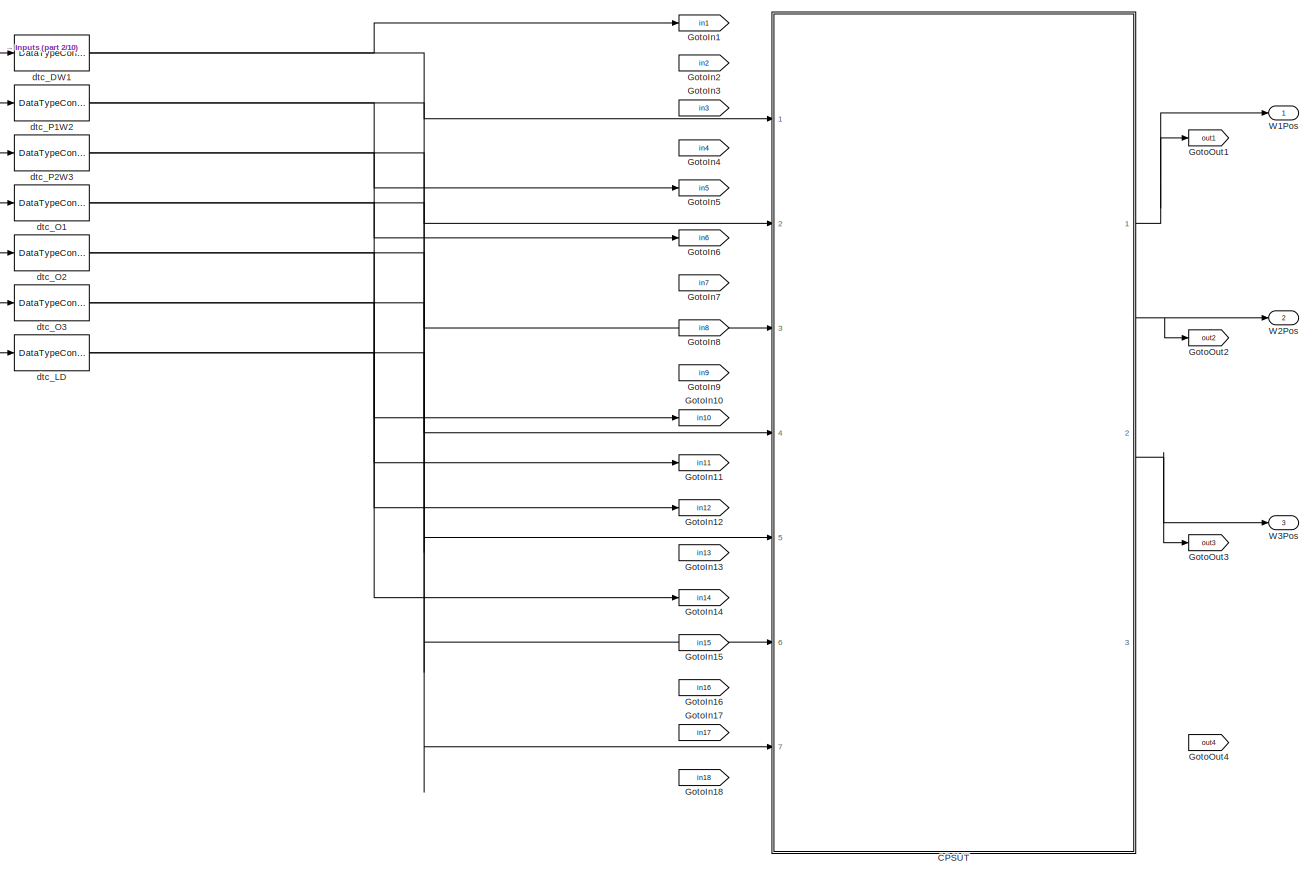
[diagram: root canvas - part 1/10, top left region]
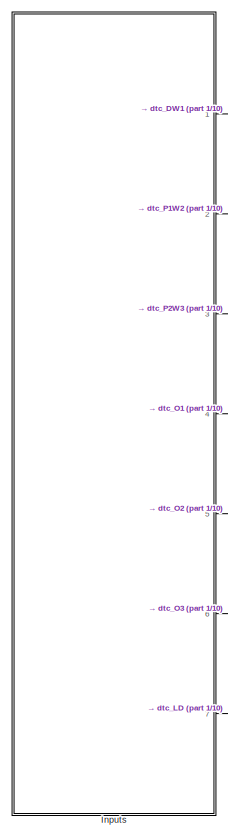
[diagram: root canvas - part 2/10, top left region]
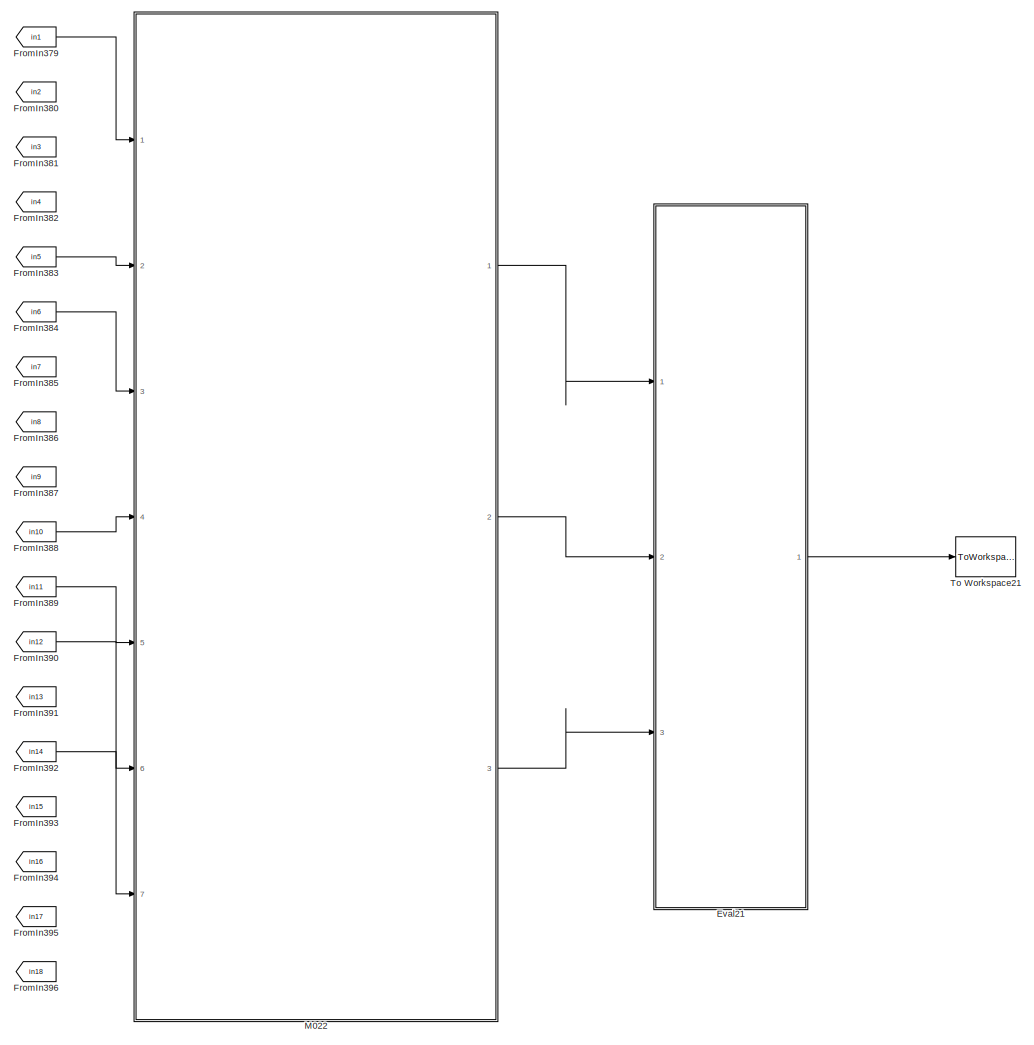
[diagram: root canvas - part 3/10, top center region]
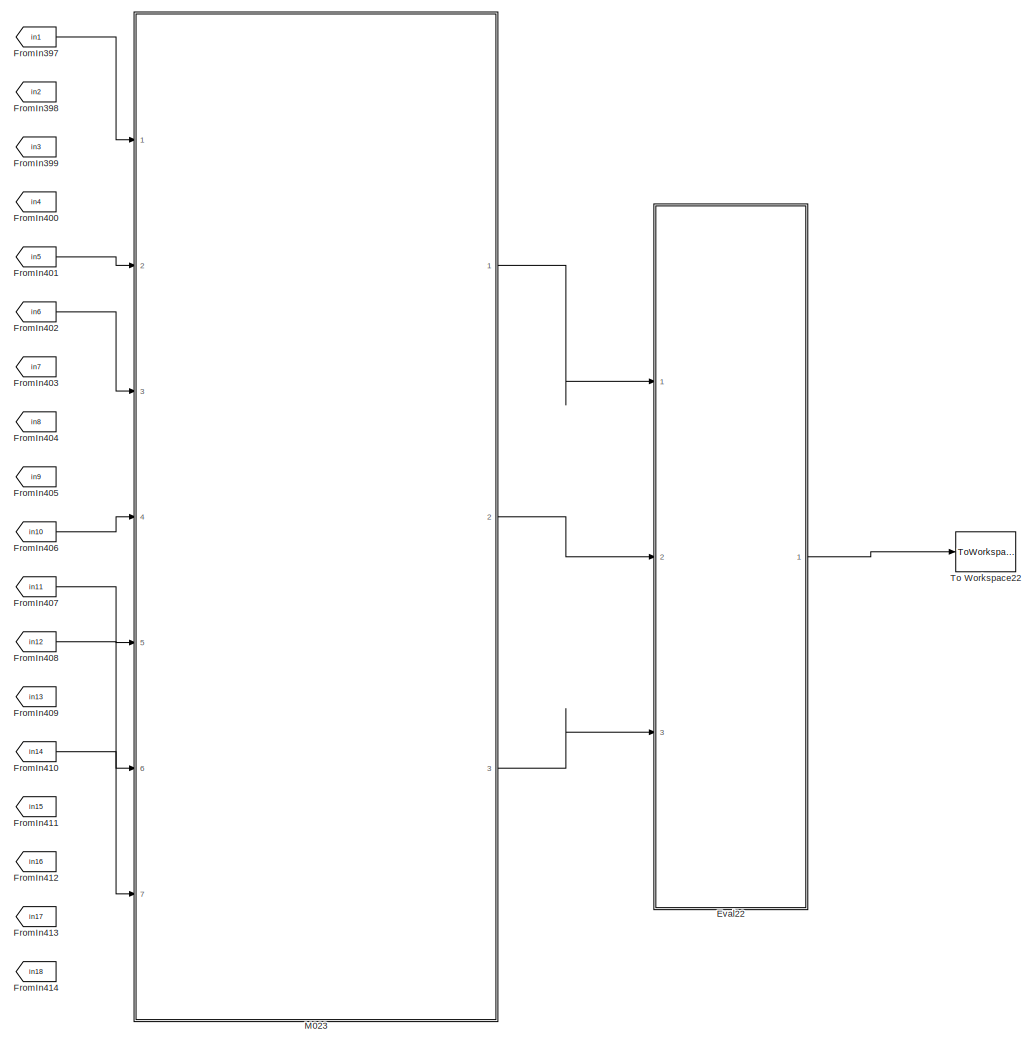
[diagram: root canvas - part 4/10, top center region]
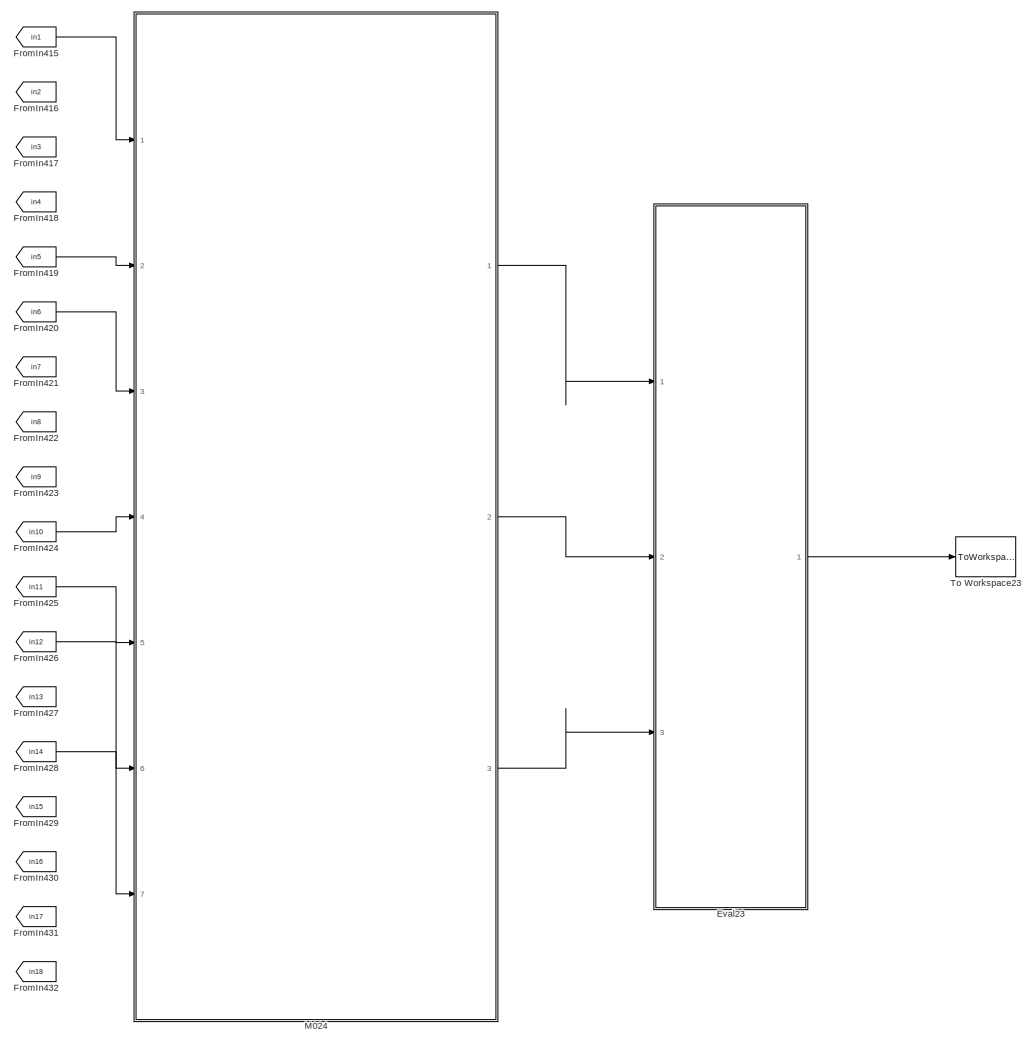
[diagram: root canvas - part 5/10, top center region]
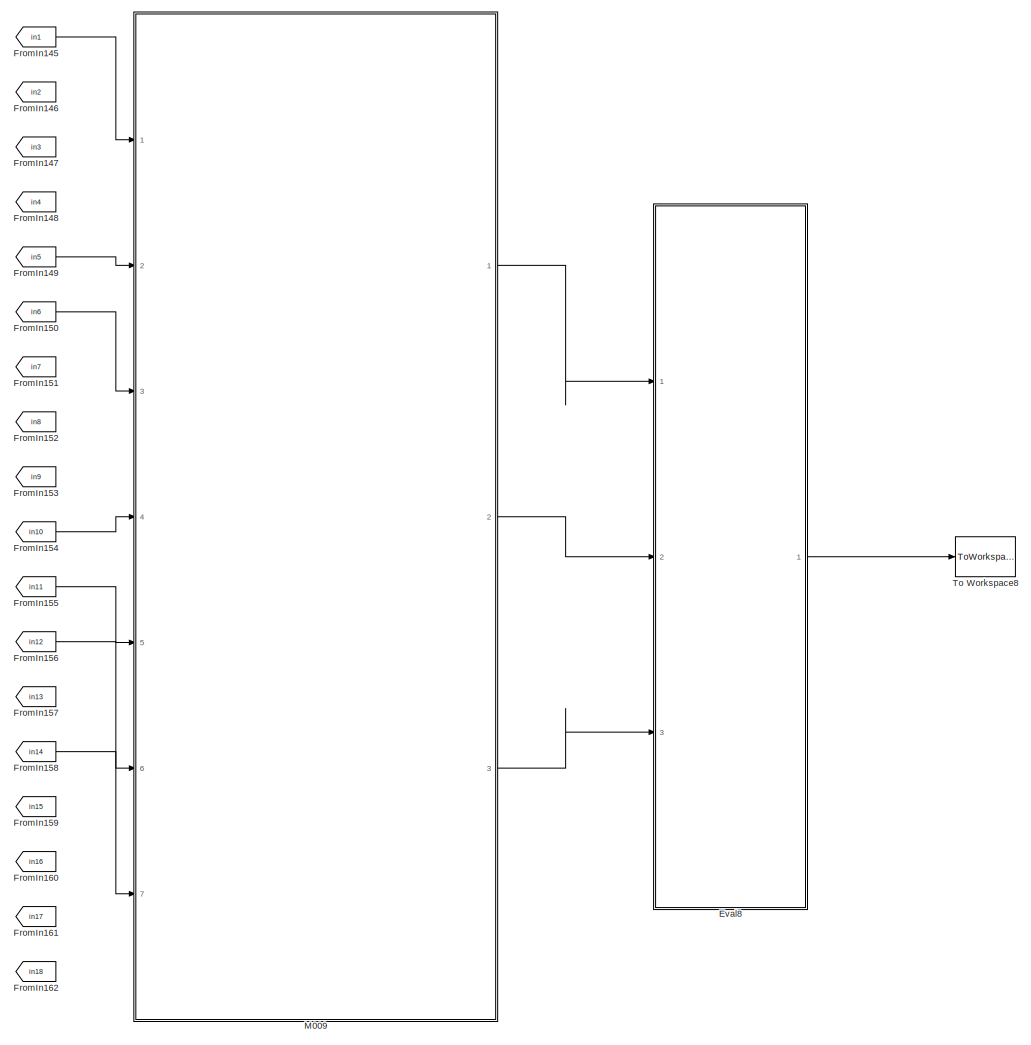
[diagram: root canvas - part 6/10, central region]
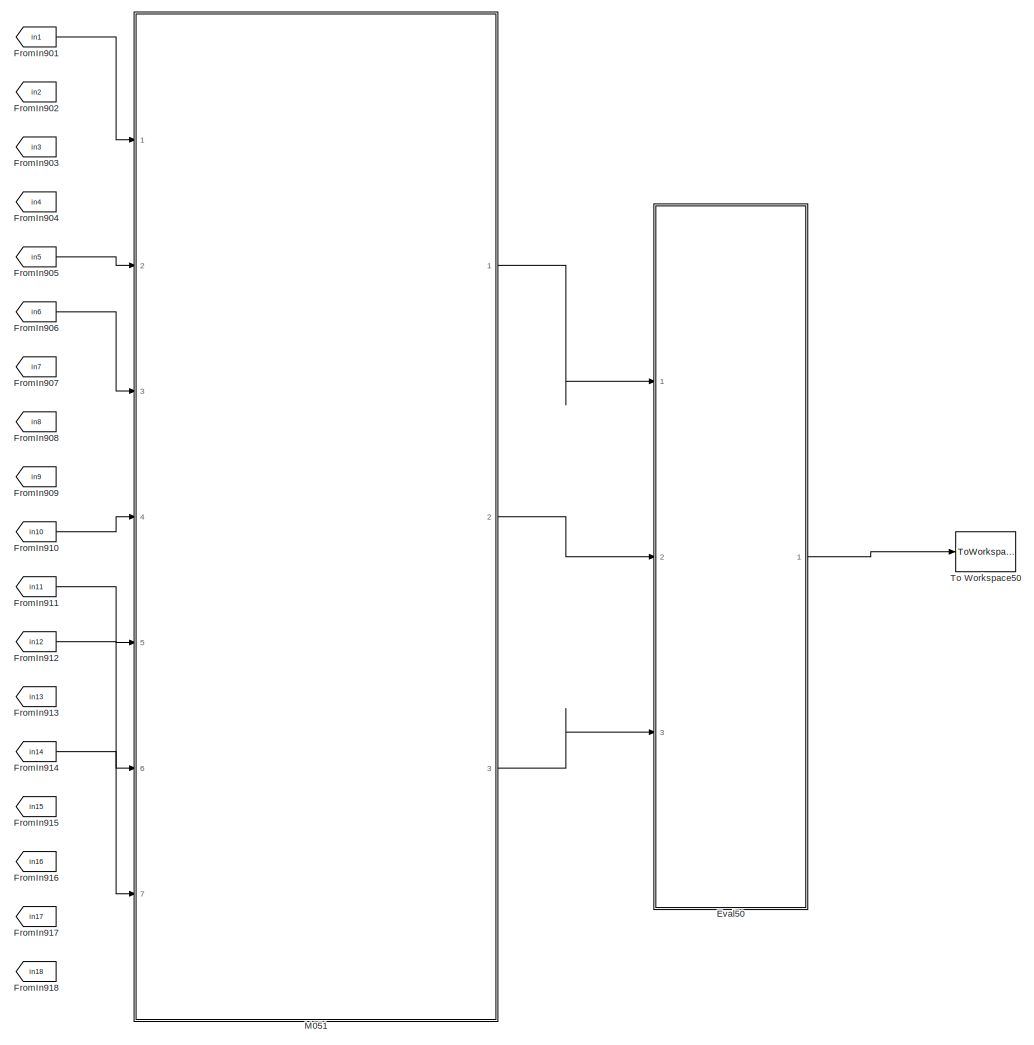
[diagram: root canvas - part 7/10, middle right region]
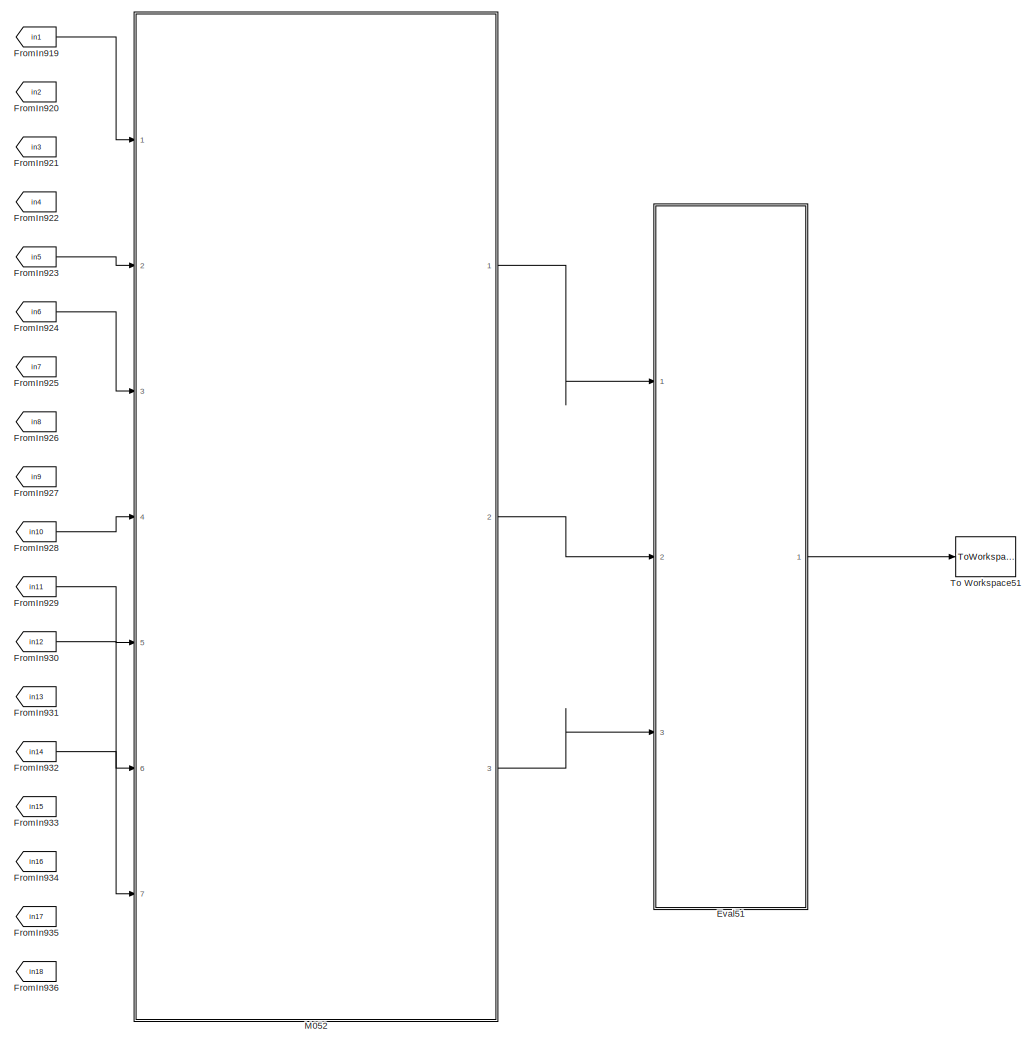
[diagram: root canvas - part 8/10, middle right region]
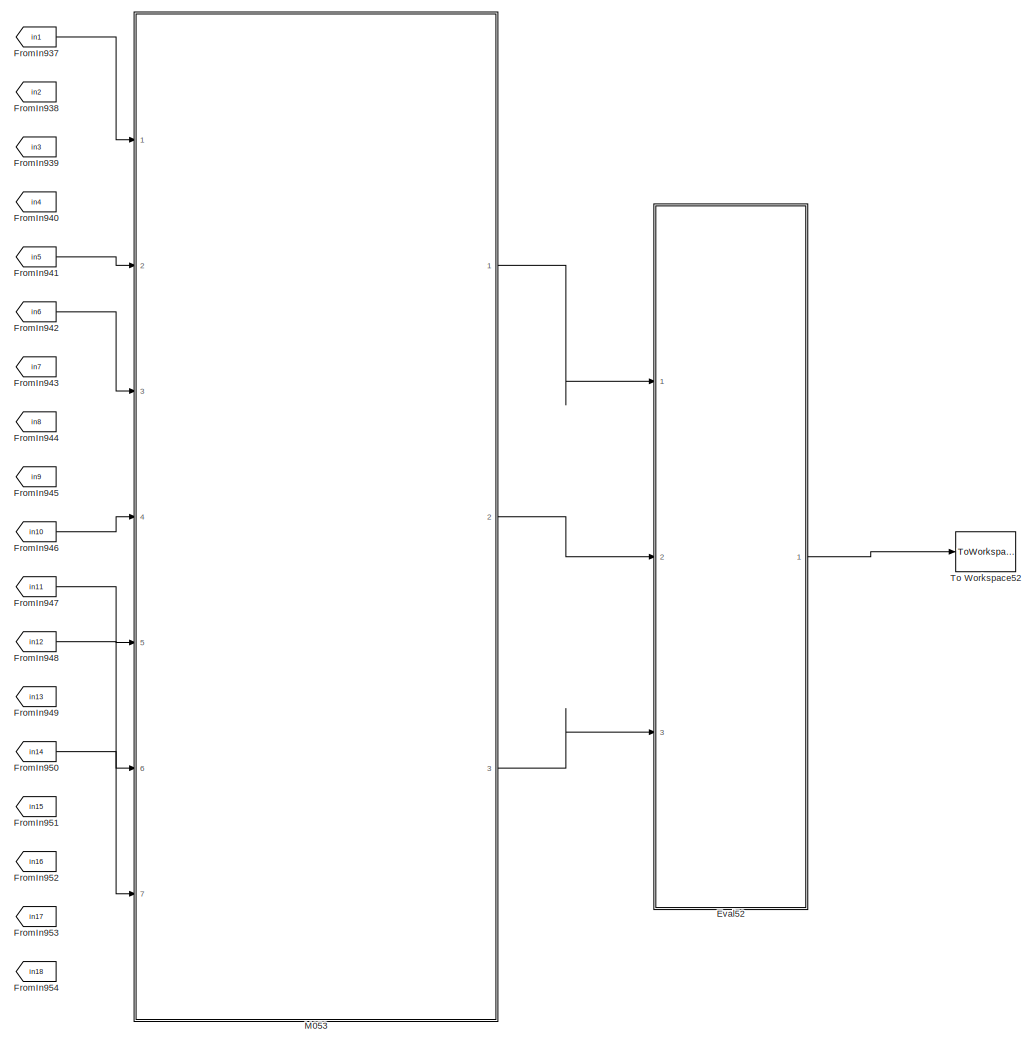
[diagram: root canvas - part 9/10, bottom right region]
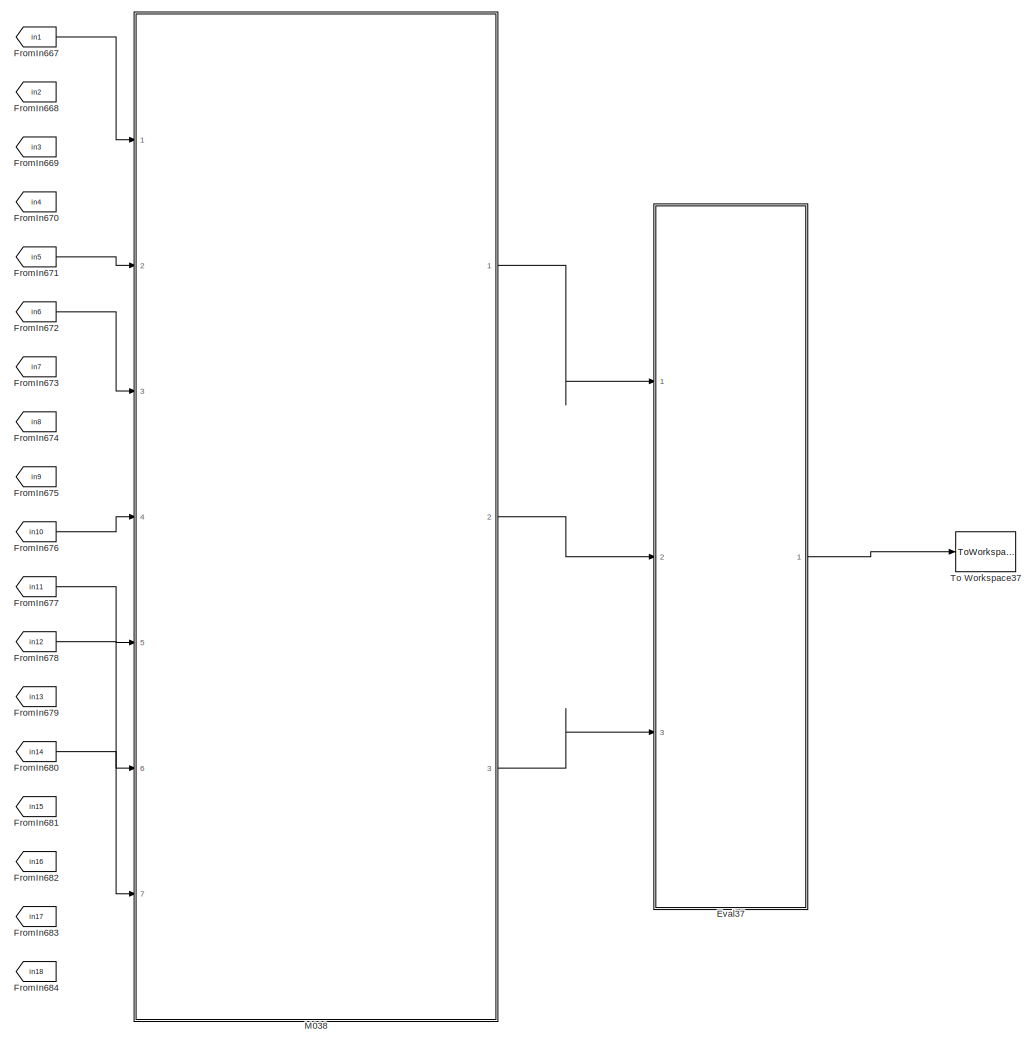
[diagram: root canvas - part 10/10, bottom center region]
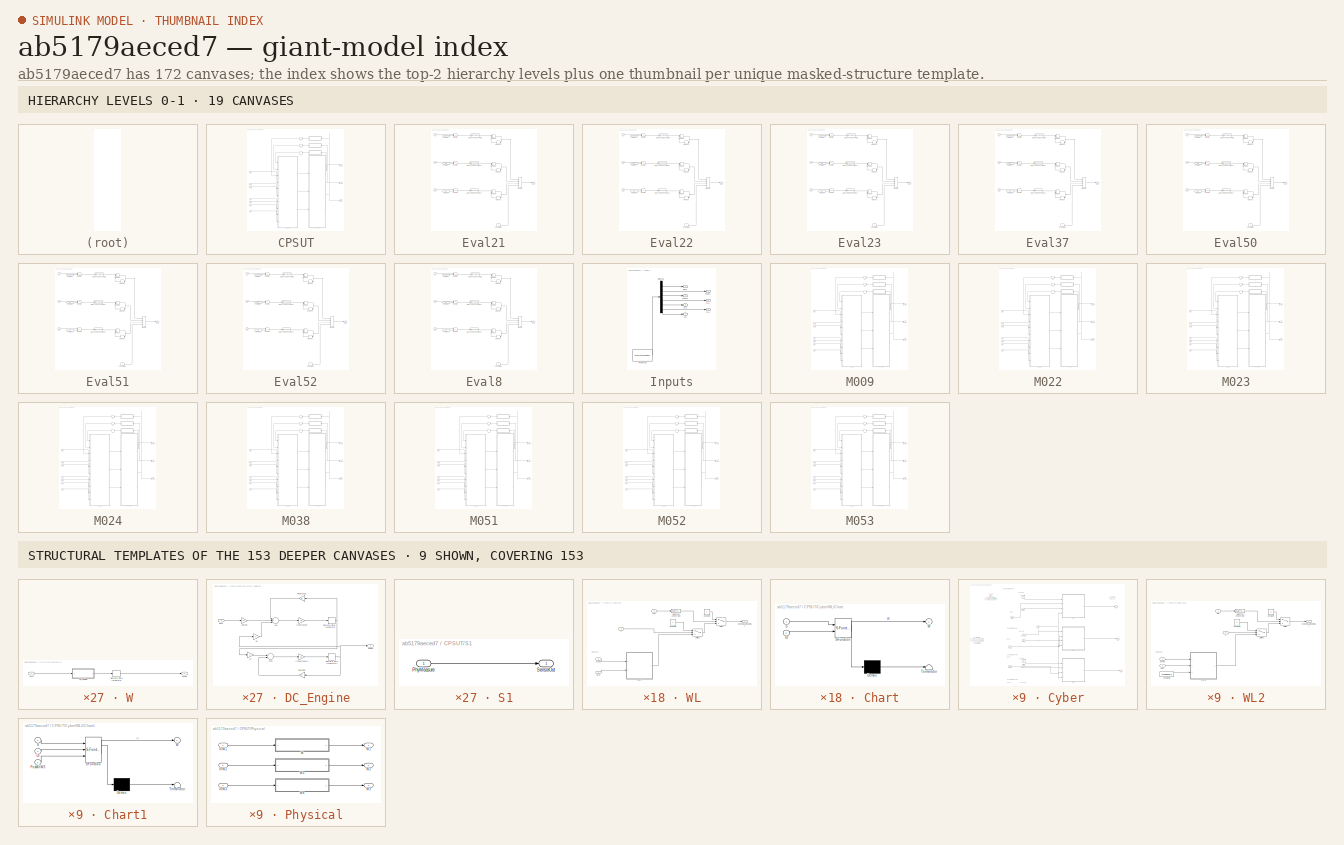
[diagram: thumbnail index - top-2 hierarchy levels (19 canvases) + 9 structural-template representatives of the remaining 153 canvases]
MODEL slx_ab5179aeced7
KIND model
CONFIG AbsTol = auto
CONFIG EnableMultiTasking = on
CONFIG FixedStep = auto
CONFIG MaxStep = auto
CONFIG MinStep = auto
CONFIG RelTol = 1e-3
CONFIG SampleTimeConstraint = Unconstrained
CONFIG Solver = ode3
CONFIG SolverName = ode3
CONFIG StartTime = 0.0
CONFIG StopTime = 10.0
BLOCK [SubSystem] CPSUT
  Ports = [7, 3]
  RequestExecContextInheritance = off
BLOCK [SubSystem] CPSUT/Cyber
  Ports = [10, 3]
  RequestExecContextInheritance = off
BLOCK [Inport] CPSUT/Cyber/DW1
  IconDisplay = Port number
  Port = 4
BLOCK [Inport] CPSUT/Cyber/LD
  IconDisplay = Port number
  Port = 10
BLOCK [Inport] CPSUT/Cyber/OW1
  IconDisplay = Port number
  Port = 7
BLOCK [Inport] CPSUT/Cyber/OW2
  IconDisplay = Port number
  Port = 8
BLOCK [Inport] CPSUT/Cyber/OW3
  IconDisplay = Port number
  Port = 9
BLOCK [Inport] CPSUT/Cyber/P1W2
  IconDisplay = Port number
  Port = 5
BLOCK [Inport] CPSUT/Cyber/P2W3
  IconDisplay = Port number
  Port = 6
BLOCK [Inport] CPSUT/Cyber/PosW1
  IconDisplay = Port number
BLOCK [Inport] CPSUT/Cyber/PosW2
  IconDisplay = Port number
  Port = 2
BLOCK [Inport] CPSUT/Cyber/PosW3
  IconDisplay = Port number
  Port = 3
BLOCK [Outport] CPSUT/Cyber/W1
  IconDisplay = Port number
BLOCK [Outport] CPSUT/Cyber/W2
  IconDisplay = Port number
  Port = 2
BLOCK [Outport] CPSUT/Cyber/W3
  IconDisplay = Port number
  Port = 3
BLOCK [SubSystem] CPSUT/Cyber/WL
  Ports = [4, 1]
  RequestExecContextInheritance = off
BLOCK [SubSystem] CPSUT/Cyber/WL/Chart
  ErrorFcn = Stateflow.Translate.translate
  PermitHierarchicalResolution = ExplicitOnly
  Ports = [2, 1]
  RequestExecContextInheritance = off
  SFBlockType = Chart
  TreatAsAtomicUnit = on
BLOCK [Demux] CPSUT/Cyber/WL/Chart/ Demux 
  Outputs = 1
  Ports = [1, 1]
BLOCK [S-Function] CPSUT/Cyber/WL/Chart/ SFunction 
  EnableBusSupport = off
  FunctionName = sf_sfun
  PortCounts = [2 2]
  Ports = [2, 2]
  SFcnIsStateOwnerBlock = off
  SFunctionDeploymentMode = off
  Tag = Stateflow S-Function c00022M_harness 1
BLOCK [Terminator] CPSUT/Cyber/WL/Chart/ Terminator 
BLOCK [Inport] CPSUT/Cyber/WL/Chart/S
  IconDisplay = Port number
BLOCK [Inport] CPSUT/Cyber/WL/Chart/UI
  IconDisplay = Port number
  Port = 2
BLOCK [Outport] CPSUT/Cyber/WL/Chart/W
  IconDisplay = Port number
BLOCK [Constant] CPSUT/Cyber/WL/Constant
  Value = -1
BLOCK [Constant] CPSUT/Cyber/WL/Constant1
  Value = 0
BLOCK [DataTypeConversion] CPSUT/Cyber/WL/Data Type Conversion
  RndMeth = Floor
  SaturateOnIntegerOverflow = off
BLOCK [Inport] CPSUT/Cyber/WL/L
  IconDisplay = Port number
  Port = 4
BLOCK [Inport] CPSUT/Cyber/WL/OW
  IconDisplay = Port number
  Port = 3
BLOCK [Switch] CPSUT/Cyber/WL/Switch
  Criteria = u2 ~= 0
  InputSameDT = off
  SaturateOnIntegerOverflow = off
  Threshold = 1
  ZeroCross = off
BLOCK [Switch] CPSUT/Cyber/WL/Switch1
  Criteria = u2 ~= 0
  InputSameDT = off
  SaturateOnIntegerOverflow = off
BLOCK [Inport] CPSUT/Cyber/WL/User
  IconDisplay = Port number
  Port = 2
BLOCK [Inport] CPSUT/Cyber/WL/WPos
  IconDisplay = Port number
BLOCK [Outport] CPSUT/Cyber/WL/WindowLogicOutput
  IconDisplay = Port number
BLOCK [SubSystem] CPSUT/Cyber/WL1
  Ports = [4, 1]
  RequestExecContextInheritance = off
BLOCK [SubSystem] CPSUT/Cyber/WL1/Chart1
  ErrorFcn = Stateflow.Translate.translate
  PermitHierarchicalResolution = ExplicitOnly
  Ports = [2, 1]
  RequestExecContextInheritance = off
  SFBlockType = Chart
  TreatAsAtomicUnit = on
BLOCK [Demux] CPSUT/Cyber/WL1/Chart1/ Demux 
  Outputs = 1
  Ports = [1, 1]
BLOCK [S-Function] CPSUT/Cyber/WL1/Chart1/ SFunction 
  EnableBusSupport = off
  FunctionName = sf_sfun
  PortCounts = [2 2]
  Ports = [2, 2]
  SFcnIsStateOwnerBlock = off
  SFunctionDeploymentMode = off
  Tag = Stateflow S-Function c00022M_harness 3
BLOCK [Terminator] CPSUT/Cyber/WL1/Chart1/ Terminator 
BLOCK [Inport] CPSUT/Cyber/WL1/Chart1/S
  IconDisplay = Port number
BLOCK [Inport] CPSUT/Cyber/WL1/Chart1/UI
  IconDisplay = Port number
  Port = 2
BLOCK [Outport] CPSUT/Cyber/WL1/Chart1/W
  IconDisplay = Port number
BLOCK [Constant] CPSUT/Cyber/WL1/Constant
  Value = -1
BLOCK [Constant] CPSUT/Cyber/WL1/Constant1
  Value = 0
BLOCK [DataTypeConversion] CPSUT/Cyber/WL1/Data Type Conversion
  RndMeth = Floor
  SaturateOnIntegerOverflow = off
BLOCK [Inport] CPSUT/Cyber/WL1/L
  IconDisplay = Port number
  Port = 4
BLOCK [Inport] CPSUT/Cyber/WL1/OW
  IconDisplay = Port number
  Port = 3
BLOCK [Switch] CPSUT/Cyber/WL1/Switch
  Criteria = u2 ~= 0
  InputSameDT = off
  SaturateOnIntegerOverflow = off
  Threshold = 1
  ZeroCross = off
BLOCK [Switch] CPSUT/Cyber/WL1/Switch1
  Criteria = u2 ~= 0
  InputSameDT = off
  SaturateOnIntegerOverflow = off
BLOCK [Inport] CPSUT/Cyber/WL1/User
  IconDisplay = Port number
  Port = 2
BLOCK [Inport] CPSUT/Cyber/WL1/WPos
  IconDisplay = Port number
BLOCK [Outport] CPSUT/Cyber/WL1/WindowLogicOutput
  IconDisplay = Port number
BLOCK [SubSystem] CPSUT/Cyber/WL2
  Ports = [4, 1]
  RequestExecContextInheritance = off
BLOCK [SubSystem] CPSUT/Cyber/WL2/Chart1
  ErrorFcn = Stateflow.Translate.translate
  PermitHierarchicalResolution = ExplicitOnly
  Ports = [3, 1]
  RequestExecContextInheritance = off
  SFBlockType = Chart
  TreatAsAtomicUnit = on
BLOCK [Demux] CPSUT/Cyber/WL2/Chart1/ Demux 
  Outputs = 1
  Ports = [1, 1]
BLOCK [S-Function] CPSUT/Cyber/WL2/Chart1/ SFunction 
  EnableBusSupport = off
  FunctionName = sf_sfun
  PortCounts = [3 2]
  Ports = [3, 2]
  SFcnIsStateOwnerBlock = off
  SFunctionDeploymentMode = off
  Tag = Stateflow S-Function c00022M_harness 2
BLOCK [Terminator] CPSUT/Cyber/WL2/Chart1/ Terminator 
BLOCK [Inport] CPSUT/Cyber/WL2/Chart1/PosMinW3
  IconDisplay = Port number
  Port = 3
BLOCK [Inport] CPSUT/Cyber/WL2/Chart1/S
  IconDisplay = Port number
BLOCK [Inport] CPSUT/Cyber/WL2/Chart1/UI
  IconDisplay = Port number
  Port = 2
BLOCK [Outport] CPSUT/Cyber/WL2/Chart1/W
  IconDisplay = Port number
BLOCK [Constant] CPSUT/Cyber/WL2/Constant
  Value = -1
BLOCK [Constant] CPSUT/Cyber/WL2/Constant1
  Value = 0
BLOCK [Constant] CPSUT/Cyber/WL2/Constant2
  Value = PosMinimaW3
BLOCK [DataTypeConversion] CPSUT/Cyber/WL2/Data Type Conversion
  RndMeth = Floor
  SaturateOnIntegerOverflow = off
BLOCK [Inport] CPSUT/Cyber/WL2/L
  IconDisplay = Port number
  Port = 4
BLOCK [Inport] CPSUT/Cyber/WL2/OW
  IconDisplay = Port number
  Port = 3
BLOCK [Switch] CPSUT/Cyber/WL2/Switch
  Criteria = u2 ~= 0
  InputSameDT = off
  SaturateOnIntegerOverflow = off
  Threshold = 1
  ZeroCross = off
BLOCK [Switch] CPSUT/Cyber/WL2/Switch1
  Criteria = u2 ~= 0
  InputSameDT = off
  SaturateOnIntegerOverflow = off
BLOCK [Inport] CPSUT/Cyber/WL2/User
  IconDisplay = Port number
  Port = 2
BLOCK [Inport] CPSUT/Cyber/WL2/WPos
  IconDisplay = Port number
BLOCK [Outport] CPSUT/Cyber/WL2/WindowLogicOutput
  IconDisplay = Port number
BLOCK [Inport] CPSUT/DW1
  IconDisplay = Port number
  OutDataTypeStr = int8
  OutMax = 4
  OutMin = 0
BLOCK [Inport] CPSUT/LD
  IconDisplay = Port number
  OutDataTypeStr = boolean
  Port = 7
BLOCK [Memory] CPSUT/M
BLOCK [Memory] CPSUT/M1
BLOCK [Memory] CPSUT/M2
BLOCK [Inport] CPSUT/O1
  IconDisplay = Port number
  OutDataTypeStr = boolean
  Port = 4
BLOCK [Inport] CPSUT/O2
  IconDisplay = Port number
  OutDataTypeStr = boolean
  Port = 5
BLOCK [Inport] CPSUT/O3
  IconDisplay = Port number
  OutDataTypeStr = boolean
  Port = 6
BLOCK [Inport] CPSUT/P1W2
  IconDisplay = Port number
  OutDataTypeStr = int8
  OutMax = 4
  OutMin = 0
  Port = 2
BLOCK [Inport] CPSUT/P2W3
  IconDisplay = Port number
  OutDataTypeStr = int8
  OutMax = 4
  OutMin = 0
  Port = 3
BLOCK [SubSystem] CPSUT/Physical
  Ports = [3, 3]
  RequestExecContextInheritance = off
BLOCK [Inport] CPSUT/Physical/InW1
  IconDisplay = Port number
BLOCK [Inport] CPSUT/Physical/InW2
  IconDisplay = Port number
  Port = 2
BLOCK [Inport] CPSUT/Physical/InW3
  IconDisplay = Port number
  Port = 3
BLOCK [SubSystem] CPSUT/Physical/W
  Ports = [1, 1]
  RequestExecContextInheritance = off
BLOCK [SubSystem] CPSUT/Physical/W/DC_Engine
  Ports = [1, 1]
  RequestExecContextInheritance = off
BLOCK [Gain] CPSUT/Physical/W/DC_Engine/(Inductance)
  Gain = 1/L
  OutDataTypeStr = Inherit: Inherit via internal rule
  ParamDataTypeStr = Inherit: Inherit via internal rule
  SaturateOnIntegerOverflow = off
BLOCK [Gain] CPSUT/Physical/W/DC_Engine/(Inductance)1
  Gain = 1/J
  OutDataTypeStr = Inherit: Inherit via internal rule
  ParamDataTypeStr = Inherit: Inherit via internal rule
  SaturateOnIntegerOverflow = off
BLOCK [Sum] CPSUT/Physical/W/DC_Engine/Add
  InputSameDT = off
  Inputs = -+-
  OutDataTypeStr = Inherit: Inherit via internal rule
  Ports = [3, 1]
  SaturateOnIntegerOverflow = off
BLOCK [Sum] CPSUT/Physical/W/DC_Engine/Add1
  InputSameDT = off
  Inputs = +-
  OutDataTypeStr = Inherit: Inherit via internal rule
  Ports = [2, 1]
  SaturateOnIntegerOverflow = off
BLOCK [Gain] CPSUT/Physical/W/DC_Engine/Damping
  Gain = b
  OutDataTypeStr = Inherit: Inherit via internal rule
  ParamDataTypeStr = Inherit: Inherit via internal rule
  SaturateOnIntegerOverflow = off
BLOCK [DiscreteIntegrator] CPSUT/Physical/W/DC_Engine/Discrete-Time Integrator
  ICPrevOutput = DiscIntNeverNeededParam
  ICPrevScaledInput = DiscIntNeverNeededParam
  Ports = [1, 1]
  SampleTime = -1
BLOCK [DiscreteIntegrator] CPSUT/Physical/W/DC_Engine/Discrete-Time Integrator1
  ICPrevOutput = DiscIntNeverNeededParam
  ICPrevScaledInput = DiscIntNeverNeededParam
  Ports = [1, 1]
  SampleTime = -1
BLOCK [Gain] CPSUT/Physical/W/DC_Engine/Ke
  Gain = K
  OutDataTypeStr = Inherit: Inherit via internal rule
  ParamDataTypeStr = Inherit: Inherit via internal rule
  SaturateOnIntegerOverflow = off
BLOCK [Gain] CPSUT/Physical/W/DC_Engine/Kt
  Gain = K
  OutDataTypeStr = Inherit: Inherit via internal rule
  ParamDataTypeStr = Inherit: Inherit via internal rule
  SaturateOnIntegerOverflow = off
BLOCK [Gain] CPSUT/Physical/W/DC_Engine/Resistance
  Gain = R
  OutDataTypeStr = Inherit: Inherit via internal rule
  ParamDataTypeStr = Inherit: Inherit via internal rule
  SaturateOnIntegerOverflow = off
BLOCK [Outport] CPSUT/Physical/W/DC_Engine/Speed
  IconDisplay = Port number
BLOCK [Gain] CPSUT/Physical/W/DC_Engine/Voltage
  Gain = 10
  OutDataTypeStr = Inherit: Inherit via internal rule
  ParamDataTypeStr = Inherit: Inherit via internal rule
  SaturateOnIntegerOverflow = off
BLOCK [Inport] CPSUT/Physical/W/DC_Engine/input
  IconDisplay = Port number
BLOCK [DiscreteIntegrator] CPSUT/Physical/W/Discrete-Time Integrator
  ICPrevOutput = DiscIntNeverNeededParam
  ICPrevScaledInput = DiscIntNeverNeededParam
  InitialCondition = 5
  LimitOutput = on
  LowerSaturationLimit = 0
  Ports = [1, 1]
  SampleTime = -1
  UpperSaturationLimit = 5
BLOCK [Inport] CPSUT/Physical/W/WIn
  IconDisplay = Port number
BLOCK [Outport] CPSUT/Physical/W/WPos
  IconDisplay = Port number
BLOCK [Outport] CPSUT/Physical/W1
  IconDisplay = Port number
BLOCK [Outport] CPSUT/Physical/W2
  IconDisplay = Port number
  Port = 2
BLOCK [Outport] CPSUT/Physical/W3
  IconDisplay = Port number
  Port = 3
BLOCK [SubSystem] CPSUT/Physical/W5
  Ports = [1, 1]
  RequestExecContextInheritance = off
BLOCK [SubSystem] CPSUT/Physical/W5/DC_Engine
  Ports = [1, 1]
  RequestExecContextInheritance = off
BLOCK [Gain] CPSUT/Physical/W5/DC_Engine/(Inductance)
  Gain = 1/L
  OutDataTypeStr = Inherit: Inherit via internal rule
  ParamDataTypeStr = Inherit: Inherit via internal rule
  SaturateOnIntegerOverflow = off
BLOCK [Gain] CPSUT/Physical/W5/DC_Engine/(Inductance)1
  Gain = 1/J
  OutDataTypeStr = Inherit: Inherit via internal rule
  ParamDataTypeStr = Inherit: Inherit via internal rule
  SaturateOnIntegerOverflow = off
BLOCK [Sum] CPSUT/Physical/W5/DC_Engine/Add
  InputSameDT = off
  Inputs = -+-
  OutDataTypeStr = Inherit: Inherit via internal rule
  Ports = [3, 1]
  SaturateOnIntegerOverflow = off
BLOCK [Sum] CPSUT/Physical/W5/DC_Engine/Add1
  InputSameDT = off
  Inputs = +-
  OutDataTypeStr = Inherit: Inherit via internal rule
  Ports = [2, 1]
  SaturateOnIntegerOverflow = off
BLOCK [Gain] CPSUT/Physical/W5/DC_Engine/Damping
  Gain = b
  OutDataTypeStr = Inherit: Inherit via internal rule
  ParamDataTypeStr = Inherit: Inherit via internal rule
  SaturateOnIntegerOverflow = off
BLOCK [DiscreteIntegrator] CPSUT/Physical/W5/DC_Engine/Discrete-Time Integrator
  ICPrevOutput = DiscIntNeverNeededParam
  ICPrevScaledInput = DiscIntNeverNeededParam
  Ports = [1, 1]
  SampleTime = -1
BLOCK [DiscreteIntegrator] CPSUT/Physical/W5/DC_Engine/Discrete-Time Integrator1
  ICPrevOutput = DiscIntNeverNeededParam
  ICPrevScaledInput = DiscIntNeverNeededParam
  Ports = [1, 1]
  SampleTime = -1
BLOCK [Gain] CPSUT/Physical/W5/DC_Engine/Ke
  Gain = K
  OutDataTypeStr = Inherit: Inherit via internal rule
  ParamDataTypeStr = Inherit: Inherit via internal rule
  SaturateOnIntegerOverflow = off
BLOCK [Gain] CPSUT/Physical/W5/DC_Engine/Kt
  Gain = K
  OutDataTypeStr = Inherit: Inherit via internal rule
  ParamDataTypeStr = Inherit: Inherit via internal rule
  SaturateOnIntegerOverflow = off
BLOCK [Gain] CPSUT/Physical/W5/DC_Engine/Resistance
  Gain = R
  OutDataTypeStr = Inherit: Inherit via internal rule
  ParamDataTypeStr = Inherit: Inherit via internal rule
  SaturateOnIntegerOverflow = off
BLOCK [Outport] CPSUT/Physical/W5/DC_Engine/Speed
  IconDisplay = Port number
BLOCK [Gain] CPSUT/Physical/W5/DC_Engine/Voltage
  Gain = 10
  OutDataTypeStr = Inherit: Inherit via internal rule
  ParamDataTypeStr = Inherit: Inherit via internal rule
  SaturateOnIntegerOverflow = off
BLOCK [Inport] CPSUT/Physical/W5/DC_Engine/input
  IconDisplay = Port number
BLOCK [DiscreteIntegrator] CPSUT/Physical/W5/Discrete-Time Integrator
  ICPrevOutput = DiscIntNeverNeededParam
  ICPrevScaledInput = DiscIntNeverNeededParam
  InitialCondition = 5
  LimitOutput = on
  LowerSaturationLimit = 0
  Ports = [1, 1]
  SampleTime = -1
  UpperSaturationLimit = 5
BLOCK [Inport] CPSUT/Physical/W5/WIn
  IconDisplay = Port number
BLOCK [Outport] CPSUT/Physical/W5/WPos
  IconDisplay = Port number
BLOCK [SubSystem] CPSUT/Physical/W6
  Ports = [1, 1]
  RequestExecContextInheritance = off
BLOCK [SubSystem] CPSUT/Physical/W6/DC_Engine
  Ports = [1, 1]
  RequestExecContextInheritance = off
BLOCK [Gain] CPSUT/Physical/W6/DC_Engine/(Inductance)
  Gain = 1/L
  OutDataTypeStr = Inherit: Inherit via internal rule
  ParamDataTypeStr = Inherit: Inherit via internal rule
  SaturateOnIntegerOverflow = off
BLOCK [Gain] CPSUT/Physical/W6/DC_Engine/(Inductance)1
  Gain = 1/J
  OutDataTypeStr = Inherit: Inherit via internal rule
  ParamDataTypeStr = Inherit: Inherit via internal rule
  SaturateOnIntegerOverflow = off
BLOCK [Sum] CPSUT/Physical/W6/DC_Engine/Add
  InputSameDT = off
  Inputs = -+-
  OutDataTypeStr = Inherit: Inherit via internal rule
  Ports = [3, 1]
  SaturateOnIntegerOverflow = off
BLOCK [Sum] CPSUT/Physical/W6/DC_Engine/Add1
  InputSameDT = off
  Inputs = +-
  OutDataTypeStr = Inherit: Inherit via internal rule
  Ports = [2, 1]
  SaturateOnIntegerOverflow = off
BLOCK [Gain] CPSUT/Physical/W6/DC_Engine/Damping
  Gain = b
  OutDataTypeStr = Inherit: Inherit via internal rule
  ParamDataTypeStr = Inherit: Inherit via internal rule
  SaturateOnIntegerOverflow = off
BLOCK [DiscreteIntegrator] CPSUT/Physical/W6/DC_Engine/Discrete-Time Integrator
  ICPrevOutput = DiscIntNeverNeededParam
  ICPrevScaledInput = DiscIntNeverNeededParam
  Ports = [1, 1]
  SampleTime = -1
BLOCK [DiscreteIntegrator] CPSUT/Physical/W6/DC_Engine/Discrete-Time Integrator1
  ICPrevOutput = DiscIntNeverNeededParam
  ICPrevScaledInput = DiscIntNeverNeededParam
  Ports = [1, 1]
  SampleTime = -1
BLOCK [Gain] CPSUT/Physical/W6/DC_Engine/Ke
  Gain = K
  OutDataTypeStr = Inherit: Inherit via internal rule
  ParamDataTypeStr = Inherit: Inherit via internal rule
  SaturateOnIntegerOverflow = off
BLOCK [Gain] CPSUT/Physical/W6/DC_Engine/Kt
  Gain = K
  OutDataTypeStr = Inherit: Inherit via internal rule
  ParamDataTypeStr = Inherit: Inherit via internal rule
  SaturateOnIntegerOverflow = off
BLOCK [Gain] CPSUT/Physical/W6/DC_Engine/Resistance
  Gain = R
  OutDataTypeStr = Inherit: Inherit via internal rule
  ParamDataTypeStr = Inherit: Inherit via internal rule
  SaturateOnIntegerOverflow = off
BLOCK [Outport] CPSUT/Physical/W6/DC_Engine/Speed
  IconDisplay = Port number
BLOCK [Gain] CPSUT/Physical/W6/DC_Engine/Voltage
  Gain = 10
  OutDataTypeStr = Inherit: Inherit via internal rule
  ParamDataTypeStr = Inherit: Inherit via internal rule
  SaturateOnIntegerOverflow = off
BLOCK [Inport] CPSUT/Physical/W6/DC_Engine/input
  IconDisplay = Port number
BLOCK [DiscreteIntegrator] CPSUT/Physical/W6/Discrete-Time Integrator
  ICPrevOutput = DiscIntNeverNeededParam
  ICPrevScaledInput = DiscIntNeverNeededParam
  InitialCondition = 5
  LimitOutput = on
  LowerSaturationLimit = PosMinimaW3
  Ports = [1, 1]
  SampleTime = -1
  UpperSaturationLimit = 5
BLOCK [Inport] CPSUT/Physical/W6/WIn
  IconDisplay = Port number
BLOCK [Outport] CPSUT/Physical/W6/WPos
  IconDisplay = Port number
BLOCK [SubSystem] CPSUT/S1
  Ports = [1, 1]
  RequestExecContextInheritance = off
BLOCK [Inport] CPSUT/S1/PhyMeasure
  IconDisplay = Port number
BLOCK [Outport] CPSUT/S1/SensorOut
  IconDisplay = Port number
BLOCK [SubSystem] CPSUT/S2
  Ports = [1, 1]
  RequestExecContextInheritance = off
BLOCK [Inport] CPSUT/S2/PhyMeasure
  IconDisplay = Port number
BLOCK [Outport] CPSUT/S2/SensorOut
  IconDisplay = Port number
BLOCK [SubSystem] CPSUT/S3
  Ports = [1, 1]
  RequestExecContextInheritance = off
BLOCK [Inport] CPSUT/S3/PhyMeasure
  IconDisplay = Port number
BLOCK [Outport] CPSUT/S3/SensorOut
  IconDisplay = Port number
BLOCK [Outport] CPSUT/W1Pos
  IconDisplay = Port number
BLOCK [Outport] CPSUT/W2Pos
  IconDisplay = Port number
  Port = 2
BLOCK [Outport] CPSUT/W3Pos
  IconDisplay = Port number
  Port = 3
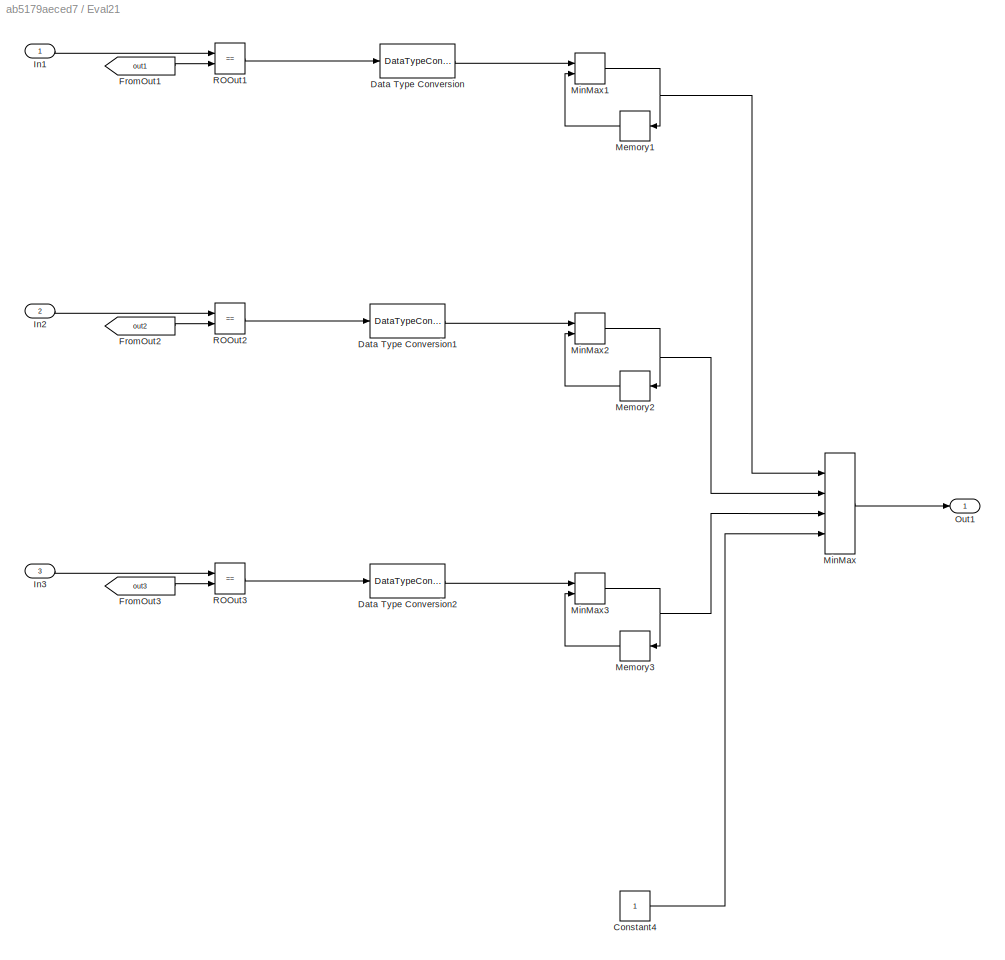
BLOCK [SubSystem] Eval21
  Ports = [3, 1]
  RequestExecContextInheritance = off
BLOCK [Constant] Eval21/Constant4
BLOCK [DataTypeConversion] Eval21/Data Type Conversion
  RndMeth = Floor
  SaturateOnIntegerOverflow = off
BLOCK [DataTypeConversion] Eval21/Data Type Conversion1
  RndMeth = Floor
  SaturateOnIntegerOverflow = off
BLOCK [DataTypeConversion] Eval21/Data Type Conversion2
  RndMeth = Floor
  SaturateOnIntegerOverflow = off
BLOCK [From] Eval21/FromOut1
  GotoTag = out1
BLOCK [From] Eval21/FromOut2
  GotoTag = out2
BLOCK [From] Eval21/FromOut3
  GotoTag = out3
BLOCK [Inport] Eval21/In1
  IconDisplay = Port number
BLOCK [Inport] Eval21/In2
  IconDisplay = Port number
  Port = 2
BLOCK [Inport] Eval21/In3
  IconDisplay = Port number
  Port = 3
BLOCK [Memory] Eval21/Memory1
  InitialCondition = 1
BLOCK [Memory] Eval21/Memory2
  InitialCondition = 1
BLOCK [Memory] Eval21/Memory3
  InitialCondition = 1
BLOCK [MinMax] Eval21/MinMax
  InputSameDT = off
  Inputs = 4
  Ports = [4, 1]
  SaturateOnIntegerOverflow = off
BLOCK [MinMax] Eval21/MinMax1
  InputSameDT = off
  Inputs = 2
  Ports = [2, 1]
  SaturateOnIntegerOverflow = off
BLOCK [MinMax] Eval21/MinMax2
  InputSameDT = off
  Inputs = 2
  Ports = [2, 1]
  SaturateOnIntegerOverflow = off
BLOCK [MinMax] Eval21/MinMax3
  InputSameDT = off
  Inputs = 2
  Ports = [2, 1]
  SaturateOnIntegerOverflow = off
BLOCK [Outport] Eval21/Out1
  IconDisplay = Port number
BLOCK [RelationalOperator] Eval21/ROOut1
  InputSameDT = off
  Operator = ==
  OutDataTypeStr = boolean
  Ports = [2, 1]
  RndMeth = Simplest
BLOCK [RelationalOperator] Eval21/ROOut2
  InputSameDT = off
  Operator = ==
  OutDataTypeStr = boolean
  Ports = [2, 1]
  RndMeth = Simplest
BLOCK [RelationalOperator] Eval21/ROOut3
  InputSameDT = off
  Operator = ==
  OutDataTypeStr = boolean
  Ports = [2, 1]
  RndMeth = Simplest
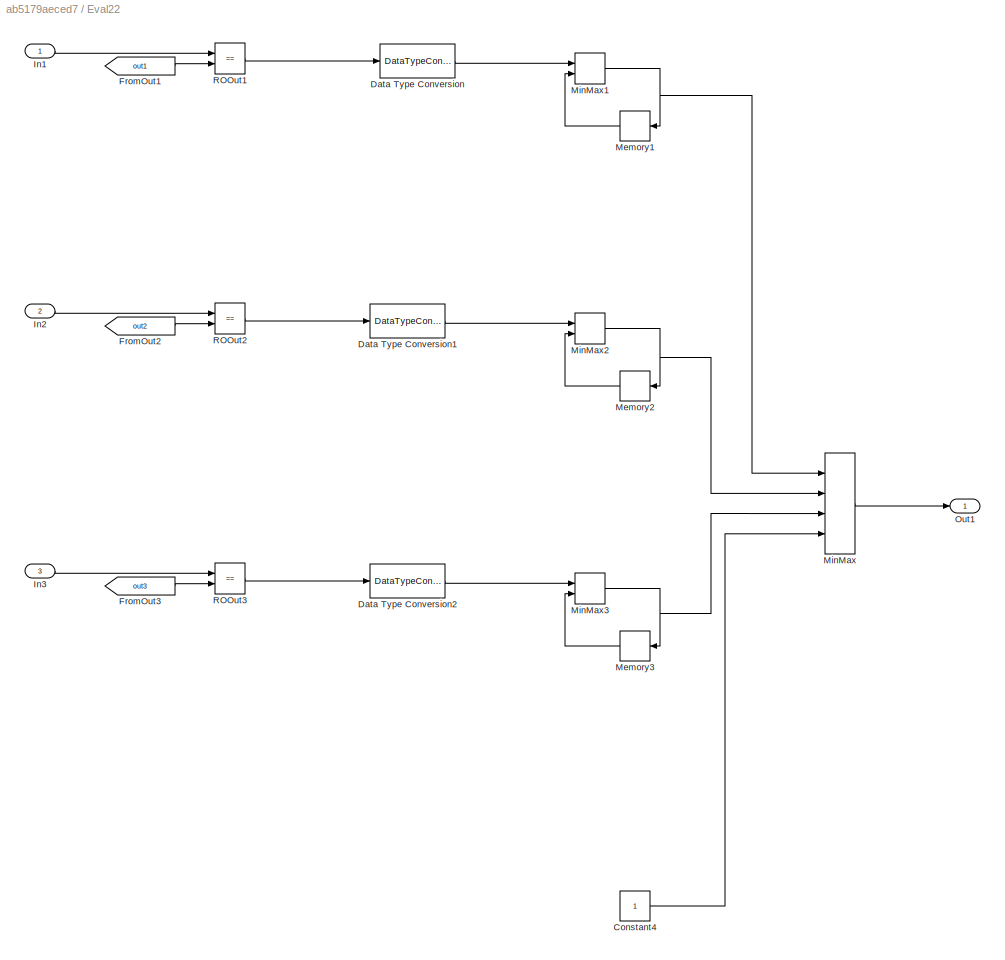
BLOCK [SubSystem] Eval22
  Ports = [3, 1]
  RequestExecContextInheritance = off
BLOCK [Constant] Eval22/Constant4
BLOCK [DataTypeConversion] Eval22/Data Type Conversion
  RndMeth = Floor
  SaturateOnIntegerOverflow = off
BLOCK [DataTypeConversion] Eval22/Data Type Conversion1
  RndMeth = Floor
  SaturateOnIntegerOverflow = off
BLOCK [DataTypeConversion] Eval22/Data Type Conversion2
  RndMeth = Floor
  SaturateOnIntegerOverflow = off
BLOCK [From] Eval22/FromOut1
  GotoTag = out1
BLOCK [From] Eval22/FromOut2
  GotoTag = out2
BLOCK [From] Eval22/FromOut3
  GotoTag = out3
BLOCK [Inport] Eval22/In1
  IconDisplay = Port number
BLOCK [Inport] Eval22/In2
  IconDisplay = Port number
  Port = 2
BLOCK [Inport] Eval22/In3
  IconDisplay = Port number
  Port = 3
BLOCK [Memory] Eval22/Memory1
  InitialCondition = 1
BLOCK [Memory] Eval22/Memory2
  InitialCondition = 1
BLOCK [Memory] Eval22/Memory3
  InitialCondition = 1
BLOCK [MinMax] Eval22/MinMax
  InputSameDT = off
  Inputs = 4
  Ports = [4, 1]
  SaturateOnIntegerOverflow = off
BLOCK [MinMax] Eval22/MinMax1
  InputSameDT = off
  Inputs = 2
  Ports = [2, 1]
  SaturateOnIntegerOverflow = off
BLOCK [MinMax] Eval22/MinMax2
  InputSameDT = off
  Inputs = 2
  Ports = [2, 1]
  SaturateOnIntegerOverflow = off
BLOCK [MinMax] Eval22/MinMax3
  InputSameDT = off
  Inputs = 2
  Ports = [2, 1]
  SaturateOnIntegerOverflow = off
BLOCK [Outport] Eval22/Out1
  IconDisplay = Port number
BLOCK [RelationalOperator] Eval22/ROOut1
  InputSameDT = off
  Operator = ==
  OutDataTypeStr = boolean
  Ports = [2, 1]
  RndMeth = Simplest
BLOCK [RelationalOperator] Eval22/ROOut2
  InputSameDT = off
  Operator = ==
  OutDataTypeStr = boolean
  Ports = [2, 1]
  RndMeth = Simplest
BLOCK [RelationalOperator] Eval22/ROOut3
  InputSameDT = off
  Operator = ==
  OutDataTypeStr = boolean
  Ports = [2, 1]
  RndMeth = Simplest
BLOCK [SubSystem] Eval23
  Ports = [3, 1]
  RequestExecContextInheritance = off
BLOCK [Constant] Eval23/Constant4
BLOCK [DataTypeConversion] Eval23/Data Type Conversion
  RndMeth = Floor
  SaturateOnIntegerOverflow = off
BLOCK [DataTypeConversion] Eval23/Data Type Conversion1
  RndMeth = Floor
  SaturateOnIntegerOverflow = off
BLOCK [DataTypeConversion] Eval23/Data Type Conversion2
  RndMeth = Floor
  SaturateOnIntegerOverflow = off
BLOCK [From] Eval23/FromOut1
  GotoTag = out1
BLOCK [From] Eval23/FromOut2
  GotoTag = out2
BLOCK [From] Eval23/FromOut3
  GotoTag = out3
BLOCK [Inport] Eval23/In1
  IconDisplay = Port number
BLOCK [Inport] Eval23/In2
  IconDisplay = Port number
  Port = 2
BLOCK [Inport] Eval23/In3
  IconDisplay = Port number
  Port = 3
BLOCK [Memory] Eval23/Memory1
  InitialCondition = 1
BLOCK [Memory] Eval23/Memory2
  InitialCondition = 1
BLOCK [Memory] Eval23/Memory3
  InitialCondition = 1
BLOCK [MinMax] Eval23/MinMax
  InputSameDT = off
  Inputs = 4
  Ports = [4, 1]
  SaturateOnIntegerOverflow = off
BLOCK [MinMax] Eval23/MinMax1
  InputSameDT = off
  Inputs = 2
  Ports = [2, 1]
  SaturateOnIntegerOverflow = off
BLOCK [MinMax] Eval23/MinMax2
  InputSameDT = off
  Inputs = 2
  Ports = [2, 1]
  SaturateOnIntegerOverflow = off
BLOCK [MinMax] Eval23/MinMax3
  InputSameDT = off
  Inputs = 2
  Ports = [2, 1]
  SaturateOnIntegerOverflow = off
BLOCK [Outport] Eval23/Out1
  IconDisplay = Port number
BLOCK [RelationalOperator] Eval23/ROOut1
  InputSameDT = off
  Operator = ==
  OutDataTypeStr = boolean
  Ports = [2, 1]
  RndMeth = Simplest
BLOCK [RelationalOperator] Eval23/ROOut2
  InputSameDT = off
  Operator = ==
  OutDataTypeStr = boolean
  Ports = [2, 1]
  RndMeth = Simplest
BLOCK [RelationalOperator] Eval23/ROOut3
  InputSameDT = off
  Operator = ==
  OutDataTypeStr = boolean
  Ports = [2, 1]
  RndMeth = Simplest
BLOCK [SubSystem] Eval37
  Ports = [3, 1]
  RequestExecContextInheritance = off
BLOCK [Constant] Eval37/Constant4
BLOCK [DataTypeConversion] Eval37/Data Type Conversion
  RndMeth = Floor
  SaturateOnIntegerOverflow = off
BLOCK [DataTypeConversion] Eval37/Data Type Conversion1
  RndMeth = Floor
  SaturateOnIntegerOverflow = off
BLOCK [DataTypeConversion] Eval37/Data Type Conversion2
  RndMeth = Floor
  SaturateOnIntegerOverflow = off
BLOCK [From] Eval37/FromOut1
  GotoTag = out1
BLOCK [From] Eval37/FromOut2
  GotoTag = out2
BLOCK [From] Eval37/FromOut3
  GotoTag = out3
BLOCK [Inport] Eval37/In1
  IconDisplay = Port number
BLOCK [Inport] Eval37/In2
  IconDisplay = Port number
  Port = 2
BLOCK [Inport] Eval37/In3
  IconDisplay = Port number
  Port = 3
BLOCK [Memory] Eval37/Memory1
  InitialCondition = 1
BLOCK [Memory] Eval37/Memory2
  InitialCondition = 1
BLOCK [Memory] Eval37/Memory3
  InitialCondition = 1
BLOCK [MinMax] Eval37/MinMax
  InputSameDT = off
  Inputs = 4
  Ports = [4, 1]
  SaturateOnIntegerOverflow = off
BLOCK [MinMax] Eval37/MinMax1
  InputSameDT = off
  Inputs = 2
  Ports = [2, 1]
  SaturateOnIntegerOverflow = off
BLOCK [MinMax] Eval37/MinMax2
  InputSameDT = off
  Inputs = 2
  Ports = [2, 1]
  SaturateOnIntegerOverflow = off
BLOCK [MinMax] Eval37/MinMax3
  InputSameDT = off
  Inputs = 2
  Ports = [2, 1]
  SaturateOnIntegerOverflow = off
BLOCK [Outport] Eval37/Out1
  IconDisplay = Port number
BLOCK [RelationalOperator] Eval37/ROOut1
  InputSameDT = off
  Operator = ==
  OutDataTypeStr = boolean
  Ports = [2, 1]
  RndMeth = Simplest
BLOCK [RelationalOperator] Eval37/ROOut2
  InputSameDT = off
  Operator = ==
  OutDataTypeStr = boolean
  Ports = [2, 1]
  RndMeth = Simplest
BLOCK [RelationalOperator] Eval37/ROOut3
  InputSameDT = off
  Operator = ==
  OutDataTypeStr = boolean
  Ports = [2, 1]
  RndMeth = Simplest
BLOCK [SubSystem] Eval50
  Ports = [3, 1]
  RequestExecContextInheritance = off
BLOCK [Constant] Eval50/Constant4
BLOCK [DataTypeConversion] Eval50/Data Type Conversion
  RndMeth = Floor
  SaturateOnIntegerOverflow = off
BLOCK [DataTypeConversion] Eval50/Data Type Conversion1
  RndMeth = Floor
  SaturateOnIntegerOverflow = off
BLOCK [DataTypeConversion] Eval50/Data Type Conversion2
  RndMeth = Floor
  SaturateOnIntegerOverflow = off
BLOCK [From] Eval50/FromOut1
  GotoTag = out1
BLOCK [From] Eval50/FromOut2
  GotoTag = out2
BLOCK [From] Eval50/FromOut3
  GotoTag = out3
BLOCK [Inport] Eval50/In1
  IconDisplay = Port number
BLOCK [Inport] Eval50/In2
  IconDisplay = Port number
  Port = 2
BLOCK [Inport] Eval50/In3
  IconDisplay = Port number
  Port = 3
BLOCK [Memory] Eval50/Memory1
  InitialCondition = 1
BLOCK [Memory] Eval50/Memory2
  InitialCondition = 1
BLOCK [Memory] Eval50/Memory3
  InitialCondition = 1
BLOCK [MinMax] Eval50/MinMax
  InputSameDT = off
  Inputs = 4
  Ports = [4, 1]
  SaturateOnIntegerOverflow = off
BLOCK [MinMax] Eval50/MinMax1
  InputSameDT = off
  Inputs = 2
  Ports = [2, 1]
  SaturateOnIntegerOverflow = off
BLOCK [MinMax] Eval50/MinMax2
  InputSameDT = off
  Inputs = 2
  Ports = [2, 1]
  SaturateOnIntegerOverflow = off
BLOCK [MinMax] Eval50/MinMax3
  InputSameDT = off
  Inputs = 2
  Ports = [2, 1]
  SaturateOnIntegerOverflow = off
BLOCK [Outport] Eval50/Out1
  IconDisplay = Port number
BLOCK [RelationalOperator] Eval50/ROOut1
  InputSameDT = off
  Operator = ==
  OutDataTypeStr = boolean
  Ports = [2, 1]
  RndMeth = Simplest
BLOCK [RelationalOperator] Eval50/ROOut2
  InputSameDT = off
  Operator = ==
  OutDataTypeStr = boolean
  Ports = [2, 1]
  RndMeth = Simplest
BLOCK [RelationalOperator] Eval50/ROOut3
  InputSameDT = off
  Operator = ==
  OutDataTypeStr = boolean
  Ports = [2, 1]
  RndMeth = Simplest
BLOCK [SubSystem] Eval51
  Ports = [3, 1]
  RequestExecContextInheritance = off
BLOCK [Constant] Eval51/Constant4
BLOCK [DataTypeConversion] Eval51/Data Type Conversion
  RndMeth = Floor
  SaturateOnIntegerOverflow = off
BLOCK [DataTypeConversion] Eval51/Data Type Conversion1
  RndMeth = Floor
  SaturateOnIntegerOverflow = off
BLOCK [DataTypeConversion] Eval51/Data Type Conversion2
  RndMeth = Floor
  SaturateOnIntegerOverflow = off
BLOCK [From] Eval51/FromOut1
  GotoTag = out1
BLOCK [From] Eval51/FromOut2
  GotoTag = out2
BLOCK [From] Eval51/FromOut3
  GotoTag = out3
BLOCK [Inport] Eval51/In1
  IconDisplay = Port number
BLOCK [Inport] Eval51/In2
  IconDisplay = Port number
  Port = 2
BLOCK [Inport] Eval51/In3
  IconDisplay = Port number
  Port = 3
BLOCK [Memory] Eval51/Memory1
  InitialCondition = 1
BLOCK [Memory] Eval51/Memory2
  InitialCondition = 1
BLOCK [Memory] Eval51/Memory3
  InitialCondition = 1
BLOCK [MinMax] Eval51/MinMax
  InputSameDT = off
  Inputs = 4
  Ports = [4, 1]
  SaturateOnIntegerOverflow = off
BLOCK [MinMax] Eval51/MinMax1
  InputSameDT = off
  Inputs = 2
  Ports = [2, 1]
  SaturateOnIntegerOverflow = off
BLOCK [MinMax] Eval51/MinMax2
  InputSameDT = off
  Inputs = 2
  Ports = [2, 1]
  SaturateOnIntegerOverflow = off
BLOCK [MinMax] Eval51/MinMax3
  InputSameDT = off
  Inputs = 2
  Ports = [2, 1]
  SaturateOnIntegerOverflow = off
BLOCK [Outport] Eval51/Out1
  IconDisplay = Port number
BLOCK [RelationalOperator] Eval51/ROOut1
  InputSameDT = off
  Operator = ==
  OutDataTypeStr = boolean
  Ports = [2, 1]
  RndMeth = Simplest
BLOCK [RelationalOperator] Eval51/ROOut2
  InputSameDT = off
  Operator = ==
  OutDataTypeStr = boolean
  Ports = [2, 1]
  RndMeth = Simplest
BLOCK [RelationalOperator] Eval51/ROOut3
  InputSameDT = off
  Operator = ==
  OutDataTypeStr = boolean
  Ports = [2, 1]
  RndMeth = Simplest
BLOCK [SubSystem] Eval52
  Ports = [3, 1]
  RequestExecContextInheritance = off
BLOCK [Constant] Eval52/Constant4
BLOCK [DataTypeConversion] Eval52/Data Type Conversion
  RndMeth = Floor
  SaturateOnIntegerOverflow = off
BLOCK [DataTypeConversion] Eval52/Data Type Conversion1
  RndMeth = Floor
  SaturateOnIntegerOverflow = off
BLOCK [DataTypeConversion] Eval52/Data Type Conversion2
  RndMeth = Floor
  SaturateOnIntegerOverflow = off
BLOCK [From] Eval52/FromOut1
  GotoTag = out1
BLOCK [From] Eval52/FromOut2
  GotoTag = out2
BLOCK [From] Eval52/FromOut3
  GotoTag = out3
BLOCK [Inport] Eval52/In1
  IconDisplay = Port number
BLOCK [Inport] Eval52/In2
  IconDisplay = Port number
  Port = 2
BLOCK [Inport] Eval52/In3
  IconDisplay = Port number
  Port = 3
BLOCK [Memory] Eval52/Memory1
  InitialCondition = 1
BLOCK [Memory] Eval52/Memory2
  InitialCondition = 1
BLOCK [Memory] Eval52/Memory3
  InitialCondition = 1
BLOCK [MinMax] Eval52/MinMax
  InputSameDT = off
  Inputs = 4
  Ports = [4, 1]
  SaturateOnIntegerOverflow = off
BLOCK [MinMax] Eval52/MinMax1
  InputSameDT = off
  Inputs = 2
  Ports = [2, 1]
  SaturateOnIntegerOverflow = off
BLOCK [MinMax] Eval52/MinMax2
  InputSameDT = off
  Inputs = 2
  Ports = [2, 1]
  SaturateOnIntegerOverflow = off
BLOCK [MinMax] Eval52/MinMax3
  InputSameDT = off
  Inputs = 2
  Ports = [2, 1]
  SaturateOnIntegerOverflow = off
BLOCK [Outport] Eval52/Out1
  IconDisplay = Port number
BLOCK [RelationalOperator] Eval52/ROOut1
  InputSameDT = off
  Operator = ==
  OutDataTypeStr = boolean
  Ports = [2, 1]
  RndMeth = Simplest
BLOCK [RelationalOperator] Eval52/ROOut2
  InputSameDT = off
  Operator = ==
  OutDataTypeStr = boolean
  Ports = [2, 1]
  RndMeth = Simplest
BLOCK [RelationalOperator] Eval52/ROOut3
  InputSameDT = off
  Operator = ==
  OutDataTypeStr = boolean
  Ports = [2, 1]
  RndMeth = Simplest
BLOCK [SubSystem] Eval8
  Ports = [3, 1]
  RequestExecContextInheritance = off
BLOCK [Constant] Eval8/Constant4
BLOCK [DataTypeConversion] Eval8/Data Type Conversion
  RndMeth = Floor
  SaturateOnIntegerOverflow = off
BLOCK [DataTypeConversion] Eval8/Data Type Conversion1
  RndMeth = Floor
  SaturateOnIntegerOverflow = off
BLOCK [DataTypeConversion] Eval8/Data Type Conversion2
  RndMeth = Floor
  SaturateOnIntegerOverflow = off
BLOCK [From] Eval8/FromOut1
  GotoTag = out1
BLOCK [From] Eval8/FromOut2
  GotoTag = out2
BLOCK [From] Eval8/FromOut3
  GotoTag = out3
BLOCK [Inport] Eval8/In1
  IconDisplay = Port number
BLOCK [Inport] Eval8/In2
  IconDisplay = Port number
  Port = 2
BLOCK [Inport] Eval8/In3
  IconDisplay = Port number
  Port = 3
BLOCK [Memory] Eval8/Memory1
  InitialCondition = 1
BLOCK [Memory] Eval8/Memory2
  InitialCondition = 1
BLOCK [Memory] Eval8/Memory3
  InitialCondition = 1
BLOCK [MinMax] Eval8/MinMax
  InputSameDT = off
  Inputs = 4
  Ports = [4, 1]
  SaturateOnIntegerOverflow = off
BLOCK [MinMax] Eval8/MinMax1
  InputSameDT = off
  Inputs = 2
  Ports = [2, 1]
  SaturateOnIntegerOverflow = off
BLOCK [MinMax] Eval8/MinMax2
  InputSameDT = off
  Inputs = 2
  Ports = [2, 1]
  SaturateOnIntegerOverflow = off
BLOCK [MinMax] Eval8/MinMax3
  InputSameDT = off
  Inputs = 2
  Ports = [2, 1]
  SaturateOnIntegerOverflow = off
BLOCK [Outport] Eval8/Out1
  IconDisplay = Port number
BLOCK [RelationalOperator] Eval8/ROOut1
  InputSameDT = off
  Operator = ==
  OutDataTypeStr = boolean
  Ports = [2, 1]
  RndMeth = Simplest
BLOCK [RelationalOperator] Eval8/ROOut2
  InputSameDT = off
  Operator = ==
  OutDataTypeStr = boolean
  Ports = [2, 1]
  RndMeth = Simplest
BLOCK [RelationalOperator] Eval8/ROOut3
  InputSameDT = off
  Operator = ==
  OutDataTypeStr = boolean
  Ports = [2, 1]
  RndMeth = Simplest
BLOCK [From] FromIn145
  GotoTag = in1
BLOCK [From] FromIn146
  GotoTag = in2
BLOCK [From] FromIn147
  GotoTag = in3
BLOCK [From] FromIn148
  GotoTag = in4
BLOCK [From] FromIn149
  GotoTag = in5
BLOCK [From] FromIn150
  GotoTag = in6
BLOCK [From] FromIn151
  GotoTag = in7
BLOCK [From] FromIn152
  GotoTag = in8
BLOCK [From] FromIn153
  GotoTag = in9
BLOCK [From] FromIn154
  GotoTag = in10
BLOCK [From] FromIn155
  GotoTag = in11
BLOCK [From] FromIn156
  GotoTag = in12
BLOCK [From] FromIn157
  GotoTag = in13
BLOCK [From] FromIn158
  GotoTag = in14
BLOCK [From] FromIn159
  GotoTag = in15
BLOCK [From] FromIn160
  GotoTag = in16
BLOCK [From] FromIn161
  GotoTag = in17
BLOCK [From] FromIn162
  GotoTag = in18
BLOCK [From] FromIn379
  GotoTag = in1
BLOCK [From] FromIn380
  GotoTag = in2
BLOCK [From] FromIn381
  GotoTag = in3
BLOCK [From] FromIn382
  GotoTag = in4
BLOCK [From] FromIn383
  GotoTag = in5
BLOCK [From] FromIn384
  GotoTag = in6
BLOCK [From] FromIn385
  GotoTag = in7
BLOCK [From] FromIn386
  GotoTag = in8
BLOCK [From] FromIn387
  GotoTag = in9
BLOCK [From] FromIn388
  GotoTag = in10
BLOCK [From] FromIn389
  GotoTag = in11
BLOCK [From] FromIn390
  GotoTag = in12
BLOCK [From] FromIn391
  GotoTag = in13
BLOCK [From] FromIn392
  GotoTag = in14
BLOCK [From] FromIn393
  GotoTag = in15
BLOCK [From] FromIn394
  GotoTag = in16
BLOCK [From] FromIn395
  GotoTag = in17
BLOCK [From] FromIn396
  GotoTag = in18
BLOCK [From] FromIn397
  GotoTag = in1
BLOCK [From] FromIn398
  GotoTag = in2
BLOCK [From] FromIn399
  GotoTag = in3
BLOCK [From] FromIn400
  GotoTag = in4
BLOCK [From] FromIn401
  GotoTag = in5
BLOCK [From] FromIn402
  GotoTag = in6
BLOCK [From] FromIn403
  GotoTag = in7
BLOCK [From] FromIn404
  GotoTag = in8
BLOCK [From] FromIn405
  GotoTag = in9
BLOCK [From] FromIn406
  GotoTag = in10
BLOCK [From] FromIn407
  GotoTag = in11
BLOCK [From] FromIn408
  GotoTag = in12
BLOCK [From] FromIn409
  GotoTag = in13
BLOCK [From] FromIn410
  GotoTag = in14
BLOCK [From] FromIn411
  GotoTag = in15
BLOCK [From] FromIn412
  GotoTag = in16
BLOCK [From] FromIn413
  GotoTag = in17
BLOCK [From] FromIn414
  GotoTag = in18
BLOCK [From] FromIn415
  GotoTag = in1
BLOCK [From] FromIn416
  GotoTag = in2
BLOCK [From] FromIn417
  GotoTag = in3
BLOCK [From] FromIn418
  GotoTag = in4
BLOCK [From] FromIn419
  GotoTag = in5
BLOCK [From] FromIn420
  GotoTag = in6
BLOCK [From] FromIn421
  GotoTag = in7
BLOCK [From] FromIn422
  GotoTag = in8
BLOCK [From] FromIn423
  GotoTag = in9
BLOCK [From] FromIn424
  GotoTag = in10
BLOCK [From] FromIn425
  GotoTag = in11
BLOCK [From] FromIn426
  GotoTag = in12
BLOCK [From] FromIn427
  GotoTag = in13
BLOCK [From] FromIn428
  GotoTag = in14
BLOCK [From] FromIn429
  GotoTag = in15
BLOCK [From] FromIn430
  GotoTag = in16
BLOCK [From] FromIn431
  GotoTag = in17
BLOCK [From] FromIn432
  GotoTag = in18
BLOCK [From] FromIn667
  GotoTag = in1
BLOCK [From] FromIn668
  GotoTag = in2
BLOCK [From] FromIn669
  GotoTag = in3
BLOCK [From] FromIn670
  GotoTag = in4
BLOCK [From] FromIn671
  GotoTag = in5
BLOCK [From] FromIn672
  GotoTag = in6
BLOCK [From] FromIn673
  GotoTag = in7
BLOCK [From] FromIn674
  GotoTag = in8
BLOCK [From] FromIn675
  GotoTag = in9
BLOCK [From] FromIn676
  GotoTag = in10
BLOCK [From] FromIn677
  GotoTag = in11
BLOCK [From] FromIn678
  GotoTag = in12
BLOCK [From] FromIn679
  GotoTag = in13
BLOCK [From] FromIn680
  GotoTag = in14
BLOCK [From] FromIn681
  GotoTag = in15
BLOCK [From] FromIn682
  GotoTag = in16
BLOCK [From] FromIn683
  GotoTag = in17
BLOCK [From] FromIn684
  GotoTag = in18
BLOCK [From] FromIn901
  GotoTag = in1
BLOCK [From] FromIn902
  GotoTag = in2
BLOCK [From] FromIn903
  GotoTag = in3
BLOCK [From] FromIn904
  GotoTag = in4
BLOCK [From] FromIn905
  GotoTag = in5
BLOCK [From] FromIn906
  GotoTag = in6
BLOCK [From] FromIn907
  GotoTag = in7
BLOCK [From] FromIn908
  GotoTag = in8
BLOCK [From] FromIn909
  GotoTag = in9
BLOCK [From] FromIn910
  GotoTag = in10
BLOCK [From] FromIn911
  GotoTag = in11
BLOCK [From] FromIn912
  GotoTag = in12
BLOCK [From] FromIn913
  GotoTag = in13
BLOCK [From] FromIn914
  GotoTag = in14
BLOCK [From] FromIn915
  GotoTag = in15
BLOCK [From] FromIn916
  GotoTag = in16
BLOCK [From] FromIn917
  GotoTag = in17
BLOCK [From] FromIn918
  GotoTag = in18
BLOCK [From] FromIn919
  GotoTag = in1
BLOCK [From] FromIn920
  GotoTag = in2
BLOCK [From] FromIn921
  GotoTag = in3
BLOCK [From] FromIn922
  GotoTag = in4
BLOCK [From] FromIn923
  GotoTag = in5
BLOCK [From] FromIn924
  GotoTag = in6
BLOCK [From] FromIn925
  GotoTag = in7
BLOCK [From] FromIn926
  GotoTag = in8
BLOCK [From] FromIn927
  GotoTag = in9
BLOCK [From] FromIn928
  GotoTag = in10
BLOCK [From] FromIn929
  GotoTag = in11
BLOCK [From] FromIn930
  GotoTag = in12
BLOCK [From] FromIn931
  GotoTag = in13
BLOCK [From] FromIn932
  GotoTag = in14
BLOCK [From] FromIn933
  GotoTag = in15
BLOCK [From] FromIn934
  GotoTag = in16
BLOCK [From] FromIn935
  GotoTag = in17
BLOCK [From] FromIn936
  GotoTag = in18
BLOCK [From] FromIn937
  GotoTag = in1
BLOCK [From] FromIn938
  GotoTag = in2
BLOCK [From] FromIn939
  GotoTag = in3
BLOCK [From] FromIn940
  GotoTag = in4
BLOCK [From] FromIn941
  GotoTag = in5
BLOCK [From] FromIn942
  GotoTag = in6
BLOCK [From] FromIn943
  GotoTag = in7
BLOCK [From] FromIn944
  GotoTag = in8
BLOCK [From] FromIn945
  GotoTag = in9
BLOCK [From] FromIn946
  GotoTag = in10
BLOCK [From] FromIn947
  GotoTag = in11
BLOCK [From] FromIn948
  GotoTag = in12
BLOCK [From] FromIn949
  GotoTag = in13
BLOCK [From] FromIn950
  GotoTag = in14
BLOCK [From] FromIn951
  GotoTag = in15
BLOCK [From] FromIn952
  GotoTag = in16
BLOCK [From] FromIn953
  GotoTag = in17
BLOCK [From] FromIn954
  GotoTag = in18
BLOCK [Goto] GotoIn1
  GotoTag = in1
BLOCK [Goto] GotoIn10
  GotoTag = in10
BLOCK [Goto] GotoIn11
  GotoTag = in11
BLOCK [Goto] GotoIn12
  GotoTag = in12
BLOCK [Goto] GotoIn13
  GotoTag = in13
BLOCK [Goto] GotoIn14
  GotoTag = in14
BLOCK [Goto] GotoIn15
  GotoTag = in15
BLOCK [Goto] GotoIn16
  GotoTag = in16
BLOCK [Goto] GotoIn17
  GotoTag = in17
BLOCK [Goto] GotoIn18
  GotoTag = in18
BLOCK [Goto] GotoIn2
  GotoTag = in2
BLOCK [Goto] GotoIn3
  GotoTag = in3
BLOCK [Goto] GotoIn4
  GotoTag = in4
BLOCK [Goto] GotoIn5
  GotoTag = in5
BLOCK [Goto] GotoIn6
  GotoTag = in6
BLOCK [Goto] GotoIn7
  GotoTag = in7
BLOCK [Goto] GotoIn8
  GotoTag = in8
BLOCK [Goto] GotoIn9
  GotoTag = in9
BLOCK [Goto] GotoOut1
  GotoTag = out1
  TagVisibility = global
BLOCK [Goto] GotoOut2
  GotoTag = out2
  TagVisibility = global
BLOCK [Goto] GotoOut3
  GotoTag = out3
  TagVisibility = global
BLOCK [Goto] GotoOut4
  GotoTag = out4
  TagVisibility = global
BLOCK [SubSystem] Inputs
  ClipboardFcn = sigbuilder_block('clipboard');
  CloseFcn = sigbuilder_block('close');
  ContinueFcn = sigbuilder_block('continue');
  CopyFcn = sigbuilder_block('copy');
  DeleteFcn = sigbuilder_block('delete');
  LoadFcn = sigbuilder_block('load');
  MaskHideContents = on
  ModelCloseFcn = sigbuilder_block('modelClose');
  NameChangeFcn = sigbuilder_block('namechange');
  OpenFcn = sigbuilder_block('open');
  PauseFcn = sigbuilder_block('pause');
  Ports = [0, 7]
  PreSaveFcn = sigbuilder_block('preSave');
  RequestExecContextInheritance = off
  StartFcn = sigbuilder_block('start');
  StopFcn = sigbuilder_block('stop');
  Tag = STV Subsys
BLOCK [Outport] Inputs/DW1
  IconDisplay = Port number
  Tag = STV Outport
BLOCK [Demux] Inputs/Demux
  Outputs = 7
  Ports = [1, 7]
  Tag = STV Demux
BLOCK [FromWorkspace] Inputs/FromWs
  SampleTime = 0
  Tag = STV FromWs
  VariableName = tuvar
BLOCK [Outport] Inputs/LD
  IconDisplay = Port number
  Port = 7
  Tag = STV Outport
BLOCK [Outport] Inputs/O1
  IconDisplay = Port number
  Port = 4
  Tag = STV Outport
BLOCK [Outport] Inputs/O2
  IconDisplay = Port number
  Port = 5
  Tag = STV Outport
BLOCK [Outport] Inputs/O3
  IconDisplay = Port number
  Port = 6
  Tag = STV Outport
BLOCK [Outport] Inputs/P1W2
  IconDisplay = Port number
  Port = 2
  Tag = STV Outport
BLOCK [Outport] Inputs/P2W3
  IconDisplay = Port number
  Port = 3
  Tag = STV Outport
BLOCK [SubSystem] M009
  Ports = [7, 3]
  RequestExecContextInheritance = off
BLOCK [SubSystem] M009/Cyber
  Ports = [10, 3]
  RequestExecContextInheritance = off
BLOCK [Inport] M009/Cyber/DW1
  IconDisplay = Port number
  Port = 4
BLOCK [Inport] M009/Cyber/LD
  IconDisplay = Port number
  Port = 10
BLOCK [Inport] M009/Cyber/OW1
  IconDisplay = Port number
  Port = 7
BLOCK [Inport] M009/Cyber/OW2
  IconDisplay = Port number
  Port = 8
BLOCK [Inport] M009/Cyber/OW3
  IconDisplay = Port number
  Port = 9
BLOCK [Inport] M009/Cyber/P1W2
  IconDisplay = Port number
  Port = 5
BLOCK [Inport] M009/Cyber/P2W3
  IconDisplay = Port number
  Port = 6
BLOCK [Inport] M009/Cyber/PosW1
  IconDisplay = Port number
BLOCK [Inport] M009/Cyber/PosW2
  IconDisplay = Port number
  Port = 2
BLOCK [Inport] M009/Cyber/PosW3
  IconDisplay = Port number
  Port = 3
BLOCK [Outport] M009/Cyber/W1
  IconDisplay = Port number
BLOCK [Outport] M009/Cyber/W2
  IconDisplay = Port number
  Port = 2
BLOCK [Outport] M009/Cyber/W3
  IconDisplay = Port number
  Port = 3
BLOCK [SubSystem] M009/Cyber/WL
  Ports = [4, 1]
  RequestExecContextInheritance = off
BLOCK [SubSystem] M009/Cyber/WL/Chart
  ErrorFcn = Stateflow.Translate.translate
  PermitHierarchicalResolution = ExplicitOnly
  Ports = [2, 1]
  RequestExecContextInheritance = off
  SFBlockType = Chart
  TreatAsAtomicUnit = on
BLOCK [Demux] M009/Cyber/WL/Chart/ Demux 
  Outputs = 1
  Ports = [1, 1]
BLOCK [S-Function] M009/Cyber/WL/Chart/ SFunction 
  EnableBusSupport = off
  FunctionName = sf_sfun
  PortCounts = [2 2]
  Ports = [2, 2]
  SFcnIsStateOwnerBlock = off
  SFunctionDeploymentMode = off
  Tag = Stateflow S-Function c00022M_harness 37
BLOCK [Terminator] M009/Cyber/WL/Chart/ Terminator 
BLOCK [Inport] M009/Cyber/WL/Chart/S
  IconDisplay = Port number
BLOCK [Inport] M009/Cyber/WL/Chart/UI
  IconDisplay = Port number
  Port = 2
BLOCK [Outport] M009/Cyber/WL/Chart/W
  IconDisplay = Port number
BLOCK [Constant] M009/Cyber/WL/Constant
  Value = -1
BLOCK [Constant] M009/Cyber/WL/Constant1
  Value = 0
BLOCK [DataTypeConversion] M009/Cyber/WL/Data Type Conversion
  RndMeth = Floor
  SaturateOnIntegerOverflow = off
BLOCK [Inport] M009/Cyber/WL/L
  IconDisplay = Port number
  Port = 4
BLOCK [Inport] M009/Cyber/WL/OW
  IconDisplay = Port number
  Port = 3
BLOCK [Switch] M009/Cyber/WL/Switch
  Criteria = u2 ~= 0
  InputSameDT = off
  SaturateOnIntegerOverflow = off
  Threshold = 1
  ZeroCross = off
BLOCK [Switch] M009/Cyber/WL/Switch1
  Criteria = u2 ~= 0
  InputSameDT = off
  SaturateOnIntegerOverflow = off
BLOCK [Inport] M009/Cyber/WL/User
  IconDisplay = Port number
  Port = 2
BLOCK [Inport] M009/Cyber/WL/WPos
  IconDisplay = Port number
BLOCK [Outport] M009/Cyber/WL/WindowLogicOutput
  IconDisplay = Port number
BLOCK [SubSystem] M009/Cyber/WL1
  Ports = [4, 1]
  RequestExecContextInheritance = off
BLOCK [SubSystem] M009/Cyber/WL1/Chart1
  ErrorFcn = Stateflow.Translate.translate
  PermitHierarchicalResolution = ExplicitOnly
  Ports = [2, 1]
  RequestExecContextInheritance = off
  SFBlockType = Chart
  TreatAsAtomicUnit = on
BLOCK [Demux] M009/Cyber/WL1/Chart1/ Demux 
  Outputs = 1
  Ports = [1, 1]
BLOCK [S-Function] M009/Cyber/WL1/Chart1/ SFunction 
  EnableBusSupport = off
  FunctionName = sf_sfun
  PortCounts = [2 2]
  Ports = [2, 2]
  SFcnIsStateOwnerBlock = off
  SFunctionDeploymentMode = off
  Tag = Stateflow S-Function c00022M_harness 38
BLOCK [Terminator] M009/Cyber/WL1/Chart1/ Terminator 
BLOCK [Inport] M009/Cyber/WL1/Chart1/S
  IconDisplay = Port number
BLOCK [Inport] M009/Cyber/WL1/Chart1/UI
  IconDisplay = Port number
  Port = 2
BLOCK [Outport] M009/Cyber/WL1/Chart1/W
  IconDisplay = Port number
BLOCK [Constant] M009/Cyber/WL1/Constant
  Value = -1
BLOCK [Constant] M009/Cyber/WL1/Constant1
  Value = 0
BLOCK [DataTypeConversion] M009/Cyber/WL1/Data Type Conversion
  RndMeth = Floor
  SaturateOnIntegerOverflow = off
BLOCK [Inport] M009/Cyber/WL1/L
  IconDisplay = Port number
  Port = 4
BLOCK [Inport] M009/Cyber/WL1/OW
  IconDisplay = Port number
  Port = 3
BLOCK [Switch] M009/Cyber/WL1/Switch
  Criteria = u2 ~= 0
  InputSameDT = off
  SaturateOnIntegerOverflow = off
  Threshold = 1
  ZeroCross = off
BLOCK [Switch] M009/Cyber/WL1/Switch1
  Criteria = u2 ~= 0
  InputSameDT = off
  SaturateOnIntegerOverflow = off
BLOCK [Inport] M009/Cyber/WL1/User
  IconDisplay = Port number
  Port = 2
BLOCK [Inport] M009/Cyber/WL1/WPos
  IconDisplay = Port number
BLOCK [Outport] M009/Cyber/WL1/WindowLogicOutput
  IconDisplay = Port number
BLOCK [SubSystem] M009/Cyber/WL2
  Ports = [4, 1]
  RequestExecContextInheritance = off
BLOCK [SubSystem] M009/Cyber/WL2/Chart1
  ErrorFcn = Stateflow.Translate.translate
  PermitHierarchicalResolution = ExplicitOnly
  Ports = [3, 1]
  RequestExecContextInheritance = off
  SFBlockType = Chart
  TreatAsAtomicUnit = on
BLOCK [Demux] M009/Cyber/WL2/Chart1/ Demux 
  Outputs = 1
  Ports = [1, 1]
BLOCK [S-Function] M009/Cyber/WL2/Chart1/ SFunction 
  EnableBusSupport = off
  FunctionName = sf_sfun
  PortCounts = [3 2]
  Ports = [3, 2]
  SFcnIsStateOwnerBlock = off
  SFunctionDeploymentMode = off
  Tag = Stateflow S-Function c00022M_harness 39
BLOCK [Terminator] M009/Cyber/WL2/Chart1/ Terminator 
BLOCK [Inport] M009/Cyber/WL2/Chart1/PosMinW3
  IconDisplay = Port number
  Port = 3
BLOCK [Inport] M009/Cyber/WL2/Chart1/S
  IconDisplay = Port number
BLOCK [Inport] M009/Cyber/WL2/Chart1/UI
  IconDisplay = Port number
  Port = 2
BLOCK [Outport] M009/Cyber/WL2/Chart1/W
  IconDisplay = Port number
BLOCK [Constant] M009/Cyber/WL2/Constant
  Value = -1
BLOCK [Constant] M009/Cyber/WL2/Constant1
  Value = 0
BLOCK [Constant] M009/Cyber/WL2/Constant2
  Value = PosMinimaW3
BLOCK [DataTypeConversion] M009/Cyber/WL2/Data Type Conversion
  RndMeth = Floor
  SaturateOnIntegerOverflow = off
BLOCK [Inport] M009/Cyber/WL2/L
  IconDisplay = Port number
  Port = 4
BLOCK [Inport] M009/Cyber/WL2/OW
  IconDisplay = Port number
  Port = 3
BLOCK [Switch] M009/Cyber/WL2/Switch
  Criteria = u2 ~= 0
  InputSameDT = off
  SaturateOnIntegerOverflow = off
  Threshold = 1
  ZeroCross = off
BLOCK [Switch] M009/Cyber/WL2/Switch1
  Criteria = u2 ~= 0
  InputSameDT = off
  SaturateOnIntegerOverflow = off
BLOCK [Inport] M009/Cyber/WL2/User
  IconDisplay = Port number
  Port = 2
BLOCK [Inport] M009/Cyber/WL2/WPos
  IconDisplay = Port number
BLOCK [Outport] M009/Cyber/WL2/WindowLogicOutput
  IconDisplay = Port number
BLOCK [Inport] M009/DW1
  IconDisplay = Port number
  OutDataTypeStr = int8
  OutMax = 4
  OutMin = 0
BLOCK [Inport] M009/LD
  IconDisplay = Port number
  OutDataTypeStr = boolean
  Port = 7
BLOCK [Memory] M009/M
BLOCK [Memory] M009/M1
BLOCK [Memory] M009/M2
BLOCK [Inport] M009/O1
  IconDisplay = Port number
  OutDataTypeStr = boolean
  Port = 4
BLOCK [Inport] M009/O2
  IconDisplay = Port number
  OutDataTypeStr = boolean
  Port = 5
BLOCK [Inport] M009/O3
  IconDisplay = Port number
  OutDataTypeStr = boolean
  Port = 6
BLOCK [Inport] M009/P1W2
  IconDisplay = Port number
  OutDataTypeStr = int8
  OutMax = 4
  OutMin = 0
  Port = 2
BLOCK [Inport] M009/P2W3
  IconDisplay = Port number
  OutDataTypeStr = int8
  OutMax = 4
  OutMin = 0
  Port = 3
BLOCK [SubSystem] M009/Physical
  Ports = [3, 3]
  RequestExecContextInheritance = off
BLOCK [Inport] M009/Physical/InW1
  IconDisplay = Port number
BLOCK [Inport] M009/Physical/InW2
  IconDisplay = Port number
  Port = 2
BLOCK [Inport] M009/Physical/InW3
  IconDisplay = Port number
  Port = 3
BLOCK [SubSystem] M009/Physical/W
  Ports = [1, 1]
  RequestExecContextInheritance = off
BLOCK [SubSystem] M009/Physical/W/DC_Engine
  Ports = [1, 1]
  RequestExecContextInheritance = off
BLOCK [Gain] M009/Physical/W/DC_Engine/(Inductance)
  Gain = 1/L
  OutDataTypeStr = Inherit: Inherit via internal rule
  ParamDataTypeStr = Inherit: Inherit via internal rule
  SaturateOnIntegerOverflow = off
BLOCK [Gain] M009/Physical/W/DC_Engine/(Inductance)1
  Gain = 1/J
  OutDataTypeStr = Inherit: Inherit via internal rule
  ParamDataTypeStr = Inherit: Inherit via internal rule
  SaturateOnIntegerOverflow = off
BLOCK [Sum] M009/Physical/W/DC_Engine/Add
  InputSameDT = off
  Inputs = -+-
  OutDataTypeStr = Inherit: Inherit via internal rule
  Ports = [3, 1]
  SaturateOnIntegerOverflow = off
BLOCK [Sum] M009/Physical/W/DC_Engine/Add1
  InputSameDT = off
  Inputs = +-
  OutDataTypeStr = Inherit: Inherit via internal rule
  Ports = [2, 1]
  SaturateOnIntegerOverflow = off
BLOCK [Gain] M009/Physical/W/DC_Engine/Damping
  Gain = b
  OutDataTypeStr = Inherit: Inherit via internal rule
  ParamDataTypeStr = Inherit: Inherit via internal rule
  SaturateOnIntegerOverflow = off
BLOCK [DiscreteIntegrator] M009/Physical/W/DC_Engine/Discrete-Time Integrator
  ICPrevOutput = DiscIntNeverNeededParam
  ICPrevScaledInput = DiscIntNeverNeededParam
  Ports = [1, 1]
  SampleTime = -1
BLOCK [DiscreteIntegrator] M009/Physical/W/DC_Engine/Discrete-Time Integrator1
  ICPrevOutput = DiscIntNeverNeededParam
  ICPrevScaledInput = DiscIntNeverNeededParam
  Ports = [1, 1]
  SampleTime = -1
BLOCK [Gain] M009/Physical/W/DC_Engine/Ke
  Gain = K
  OutDataTypeStr = Inherit: Inherit via internal rule
  ParamDataTypeStr = Inherit: Inherit via internal rule
  SaturateOnIntegerOverflow = off
BLOCK [Gain] M009/Physical/W/DC_Engine/Kt
  Gain = K
  OutDataTypeStr = Inherit: Inherit via internal rule
  ParamDataTypeStr = Inherit: Inherit via internal rule
  SaturateOnIntegerOverflow = off
BLOCK [Gain] M009/Physical/W/DC_Engine/Resistance
  Gain = R
  OutDataTypeStr = Inherit: Inherit via internal rule
  ParamDataTypeStr = Inherit: Inherit via internal rule
  SaturateOnIntegerOverflow = off
BLOCK [Outport] M009/Physical/W/DC_Engine/Speed
  IconDisplay = Port number
BLOCK [Gain] M009/Physical/W/DC_Engine/Voltage
  Gain = 10
  OutDataTypeStr = Inherit: Inherit via internal rule
  ParamDataTypeStr = Inherit: Inherit via internal rule
  SaturateOnIntegerOverflow = off
BLOCK [Inport] M009/Physical/W/DC_Engine/input
  IconDisplay = Port number
BLOCK [DiscreteIntegrator] M009/Physical/W/Discrete-Time Integrator
  ICPrevOutput = DiscIntNeverNeededParam
  ICPrevScaledInput = DiscIntNeverNeededParam
  InitialCondition = 5
  LimitOutput = on
  LowerSaturationLimit = 0
  Ports = [1, 1]
  SampleTime = -1
  UpperSaturationLimit = 5
BLOCK [Inport] M009/Physical/W/WIn
  IconDisplay = Port number
BLOCK [Outport] M009/Physical/W/WPos
  IconDisplay = Port number
BLOCK [Outport] M009/Physical/W1
  IconDisplay = Port number
BLOCK [Outport] M009/Physical/W2
  IconDisplay = Port number
  Port = 2
BLOCK [Outport] M009/Physical/W3
  IconDisplay = Port number
  Port = 3
BLOCK [SubSystem] M009/Physical/W5
  Ports = [1, 1]
  RequestExecContextInheritance = off
BLOCK [SubSystem] M009/Physical/W5/DC_Engine
  Ports = [1, 1]
  RequestExecContextInheritance = off
BLOCK [Gain] M009/Physical/W5/DC_Engine/(Inductance)
  Gain = 1/L
  OutDataTypeStr = Inherit: Inherit via internal rule
  ParamDataTypeStr = Inherit: Inherit via internal rule
  SaturateOnIntegerOverflow = off
BLOCK [Gain] M009/Physical/W5/DC_Engine/(Inductance)1
  Gain = 1/J
  OutDataTypeStr = Inherit: Inherit via internal rule
  ParamDataTypeStr = Inherit: Inherit via internal rule
  SaturateOnIntegerOverflow = off
BLOCK [Sum] M009/Physical/W5/DC_Engine/Add
  InputSameDT = off
  Inputs = -+-
  OutDataTypeStr = Inherit: Inherit via internal rule
  Ports = [3, 1]
  SaturateOnIntegerOverflow = off
BLOCK [Sum] M009/Physical/W5/DC_Engine/Add1
  InputSameDT = off
  Inputs = +-
  OutDataTypeStr = Inherit: Inherit via internal rule
  Ports = [2, 1]
  SaturateOnIntegerOverflow = off
BLOCK [Gain] M009/Physical/W5/DC_Engine/Damping
  Gain = b
  OutDataTypeStr = Inherit: Inherit via internal rule
  ParamDataTypeStr = Inherit: Inherit via internal rule
  SaturateOnIntegerOverflow = off
BLOCK [DiscreteIntegrator] M009/Physical/W5/DC_Engine/Discrete-Time Integrator
  ICPrevOutput = DiscIntNeverNeededParam
  ICPrevScaledInput = DiscIntNeverNeededParam
  Ports = [1, 1]
  SampleTime = -1
BLOCK [DiscreteIntegrator] M009/Physical/W5/DC_Engine/Discrete-Time Integrator1
  ICPrevOutput = DiscIntNeverNeededParam
  ICPrevScaledInput = DiscIntNeverNeededParam
  Ports = [1, 1]
  SampleTime = -1
BLOCK [Gain] M009/Physical/W5/DC_Engine/Ke
  Gain = K
  OutDataTypeStr = Inherit: Inherit via internal rule
  ParamDataTypeStr = Inherit: Inherit via internal rule
  SaturateOnIntegerOverflow = off
BLOCK [Gain] M009/Physical/W5/DC_Engine/Kt
  Gain = K
  OutDataTypeStr = Inherit: Inherit via internal rule
  ParamDataTypeStr = Inherit: Inherit via internal rule
  SaturateOnIntegerOverflow = off
BLOCK [Gain] M009/Physical/W5/DC_Engine/Resistance
  Gain = R
  OutDataTypeStr = Inherit: Inherit via internal rule
  ParamDataTypeStr = Inherit: Inherit via internal rule
  SaturateOnIntegerOverflow = off
BLOCK [Outport] M009/Physical/W5/DC_Engine/Speed
  IconDisplay = Port number
BLOCK [Gain] M009/Physical/W5/DC_Engine/Voltage
  Gain = 10
  OutDataTypeStr = Inherit: Inherit via internal rule
  ParamDataTypeStr = Inherit: Inherit via internal rule
  SaturateOnIntegerOverflow = off
BLOCK [Inport] M009/Physical/W5/DC_Engine/input
  IconDisplay = Port number
BLOCK [DiscreteIntegrator] M009/Physical/W5/Discrete-Time Integrator
  ICPrevOutput = DiscIntNeverNeededParam
  ICPrevScaledInput = DiscIntNeverNeededParam
  InitialCondition = 5
  LimitOutput = on
  LowerSaturationLimit = 0
  Ports = [1, 1]
  SampleTime = -1
  UpperSaturationLimit = 5
BLOCK [Inport] M009/Physical/W5/WIn
  IconDisplay = Port number
BLOCK [Outport] M009/Physical/W5/WPos
  IconDisplay = Port number
BLOCK [SubSystem] M009/Physical/W6
  Ports = [1, 1]
  RequestExecContextInheritance = off
BLOCK [SubSystem] M009/Physical/W6/DC_Engine
  Ports = [1, 1]
  RequestExecContextInheritance = off
BLOCK [Gain] M009/Physical/W6/DC_Engine/(Inductance)
  Gain = 1/L
  OutDataTypeStr = Inherit: Inherit via internal rule
  ParamDataTypeStr = Inherit: Inherit via internal rule
  SaturateOnIntegerOverflow = off
BLOCK [Gain] M009/Physical/W6/DC_Engine/(Inductance)1
  Gain = 1/J
  OutDataTypeStr = Inherit: Inherit via internal rule
  ParamDataTypeStr = Inherit: Inherit via internal rule
  SaturateOnIntegerOverflow = off
BLOCK [Sum] M009/Physical/W6/DC_Engine/Add
  InputSameDT = off
  Inputs = -+-
  OutDataTypeStr = Inherit: Inherit via internal rule
  Ports = [3, 1]
  SaturateOnIntegerOverflow = off
BLOCK [Sum] M009/Physical/W6/DC_Engine/Add1
  InputSameDT = off
  Inputs = +-
  OutDataTypeStr = Inherit: Inherit via internal rule
  Ports = [2, 1]
  SaturateOnIntegerOverflow = off
BLOCK [Gain] M009/Physical/W6/DC_Engine/Damping
  Gain = b
  OutDataTypeStr = Inherit: Inherit via internal rule
  ParamDataTypeStr = Inherit: Inherit via internal rule
  SaturateOnIntegerOverflow = off
BLOCK [DiscreteIntegrator] M009/Physical/W6/DC_Engine/Discrete-Time Integrator
  ICPrevOutput = DiscIntNeverNeededParam
  ICPrevScaledInput = DiscIntNeverNeededParam
  Ports = [1, 1]
  SampleTime = -1
BLOCK [DiscreteIntegrator] M009/Physical/W6/DC_Engine/Discrete-Time Integrator1
  ICPrevOutput = DiscIntNeverNeededParam
  ICPrevScaledInput = DiscIntNeverNeededParam
  Ports = [1, 1]
  SampleTime = -1
BLOCK [Gain] M009/Physical/W6/DC_Engine/Ke
  Gain = K
  OutDataTypeStr = Inherit: Inherit via internal rule
  ParamDataTypeStr = Inherit: Inherit via internal rule
  SaturateOnIntegerOverflow = off
BLOCK [Gain] M009/Physical/W6/DC_Engine/Kt
  Gain = K
  OutDataTypeStr = Inherit: Inherit via internal rule
  ParamDataTypeStr = Inherit: Inherit via internal rule
  SaturateOnIntegerOverflow = off
BLOCK [Gain] M009/Physical/W6/DC_Engine/Resistance
  Gain = R
  OutDataTypeStr = Inherit: Inherit via internal rule
  ParamDataTypeStr = Inherit: Inherit via internal rule
  SaturateOnIntegerOverflow = off
BLOCK [Outport] M009/Physical/W6/DC_Engine/Speed
  IconDisplay = Port number
BLOCK [Gain] M009/Physical/W6/DC_Engine/Voltage
  Gain = 10
  OutDataTypeStr = Inherit: Inherit via internal rule
  ParamDataTypeStr = Inherit: Inherit via internal rule
  SaturateOnIntegerOverflow = off
BLOCK [Inport] M009/Physical/W6/DC_Engine/input
  IconDisplay = Port number
BLOCK [DiscreteIntegrator] M009/Physical/W6/Discrete-Time Integrator
  ICPrevOutput = DiscIntNeverNeededParam
  ICPrevScaledInput = DiscIntNeverNeededParam
  InitialCondition = 5
  LimitOutput = on
  LowerSaturationLimit = PosMinimaW3
  Ports = [1, 1]
  SampleTime = -1
  UpperSaturationLimit = 5
BLOCK [Inport] M009/Physical/W6/WIn
  IconDisplay = Port number
BLOCK [Outport] M009/Physical/W6/WPos
  IconDisplay = Port number
BLOCK [SubSystem] M009/S1
  Ports = [1, 1]
  RequestExecContextInheritance = off
BLOCK [Inport] M009/S1/PhyMeasure
  IconDisplay = Port number
BLOCK [Outport] M009/S1/SensorOut
  IconDisplay = Port number
BLOCK [SubSystem] M009/S2
  Ports = [1, 1]
  RequestExecContextInheritance = off
BLOCK [Inport] M009/S2/PhyMeasure
  IconDisplay = Port number
BLOCK [Outport] M009/S2/SensorOut
  IconDisplay = Port number
BLOCK [SubSystem] M009/S3
  Ports = [1, 1]
  RequestExecContextInheritance = off
BLOCK [Inport] M009/S3/PhyMeasure
  IconDisplay = Port number
BLOCK [Outport] M009/S3/SensorOut
  IconDisplay = Port number
BLOCK [Outport] M009/W1Pos
  IconDisplay = Port number
BLOCK [Outport] M009/W2Pos
  IconDisplay = Port number
  Port = 2
BLOCK [Outport] M009/W3Pos
  IconDisplay = Port number
  Port = 3
BLOCK [SubSystem] M022
  Ports = [7, 3]
  RequestExecContextInheritance = off
BLOCK [SubSystem] M022/Cyber
  Ports = [10, 3]
  RequestExecContextInheritance = off
BLOCK [Inport] M022/Cyber/DW1
  IconDisplay = Port number
  Port = 4
BLOCK [Inport] M022/Cyber/LD
  IconDisplay = Port number
  Port = 10
BLOCK [Inport] M022/Cyber/OW1
  IconDisplay = Port number
  Port = 7
BLOCK [Inport] M022/Cyber/OW2
  IconDisplay = Port number
  Port = 8
BLOCK [Inport] M022/Cyber/OW3
  IconDisplay = Port number
  Port = 9
BLOCK [Inport] M022/Cyber/P1W2
  IconDisplay = Port number
  Port = 5
BLOCK [Inport] M022/Cyber/P2W3
  IconDisplay = Port number
  Port = 6
BLOCK [Inport] M022/Cyber/PosW1
  IconDisplay = Port number
BLOCK [Inport] M022/Cyber/PosW2
  IconDisplay = Port number
  Port = 2
BLOCK [Inport] M022/Cyber/PosW3
  IconDisplay = Port number
  Port = 3
BLOCK [Outport] M022/Cyber/W1
  IconDisplay = Port number
BLOCK [Outport] M022/Cyber/W2
  IconDisplay = Port number
  Port = 2
BLOCK [Outport] M022/Cyber/W3
  IconDisplay = Port number
  Port = 3
BLOCK [SubSystem] M022/Cyber/WL
  Ports = [4, 1]
  RequestExecContextInheritance = off
BLOCK [SubSystem] M022/Cyber/WL/Chart
  ErrorFcn = Stateflow.Translate.translate
  PermitHierarchicalResolution = ExplicitOnly
  Ports = [2, 1]
  RequestExecContextInheritance = off
  SFBlockType = Chart
  TreatAsAtomicUnit = on
BLOCK [Demux] M022/Cyber/WL/Chart/ Demux 
  Outputs = 1
  Ports = [1, 1]
BLOCK [S-Function] M022/Cyber/WL/Chart/ SFunction 
  EnableBusSupport = off
  FunctionName = sf_sfun
  PortCounts = [2 2]
  Ports = [2, 2]
  SFcnIsStateOwnerBlock = off
  SFunctionDeploymentMode = off
  Tag = Stateflow S-Function c00022M_harness 89
BLOCK [Terminator] M022/Cyber/WL/Chart/ Terminator 
BLOCK [Inport] M022/Cyber/WL/Chart/S
  IconDisplay = Port number
BLOCK [Inport] M022/Cyber/WL/Chart/UI
  IconDisplay = Port number
  Port = 2
BLOCK [Outport] M022/Cyber/WL/Chart/W
  IconDisplay = Port number
BLOCK [Constant] M022/Cyber/WL/Constant
  Value = -1
BLOCK [Constant] M022/Cyber/WL/Constant1
  Value = 0
BLOCK [DataTypeConversion] M022/Cyber/WL/Data Type Conversion
  RndMeth = Floor
  SaturateOnIntegerOverflow = off
BLOCK [Inport] M022/Cyber/WL/L
  IconDisplay = Port number
  Port = 4
BLOCK [Inport] M022/Cyber/WL/OW
  IconDisplay = Port number
  Port = 3
BLOCK [Switch] M022/Cyber/WL/Switch
  Criteria = u2 ~= 0
  InputSameDT = off
  SaturateOnIntegerOverflow = off
  Threshold = 1
  ZeroCross = off
BLOCK [Switch] M022/Cyber/WL/Switch1
  Criteria = u2 > Threshold
  InputSameDT = off
  SaturateOnIntegerOverflow = off
  Threshold = 4
BLOCK [Inport] M022/Cyber/WL/User
  IconDisplay = Port number
  Port = 2
BLOCK [Inport] M022/Cyber/WL/WPos
  IconDisplay = Port number
BLOCK [Outport] M022/Cyber/WL/WindowLogicOutput
  IconDisplay = Port number
BLOCK [SubSystem] M022/Cyber/WL1
  Ports = [4, 1]
  RequestExecContextInheritance = off
BLOCK [SubSystem] M022/Cyber/WL1/Chart1
  ErrorFcn = Stateflow.Translate.translate
  PermitHierarchicalResolution = ExplicitOnly
  Ports = [2, 1]
  RequestExecContextInheritance = off
  SFBlockType = Chart
  TreatAsAtomicUnit = on
BLOCK [Demux] M022/Cyber/WL1/Chart1/ Demux 
  Outputs = 1
  Ports = [1, 1]
BLOCK [S-Function] M022/Cyber/WL1/Chart1/ SFunction 
  EnableBusSupport = off
  FunctionName = sf_sfun
  PortCounts = [2 2]
  Ports = [2, 2]
  SFcnIsStateOwnerBlock = off
  SFunctionDeploymentMode = off
  Tag = Stateflow S-Function c00022M_harness 90
BLOCK [Terminator] M022/Cyber/WL1/Chart1/ Terminator 
BLOCK [Inport] M022/Cyber/WL1/Chart1/S
  IconDisplay = Port number
BLOCK [Inport] M022/Cyber/WL1/Chart1/UI
  IconDisplay = Port number
  Port = 2
BLOCK [Outport] M022/Cyber/WL1/Chart1/W
  IconDisplay = Port number
BLOCK [Constant] M022/Cyber/WL1/Constant
  Value = -1
BLOCK [Constant] M022/Cyber/WL1/Constant1
  Value = 0
BLOCK [DataTypeConversion] M022/Cyber/WL1/Data Type Conversion
  RndMeth = Floor
  SaturateOnIntegerOverflow = off
BLOCK [Inport] M022/Cyber/WL1/L
  IconDisplay = Port number
  Port = 4
BLOCK [Inport] M022/Cyber/WL1/OW
  IconDisplay = Port number
  Port = 3
BLOCK [Switch] M022/Cyber/WL1/Switch
  Criteria = u2 ~= 0
  InputSameDT = off
  SaturateOnIntegerOverflow = off
  Threshold = 1
  ZeroCross = off
BLOCK [Switch] M022/Cyber/WL1/Switch1
  Criteria = u2 ~= 0
  InputSameDT = off
  SaturateOnIntegerOverflow = off
BLOCK [Inport] M022/Cyber/WL1/User
  IconDisplay = Port number
  Port = 2
BLOCK [Inport] M022/Cyber/WL1/WPos
  IconDisplay = Port number
BLOCK [Outport] M022/Cyber/WL1/WindowLogicOutput
  IconDisplay = Port number
BLOCK [SubSystem] M022/Cyber/WL2
  Ports = [4, 1]
  RequestExecContextInheritance = off
BLOCK [SubSystem] M022/Cyber/WL2/Chart1
  ErrorFcn = Stateflow.Translate.translate
  PermitHierarchicalResolution = ExplicitOnly
  Ports = [3, 1]
  RequestExecContextInheritance = off
  SFBlockType = Chart
  TreatAsAtomicUnit = on
BLOCK [Demux] M022/Cyber/WL2/Chart1/ Demux 
  Outputs = 1
  Ports = [1, 1]
BLOCK [S-Function] M022/Cyber/WL2/Chart1/ SFunction 
  EnableBusSupport = off
  FunctionName = sf_sfun
  PortCounts = [3 2]
  Ports = [3, 2]
  SFcnIsStateOwnerBlock = off
  SFunctionDeploymentMode = off
  Tag = Stateflow S-Function c00022M_harness 91
BLOCK [Terminator] M022/Cyber/WL2/Chart1/ Terminator 
BLOCK [Inport] M022/Cyber/WL2/Chart1/PosMinW3
  IconDisplay = Port number
  Port = 3
BLOCK [Inport] M022/Cyber/WL2/Chart1/S
  IconDisplay = Port number
BLOCK [Inport] M022/Cyber/WL2/Chart1/UI
  IconDisplay = Port number
  Port = 2
BLOCK [Outport] M022/Cyber/WL2/Chart1/W
  IconDisplay = Port number
BLOCK [Constant] M022/Cyber/WL2/Constant
  Value = -1
BLOCK [Constant] M022/Cyber/WL2/Constant1
  Value = 0
BLOCK [Constant] M022/Cyber/WL2/Constant2
  Value = PosMinimaW3
BLOCK [DataTypeConversion] M022/Cyber/WL2/Data Type Conversion
  RndMeth = Floor
  SaturateOnIntegerOverflow = off
BLOCK [Inport] M022/Cyber/WL2/L
  IconDisplay = Port number
  Port = 4
BLOCK [Inport] M022/Cyber/WL2/OW
  IconDisplay = Port number
  Port = 3
BLOCK [Switch] M022/Cyber/WL2/Switch
  Criteria = u2 ~= 0
  InputSameDT = off
  SaturateOnIntegerOverflow = off
  Threshold = 1
  ZeroCross = off
BLOCK [Switch] M022/Cyber/WL2/Switch1
  Criteria = u2 ~= 0
  InputSameDT = off
  SaturateOnIntegerOverflow = off
BLOCK [Inport] M022/Cyber/WL2/User
  IconDisplay = Port number
  Port = 2
BLOCK [Inport] M022/Cyber/WL2/WPos
  IconDisplay = Port number
BLOCK [Outport] M022/Cyber/WL2/WindowLogicOutput
  IconDisplay = Port number
BLOCK [Inport] M022/DW1
  IconDisplay = Port number
  OutDataTypeStr = int8
  OutMax = 4
  OutMin = 0
BLOCK [Inport] M022/LD
  IconDisplay = Port number
  OutDataTypeStr = boolean
  Port = 7
BLOCK [Memory] M022/M
BLOCK [Memory] M022/M1
BLOCK [Memory] M022/M2
BLOCK [Inport] M022/O1
  IconDisplay = Port number
  OutDataTypeStr = boolean
  Port = 4
BLOCK [Inport] M022/O2
  IconDisplay = Port number
  OutDataTypeStr = boolean
  Port = 5
BLOCK [Inport] M022/O3
  IconDisplay = Port number
  OutDataTypeStr = boolean
  Port = 6
BLOCK [Inport] M022/P1W2
  IconDisplay = Port number
  OutDataTypeStr = int8
  OutMax = 4
  OutMin = 0
  Port = 2
BLOCK [Inport] M022/P2W3
  IconDisplay = Port number
  OutDataTypeStr = int8
  OutMax = 4
  OutMin = 0
  Port = 3
BLOCK [SubSystem] M022/Physical
  Ports = [3, 3]
  RequestExecContextInheritance = off
BLOCK [Inport] M022/Physical/InW1
  IconDisplay = Port number
BLOCK [Inport] M022/Physical/InW2
  IconDisplay = Port number
  Port = 2
BLOCK [Inport] M022/Physical/InW3
  IconDisplay = Port number
  Port = 3
BLOCK [SubSystem] M022/Physical/W
  Ports = [1, 1]
  RequestExecContextInheritance = off
BLOCK [SubSystem] M022/Physical/W/DC_Engine
  Ports = [1, 1]
  RequestExecContextInheritance = off
BLOCK [Gain] M022/Physical/W/DC_Engine/(Inductance)
  Gain = 1/L
  OutDataTypeStr = Inherit: Inherit via internal rule
  ParamDataTypeStr = Inherit: Inherit via internal rule
  SaturateOnIntegerOverflow = off
BLOCK [Gain] M022/Physical/W/DC_Engine/(Inductance)1
  Gain = 1/J
  OutDataTypeStr = Inherit: Inherit via internal rule
  ParamDataTypeStr = Inherit: Inherit via internal rule
  SaturateOnIntegerOverflow = off
BLOCK [Sum] M022/Physical/W/DC_Engine/Add
  InputSameDT = off
  Inputs = -+-
  OutDataTypeStr = Inherit: Inherit via internal rule
  Ports = [3, 1]
  SaturateOnIntegerOverflow = off
BLOCK [Sum] M022/Physical/W/DC_Engine/Add1
  InputSameDT = off
  Inputs = +-
  OutDataTypeStr = Inherit: Inherit via internal rule
  Ports = [2, 1]
  SaturateOnIntegerOverflow = off
BLOCK [Gain] M022/Physical/W/DC_Engine/Damping
  Gain = b
  OutDataTypeStr = Inherit: Inherit via internal rule
  ParamDataTypeStr = Inherit: Inherit via internal rule
  SaturateOnIntegerOverflow = off
BLOCK [DiscreteIntegrator] M022/Physical/W/DC_Engine/Discrete-Time Integrator
  ICPrevOutput = DiscIntNeverNeededParam
  ICPrevScaledInput = DiscIntNeverNeededParam
  Ports = [1, 1]
  SampleTime = -1
BLOCK [DiscreteIntegrator] M022/Physical/W/DC_Engine/Discrete-Time Integrator1
  ICPrevOutput = DiscIntNeverNeededParam
  ICPrevScaledInput = DiscIntNeverNeededParam
  Ports = [1, 1]
  SampleTime = -1
BLOCK [Gain] M022/Physical/W/DC_Engine/Ke
  Gain = K
  OutDataTypeStr = Inherit: Inherit via internal rule
  ParamDataTypeStr = Inherit: Inherit via internal rule
  SaturateOnIntegerOverflow = off
BLOCK [Gain] M022/Physical/W/DC_Engine/Kt
  Gain = K
  OutDataTypeStr = Inherit: Inherit via internal rule
  ParamDataTypeStr = Inherit: Inherit via internal rule
  SaturateOnIntegerOverflow = off
BLOCK [Gain] M022/Physical/W/DC_Engine/Resistance
  Gain = R
  OutDataTypeStr = Inherit: Inherit via internal rule
  ParamDataTypeStr = Inherit: Inherit via internal rule
  SaturateOnIntegerOverflow = off
BLOCK [Outport] M022/Physical/W/DC_Engine/Speed
  IconDisplay = Port number
BLOCK [Gain] M022/Physical/W/DC_Engine/Voltage
  Gain = 10
  OutDataTypeStr = Inherit: Inherit via internal rule
  ParamDataTypeStr = Inherit: Inherit via internal rule
  SaturateOnIntegerOverflow = off
BLOCK [Inport] M022/Physical/W/DC_Engine/input
  IconDisplay = Port number
BLOCK [DiscreteIntegrator] M022/Physical/W/Discrete-Time Integrator
  ICPrevOutput = DiscIntNeverNeededParam
  ICPrevScaledInput = DiscIntNeverNeededParam
  InitialCondition = 5
  LimitOutput = on
  LowerSaturationLimit = 0
  Ports = [1, 1]
  SampleTime = -1
  UpperSaturationLimit = 5
BLOCK [Inport] M022/Physical/W/WIn
  IconDisplay = Port number
BLOCK [Outport] M022/Physical/W/WPos
  IconDisplay = Port number
BLOCK [Outport] M022/Physical/W1
  IconDisplay = Port number
BLOCK [Outport] M022/Physical/W2
  IconDisplay = Port number
  Port = 2
BLOCK [Outport] M022/Physical/W3
  IconDisplay = Port number
  Port = 3
BLOCK [SubSystem] M022/Physical/W5
  Ports = [1, 1]
  RequestExecContextInheritance = off
BLOCK [SubSystem] M022/Physical/W5/DC_Engine
  Ports = [1, 1]
  RequestExecContextInheritance = off
BLOCK [Gain] M022/Physical/W5/DC_Engine/(Inductance)
  Gain = 1/L
  OutDataTypeStr = Inherit: Inherit via internal rule
  ParamDataTypeStr = Inherit: Inherit via internal rule
  SaturateOnIntegerOverflow = off
BLOCK [Gain] M022/Physical/W5/DC_Engine/(Inductance)1
  Gain = 1/J
  OutDataTypeStr = Inherit: Inherit via internal rule
  ParamDataTypeStr = Inherit: Inherit via internal rule
  SaturateOnIntegerOverflow = off
BLOCK [Sum] M022/Physical/W5/DC_Engine/Add
  InputSameDT = off
  Inputs = -+-
  OutDataTypeStr = Inherit: Inherit via internal rule
  Ports = [3, 1]
  SaturateOnIntegerOverflow = off
BLOCK [Sum] M022/Physical/W5/DC_Engine/Add1
  InputSameDT = off
  Inputs = +-
  OutDataTypeStr = Inherit: Inherit via internal rule
  Ports = [2, 1]
  SaturateOnIntegerOverflow = off
BLOCK [Gain] M022/Physical/W5/DC_Engine/Damping
  Gain = b
  OutDataTypeStr = Inherit: Inherit via internal rule
  ParamDataTypeStr = Inherit: Inherit via internal rule
  SaturateOnIntegerOverflow = off
BLOCK [DiscreteIntegrator] M022/Physical/W5/DC_Engine/Discrete-Time Integrator
  ICPrevOutput = DiscIntNeverNeededParam
  ICPrevScaledInput = DiscIntNeverNeededParam
  Ports = [1, 1]
  SampleTime = -1
BLOCK [DiscreteIntegrator] M022/Physical/W5/DC_Engine/Discrete-Time Integrator1
  ICPrevOutput = DiscIntNeverNeededParam
  ICPrevScaledInput = DiscIntNeverNeededParam
  Ports = [1, 1]
  SampleTime = -1
BLOCK [Gain] M022/Physical/W5/DC_Engine/Ke
  Gain = K
  OutDataTypeStr = Inherit: Inherit via internal rule
  ParamDataTypeStr = Inherit: Inherit via internal rule
  SaturateOnIntegerOverflow = off
BLOCK [Gain] M022/Physical/W5/DC_Engine/Kt
  Gain = K
  OutDataTypeStr = Inherit: Inherit via internal rule
  ParamDataTypeStr = Inherit: Inherit via internal rule
  SaturateOnIntegerOverflow = off
BLOCK [Gain] M022/Physical/W5/DC_Engine/Resistance
  Gain = R
  OutDataTypeStr = Inherit: Inherit via internal rule
  ParamDataTypeStr = Inherit: Inherit via internal rule
  SaturateOnIntegerOverflow = off
BLOCK [Outport] M022/Physical/W5/DC_Engine/Speed
  IconDisplay = Port number
BLOCK [Gain] M022/Physical/W5/DC_Engine/Voltage
  Gain = 10
  OutDataTypeStr = Inherit: Inherit via internal rule
  ParamDataTypeStr = Inherit: Inherit via internal rule
  SaturateOnIntegerOverflow = off
BLOCK [Inport] M022/Physical/W5/DC_Engine/input
  IconDisplay = Port number
BLOCK [DiscreteIntegrator] M022/Physical/W5/Discrete-Time Integrator
  ICPrevOutput = DiscIntNeverNeededParam
  ICPrevScaledInput = DiscIntNeverNeededParam
  InitialCondition = 5
  LimitOutput = on
  LowerSaturationLimit = 0
  Ports = [1, 1]
  SampleTime = -1
  UpperSaturationLimit = 5
BLOCK [Inport] M022/Physical/W5/WIn
  IconDisplay = Port number
BLOCK [Outport] M022/Physical/W5/WPos
  IconDisplay = Port number
BLOCK [SubSystem] M022/Physical/W6
  Ports = [1, 1]
  RequestExecContextInheritance = off
BLOCK [SubSystem] M022/Physical/W6/DC_Engine
  Ports = [1, 1]
  RequestExecContextInheritance = off
BLOCK [Gain] M022/Physical/W6/DC_Engine/(Inductance)
  Gain = 1/L
  OutDataTypeStr = Inherit: Inherit via internal rule
  ParamDataTypeStr = Inherit: Inherit via internal rule
  SaturateOnIntegerOverflow = off
BLOCK [Gain] M022/Physical/W6/DC_Engine/(Inductance)1
  Gain = 1/J
  OutDataTypeStr = Inherit: Inherit via internal rule
  ParamDataTypeStr = Inherit: Inherit via internal rule
  SaturateOnIntegerOverflow = off
BLOCK [Sum] M022/Physical/W6/DC_Engine/Add
  InputSameDT = off
  Inputs = -+-
  OutDataTypeStr = Inherit: Inherit via internal rule
  Ports = [3, 1]
  SaturateOnIntegerOverflow = off
BLOCK [Sum] M022/Physical/W6/DC_Engine/Add1
  InputSameDT = off
  Inputs = +-
  OutDataTypeStr = Inherit: Inherit via internal rule
  Ports = [2, 1]
  SaturateOnIntegerOverflow = off
BLOCK [Gain] M022/Physical/W6/DC_Engine/Damping
  Gain = b
  OutDataTypeStr = Inherit: Inherit via internal rule
  ParamDataTypeStr = Inherit: Inherit via internal rule
  SaturateOnIntegerOverflow = off
BLOCK [DiscreteIntegrator] M022/Physical/W6/DC_Engine/Discrete-Time Integrator
  ICPrevOutput = DiscIntNeverNeededParam
  ICPrevScaledInput = DiscIntNeverNeededParam
  Ports = [1, 1]
  SampleTime = -1
BLOCK [DiscreteIntegrator] M022/Physical/W6/DC_Engine/Discrete-Time Integrator1
  ICPrevOutput = DiscIntNeverNeededParam
  ICPrevScaledInput = DiscIntNeverNeededParam
  Ports = [1, 1]
  SampleTime = -1
BLOCK [Gain] M022/Physical/W6/DC_Engine/Ke
  Gain = K
  OutDataTypeStr = Inherit: Inherit via internal rule
  ParamDataTypeStr = Inherit: Inherit via internal rule
  SaturateOnIntegerOverflow = off
BLOCK [Gain] M022/Physical/W6/DC_Engine/Kt
  Gain = K
  OutDataTypeStr = Inherit: Inherit via internal rule
  ParamDataTypeStr = Inherit: Inherit via internal rule
  SaturateOnIntegerOverflow = off
BLOCK [Gain] M022/Physical/W6/DC_Engine/Resistance
  Gain = R
  OutDataTypeStr = Inherit: Inherit via internal rule
  ParamDataTypeStr = Inherit: Inherit via internal rule
  SaturateOnIntegerOverflow = off
BLOCK [Outport] M022/Physical/W6/DC_Engine/Speed
  IconDisplay = Port number
BLOCK [Gain] M022/Physical/W6/DC_Engine/Voltage
  Gain = 10
  OutDataTypeStr = Inherit: Inherit via internal rule
  ParamDataTypeStr = Inherit: Inherit via internal rule
  SaturateOnIntegerOverflow = off
BLOCK [Inport] M022/Physical/W6/DC_Engine/input
  IconDisplay = Port number
BLOCK [DiscreteIntegrator] M022/Physical/W6/Discrete-Time Integrator
  ICPrevOutput = DiscIntNeverNeededParam
  ICPrevScaledInput = DiscIntNeverNeededParam
  InitialCondition = 5
  LimitOutput = on
  LowerSaturationLimit = PosMinimaW3
  Ports = [1, 1]
  SampleTime = -1
  UpperSaturationLimit = 5
BLOCK [Inport] M022/Physical/W6/WIn
  IconDisplay = Port number
BLOCK [Outport] M022/Physical/W6/WPos
  IconDisplay = Port number
BLOCK [SubSystem] M022/S1
  Ports = [1, 1]
  RequestExecContextInheritance = off
BLOCK [Inport] M022/S1/PhyMeasure
  IconDisplay = Port number
BLOCK [Outport] M022/S1/SensorOut
  IconDisplay = Port number
BLOCK [SubSystem] M022/S2
  Ports = [1, 1]
  RequestExecContextInheritance = off
BLOCK [Inport] M022/S2/PhyMeasure
  IconDisplay = Port number
BLOCK [Outport] M022/S2/SensorOut
  IconDisplay = Port number
BLOCK [SubSystem] M022/S3
  Ports = [1, 1]
  RequestExecContextInheritance = off
BLOCK [Inport] M022/S3/PhyMeasure
  IconDisplay = Port number
BLOCK [Outport] M022/S3/SensorOut
  IconDisplay = Port number
BLOCK [Outport] M022/W1Pos
  IconDisplay = Port number
BLOCK [Outport] M022/W2Pos
  IconDisplay = Port number
  Port = 2
BLOCK [Outport] M022/W3Pos
  IconDisplay = Port number
  Port = 3
BLOCK [SubSystem] M023
  Ports = [7, 3]
  RequestExecContextInheritance = off
BLOCK [SubSystem] M023/Cyber
  Ports = [10, 3]
  RequestExecContextInheritance = off
BLOCK [Inport] M023/Cyber/DW1
  IconDisplay = Port number
  Port = 4
BLOCK [Inport] M023/Cyber/LD
  IconDisplay = Port number
  Port = 10
BLOCK [Inport] M023/Cyber/OW1
  IconDisplay = Port number
  Port = 7
BLOCK [Inport] M023/Cyber/OW2
  IconDisplay = Port number
  Port = 8
BLOCK [Inport] M023/Cyber/OW3
  IconDisplay = Port number
  Port = 9
BLOCK [Inport] M023/Cyber/P1W2
  IconDisplay = Port number
  Port = 5
BLOCK [Inport] M023/Cyber/P2W3
  IconDisplay = Port number
  Port = 6
BLOCK [Inport] M023/Cyber/PosW1
  IconDisplay = Port number
BLOCK [Inport] M023/Cyber/PosW2
  IconDisplay = Port number
  Port = 2
BLOCK [Inport] M023/Cyber/PosW3
  IconDisplay = Port number
  Port = 3
BLOCK [Outport] M023/Cyber/W1
  IconDisplay = Port number
BLOCK [Outport] M023/Cyber/W2
  IconDisplay = Port number
  Port = 2
BLOCK [Outport] M023/Cyber/W3
  IconDisplay = Port number
  Port = 3
BLOCK [SubSystem] M023/Cyber/WL
  Ports = [4, 1]
  RequestExecContextInheritance = off
BLOCK [SubSystem] M023/Cyber/WL/Chart
  ErrorFcn = Stateflow.Translate.translate
  PermitHierarchicalResolution = ExplicitOnly
  Ports = [2, 1]
  RequestExecContextInheritance = off
  SFBlockType = Chart
  TreatAsAtomicUnit = on
BLOCK [Demux] M023/Cyber/WL/Chart/ Demux 
  Outputs = 1
  Ports = [1, 1]
BLOCK [S-Function] M023/Cyber/WL/Chart/ SFunction 
  EnableBusSupport = off
  FunctionName = sf_sfun
  PortCounts = [2 2]
  Ports = [2, 2]
  SFcnIsStateOwnerBlock = off
  SFunctionDeploymentMode = off
  Tag = Stateflow S-Function c00022M_harness 93
BLOCK [Terminator] M023/Cyber/WL/Chart/ Terminator 
BLOCK [Inport] M023/Cyber/WL/Chart/S
  IconDisplay = Port number
BLOCK [Inport] M023/Cyber/WL/Chart/UI
  IconDisplay = Port number
  Port = 2
BLOCK [Outport] M023/Cyber/WL/Chart/W
  IconDisplay = Port number
BLOCK [Constant] M023/Cyber/WL/Constant
  Value = -1
BLOCK [Constant] M023/Cyber/WL/Constant1
  Value = 0
BLOCK [DataTypeConversion] M023/Cyber/WL/Data Type Conversion
  RndMeth = Floor
  SaturateOnIntegerOverflow = off
BLOCK [Inport] M023/Cyber/WL/L
  IconDisplay = Port number
  Port = 4
BLOCK [Inport] M023/Cyber/WL/OW
  IconDisplay = Port number
  Port = 3
BLOCK [Switch] M023/Cyber/WL/Switch
  Criteria = u2 ~= 0
  InputSameDT = off
  SaturateOnIntegerOverflow = off
  Threshold = 1
  ZeroCross = off
BLOCK [Switch] M023/Cyber/WL/Switch1
  Criteria = u2 ~= 0
  InputSameDT = off
  SaturateOnIntegerOverflow = off
BLOCK [Inport] M023/Cyber/WL/User
  IconDisplay = Port number
  Port = 2
BLOCK [Inport] M023/Cyber/WL/WPos
  IconDisplay = Port number
BLOCK [Outport] M023/Cyber/WL/WindowLogicOutput
  IconDisplay = Port number
BLOCK [SubSystem] M023/Cyber/WL1
  Ports = [4, 1]
  RequestExecContextInheritance = off
BLOCK [SubSystem] M023/Cyber/WL1/Chart1
  ErrorFcn = Stateflow.Translate.translate
  PermitHierarchicalResolution = ExplicitOnly
  Ports = [2, 1]
  RequestExecContextInheritance = off
  SFBlockType = Chart
  TreatAsAtomicUnit = on
BLOCK [Demux] M023/Cyber/WL1/Chart1/ Demux 
  Outputs = 1
  Ports = [1, 1]
BLOCK [S-Function] M023/Cyber/WL1/Chart1/ SFunction 
  EnableBusSupport = off
  FunctionName = sf_sfun
  PortCounts = [2 2]
  Ports = [2, 2]
  SFcnIsStateOwnerBlock = off
  SFunctionDeploymentMode = off
  Tag = Stateflow S-Function c00022M_harness 94
BLOCK [Terminator] M023/Cyber/WL1/Chart1/ Terminator 
BLOCK [Inport] M023/Cyber/WL1/Chart1/S
  IconDisplay = Port number
BLOCK [Inport] M023/Cyber/WL1/Chart1/UI
  IconDisplay = Port number
  Port = 2
BLOCK [Outport] M023/Cyber/WL1/Chart1/W
  IconDisplay = Port number
BLOCK [Constant] M023/Cyber/WL1/Constant
  Value = -1
BLOCK [Constant] M023/Cyber/WL1/Constant1
  Value = 0
BLOCK [DataTypeConversion] M023/Cyber/WL1/Data Type Conversion
  RndMeth = Floor
  SaturateOnIntegerOverflow = off
BLOCK [Inport] M023/Cyber/WL1/L
  IconDisplay = Port number
  Port = 4
BLOCK [Inport] M023/Cyber/WL1/OW
  IconDisplay = Port number
  Port = 3
BLOCK [Switch] M023/Cyber/WL1/Switch
  Criteria = u2 ~= 0
  InputSameDT = off
  SaturateOnIntegerOverflow = off
  Threshold = 1
  ZeroCross = off
BLOCK [Switch] M023/Cyber/WL1/Switch1
  Criteria = u2 > Threshold
  InputSameDT = off
  SaturateOnIntegerOverflow = off
  Threshold = 4
BLOCK [Inport] M023/Cyber/WL1/User
  IconDisplay = Port number
  Port = 2
BLOCK [Inport] M023/Cyber/WL1/WPos
  IconDisplay = Port number
BLOCK [Outport] M023/Cyber/WL1/WindowLogicOutput
  IconDisplay = Port number
BLOCK [SubSystem] M023/Cyber/WL2
  Ports = [4, 1]
  RequestExecContextInheritance = off
BLOCK [SubSystem] M023/Cyber/WL2/Chart1
  ErrorFcn = Stateflow.Translate.translate
  PermitHierarchicalResolution = ExplicitOnly
  Ports = [3, 1]
  RequestExecContextInheritance = off
  SFBlockType = Chart
  TreatAsAtomicUnit = on
BLOCK [Demux] M023/Cyber/WL2/Chart1/ Demux 
  Outputs = 1
  Ports = [1, 1]
BLOCK [S-Function] M023/Cyber/WL2/Chart1/ SFunction 
  EnableBusSupport = off
  FunctionName = sf_sfun
  PortCounts = [3 2]
  Ports = [3, 2]
  SFcnIsStateOwnerBlock = off
  SFunctionDeploymentMode = off
  Tag = Stateflow S-Function c00022M_harness 95
BLOCK [Terminator] M023/Cyber/WL2/Chart1/ Terminator 
BLOCK [Inport] M023/Cyber/WL2/Chart1/PosMinW3
  IconDisplay = Port number
  Port = 3
BLOCK [Inport] M023/Cyber/WL2/Chart1/S
  IconDisplay = Port number
BLOCK [Inport] M023/Cyber/WL2/Chart1/UI
  IconDisplay = Port number
  Port = 2
BLOCK [Outport] M023/Cyber/WL2/Chart1/W
  IconDisplay = Port number
BLOCK [Constant] M023/Cyber/WL2/Constant
  Value = -1
BLOCK [Constant] M023/Cyber/WL2/Constant1
  Value = 0
BLOCK [Constant] M023/Cyber/WL2/Constant2
  Value = PosMinimaW3
BLOCK [DataTypeConversion] M023/Cyber/WL2/Data Type Conversion
  RndMeth = Floor
  SaturateOnIntegerOverflow = off
BLOCK [Inport] M023/Cyber/WL2/L
  IconDisplay = Port number
  Port = 4
BLOCK [Inport] M023/Cyber/WL2/OW
  IconDisplay = Port number
  Port = 3
BLOCK [Switch] M023/Cyber/WL2/Switch
  Criteria = u2 ~= 0
  InputSameDT = off
  SaturateOnIntegerOverflow = off
  Threshold = 1
  ZeroCross = off
BLOCK [Switch] M023/Cyber/WL2/Switch1
  Criteria = u2 ~= 0
  InputSameDT = off
  SaturateOnIntegerOverflow = off
BLOCK [Inport] M023/Cyber/WL2/User
  IconDisplay = Port number
  Port = 2
BLOCK [Inport] M023/Cyber/WL2/WPos
  IconDisplay = Port number
BLOCK [Outport] M023/Cyber/WL2/WindowLogicOutput
  IconDisplay = Port number
BLOCK [Inport] M023/DW1
  IconDisplay = Port number
  OutDataTypeStr = int8
  OutMax = 4
  OutMin = 0
BLOCK [Inport] M023/LD
  IconDisplay = Port number
  OutDataTypeStr = boolean
  Port = 7
BLOCK [Memory] M023/M
BLOCK [Memory] M023/M1
BLOCK [Memory] M023/M2
BLOCK [Inport] M023/O1
  IconDisplay = Port number
  OutDataTypeStr = boolean
  Port = 4
BLOCK [Inport] M023/O2
  IconDisplay = Port number
  OutDataTypeStr = boolean
  Port = 5
BLOCK [Inport] M023/O3
  IconDisplay = Port number
  OutDataTypeStr = boolean
  Port = 6
BLOCK [Inport] M023/P1W2
  IconDisplay = Port number
  OutDataTypeStr = int8
  OutMax = 4
  OutMin = 0
  Port = 2
BLOCK [Inport] M023/P2W3
  IconDisplay = Port number
  OutDataTypeStr = int8
  OutMax = 4
  OutMin = 0
  Port = 3
BLOCK [SubSystem] M023/Physical
  Ports = [3, 3]
  RequestExecContextInheritance = off
BLOCK [Inport] M023/Physical/InW1
  IconDisplay = Port number
BLOCK [Inport] M023/Physical/InW2
  IconDisplay = Port number
  Port = 2
BLOCK [Inport] M023/Physical/InW3
  IconDisplay = Port number
  Port = 3
BLOCK [SubSystem] M023/Physical/W
  Ports = [1, 1]
  RequestExecContextInheritance = off
BLOCK [SubSystem] M023/Physical/W/DC_Engine
  Ports = [1, 1]
  RequestExecContextInheritance = off
BLOCK [Gain] M023/Physical/W/DC_Engine/(Inductance)
  Gain = 1/L
  OutDataTypeStr = Inherit: Inherit via internal rule
  ParamDataTypeStr = Inherit: Inherit via internal rule
  SaturateOnIntegerOverflow = off
BLOCK [Gain] M023/Physical/W/DC_Engine/(Inductance)1
  Gain = 1/J
  OutDataTypeStr = Inherit: Inherit via internal rule
  ParamDataTypeStr = Inherit: Inherit via internal rule
  SaturateOnIntegerOverflow = off
BLOCK [Sum] M023/Physical/W/DC_Engine/Add
  InputSameDT = off
  Inputs = -+-
  OutDataTypeStr = Inherit: Inherit via internal rule
  Ports = [3, 1]
  SaturateOnIntegerOverflow = off
BLOCK [Sum] M023/Physical/W/DC_Engine/Add1
  InputSameDT = off
  Inputs = +-
  OutDataTypeStr = Inherit: Inherit via internal rule
  Ports = [2, 1]
  SaturateOnIntegerOverflow = off
BLOCK [Gain] M023/Physical/W/DC_Engine/Damping
  Gain = b
  OutDataTypeStr = Inherit: Inherit via internal rule
  ParamDataTypeStr = Inherit: Inherit via internal rule
  SaturateOnIntegerOverflow = off
BLOCK [DiscreteIntegrator] M023/Physical/W/DC_Engine/Discrete-Time Integrator
  ICPrevOutput = DiscIntNeverNeededParam
  ICPrevScaledInput = DiscIntNeverNeededParam
  Ports = [1, 1]
  SampleTime = -1
BLOCK [DiscreteIntegrator] M023/Physical/W/DC_Engine/Discrete-Time Integrator1
  ICPrevOutput = DiscIntNeverNeededParam
  ICPrevScaledInput = DiscIntNeverNeededParam
  Ports = [1, 1]
  SampleTime = -1
BLOCK [Gain] M023/Physical/W/DC_Engine/Ke
  Gain = K
  OutDataTypeStr = Inherit: Inherit via internal rule
  ParamDataTypeStr = Inherit: Inherit via internal rule
  SaturateOnIntegerOverflow = off
BLOCK [Gain] M023/Physical/W/DC_Engine/Kt
  Gain = K
  OutDataTypeStr = Inherit: Inherit via internal rule
  ParamDataTypeStr = Inherit: Inherit via internal rule
  SaturateOnIntegerOverflow = off
BLOCK [Gain] M023/Physical/W/DC_Engine/Resistance
  Gain = R
  OutDataTypeStr = Inherit: Inherit via internal rule
  ParamDataTypeStr = Inherit: Inherit via internal rule
  SaturateOnIntegerOverflow = off
BLOCK [Outport] M023/Physical/W/DC_Engine/Speed
  IconDisplay = Port number
BLOCK [Gain] M023/Physical/W/DC_Engine/Voltage
  Gain = 10
  OutDataTypeStr = Inherit: Inherit via internal rule
  ParamDataTypeStr = Inherit: Inherit via internal rule
  SaturateOnIntegerOverflow = off
BLOCK [Inport] M023/Physical/W/DC_Engine/input
  IconDisplay = Port number
BLOCK [DiscreteIntegrator] M023/Physical/W/Discrete-Time Integrator
  ICPrevOutput = DiscIntNeverNeededParam
  ICPrevScaledInput = DiscIntNeverNeededParam
  InitialCondition = 5
  LimitOutput = on
  LowerSaturationLimit = 0
  Ports = [1, 1]
  SampleTime = -1
  UpperSaturationLimit = 5
BLOCK [Inport] M023/Physical/W/WIn
  IconDisplay = Port number
BLOCK [Outport] M023/Physical/W/WPos
  IconDisplay = Port number
BLOCK [Outport] M023/Physical/W1
  IconDisplay = Port number
BLOCK [Outport] M023/Physical/W2
  IconDisplay = Port number
  Port = 2
BLOCK [Outport] M023/Physical/W3
  IconDisplay = Port number
  Port = 3
BLOCK [SubSystem] M023/Physical/W5
  Ports = [1, 1]
  RequestExecContextInheritance = off
BLOCK [SubSystem] M023/Physical/W5/DC_Engine
  Ports = [1, 1]
  RequestExecContextInheritance = off
BLOCK [Gain] M023/Physical/W5/DC_Engine/(Inductance)
  Gain = 1/L
  OutDataTypeStr = Inherit: Inherit via internal rule
  ParamDataTypeStr = Inherit: Inherit via internal rule
  SaturateOnIntegerOverflow = off
BLOCK [Gain] M023/Physical/W5/DC_Engine/(Inductance)1
  Gain = 1/J
  OutDataTypeStr = Inherit: Inherit via internal rule
  ParamDataTypeStr = Inherit: Inherit via internal rule
  SaturateOnIntegerOverflow = off
BLOCK [Sum] M023/Physical/W5/DC_Engine/Add
  InputSameDT = off
  Inputs = -+-
  OutDataTypeStr = Inherit: Inherit via internal rule
  Ports = [3, 1]
  SaturateOnIntegerOverflow = off
BLOCK [Sum] M023/Physical/W5/DC_Engine/Add1
  InputSameDT = off
  Inputs = +-
  OutDataTypeStr = Inherit: Inherit via internal rule
  Ports = [2, 1]
  SaturateOnIntegerOverflow = off
BLOCK [Gain] M023/Physical/W5/DC_Engine/Damping
  Gain = b
  OutDataTypeStr = Inherit: Inherit via internal rule
  ParamDataTypeStr = Inherit: Inherit via internal rule
  SaturateOnIntegerOverflow = off
BLOCK [DiscreteIntegrator] M023/Physical/W5/DC_Engine/Discrete-Time Integrator
  ICPrevOutput = DiscIntNeverNeededParam
  ICPrevScaledInput = DiscIntNeverNeededParam
  Ports = [1, 1]
  SampleTime = -1
BLOCK [DiscreteIntegrator] M023/Physical/W5/DC_Engine/Discrete-Time Integrator1
  ICPrevOutput = DiscIntNeverNeededParam
  ICPrevScaledInput = DiscIntNeverNeededParam
  Ports = [1, 1]
  SampleTime = -1
BLOCK [Gain] M023/Physical/W5/DC_Engine/Ke
  Gain = K
  OutDataTypeStr = Inherit: Inherit via internal rule
  ParamDataTypeStr = Inherit: Inherit via internal rule
  SaturateOnIntegerOverflow = off
BLOCK [Gain] M023/Physical/W5/DC_Engine/Kt
  Gain = K
  OutDataTypeStr = Inherit: Inherit via internal rule
  ParamDataTypeStr = Inherit: Inherit via internal rule
  SaturateOnIntegerOverflow = off
BLOCK [Gain] M023/Physical/W5/DC_Engine/Resistance
  Gain = R
  OutDataTypeStr = Inherit: Inherit via internal rule
  ParamDataTypeStr = Inherit: Inherit via internal rule
  SaturateOnIntegerOverflow = off
BLOCK [Outport] M023/Physical/W5/DC_Engine/Speed
  IconDisplay = Port number
BLOCK [Gain] M023/Physical/W5/DC_Engine/Voltage
  Gain = 10
  OutDataTypeStr = Inherit: Inherit via internal rule
  ParamDataTypeStr = Inherit: Inherit via internal rule
  SaturateOnIntegerOverflow = off
BLOCK [Inport] M023/Physical/W5/DC_Engine/input
  IconDisplay = Port number
BLOCK [DiscreteIntegrator] M023/Physical/W5/Discrete-Time Integrator
  ICPrevOutput = DiscIntNeverNeededParam
  ICPrevScaledInput = DiscIntNeverNeededParam
  InitialCondition = 5
  LimitOutput = on
  LowerSaturationLimit = 0
  Ports = [1, 1]
  SampleTime = -1
  UpperSaturationLimit = 5
BLOCK [Inport] M023/Physical/W5/WIn
  IconDisplay = Port number
BLOCK [Outport] M023/Physical/W5/WPos
  IconDisplay = Port number
BLOCK [SubSystem] M023/Physical/W6
  Ports = [1, 1]
  RequestExecContextInheritance = off
BLOCK [SubSystem] M023/Physical/W6/DC_Engine
  Ports = [1, 1]
  RequestExecContextInheritance = off
BLOCK [Gain] M023/Physical/W6/DC_Engine/(Inductance)
  Gain = 1/L
  OutDataTypeStr = Inherit: Inherit via internal rule
  ParamDataTypeStr = Inherit: Inherit via internal rule
  SaturateOnIntegerOverflow = off
BLOCK [Gain] M023/Physical/W6/DC_Engine/(Inductance)1
  Gain = 1/J
  OutDataTypeStr = Inherit: Inherit via internal rule
  ParamDataTypeStr = Inherit: Inherit via internal rule
  SaturateOnIntegerOverflow = off
BLOCK [Sum] M023/Physical/W6/DC_Engine/Add
  InputSameDT = off
  Inputs = -+-
  OutDataTypeStr = Inherit: Inherit via internal rule
  Ports = [3, 1]
  SaturateOnIntegerOverflow = off
BLOCK [Sum] M023/Physical/W6/DC_Engine/Add1
  InputSameDT = off
  Inputs = +-
  OutDataTypeStr = Inherit: Inherit via internal rule
  Ports = [2, 1]
  SaturateOnIntegerOverflow = off
BLOCK [Gain] M023/Physical/W6/DC_Engine/Damping
  Gain = b
  OutDataTypeStr = Inherit: Inherit via internal rule
  ParamDataTypeStr = Inherit: Inherit via internal rule
  SaturateOnIntegerOverflow = off
BLOCK [DiscreteIntegrator] M023/Physical/W6/DC_Engine/Discrete-Time Integrator
  ICPrevOutput = DiscIntNeverNeededParam
  ICPrevScaledInput = DiscIntNeverNeededParam
  Ports = [1, 1]
  SampleTime = -1
BLOCK [DiscreteIntegrator] M023/Physical/W6/DC_Engine/Discrete-Time Integrator1
  ICPrevOutput = DiscIntNeverNeededParam
  ICPrevScaledInput = DiscIntNeverNeededParam
  Ports = [1, 1]
  SampleTime = -1
BLOCK [Gain] M023/Physical/W6/DC_Engine/Ke
  Gain = K
  OutDataTypeStr = Inherit: Inherit via internal rule
  ParamDataTypeStr = Inherit: Inherit via internal rule
  SaturateOnIntegerOverflow = off
BLOCK [Gain] M023/Physical/W6/DC_Engine/Kt
  Gain = K
  OutDataTypeStr = Inherit: Inherit via internal rule
  ParamDataTypeStr = Inherit: Inherit via internal rule
  SaturateOnIntegerOverflow = off
BLOCK [Gain] M023/Physical/W6/DC_Engine/Resistance
  Gain = R
  OutDataTypeStr = Inherit: Inherit via internal rule
  ParamDataTypeStr = Inherit: Inherit via internal rule
  SaturateOnIntegerOverflow = off
BLOCK [Outport] M023/Physical/W6/DC_Engine/Speed
  IconDisplay = Port number
BLOCK [Gain] M023/Physical/W6/DC_Engine/Voltage
  Gain = 10
  OutDataTypeStr = Inherit: Inherit via internal rule
  ParamDataTypeStr = Inherit: Inherit via internal rule
  SaturateOnIntegerOverflow = off
BLOCK [Inport] M023/Physical/W6/DC_Engine/input
  IconDisplay = Port number
BLOCK [DiscreteIntegrator] M023/Physical/W6/Discrete-Time Integrator
  ICPrevOutput = DiscIntNeverNeededParam
  ICPrevScaledInput = DiscIntNeverNeededParam
  InitialCondition = 5
  LimitOutput = on
  LowerSaturationLimit = PosMinimaW3
  Ports = [1, 1]
  SampleTime = -1
  UpperSaturationLimit = 5
BLOCK [Inport] M023/Physical/W6/WIn
  IconDisplay = Port number
BLOCK [Outport] M023/Physical/W6/WPos
  IconDisplay = Port number
BLOCK [SubSystem] M023/S1
  Ports = [1, 1]
  RequestExecContextInheritance = off
BLOCK [Inport] M023/S1/PhyMeasure
  IconDisplay = Port number
BLOCK [Outport] M023/S1/SensorOut
  IconDisplay = Port number
BLOCK [SubSystem] M023/S2
  Ports = [1, 1]
  RequestExecContextInheritance = off
BLOCK [Inport] M023/S2/PhyMeasure
  IconDisplay = Port number
BLOCK [Outport] M023/S2/SensorOut
  IconDisplay = Port number
BLOCK [SubSystem] M023/S3
  Ports = [1, 1]
  RequestExecContextInheritance = off
BLOCK [Inport] M023/S3/PhyMeasure
  IconDisplay = Port number
BLOCK [Outport] M023/S3/SensorOut
  IconDisplay = Port number
BLOCK [Outport] M023/W1Pos
  IconDisplay = Port number
BLOCK [Outport] M023/W2Pos
  IconDisplay = Port number
  Port = 2
BLOCK [Outport] M023/W3Pos
  IconDisplay = Port number
  Port = 3
BLOCK [SubSystem] M024
  Ports = [7, 3]
  RequestExecContextInheritance = off
BLOCK [SubSystem] M024/Cyber
  Ports = [10, 3]
  RequestExecContextInheritance = off
BLOCK [Inport] M024/Cyber/DW1
  IconDisplay = Port number
  Port = 4
BLOCK [Inport] M024/Cyber/LD
  IconDisplay = Port number
  Port = 10
BLOCK [Inport] M024/Cyber/OW1
  IconDisplay = Port number
  Port = 7
BLOCK [Inport] M024/Cyber/OW2
  IconDisplay = Port number
  Port = 8
BLOCK [Inport] M024/Cyber/OW3
  IconDisplay = Port number
  Port = 9
BLOCK [Inport] M024/Cyber/P1W2
  IconDisplay = Port number
  Port = 5
BLOCK [Inport] M024/Cyber/P2W3
  IconDisplay = Port number
  Port = 6
BLOCK [Inport] M024/Cyber/PosW1
  IconDisplay = Port number
BLOCK [Inport] M024/Cyber/PosW2
  IconDisplay = Port number
  Port = 2
BLOCK [Inport] M024/Cyber/PosW3
  IconDisplay = Port number
  Port = 3
BLOCK [Outport] M024/Cyber/W1
  IconDisplay = Port number
BLOCK [Outport] M024/Cyber/W2
  IconDisplay = Port number
  Port = 2
BLOCK [Outport] M024/Cyber/W3
  IconDisplay = Port number
  Port = 3
BLOCK [SubSystem] M024/Cyber/WL
  Ports = [4, 1]
  RequestExecContextInheritance = off
BLOCK [SubSystem] M024/Cyber/WL/Chart
  ErrorFcn = Stateflow.Translate.translate
  PermitHierarchicalResolution = ExplicitOnly
  Ports = [2, 1]
  RequestExecContextInheritance = off
  SFBlockType = Chart
  TreatAsAtomicUnit = on
BLOCK [Demux] M024/Cyber/WL/Chart/ Demux 
  Outputs = 1
  Ports = [1, 1]
BLOCK [S-Function] M024/Cyber/WL/Chart/ SFunction 
  EnableBusSupport = off
  FunctionName = sf_sfun
  PortCounts = [2 2]
  Ports = [2, 2]
  SFcnIsStateOwnerBlock = off
  SFunctionDeploymentMode = off
  Tag = Stateflow S-Function c00022M_harness 97
BLOCK [Terminator] M024/Cyber/WL/Chart/ Terminator 
BLOCK [Inport] M024/Cyber/WL/Chart/S
  IconDisplay = Port number
BLOCK [Inport] M024/Cyber/WL/Chart/UI
  IconDisplay = Port number
  Port = 2
BLOCK [Outport] M024/Cyber/WL/Chart/W
  IconDisplay = Port number
BLOCK [Constant] M024/Cyber/WL/Constant
  Value = -1
BLOCK [Constant] M024/Cyber/WL/Constant1
  Value = 0
BLOCK [DataTypeConversion] M024/Cyber/WL/Data Type Conversion
  RndMeth = Floor
  SaturateOnIntegerOverflow = off
BLOCK [Inport] M024/Cyber/WL/L
  IconDisplay = Port number
  Port = 4
BLOCK [Inport] M024/Cyber/WL/OW
  IconDisplay = Port number
  Port = 3
BLOCK [Switch] M024/Cyber/WL/Switch
  Criteria = u2 ~= 0
  InputSameDT = off
  SaturateOnIntegerOverflow = off
  Threshold = 1
  ZeroCross = off
BLOCK [Switch] M024/Cyber/WL/Switch1
  Criteria = u2 ~= 0
  InputSameDT = off
  SaturateOnIntegerOverflow = off
BLOCK [Inport] M024/Cyber/WL/User
  IconDisplay = Port number
  Port = 2
BLOCK [Inport] M024/Cyber/WL/WPos
  IconDisplay = Port number
BLOCK [Outport] M024/Cyber/WL/WindowLogicOutput
  IconDisplay = Port number
BLOCK [SubSystem] M024/Cyber/WL1
  Ports = [4, 1]
  RequestExecContextInheritance = off
BLOCK [SubSystem] M024/Cyber/WL1/Chart1
  ErrorFcn = Stateflow.Translate.translate
  PermitHierarchicalResolution = ExplicitOnly
  Ports = [2, 1]
  RequestExecContextInheritance = off
  SFBlockType = Chart
  TreatAsAtomicUnit = on
BLOCK [Demux] M024/Cyber/WL1/Chart1/ Demux 
  Outputs = 1
  Ports = [1, 1]
BLOCK [S-Function] M024/Cyber/WL1/Chart1/ SFunction 
  EnableBusSupport = off
  FunctionName = sf_sfun
  PortCounts = [2 2]
  Ports = [2, 2]
  SFcnIsStateOwnerBlock = off
  SFunctionDeploymentMode = off
  Tag = Stateflow S-Function c00022M_harness 98
BLOCK [Terminator] M024/Cyber/WL1/Chart1/ Terminator 
BLOCK [Inport] M024/Cyber/WL1/Chart1/S
  IconDisplay = Port number
BLOCK [Inport] M024/Cyber/WL1/Chart1/UI
  IconDisplay = Port number
  Port = 2
BLOCK [Outport] M024/Cyber/WL1/Chart1/W
  IconDisplay = Port number
BLOCK [Constant] M024/Cyber/WL1/Constant
  Value = -1
BLOCK [Constant] M024/Cyber/WL1/Constant1
  Value = 0
BLOCK [DataTypeConversion] M024/Cyber/WL1/Data Type Conversion
  RndMeth = Floor
  SaturateOnIntegerOverflow = off
BLOCK [Inport] M024/Cyber/WL1/L
  IconDisplay = Port number
  Port = 4
BLOCK [Inport] M024/Cyber/WL1/OW
  IconDisplay = Port number
  Port = 3
BLOCK [Switch] M024/Cyber/WL1/Switch
  Criteria = u2 ~= 0
  InputSameDT = off
  SaturateOnIntegerOverflow = off
  Threshold = 1
  ZeroCross = off
BLOCK [Switch] M024/Cyber/WL1/Switch1
  Criteria = u2 ~= 0
  InputSameDT = off
  SaturateOnIntegerOverflow = off
BLOCK [Inport] M024/Cyber/WL1/User
  IconDisplay = Port number
  Port = 2
BLOCK [Inport] M024/Cyber/WL1/WPos
  IconDisplay = Port number
BLOCK [Outport] M024/Cyber/WL1/WindowLogicOutput
  IconDisplay = Port number
BLOCK [SubSystem] M024/Cyber/WL2
  Ports = [4, 1]
  RequestExecContextInheritance = off
BLOCK [SubSystem] M024/Cyber/WL2/Chart1
  ErrorFcn = Stateflow.Translate.translate
  PermitHierarchicalResolution = ExplicitOnly
  Ports = [3, 1]
  RequestExecContextInheritance = off
  SFBlockType = Chart
  TreatAsAtomicUnit = on
BLOCK [Demux] M024/Cyber/WL2/Chart1/ Demux 
  Outputs = 1
  Ports = [1, 1]
BLOCK [S-Function] M024/Cyber/WL2/Chart1/ SFunction 
  EnableBusSupport = off
  FunctionName = sf_sfun
  PortCounts = [3 2]
  Ports = [3, 2]
  SFcnIsStateOwnerBlock = off
  SFunctionDeploymentMode = off
  Tag = Stateflow S-Function c00022M_harness 99
BLOCK [Terminator] M024/Cyber/WL2/Chart1/ Terminator 
BLOCK [Inport] M024/Cyber/WL2/Chart1/PosMinW3
  IconDisplay = Port number
  Port = 3
BLOCK [Inport] M024/Cyber/WL2/Chart1/S
  IconDisplay = Port number
BLOCK [Inport] M024/Cyber/WL2/Chart1/UI
  IconDisplay = Port number
  Port = 2
BLOCK [Outport] M024/Cyber/WL2/Chart1/W
  IconDisplay = Port number
BLOCK [Constant] M024/Cyber/WL2/Constant
  Value = -1
BLOCK [Constant] M024/Cyber/WL2/Constant1
  Value = 0
BLOCK [Constant] M024/Cyber/WL2/Constant2
  Value = PosMinimaW3
BLOCK [DataTypeConversion] M024/Cyber/WL2/Data Type Conversion
  RndMeth = Floor
  SaturateOnIntegerOverflow = off
BLOCK [Inport] M024/Cyber/WL2/L
  IconDisplay = Port number
  Port = 4
BLOCK [Inport] M024/Cyber/WL2/OW
  IconDisplay = Port number
  Port = 3
BLOCK [Switch] M024/Cyber/WL2/Switch
  Criteria = u2 ~= 0
  InputSameDT = off
  SaturateOnIntegerOverflow = off
  Threshold = 1
  ZeroCross = off
BLOCK [Switch] M024/Cyber/WL2/Switch1
  Criteria = u2 > Threshold
  InputSameDT = off
  SaturateOnIntegerOverflow = off
  Threshold = 4
BLOCK [Inport] M024/Cyber/WL2/User
  IconDisplay = Port number
  Port = 2
BLOCK [Inport] M024/Cyber/WL2/WPos
  IconDisplay = Port number
BLOCK [Outport] M024/Cyber/WL2/WindowLogicOutput
  IconDisplay = Port number
BLOCK [Inport] M024/DW1
  IconDisplay = Port number
  OutDataTypeStr = int8
  OutMax = 4
  OutMin = 0
BLOCK [Inport] M024/LD
  IconDisplay = Port number
  OutDataTypeStr = boolean
  Port = 7
BLOCK [Memory] M024/M
BLOCK [Memory] M024/M1
BLOCK [Memory] M024/M2
BLOCK [Inport] M024/O1
  IconDisplay = Port number
  OutDataTypeStr = boolean
  Port = 4
BLOCK [Inport] M024/O2
  IconDisplay = Port number
  OutDataTypeStr = boolean
  Port = 5
BLOCK [Inport] M024/O3
  IconDisplay = Port number
  OutDataTypeStr = boolean
  Port = 6
BLOCK [Inport] M024/P1W2
  IconDisplay = Port number
  OutDataTypeStr = int8
  OutMax = 4
  OutMin = 0
  Port = 2
BLOCK [Inport] M024/P2W3
  IconDisplay = Port number
  OutDataTypeStr = int8
  OutMax = 4
  OutMin = 0
  Port = 3
BLOCK [SubSystem] M024/Physical
  Ports = [3, 3]
  RequestExecContextInheritance = off
BLOCK [Inport] M024/Physical/InW1
  IconDisplay = Port number
BLOCK [Inport] M024/Physical/InW2
  IconDisplay = Port number
  Port = 2
BLOCK [Inport] M024/Physical/InW3
  IconDisplay = Port number
  Port = 3
BLOCK [SubSystem] M024/Physical/W
  Ports = [1, 1]
  RequestExecContextInheritance = off
BLOCK [SubSystem] M024/Physical/W/DC_Engine
  Ports = [1, 1]
  RequestExecContextInheritance = off
BLOCK [Gain] M024/Physical/W/DC_Engine/(Inductance)
  Gain = 1/L
  OutDataTypeStr = Inherit: Inherit via internal rule
  ParamDataTypeStr = Inherit: Inherit via internal rule
  SaturateOnIntegerOverflow = off
BLOCK [Gain] M024/Physical/W/DC_Engine/(Inductance)1
  Gain = 1/J
  OutDataTypeStr = Inherit: Inherit via internal rule
  ParamDataTypeStr = Inherit: Inherit via internal rule
  SaturateOnIntegerOverflow = off
BLOCK [Sum] M024/Physical/W/DC_Engine/Add
  InputSameDT = off
  Inputs = -+-
  OutDataTypeStr = Inherit: Inherit via internal rule
  Ports = [3, 1]
  SaturateOnIntegerOverflow = off
BLOCK [Sum] M024/Physical/W/DC_Engine/Add1
  InputSameDT = off
  Inputs = +-
  OutDataTypeStr = Inherit: Inherit via internal rule
  Ports = [2, 1]
  SaturateOnIntegerOverflow = off
BLOCK [Gain] M024/Physical/W/DC_Engine/Damping
  Gain = b
  OutDataTypeStr = Inherit: Inherit via internal rule
  ParamDataTypeStr = Inherit: Inherit via internal rule
  SaturateOnIntegerOverflow = off
BLOCK [DiscreteIntegrator] M024/Physical/W/DC_Engine/Discrete-Time Integrator
  ICPrevOutput = DiscIntNeverNeededParam
  ICPrevScaledInput = DiscIntNeverNeededParam
  Ports = [1, 1]
  SampleTime = -1
BLOCK [DiscreteIntegrator] M024/Physical/W/DC_Engine/Discrete-Time Integrator1
  ICPrevOutput = DiscIntNeverNeededParam
  ICPrevScaledInput = DiscIntNeverNeededParam
  Ports = [1, 1]
  SampleTime = -1
BLOCK [Gain] M024/Physical/W/DC_Engine/Ke
  Gain = K
  OutDataTypeStr = Inherit: Inherit via internal rule
  ParamDataTypeStr = Inherit: Inherit via internal rule
  SaturateOnIntegerOverflow = off
BLOCK [Gain] M024/Physical/W/DC_Engine/Kt
  Gain = K
  OutDataTypeStr = Inherit: Inherit via internal rule
  ParamDataTypeStr = Inherit: Inherit via internal rule
  SaturateOnIntegerOverflow = off
BLOCK [Gain] M024/Physical/W/DC_Engine/Resistance
  Gain = R
  OutDataTypeStr = Inherit: Inherit via internal rule
  ParamDataTypeStr = Inherit: Inherit via internal rule
  SaturateOnIntegerOverflow = off
BLOCK [Outport] M024/Physical/W/DC_Engine/Speed
  IconDisplay = Port number
BLOCK [Gain] M024/Physical/W/DC_Engine/Voltage
  Gain = 10
  OutDataTypeStr = Inherit: Inherit via internal rule
  ParamDataTypeStr = Inherit: Inherit via internal rule
  SaturateOnIntegerOverflow = off
BLOCK [Inport] M024/Physical/W/DC_Engine/input
  IconDisplay = Port number
BLOCK [DiscreteIntegrator] M024/Physical/W/Discrete-Time Integrator
  ICPrevOutput = DiscIntNeverNeededParam
  ICPrevScaledInput = DiscIntNeverNeededParam
  InitialCondition = 5
  LimitOutput = on
  LowerSaturationLimit = 0
  Ports = [1, 1]
  SampleTime = -1
  UpperSaturationLimit = 5
BLOCK [Inport] M024/Physical/W/WIn
  IconDisplay = Port number
BLOCK [Outport] M024/Physical/W/WPos
  IconDisplay = Port number
BLOCK [Outport] M024/Physical/W1
  IconDisplay = Port number
BLOCK [Outport] M024/Physical/W2
  IconDisplay = Port number
  Port = 2
BLOCK [Outport] M024/Physical/W3
  IconDisplay = Port number
  Port = 3
BLOCK [SubSystem] M024/Physical/W5
  Ports = [1, 1]
  RequestExecContextInheritance = off
BLOCK [SubSystem] M024/Physical/W5/DC_Engine
  Ports = [1, 1]
  RequestExecContextInheritance = off
BLOCK [Gain] M024/Physical/W5/DC_Engine/(Inductance)
  Gain = 1/L
  OutDataTypeStr = Inherit: Inherit via internal rule
  ParamDataTypeStr = Inherit: Inherit via internal rule
  SaturateOnIntegerOverflow = off
BLOCK [Gain] M024/Physical/W5/DC_Engine/(Inductance)1
  Gain = 1/J
  OutDataTypeStr = Inherit: Inherit via internal rule
  ParamDataTypeStr = Inherit: Inherit via internal rule
  SaturateOnIntegerOverflow = off
BLOCK [Sum] M024/Physical/W5/DC_Engine/Add
  InputSameDT = off
  Inputs = -+-
  OutDataTypeStr = Inherit: Inherit via internal rule
  Ports = [3, 1]
  SaturateOnIntegerOverflow = off
BLOCK [Sum] M024/Physical/W5/DC_Engine/Add1
  InputSameDT = off
  Inputs = +-
  OutDataTypeStr = Inherit: Inherit via internal rule
  Ports = [2, 1]
  SaturateOnIntegerOverflow = off
BLOCK [Gain] M024/Physical/W5/DC_Engine/Damping
  Gain = b
  OutDataTypeStr = Inherit: Inherit via internal rule
  ParamDataTypeStr = Inherit: Inherit via internal rule
  SaturateOnIntegerOverflow = off
BLOCK [DiscreteIntegrator] M024/Physical/W5/DC_Engine/Discrete-Time Integrator
  ICPrevOutput = DiscIntNeverNeededParam
  ICPrevScaledInput = DiscIntNeverNeededParam
  Ports = [1, 1]
  SampleTime = -1
BLOCK [DiscreteIntegrator] M024/Physical/W5/DC_Engine/Discrete-Time Integrator1
  ICPrevOutput = DiscIntNeverNeededParam
  ICPrevScaledInput = DiscIntNeverNeededParam
  Ports = [1, 1]
  SampleTime = -1
BLOCK [Gain] M024/Physical/W5/DC_Engine/Ke
  Gain = K
  OutDataTypeStr = Inherit: Inherit via internal rule
  ParamDataTypeStr = Inherit: Inherit via internal rule
  SaturateOnIntegerOverflow = off
BLOCK [Gain] M024/Physical/W5/DC_Engine/Kt
  Gain = K
  OutDataTypeStr = Inherit: Inherit via internal rule
  ParamDataTypeStr = Inherit: Inherit via internal rule
  SaturateOnIntegerOverflow = off
BLOCK [Gain] M024/Physical/W5/DC_Engine/Resistance
  Gain = R
  OutDataTypeStr = Inherit: Inherit via internal rule
  ParamDataTypeStr = Inherit: Inherit via internal rule
  SaturateOnIntegerOverflow = off
BLOCK [Outport] M024/Physical/W5/DC_Engine/Speed
  IconDisplay = Port number
BLOCK [Gain] M024/Physical/W5/DC_Engine/Voltage
  Gain = 10
  OutDataTypeStr = Inherit: Inherit via internal rule
  ParamDataTypeStr = Inherit: Inherit via internal rule
  SaturateOnIntegerOverflow = off
BLOCK [Inport] M024/Physical/W5/DC_Engine/input
  IconDisplay = Port number
BLOCK [DiscreteIntegrator] M024/Physical/W5/Discrete-Time Integrator
  ICPrevOutput = DiscIntNeverNeededParam
  ICPrevScaledInput = DiscIntNeverNeededParam
  InitialCondition = 5
  LimitOutput = on
  LowerSaturationLimit = 0
  Ports = [1, 1]
  SampleTime = -1
  UpperSaturationLimit = 5
BLOCK [Inport] M024/Physical/W5/WIn
  IconDisplay = Port number
BLOCK [Outport] M024/Physical/W5/WPos
  IconDisplay = Port number
BLOCK [SubSystem] M024/Physical/W6
  Ports = [1, 1]
  RequestExecContextInheritance = off
BLOCK [SubSystem] M024/Physical/W6/DC_Engine
  Ports = [1, 1]
  RequestExecContextInheritance = off
BLOCK [Gain] M024/Physical/W6/DC_Engine/(Inductance)
  Gain = 1/L
  OutDataTypeStr = Inherit: Inherit via internal rule
  ParamDataTypeStr = Inherit: Inherit via internal rule
  SaturateOnIntegerOverflow = off
BLOCK [Gain] M024/Physical/W6/DC_Engine/(Inductance)1
  Gain = 1/J
  OutDataTypeStr = Inherit: Inherit via internal rule
  ParamDataTypeStr = Inherit: Inherit via internal rule
  SaturateOnIntegerOverflow = off
BLOCK [Sum] M024/Physical/W6/DC_Engine/Add
  InputSameDT = off
  Inputs = -+-
  OutDataTypeStr = Inherit: Inherit via internal rule
  Ports = [3, 1]
  SaturateOnIntegerOverflow = off
BLOCK [Sum] M024/Physical/W6/DC_Engine/Add1
  InputSameDT = off
  Inputs = +-
  OutDataTypeStr = Inherit: Inherit via internal rule
  Ports = [2, 1]
  SaturateOnIntegerOverflow = off
BLOCK [Gain] M024/Physical/W6/DC_Engine/Damping
  Gain = b
  OutDataTypeStr = Inherit: Inherit via internal rule
  ParamDataTypeStr = Inherit: Inherit via internal rule
  SaturateOnIntegerOverflow = off
BLOCK [DiscreteIntegrator] M024/Physical/W6/DC_Engine/Discrete-Time Integrator
  ICPrevOutput = DiscIntNeverNeededParam
  ICPrevScaledInput = DiscIntNeverNeededParam
  Ports = [1, 1]
  SampleTime = -1
BLOCK [DiscreteIntegrator] M024/Physical/W6/DC_Engine/Discrete-Time Integrator1
  ICPrevOutput = DiscIntNeverNeededParam
  ICPrevScaledInput = DiscIntNeverNeededParam
  Ports = [1, 1]
  SampleTime = -1
BLOCK [Gain] M024/Physical/W6/DC_Engine/Ke
  Gain = K
  OutDataTypeStr = Inherit: Inherit via internal rule
  ParamDataTypeStr = Inherit: Inherit via internal rule
  SaturateOnIntegerOverflow = off
BLOCK [Gain] M024/Physical/W6/DC_Engine/Kt
  Gain = K
  OutDataTypeStr = Inherit: Inherit via internal rule
  ParamDataTypeStr = Inherit: Inherit via internal rule
  SaturateOnIntegerOverflow = off
BLOCK [Gain] M024/Physical/W6/DC_Engine/Resistance
  Gain = R
  OutDataTypeStr = Inherit: Inherit via internal rule
  ParamDataTypeStr = Inherit: Inherit via internal rule
  SaturateOnIntegerOverflow = off
BLOCK [Outport] M024/Physical/W6/DC_Engine/Speed
  IconDisplay = Port number
BLOCK [Gain] M024/Physical/W6/DC_Engine/Voltage
  Gain = 10
  OutDataTypeStr = Inherit: Inherit via internal rule
  ParamDataTypeStr = Inherit: Inherit via internal rule
  SaturateOnIntegerOverflow = off
BLOCK [Inport] M024/Physical/W6/DC_Engine/input
  IconDisplay = Port number
BLOCK [DiscreteIntegrator] M024/Physical/W6/Discrete-Time Integrator
  ICPrevOutput = DiscIntNeverNeededParam
  ICPrevScaledInput = DiscIntNeverNeededParam
  InitialCondition = 5
  LimitOutput = on
  LowerSaturationLimit = PosMinimaW3
  Ports = [1, 1]
  SampleTime = -1
  UpperSaturationLimit = 5
BLOCK [Inport] M024/Physical/W6/WIn
  IconDisplay = Port number
BLOCK [Outport] M024/Physical/W6/WPos
  IconDisplay = Port number
BLOCK [SubSystem] M024/S1
  Ports = [1, 1]
  RequestExecContextInheritance = off
BLOCK [Inport] M024/S1/PhyMeasure
  IconDisplay = Port number
BLOCK [Outport] M024/S1/SensorOut
  IconDisplay = Port number
BLOCK [SubSystem] M024/S2
  Ports = [1, 1]
  RequestExecContextInheritance = off
BLOCK [Inport] M024/S2/PhyMeasure
  IconDisplay = Port number
BLOCK [Outport] M024/S2/SensorOut
  IconDisplay = Port number
BLOCK [SubSystem] M024/S3
  Ports = [1, 1]
  RequestExecContextInheritance = off
BLOCK [Inport] M024/S3/PhyMeasure
  IconDisplay = Port number
BLOCK [Outport] M024/S3/SensorOut
  IconDisplay = Port number
BLOCK [Outport] M024/W1Pos
  IconDisplay = Port number
BLOCK [Outport] M024/W2Pos
  IconDisplay = Port number
  Port = 2
BLOCK [Outport] M024/W3Pos
  IconDisplay = Port number
  Port = 3
BLOCK [SubSystem] M038
  Ports = [7, 3]
  RequestExecContextInheritance = off
BLOCK [SubSystem] M038/Cyber
  Ports = [10, 3]
  RequestExecContextInheritance = off
BLOCK [Inport] M038/Cyber/DW1
  IconDisplay = Port number
  Port = 4
BLOCK [Inport] M038/Cyber/LD
  IconDisplay = Port number
  Port = 10
BLOCK [Inport] M038/Cyber/OW1
  IconDisplay = Port number
  Port = 7
BLOCK [Inport] M038/Cyber/OW2
  IconDisplay = Port number
  Port = 8
BLOCK [Inport] M038/Cyber/OW3
  IconDisplay = Port number
  Port = 9
BLOCK [Inport] M038/Cyber/P1W2
  IconDisplay = Port number
  Port = 5
BLOCK [Inport] M038/Cyber/P2W3
  IconDisplay = Port number
  Port = 6
BLOCK [Inport] M038/Cyber/PosW1
  IconDisplay = Port number
BLOCK [Inport] M038/Cyber/PosW2
  IconDisplay = Port number
  Port = 2
BLOCK [Inport] M038/Cyber/PosW3
  IconDisplay = Port number
  Port = 3
BLOCK [Outport] M038/Cyber/W1
  IconDisplay = Port number
BLOCK [Outport] M038/Cyber/W2
  IconDisplay = Port number
  Port = 2
BLOCK [Outport] M038/Cyber/W3
  IconDisplay = Port number
  Port = 3
BLOCK [SubSystem] M038/Cyber/WL
  Ports = [4, 1]
  RequestExecContextInheritance = off
BLOCK [SubSystem] M038/Cyber/WL/Chart
  ErrorFcn = Stateflow.Translate.translate
  PermitHierarchicalResolution = ExplicitOnly
  Ports = [2, 1]
  RequestExecContextInheritance = off
  SFBlockType = Chart
  TreatAsAtomicUnit = on
BLOCK [Demux] M038/Cyber/WL/Chart/ Demux 
  Outputs = 1
  Ports = [1, 1]
BLOCK [S-Function] M038/Cyber/WL/Chart/ SFunction 
  EnableBusSupport = off
  FunctionName = sf_sfun
  PortCounts = [2 2]
  Ports = [2, 2]
  SFcnIsStateOwnerBlock = off
  SFunctionDeploymentMode = off
  Tag = Stateflow S-Function c00022M_harness 153
BLOCK [Terminator] M038/Cyber/WL/Chart/ Terminator 
BLOCK [Inport] M038/Cyber/WL/Chart/S
  IconDisplay = Port number
BLOCK [Inport] M038/Cyber/WL/Chart/UI
  IconDisplay = Port number
  Port = 2
BLOCK [Outport] M038/Cyber/WL/Chart/W
  IconDisplay = Port number
BLOCK [Constant] M038/Cyber/WL/Constant
  Value = -1
BLOCK [Constant] M038/Cyber/WL/Constant1
  Value = 0
BLOCK [DataTypeConversion] M038/Cyber/WL/Data Type Conversion
  RndMeth = Floor
  SaturateOnIntegerOverflow = off
BLOCK [Inport] M038/Cyber/WL/L
  IconDisplay = Port number
  Port = 4
BLOCK [Inport] M038/Cyber/WL/OW
  IconDisplay = Port number
  Port = 3
BLOCK [Switch] M038/Cyber/WL/Switch
  Criteria = u2 ~= 0
  InputSameDT = off
  SaturateOnIntegerOverflow = off
  Threshold = 1
  ZeroCross = off
BLOCK [Switch] M038/Cyber/WL/Switch1
  Criteria = u2 ~= 0
  InputSameDT = off
  SaturateOnIntegerOverflow = off
BLOCK [Inport] M038/Cyber/WL/User
  IconDisplay = Port number
  Port = 2
BLOCK [Inport] M038/Cyber/WL/WPos
  IconDisplay = Port number
BLOCK [Outport] M038/Cyber/WL/WindowLogicOutput
  IconDisplay = Port number
BLOCK [SubSystem] M038/Cyber/WL1
  Ports = [4, 1]
  RequestExecContextInheritance = off
BLOCK [SubSystem] M038/Cyber/WL1/Chart1
  ErrorFcn = Stateflow.Translate.translate
  PermitHierarchicalResolution = ExplicitOnly
  Ports = [2, 1]
  RequestExecContextInheritance = off
  SFBlockType = Chart
  TreatAsAtomicUnit = on
BLOCK [Demux] M038/Cyber/WL1/Chart1/ Demux 
  Outputs = 1
  Ports = [1, 1]
BLOCK [S-Function] M038/Cyber/WL1/Chart1/ SFunction 
  EnableBusSupport = off
  FunctionName = sf_sfun
  PortCounts = [2 2]
  Ports = [2, 2]
  SFcnIsStateOwnerBlock = off
  SFunctionDeploymentMode = off
  Tag = Stateflow S-Function c00022M_harness 154
BLOCK [Terminator] M038/Cyber/WL1/Chart1/ Terminator 
BLOCK [Inport] M038/Cyber/WL1/Chart1/S
  IconDisplay = Port number
BLOCK [Inport] M038/Cyber/WL1/Chart1/UI
  IconDisplay = Port number
  Port = 2
BLOCK [Outport] M038/Cyber/WL1/Chart1/W
  IconDisplay = Port number
BLOCK [Constant] M038/Cyber/WL1/Constant
  Value = -1
BLOCK [Constant] M038/Cyber/WL1/Constant1
  Value = 0
BLOCK [DataTypeConversion] M038/Cyber/WL1/Data Type Conversion
  RndMeth = Floor
  SaturateOnIntegerOverflow = off
BLOCK [Inport] M038/Cyber/WL1/L
  IconDisplay = Port number
  Port = 4
BLOCK [Inport] M038/Cyber/WL1/OW
  IconDisplay = Port number
  Port = 3
BLOCK [Switch] M038/Cyber/WL1/Switch
  Criteria = u2 ~= 0
  InputSameDT = off
  SaturateOnIntegerOverflow = off
  Threshold = 1
  ZeroCross = off
BLOCK [Switch] M038/Cyber/WL1/Switch1
  Criteria = u2 ~= 0
  InputSameDT = off
  SaturateOnIntegerOverflow = off
BLOCK [Inport] M038/Cyber/WL1/User
  IconDisplay = Port number
  Port = 2
BLOCK [Inport] M038/Cyber/WL1/WPos
  IconDisplay = Port number
BLOCK [Outport] M038/Cyber/WL1/WindowLogicOutput
  IconDisplay = Port number
BLOCK [SubSystem] M038/Cyber/WL2
  Ports = [4, 1]
  RequestExecContextInheritance = off
BLOCK [SubSystem] M038/Cyber/WL2/Chart1
  ErrorFcn = Stateflow.Translate.translate
  PermitHierarchicalResolution = ExplicitOnly
  Ports = [3, 1]
  RequestExecContextInheritance = off
  SFBlockType = Chart
  TreatAsAtomicUnit = on
BLOCK [Demux] M038/Cyber/WL2/Chart1/ Demux 
  Outputs = 1
  Ports = [1, 1]
BLOCK [S-Function] M038/Cyber/WL2/Chart1/ SFunction 
  EnableBusSupport = off
  FunctionName = sf_sfun
  PortCounts = [3 2]
  Ports = [3, 2]
  SFcnIsStateOwnerBlock = off
  SFunctionDeploymentMode = off
  Tag = Stateflow S-Function c00022M_harness 155
BLOCK [Terminator] M038/Cyber/WL2/Chart1/ Terminator 
BLOCK [Inport] M038/Cyber/WL2/Chart1/PosMinW3
  IconDisplay = Port number
  Port = 3
BLOCK [Inport] M038/Cyber/WL2/Chart1/S
  IconDisplay = Port number
BLOCK [Inport] M038/Cyber/WL2/Chart1/UI
  IconDisplay = Port number
  Port = 2
BLOCK [Outport] M038/Cyber/WL2/Chart1/W
  IconDisplay = Port number
BLOCK [Constant] M038/Cyber/WL2/Constant
  Value = -1
BLOCK [Constant] M038/Cyber/WL2/Constant1
  Value = 0
BLOCK [Constant] M038/Cyber/WL2/Constant2
  Value = PosMinimaW3
BLOCK [DataTypeConversion] M038/Cyber/WL2/Data Type Conversion
  RndMeth = Floor
  SaturateOnIntegerOverflow = off
BLOCK [Inport] M038/Cyber/WL2/L
  IconDisplay = Port number
  Port = 4
BLOCK [Inport] M038/Cyber/WL2/OW
  IconDisplay = Port number
  Port = 3
BLOCK [Switch] M038/Cyber/WL2/Switch
  Criteria = u2 ~= 0
  InputSameDT = off
  SaturateOnIntegerOverflow = off
  Threshold = 1
  ZeroCross = off
BLOCK [Switch] M038/Cyber/WL2/Switch1
  Criteria = u2 ~= 0
  InputSameDT = off
  SaturateOnIntegerOverflow = off
BLOCK [Inport] M038/Cyber/WL2/User
  IconDisplay = Port number
  Port = 2
BLOCK [Inport] M038/Cyber/WL2/WPos
  IconDisplay = Port number
BLOCK [Outport] M038/Cyber/WL2/WindowLogicOutput
  IconDisplay = Port number
BLOCK [Inport] M038/DW1
  IconDisplay = Port number
  OutDataTypeStr = int8
  OutMax = 4
  OutMin = 0
BLOCK [Inport] M038/LD
  IconDisplay = Port number
  OutDataTypeStr = boolean
  Port = 7
BLOCK [Memory] M038/M
BLOCK [Memory] M038/M1
BLOCK [Memory] M038/M2
BLOCK [Inport] M038/O1
  IconDisplay = Port number
  OutDataTypeStr = boolean
  Port = 4
BLOCK [Inport] M038/O2
  IconDisplay = Port number
  OutDataTypeStr = boolean
  Port = 5
BLOCK [Inport] M038/O3
  IconDisplay = Port number
  OutDataTypeStr = boolean
  Port = 6
BLOCK [Inport] M038/P1W2
  IconDisplay = Port number
  OutDataTypeStr = int8
  OutMax = 4
  OutMin = 0
  Port = 2
BLOCK [Inport] M038/P2W3
  IconDisplay = Port number
  OutDataTypeStr = int8
  OutMax = 4
  OutMin = 0
  Port = 3
BLOCK [SubSystem] M038/Physical
  Ports = [3, 3]
  RequestExecContextInheritance = off
BLOCK [Inport] M038/Physical/InW1
  IconDisplay = Port number
BLOCK [Inport] M038/Physical/InW2
  IconDisplay = Port number
  Port = 2
BLOCK [Inport] M038/Physical/InW3
  IconDisplay = Port number
  Port = 3
BLOCK [SubSystem] M038/Physical/W
  Ports = [1, 1]
  RequestExecContextInheritance = off
BLOCK [SubSystem] M038/Physical/W/DC_Engine
  Ports = [1, 1]
  RequestExecContextInheritance = off
BLOCK [Gain] M038/Physical/W/DC_Engine/(Inductance)
  Gain = 1/L
  OutDataTypeStr = Inherit: Inherit via internal rule
  ParamDataTypeStr = Inherit: Inherit via internal rule
  SaturateOnIntegerOverflow = off
BLOCK [Gain] M038/Physical/W/DC_Engine/(Inductance)1
  Gain = 1/J
  OutDataTypeStr = Inherit: Inherit via internal rule
  ParamDataTypeStr = Inherit: Inherit via internal rule
  SaturateOnIntegerOverflow = off
BLOCK [Sum] M038/Physical/W/DC_Engine/Add
  InputSameDT = off
  Inputs = -+-
  OutDataTypeStr = Inherit: Inherit via internal rule
  Ports = [3, 1]
  SaturateOnIntegerOverflow = off
BLOCK [Sum] M038/Physical/W/DC_Engine/Add1
  InputSameDT = off
  Inputs = +-
  OutDataTypeStr = Inherit: Inherit via internal rule
  Ports = [2, 1]
  SaturateOnIntegerOverflow = off
BLOCK [Gain] M038/Physical/W/DC_Engine/Damping
  Gain = b
  OutDataTypeStr = Inherit: Inherit via internal rule
  ParamDataTypeStr = Inherit: Inherit via internal rule
  SaturateOnIntegerOverflow = off
BLOCK [DiscreteIntegrator] M038/Physical/W/DC_Engine/Discrete-Time Integrator
  ICPrevOutput = DiscIntNeverNeededParam
  ICPrevScaledInput = DiscIntNeverNeededParam
  Ports = [1, 1]
  SampleTime = -1
BLOCK [DiscreteIntegrator] M038/Physical/W/DC_Engine/Discrete-Time Integrator1
  ICPrevOutput = DiscIntNeverNeededParam
  ICPrevScaledInput = DiscIntNeverNeededParam
  Ports = [1, 1]
  SampleTime = -1
BLOCK [Gain] M038/Physical/W/DC_Engine/Ke
  Gain = K
  OutDataTypeStr = Inherit: Inherit via internal rule
  ParamDataTypeStr = Inherit: Inherit via internal rule
  SaturateOnIntegerOverflow = off
BLOCK [Gain] M038/Physical/W/DC_Engine/Kt
  Gain = K
  OutDataTypeStr = Inherit: Inherit via internal rule
  ParamDataTypeStr = Inherit: Inherit via internal rule
  SaturateOnIntegerOverflow = off
BLOCK [Gain] M038/Physical/W/DC_Engine/Resistance
  Gain = R
  OutDataTypeStr = Inherit: Inherit via internal rule
  ParamDataTypeStr = Inherit: Inherit via internal rule
  SaturateOnIntegerOverflow = off
BLOCK [Outport] M038/Physical/W/DC_Engine/Speed
  IconDisplay = Port number
BLOCK [Gain] M038/Physical/W/DC_Engine/Voltage
  Gain = 10
  OutDataTypeStr = Inherit: Inherit via internal rule
  ParamDataTypeStr = Inherit: Inherit via internal rule
  SaturateOnIntegerOverflow = off
BLOCK [Inport] M038/Physical/W/DC_Engine/input
  IconDisplay = Port number
BLOCK [DiscreteIntegrator] M038/Physical/W/Discrete-Time Integrator
  ICPrevOutput = DiscIntNeverNeededParam
  ICPrevScaledInput = DiscIntNeverNeededParam
  InitialCondition = 5
  LimitOutput = on
  LowerSaturationLimit = 0
  Ports = [1, 1]
  SampleTime = -1
  UpperSaturationLimit = 5
BLOCK [Inport] M038/Physical/W/WIn
  IconDisplay = Port number
BLOCK [Outport] M038/Physical/W/WPos
  IconDisplay = Port number
BLOCK [Outport] M038/Physical/W1
  IconDisplay = Port number
BLOCK [Outport] M038/Physical/W2
  IconDisplay = Port number
  Port = 2
BLOCK [Outport] M038/Physical/W3
  IconDisplay = Port number
  Port = 3
BLOCK [SubSystem] M038/Physical/W5
  Ports = [1, 1]
  RequestExecContextInheritance = off
BLOCK [SubSystem] M038/Physical/W5/DC_Engine
  Ports = [1, 1]
  RequestExecContextInheritance = off
BLOCK [Gain] M038/Physical/W5/DC_Engine/(Inductance)
  Gain = 1/L
  OutDataTypeStr = Inherit: Inherit via internal rule
  ParamDataTypeStr = Inherit: Inherit via internal rule
  SaturateOnIntegerOverflow = off
BLOCK [Gain] M038/Physical/W5/DC_Engine/(Inductance)1
  Gain = 1/J
  OutDataTypeStr = Inherit: Inherit via internal rule
  ParamDataTypeStr = Inherit: Inherit via internal rule
  SaturateOnIntegerOverflow = off
BLOCK [Sum] M038/Physical/W5/DC_Engine/Add
  InputSameDT = off
  Inputs = -+-
  OutDataTypeStr = Inherit: Inherit via internal rule
  Ports = [3, 1]
  SaturateOnIntegerOverflow = off
BLOCK [Sum] M038/Physical/W5/DC_Engine/Add1
  InputSameDT = off
  Inputs = +-
  OutDataTypeStr = Inherit: Inherit via internal rule
  Ports = [2, 1]
  SaturateOnIntegerOverflow = off
BLOCK [Gain] M038/Physical/W5/DC_Engine/Damping
  Gain = b
  OutDataTypeStr = Inherit: Inherit via internal rule
  ParamDataTypeStr = Inherit: Inherit via internal rule
  SaturateOnIntegerOverflow = off
BLOCK [DiscreteIntegrator] M038/Physical/W5/DC_Engine/Discrete-Time Integrator
  ICPrevOutput = DiscIntNeverNeededParam
  ICPrevScaledInput = DiscIntNeverNeededParam
  Ports = [1, 1]
  SampleTime = -1
BLOCK [DiscreteIntegrator] M038/Physical/W5/DC_Engine/Discrete-Time Integrator1
  ICPrevOutput = DiscIntNeverNeededParam
  ICPrevScaledInput = DiscIntNeverNeededParam
  Ports = [1, 1]
  SampleTime = -1
BLOCK [Gain] M038/Physical/W5/DC_Engine/Ke
  Gain = K
  OutDataTypeStr = Inherit: Inherit via internal rule
  ParamDataTypeStr = Inherit: Inherit via internal rule
  SaturateOnIntegerOverflow = off
BLOCK [Gain] M038/Physical/W5/DC_Engine/Kt
  Gain = K
  OutDataTypeStr = Inherit: Inherit via internal rule
  ParamDataTypeStr = Inherit: Inherit via internal rule
  SaturateOnIntegerOverflow = off
BLOCK [Gain] M038/Physical/W5/DC_Engine/Resistance
  Gain = R
  OutDataTypeStr = Inherit: Inherit via internal rule
  ParamDataTypeStr = Inherit: Inherit via internal rule
  SaturateOnIntegerOverflow = off
BLOCK [Outport] M038/Physical/W5/DC_Engine/Speed
  IconDisplay = Port number
BLOCK [Gain] M038/Physical/W5/DC_Engine/Voltage
  Gain = 10
  OutDataTypeStr = Inherit: Inherit via internal rule
  ParamDataTypeStr = Inherit: Inherit via internal rule
  SaturateOnIntegerOverflow = off
BLOCK [Inport] M038/Physical/W5/DC_Engine/input
  IconDisplay = Port number
BLOCK [DiscreteIntegrator] M038/Physical/W5/Discrete-Time Integrator
  ICPrevOutput = DiscIntNeverNeededParam
  ICPrevScaledInput = DiscIntNeverNeededParam
  InitialCondition = 5
  LimitOutput = on
  LowerSaturationLimit = 0
  Ports = [1, 1]
  SampleTime = -1
  UpperSaturationLimit = 5
BLOCK [Inport] M038/Physical/W5/WIn
  IconDisplay = Port number
BLOCK [Outport] M038/Physical/W5/WPos
  IconDisplay = Port number
BLOCK [SubSystem] M038/Physical/W6
  Ports = [1, 1]
  RequestExecContextInheritance = off
BLOCK [SubSystem] M038/Physical/W6/DC_Engine
  Ports = [1, 1]
  RequestExecContextInheritance = off
BLOCK [Gain] M038/Physical/W6/DC_Engine/(Inductance)
  Gain = 1/L
  OutDataTypeStr = Inherit: Inherit via internal rule
  ParamDataTypeStr = Inherit: Inherit via internal rule
  SaturateOnIntegerOverflow = off
BLOCK [Gain] M038/Physical/W6/DC_Engine/(Inductance)1
  Gain = 1/J
  OutDataTypeStr = Inherit: Inherit via internal rule
  ParamDataTypeStr = Inherit: Inherit via internal rule
  SaturateOnIntegerOverflow = off
BLOCK [Sum] M038/Physical/W6/DC_Engine/Add
  InputSameDT = off
  Inputs = -+-
  OutDataTypeStr = Inherit: Inherit via internal rule
  Ports = [3, 1]
  SaturateOnIntegerOverflow = off
BLOCK [Sum] M038/Physical/W6/DC_Engine/Add1
  InputSameDT = off
  Inputs = +-
  OutDataTypeStr = Inherit: Inherit via internal rule
  Ports = [2, 1]
  SaturateOnIntegerOverflow = off
BLOCK [Gain] M038/Physical/W6/DC_Engine/Damping
  Gain = b
  OutDataTypeStr = Inherit: Inherit via internal rule
  ParamDataTypeStr = Inherit: Inherit via internal rule
  SaturateOnIntegerOverflow = off
BLOCK [DiscreteIntegrator] M038/Physical/W6/DC_Engine/Discrete-Time Integrator
  ICPrevOutput = DiscIntNeverNeededParam
  ICPrevScaledInput = DiscIntNeverNeededParam
  Ports = [1, 1]
  SampleTime = -1
BLOCK [DiscreteIntegrator] M038/Physical/W6/DC_Engine/Discrete-Time Integrator1
  ICPrevOutput = DiscIntNeverNeededParam
  ICPrevScaledInput = DiscIntNeverNeededParam
  Ports = [1, 1]
  SampleTime = -1
BLOCK [Gain] M038/Physical/W6/DC_Engine/Ke
  Gain = K
  OutDataTypeStr = Inherit: Inherit via internal rule
  ParamDataTypeStr = Inherit: Inherit via internal rule
  SaturateOnIntegerOverflow = off
BLOCK [Gain] M038/Physical/W6/DC_Engine/Kt
  Gain = K
  OutDataTypeStr = Inherit: Inherit via internal rule
  ParamDataTypeStr = Inherit: Inherit via internal rule
  SaturateOnIntegerOverflow = off
BLOCK [Gain] M038/Physical/W6/DC_Engine/Resistance
  Gain = R
  OutDataTypeStr = Inherit: Inherit via internal rule
  ParamDataTypeStr = Inherit: Inherit via internal rule
  SaturateOnIntegerOverflow = off
BLOCK [Outport] M038/Physical/W6/DC_Engine/Speed
  IconDisplay = Port number
BLOCK [Gain] M038/Physical/W6/DC_Engine/Voltage
  Gain = 10
  OutDataTypeStr = Inherit: Inherit via internal rule
  ParamDataTypeStr = Inherit: Inherit via internal rule
  SaturateOnIntegerOverflow = off
BLOCK [Inport] M038/Physical/W6/DC_Engine/input
  IconDisplay = Port number
BLOCK [DiscreteIntegrator] M038/Physical/W6/Discrete-Time Integrator
  ICPrevOutput = DiscIntNeverNeededParam
  ICPrevScaledInput = DiscIntNeverNeededParam
  InitialCondition = 5
  LimitOutput = on
  LowerSaturationLimit = PosMinimaW3
  Ports = [1, 1]
  SampleTime = -1
  UpperSaturationLimit = 5
BLOCK [Inport] M038/Physical/W6/WIn
  IconDisplay = Port number
BLOCK [Outport] M038/Physical/W6/WPos
  IconDisplay = Port number
BLOCK [SubSystem] M038/S1
  Ports = [1, 1]
  RequestExecContextInheritance = off
BLOCK [Inport] M038/S1/PhyMeasure
  IconDisplay = Port number
BLOCK [Outport] M038/S1/SensorOut
  IconDisplay = Port number
BLOCK [SubSystem] M038/S2
  Ports = [1, 1]
  RequestExecContextInheritance = off
BLOCK [Inport] M038/S2/PhyMeasure
  IconDisplay = Port number
BLOCK [Outport] M038/S2/SensorOut
  IconDisplay = Port number
BLOCK [SubSystem] M038/S3
  Ports = [1, 1]
  RequestExecContextInheritance = off
BLOCK [Inport] M038/S3/PhyMeasure
  IconDisplay = Port number
BLOCK [Outport] M038/S3/SensorOut
  IconDisplay = Port number
BLOCK [Outport] M038/W1Pos
  IconDisplay = Port number
BLOCK [Outport] M038/W2Pos
  IconDisplay = Port number
  Port = 2
BLOCK [Outport] M038/W3Pos
  IconDisplay = Port number
  Port = 3
BLOCK [SubSystem] M051
  Ports = [7, 3]
  RequestExecContextInheritance = off
BLOCK [SubSystem] M051/Cyber
  Ports = [10, 3]
  RequestExecContextInheritance = off
BLOCK [Inport] M051/Cyber/DW1
  IconDisplay = Port number
  Port = 4
BLOCK [Inport] M051/Cyber/LD
  IconDisplay = Port number
  Port = 10
BLOCK [Inport] M051/Cyber/OW1
  IconDisplay = Port number
  Port = 7
BLOCK [Inport] M051/Cyber/OW2
  IconDisplay = Port number
  Port = 8
BLOCK [Inport] M051/Cyber/OW3
  IconDisplay = Port number
  Port = 9
BLOCK [Inport] M051/Cyber/P1W2
  IconDisplay = Port number
  Port = 5
BLOCK [Inport] M051/Cyber/P2W3
  IconDisplay = Port number
  Port = 6
BLOCK [Inport] M051/Cyber/PosW1
  IconDisplay = Port number
BLOCK [Inport] M051/Cyber/PosW2
  IconDisplay = Port number
  Port = 2
BLOCK [Inport] M051/Cyber/PosW3
  IconDisplay = Port number
  Port = 3
BLOCK [Outport] M051/Cyber/W1
  IconDisplay = Port number
BLOCK [Outport] M051/Cyber/W2
  IconDisplay = Port number
  Port = 2
BLOCK [Outport] M051/Cyber/W3
  IconDisplay = Port number
  Port = 3
BLOCK [SubSystem] M051/Cyber/WL
  Ports = [4, 1]
  RequestExecContextInheritance = off
BLOCK [SubSystem] M051/Cyber/WL/Chart
  ErrorFcn = Stateflow.Translate.translate
  PermitHierarchicalResolution = ExplicitOnly
  Ports = [2, 1]
  RequestExecContextInheritance = off
  SFBlockType = Chart
  TreatAsAtomicUnit = on
BLOCK [Demux] M051/Cyber/WL/Chart/ Demux 
  Outputs = 1
  Ports = [1, 1]
BLOCK [S-Function] M051/Cyber/WL/Chart/ SFunction 
  EnableBusSupport = off
  FunctionName = sf_sfun
  PortCounts = [2 2]
  Ports = [2, 2]
  SFcnIsStateOwnerBlock = off
  SFunctionDeploymentMode = off
  Tag = Stateflow S-Function c00022M_harness 205
BLOCK [Terminator] M051/Cyber/WL/Chart/ Terminator 
BLOCK [Inport] M051/Cyber/WL/Chart/S
  IconDisplay = Port number
BLOCK [Inport] M051/Cyber/WL/Chart/UI
  IconDisplay = Port number
  Port = 2
BLOCK [Outport] M051/Cyber/WL/Chart/W
  IconDisplay = Port number
BLOCK [Constant] M051/Cyber/WL/Constant
  Value = -1
BLOCK [Constant] M051/Cyber/WL/Constant1
  Value = 0
BLOCK [DataTypeConversion] M051/Cyber/WL/Data Type Conversion
  RndMeth = Floor
  SaturateOnIntegerOverflow = off
BLOCK [Inport] M051/Cyber/WL/L
  IconDisplay = Port number
  Port = 4
BLOCK [Inport] M051/Cyber/WL/OW
  IconDisplay = Port number
  Port = 3
BLOCK [Switch] M051/Cyber/WL/Switch
  Criteria = u2 ~= 0
  InputSameDT = off
  SaturateOnIntegerOverflow = off
  Threshold = 1
  ZeroCross = off
BLOCK [Switch] M051/Cyber/WL/Switch1
  Criteria = u2 ~= 0
  InputSameDT = off
  SaturateOnIntegerOverflow = off
BLOCK [Inport] M051/Cyber/WL/User
  IconDisplay = Port number
  Port = 2
BLOCK [Inport] M051/Cyber/WL/WPos
  IconDisplay = Port number
BLOCK [Outport] M051/Cyber/WL/WindowLogicOutput
  IconDisplay = Port number
BLOCK [SubSystem] M051/Cyber/WL1
  Ports = [4, 1]
  RequestExecContextInheritance = off
BLOCK [SubSystem] M051/Cyber/WL1/Chart1
  ErrorFcn = Stateflow.Translate.translate
  PermitHierarchicalResolution = ExplicitOnly
  Ports = [2, 1]
  RequestExecContextInheritance = off
  SFBlockType = Chart
  TreatAsAtomicUnit = on
BLOCK [Demux] M051/Cyber/WL1/Chart1/ Demux 
  Outputs = 1
  Ports = [1, 1]
BLOCK [S-Function] M051/Cyber/WL1/Chart1/ SFunction 
  EnableBusSupport = off
  FunctionName = sf_sfun
  PortCounts = [2 2]
  Ports = [2, 2]
  SFcnIsStateOwnerBlock = off
  SFunctionDeploymentMode = off
  Tag = Stateflow S-Function c00022M_harness 206
BLOCK [Terminator] M051/Cyber/WL1/Chart1/ Terminator 
BLOCK [Inport] M051/Cyber/WL1/Chart1/S
  IconDisplay = Port number
BLOCK [Inport] M051/Cyber/WL1/Chart1/UI
  IconDisplay = Port number
  Port = 2
BLOCK [Outport] M051/Cyber/WL1/Chart1/W
  IconDisplay = Port number
BLOCK [Constant] M051/Cyber/WL1/Constant
  Value = -1
BLOCK [Constant] M051/Cyber/WL1/Constant1
  Value = 0
BLOCK [DataTypeConversion] M051/Cyber/WL1/Data Type Conversion
  RndMeth = Floor
  SaturateOnIntegerOverflow = off
BLOCK [Inport] M051/Cyber/WL1/L
  IconDisplay = Port number
  Port = 4
BLOCK [Inport] M051/Cyber/WL1/OW
  IconDisplay = Port number
  Port = 3
BLOCK [Switch] M051/Cyber/WL1/Switch
  Criteria = u2 ~= 0
  InputSameDT = off
  SaturateOnIntegerOverflow = off
  Threshold = 1
  ZeroCross = off
BLOCK [Switch] M051/Cyber/WL1/Switch1
  Criteria = u2 ~= 0
  InputSameDT = off
  SaturateOnIntegerOverflow = off
BLOCK [Inport] M051/Cyber/WL1/User
  IconDisplay = Port number
  Port = 2
BLOCK [Inport] M051/Cyber/WL1/WPos
  IconDisplay = Port number
BLOCK [Outport] M051/Cyber/WL1/WindowLogicOutput
  IconDisplay = Port number
BLOCK [SubSystem] M051/Cyber/WL2
  Ports = [4, 1]
  RequestExecContextInheritance = off
BLOCK [SubSystem] M051/Cyber/WL2/Chart1
  ErrorFcn = Stateflow.Translate.translate
  PermitHierarchicalResolution = ExplicitOnly
  Ports = [3, 1]
  RequestExecContextInheritance = off
  SFBlockType = Chart
  TreatAsAtomicUnit = on
BLOCK [Demux] M051/Cyber/WL2/Chart1/ Demux 
  Outputs = 1
  Ports = [1, 1]
BLOCK [S-Function] M051/Cyber/WL2/Chart1/ SFunction 
  EnableBusSupport = off
  FunctionName = sf_sfun
  PortCounts = [3 2]
  Ports = [3, 2]
  SFcnIsStateOwnerBlock = off
  SFunctionDeploymentMode = off
  Tag = Stateflow S-Function c00022M_harness 207
BLOCK [Terminator] M051/Cyber/WL2/Chart1/ Terminator 
BLOCK [Inport] M051/Cyber/WL2/Chart1/PosMinW3
  IconDisplay = Port number
  Port = 3
BLOCK [Inport] M051/Cyber/WL2/Chart1/S
  IconDisplay = Port number
BLOCK [Inport] M051/Cyber/WL2/Chart1/UI
  IconDisplay = Port number
  Port = 2
BLOCK [Outport] M051/Cyber/WL2/Chart1/W
  IconDisplay = Port number
BLOCK [Constant] M051/Cyber/WL2/Constant
  Value = -1
BLOCK [Constant] M051/Cyber/WL2/Constant1
  Value = 0
BLOCK [Constant] M051/Cyber/WL2/Constant2
  Value = PosMinimaW3
BLOCK [DataTypeConversion] M051/Cyber/WL2/Data Type Conversion
  RndMeth = Floor
  SaturateOnIntegerOverflow = off
BLOCK [Inport] M051/Cyber/WL2/L
  IconDisplay = Port number
  Port = 4
BLOCK [Inport] M051/Cyber/WL2/OW
  IconDisplay = Port number
  Port = 3
BLOCK [Switch] M051/Cyber/WL2/Switch
  Criteria = u2 ~= 0
  InputSameDT = off
  SaturateOnIntegerOverflow = off
  Threshold = 1
  ZeroCross = off
BLOCK [Switch] M051/Cyber/WL2/Switch1
  Criteria = u2 ~= 0
  InputSameDT = off
  SaturateOnIntegerOverflow = off
BLOCK [Inport] M051/Cyber/WL2/User
  IconDisplay = Port number
  Port = 2
BLOCK [Inport] M051/Cyber/WL2/WPos
  IconDisplay = Port number
BLOCK [Outport] M051/Cyber/WL2/WindowLogicOutput
  IconDisplay = Port number
BLOCK [Inport] M051/DW1
  IconDisplay = Port number
  OutDataTypeStr = int8
  OutMax = 4
  OutMin = 0
BLOCK [Inport] M051/LD
  IconDisplay = Port number
  OutDataTypeStr = boolean
  Port = 7
BLOCK [Memory] M051/M
BLOCK [Memory] M051/M1
BLOCK [Memory] M051/M2
BLOCK [Inport] M051/O1
  IconDisplay = Port number
  OutDataTypeStr = boolean
  Port = 4
BLOCK [Inport] M051/O2
  IconDisplay = Port number
  OutDataTypeStr = boolean
  Port = 5
BLOCK [Inport] M051/O3
  IconDisplay = Port number
  OutDataTypeStr = boolean
  Port = 6
BLOCK [Inport] M051/P1W2
  IconDisplay = Port number
  OutDataTypeStr = int8
  OutMax = 4
  OutMin = 0
  Port = 2
BLOCK [Inport] M051/P2W3
  IconDisplay = Port number
  OutDataTypeStr = int8
  OutMax = 4
  OutMin = 0
  Port = 3
BLOCK [SubSystem] M051/Physical
  Ports = [3, 3]
  RequestExecContextInheritance = off
BLOCK [Inport] M051/Physical/InW1
  IconDisplay = Port number
BLOCK [Inport] M051/Physical/InW2
  IconDisplay = Port number
  Port = 2
BLOCK [Inport] M051/Physical/InW3
  IconDisplay = Port number
  Port = 3
BLOCK [SubSystem] M051/Physical/W
  Ports = [1, 1]
  RequestExecContextInheritance = off
BLOCK [SubSystem] M051/Physical/W/DC_Engine
  Ports = [1, 1]
  RequestExecContextInheritance = off
BLOCK [Gain] M051/Physical/W/DC_Engine/(Inductance)
  Gain = 1/L
  OutDataTypeStr = Inherit: Inherit via internal rule
  ParamDataTypeStr = Inherit: Inherit via internal rule
  SaturateOnIntegerOverflow = off
BLOCK [Gain] M051/Physical/W/DC_Engine/(Inductance)1
  Gain = 1/J
  OutDataTypeStr = Inherit: Inherit via internal rule
  ParamDataTypeStr = Inherit: Inherit via internal rule
  SaturateOnIntegerOverflow = off
BLOCK [Sum] M051/Physical/W/DC_Engine/Add
  InputSameDT = off
  Inputs = -+-
  OutDataTypeStr = Inherit: Inherit via internal rule
  Ports = [3, 1]
  SaturateOnIntegerOverflow = off
BLOCK [Sum] M051/Physical/W/DC_Engine/Add1
  InputSameDT = off
  Inputs = +-
  OutDataTypeStr = Inherit: Inherit via internal rule
  Ports = [2, 1]
  SaturateOnIntegerOverflow = off
BLOCK [Gain] M051/Physical/W/DC_Engine/Damping
  Gain = b
  OutDataTypeStr = Inherit: Inherit via internal rule
  ParamDataTypeStr = Inherit: Inherit via internal rule
  SaturateOnIntegerOverflow = off
BLOCK [DiscreteIntegrator] M051/Physical/W/DC_Engine/Discrete-Time Integrator
  ICPrevOutput = DiscIntNeverNeededParam
  ICPrevScaledInput = DiscIntNeverNeededParam
  Ports = [1, 1]
  SampleTime = -1
BLOCK [DiscreteIntegrator] M051/Physical/W/DC_Engine/Discrete-Time Integrator1
  ICPrevOutput = DiscIntNeverNeededParam
  ICPrevScaledInput = DiscIntNeverNeededParam
  Ports = [1, 1]
  SampleTime = -1
BLOCK [Gain] M051/Physical/W/DC_Engine/Ke
  Gain = K
  OutDataTypeStr = Inherit: Inherit via internal rule
  ParamDataTypeStr = Inherit: Inherit via internal rule
  SaturateOnIntegerOverflow = off
BLOCK [Gain] M051/Physical/W/DC_Engine/Kt
  Gain = K
  OutDataTypeStr = Inherit: Inherit via internal rule
  ParamDataTypeStr = Inherit: Inherit via internal rule
  SaturateOnIntegerOverflow = off
BLOCK [Gain] M051/Physical/W/DC_Engine/Resistance
  Gain = R
  OutDataTypeStr = Inherit: Inherit via internal rule
  ParamDataTypeStr = Inherit: Inherit via internal rule
  SaturateOnIntegerOverflow = off
BLOCK [Outport] M051/Physical/W/DC_Engine/Speed
  IconDisplay = Port number
BLOCK [Gain] M051/Physical/W/DC_Engine/Voltage
  Gain = 10
  OutDataTypeStr = Inherit: Inherit via internal rule
  ParamDataTypeStr = Inherit: Inherit via internal rule
  SaturateOnIntegerOverflow = off
BLOCK [Inport] M051/Physical/W/DC_Engine/input
  IconDisplay = Port number
BLOCK [DiscreteIntegrator] M051/Physical/W/Discrete-Time Integrator
  ICPrevOutput = DiscIntNeverNeededParam
  ICPrevScaledInput = DiscIntNeverNeededParam
  InitialCondition = 5
  LimitOutput = on
  LowerSaturationLimit = 0
  Ports = [1, 1]
  SampleTime = -1
  UpperSaturationLimit = 5
BLOCK [Inport] M051/Physical/W/WIn
  IconDisplay = Port number
BLOCK [Outport] M051/Physical/W/WPos
  IconDisplay = Port number
BLOCK [Outport] M051/Physical/W1
  IconDisplay = Port number
BLOCK [Outport] M051/Physical/W2
  IconDisplay = Port number
  Port = 2
BLOCK [Outport] M051/Physical/W3
  IconDisplay = Port number
  Port = 3
BLOCK [SubSystem] M051/Physical/W5
  Ports = [1, 1]
  RequestExecContextInheritance = off
BLOCK [SubSystem] M051/Physical/W5/DC_Engine
  Ports = [1, 1]
  RequestExecContextInheritance = off
BLOCK [Gain] M051/Physical/W5/DC_Engine/(Inductance)
  Gain = 1/L
  OutDataTypeStr = Inherit: Inherit via internal rule
  ParamDataTypeStr = Inherit: Inherit via internal rule
  SaturateOnIntegerOverflow = off
BLOCK [Gain] M051/Physical/W5/DC_Engine/(Inductance)1
  Gain = 1/J
  OutDataTypeStr = Inherit: Inherit via internal rule
  ParamDataTypeStr = Inherit: Inherit via internal rule
  SaturateOnIntegerOverflow = off
BLOCK [Sum] M051/Physical/W5/DC_Engine/Add
  InputSameDT = off
  Inputs = -+-
  OutDataTypeStr = Inherit: Inherit via internal rule
  Ports = [3, 1]
  SaturateOnIntegerOverflow = off
BLOCK [Sum] M051/Physical/W5/DC_Engine/Add1
  InputSameDT = off
  Inputs = +-
  OutDataTypeStr = Inherit: Inherit via internal rule
  Ports = [2, 1]
  SaturateOnIntegerOverflow = off
BLOCK [Gain] M051/Physical/W5/DC_Engine/Damping
  Gain = b
  OutDataTypeStr = Inherit: Inherit via internal rule
  ParamDataTypeStr = Inherit: Inherit via internal rule
  SaturateOnIntegerOverflow = off
BLOCK [DiscreteIntegrator] M051/Physical/W5/DC_Engine/Discrete-Time Integrator
  ICPrevOutput = DiscIntNeverNeededParam
  ICPrevScaledInput = DiscIntNeverNeededParam
  Ports = [1, 1]
  SampleTime = -1
BLOCK [DiscreteIntegrator] M051/Physical/W5/DC_Engine/Discrete-Time Integrator1
  ICPrevOutput = DiscIntNeverNeededParam
  ICPrevScaledInput = DiscIntNeverNeededParam
  Ports = [1, 1]
  SampleTime = -1
BLOCK [Gain] M051/Physical/W5/DC_Engine/Ke
  Gain = K
  OutDataTypeStr = Inherit: Inherit via internal rule
  ParamDataTypeStr = Inherit: Inherit via internal rule
  SaturateOnIntegerOverflow = off
BLOCK [Gain] M051/Physical/W5/DC_Engine/Kt
  Gain = K
  OutDataTypeStr = Inherit: Inherit via internal rule
  ParamDataTypeStr = Inherit: Inherit via internal rule
  SaturateOnIntegerOverflow = off
BLOCK [Gain] M051/Physical/W5/DC_Engine/Resistance
  Gain = R
  OutDataTypeStr = Inherit: Inherit via internal rule
  ParamDataTypeStr = Inherit: Inherit via internal rule
  SaturateOnIntegerOverflow = off
BLOCK [Outport] M051/Physical/W5/DC_Engine/Speed
  IconDisplay = Port number
BLOCK [Gain] M051/Physical/W5/DC_Engine/Voltage
  Gain = 10
  OutDataTypeStr = Inherit: Inherit via internal rule
  ParamDataTypeStr = Inherit: Inherit via internal rule
  SaturateOnIntegerOverflow = off
BLOCK [Inport] M051/Physical/W5/DC_Engine/input
  IconDisplay = Port number
BLOCK [DiscreteIntegrator] M051/Physical/W5/Discrete-Time Integrator
  ICPrevOutput = DiscIntNeverNeededParam
  ICPrevScaledInput = DiscIntNeverNeededParam
  InitialCondition = 5
  LimitOutput = on
  LowerSaturationLimit = 0
  Ports = [1, 1]
  SampleTime = -1
  UpperSaturationLimit = 5
BLOCK [Inport] M051/Physical/W5/WIn
  IconDisplay = Port number
BLOCK [Outport] M051/Physical/W5/WPos
  IconDisplay = Port number
BLOCK [SubSystem] M051/Physical/W6
  Ports = [1, 1]
  RequestExecContextInheritance = off
BLOCK [SubSystem] M051/Physical/W6/DC_Engine
  Ports = [1, 1]
  RequestExecContextInheritance = off
BLOCK [Gain] M051/Physical/W6/DC_Engine/(Inductance)
  Gain = 1/L
  OutDataTypeStr = Inherit: Inherit via internal rule
  ParamDataTypeStr = Inherit: Inherit via internal rule
  SaturateOnIntegerOverflow = off
BLOCK [Gain] M051/Physical/W6/DC_Engine/(Inductance)1
  Gain = 1/J
  OutDataTypeStr = Inherit: Inherit via internal rule
  ParamDataTypeStr = Inherit: Inherit via internal rule
  SaturateOnIntegerOverflow = off
BLOCK [Sum] M051/Physical/W6/DC_Engine/Add
  InputSameDT = off
  Inputs = -+-
  OutDataTypeStr = Inherit: Inherit via internal rule
  Ports = [3, 1]
  SaturateOnIntegerOverflow = off
BLOCK [Sum] M051/Physical/W6/DC_Engine/Add1
  InputSameDT = off
  Inputs = +-
  OutDataTypeStr = Inherit: Inherit via internal rule
  Ports = [2, 1]
  SaturateOnIntegerOverflow = off
BLOCK [Gain] M051/Physical/W6/DC_Engine/Damping
  Gain = b
  OutDataTypeStr = Inherit: Inherit via internal rule
  ParamDataTypeStr = Inherit: Inherit via internal rule
  SaturateOnIntegerOverflow = off
BLOCK [DiscreteIntegrator] M051/Physical/W6/DC_Engine/Discrete-Time Integrator
  ICPrevOutput = DiscIntNeverNeededParam
  ICPrevScaledInput = DiscIntNeverNeededParam
  Ports = [1, 1]
  SampleTime = -1
BLOCK [DiscreteIntegrator] M051/Physical/W6/DC_Engine/Discrete-Time Integrator1
  ICPrevOutput = DiscIntNeverNeededParam
  ICPrevScaledInput = DiscIntNeverNeededParam
  Ports = [1, 1]
  SampleTime = -1
BLOCK [Gain] M051/Physical/W6/DC_Engine/Ke
  Gain = K
  OutDataTypeStr = Inherit: Inherit via internal rule
  ParamDataTypeStr = Inherit: Inherit via internal rule
  SaturateOnIntegerOverflow = off
BLOCK [Gain] M051/Physical/W6/DC_Engine/Kt
  Gain = K
  OutDataTypeStr = Inherit: Inherit via internal rule
  ParamDataTypeStr = Inherit: Inherit via internal rule
  SaturateOnIntegerOverflow = off
BLOCK [Gain] M051/Physical/W6/DC_Engine/Resistance
  Gain = R
  OutDataTypeStr = Inherit: Inherit via internal rule
  ParamDataTypeStr = Inherit: Inherit via internal rule
  SaturateOnIntegerOverflow = off
BLOCK [Outport] M051/Physical/W6/DC_Engine/Speed
  IconDisplay = Port number
BLOCK [Gain] M051/Physical/W6/DC_Engine/Voltage
  Gain = 10
  OutDataTypeStr = Inherit: Inherit via internal rule
  ParamDataTypeStr = Inherit: Inherit via internal rule
  SaturateOnIntegerOverflow = off
BLOCK [Inport] M051/Physical/W6/DC_Engine/input
  IconDisplay = Port number
BLOCK [DiscreteIntegrator] M051/Physical/W6/Discrete-Time Integrator
  ICPrevOutput = DiscIntNeverNeededParam
  ICPrevScaledInput = DiscIntNeverNeededParam
  InitialCondition = 5
  LimitOutput = on
  LowerSaturationLimit = PosMinimaW3
  Ports = [1, 1]
  SampleTime = -1
  UpperSaturationLimit = 5
BLOCK [Inport] M051/Physical/W6/WIn
  IconDisplay = Port number
BLOCK [Outport] M051/Physical/W6/WPos
  IconDisplay = Port number
BLOCK [SubSystem] M051/S1
  Ports = [1, 1]
  RequestExecContextInheritance = off
BLOCK [Inport] M051/S1/PhyMeasure
  IconDisplay = Port number
BLOCK [Outport] M051/S1/SensorOut
  IconDisplay = Port number
BLOCK [SubSystem] M051/S2
  Ports = [1, 1]
  RequestExecContextInheritance = off
BLOCK [Inport] M051/S2/PhyMeasure
  IconDisplay = Port number
BLOCK [Outport] M051/S2/SensorOut
  IconDisplay = Port number
BLOCK [SubSystem] M051/S3
  Ports = [1, 1]
  RequestExecContextInheritance = off
BLOCK [Inport] M051/S3/PhyMeasure
  IconDisplay = Port number
BLOCK [Outport] M051/S3/SensorOut
  IconDisplay = Port number
BLOCK [Outport] M051/W1Pos
  IconDisplay = Port number
BLOCK [Outport] M051/W2Pos
  IconDisplay = Port number
  Port = 2
BLOCK [Outport] M051/W3Pos
  IconDisplay = Port number
  Port = 3
BLOCK [SubSystem] M052
  Ports = [7, 3]
  RequestExecContextInheritance = off
BLOCK [SubSystem] M052/Cyber
  Ports = [10, 3]
  RequestExecContextInheritance = off
BLOCK [Inport] M052/Cyber/DW1
  IconDisplay = Port number
  Port = 4
BLOCK [Inport] M052/Cyber/LD
  IconDisplay = Port number
  Port = 10
BLOCK [Inport] M052/Cyber/OW1
  IconDisplay = Port number
  Port = 7
BLOCK [Inport] M052/Cyber/OW2
  IconDisplay = Port number
  Port = 8
BLOCK [Inport] M052/Cyber/OW3
  IconDisplay = Port number
  Port = 9
BLOCK [Inport] M052/Cyber/P1W2
  IconDisplay = Port number
  Port = 5
BLOCK [Inport] M052/Cyber/P2W3
  IconDisplay = Port number
  Port = 6
BLOCK [Inport] M052/Cyber/PosW1
  IconDisplay = Port number
BLOCK [Inport] M052/Cyber/PosW2
  IconDisplay = Port number
  Port = 2
BLOCK [Inport] M052/Cyber/PosW3
  IconDisplay = Port number
  Port = 3
BLOCK [Outport] M052/Cyber/W1
  IconDisplay = Port number
BLOCK [Outport] M052/Cyber/W2
  IconDisplay = Port number
  Port = 2
BLOCK [Outport] M052/Cyber/W3
  IconDisplay = Port number
  Port = 3
BLOCK [SubSystem] M052/Cyber/WL
  Ports = [4, 1]
  RequestExecContextInheritance = off
BLOCK [SubSystem] M052/Cyber/WL/Chart
  ErrorFcn = Stateflow.Translate.translate
  PermitHierarchicalResolution = ExplicitOnly
  Ports = [2, 1]
  RequestExecContextInheritance = off
  SFBlockType = Chart
  TreatAsAtomicUnit = on
BLOCK [Demux] M052/Cyber/WL/Chart/ Demux 
  Outputs = 1
  Ports = [1, 1]
BLOCK [S-Function] M052/Cyber/WL/Chart/ SFunction 
  EnableBusSupport = off
  FunctionName = sf_sfun
  PortCounts = [2 2]
  Ports = [2, 2]
  SFcnIsStateOwnerBlock = off
  SFunctionDeploymentMode = off
  Tag = Stateflow S-Function c00022M_harness 209
BLOCK [Terminator] M052/Cyber/WL/Chart/ Terminator 
BLOCK [Inport] M052/Cyber/WL/Chart/S
  IconDisplay = Port number
BLOCK [Inport] M052/Cyber/WL/Chart/UI
  IconDisplay = Port number
  Port = 2
BLOCK [Outport] M052/Cyber/WL/Chart/W
  IconDisplay = Port number
BLOCK [Constant] M052/Cyber/WL/Constant
  Value = -1
BLOCK [Constant] M052/Cyber/WL/Constant1
  Value = 0
BLOCK [DataTypeConversion] M052/Cyber/WL/Data Type Conversion
  RndMeth = Floor
  SaturateOnIntegerOverflow = off
BLOCK [Inport] M052/Cyber/WL/L
  IconDisplay = Port number
  Port = 4
BLOCK [Inport] M052/Cyber/WL/OW
  IconDisplay = Port number
  Port = 3
BLOCK [Switch] M052/Cyber/WL/Switch
  Criteria = u2 ~= 0
  InputSameDT = off
  SaturateOnIntegerOverflow = off
  Threshold = 1
  ZeroCross = off
BLOCK [Switch] M052/Cyber/WL/Switch1
  Criteria = u2 ~= 0
  InputSameDT = off
  SaturateOnIntegerOverflow = off
BLOCK [Inport] M052/Cyber/WL/User
  IconDisplay = Port number
  Port = 2
BLOCK [Inport] M052/Cyber/WL/WPos
  IconDisplay = Port number
BLOCK [Outport] M052/Cyber/WL/WindowLogicOutput
  IconDisplay = Port number
BLOCK [SubSystem] M052/Cyber/WL1
  Ports = [4, 1]
  RequestExecContextInheritance = off
BLOCK [SubSystem] M052/Cyber/WL1/Chart1
  ErrorFcn = Stateflow.Translate.translate
  PermitHierarchicalResolution = ExplicitOnly
  Ports = [2, 1]
  RequestExecContextInheritance = off
  SFBlockType = Chart
  TreatAsAtomicUnit = on
BLOCK [Demux] M052/Cyber/WL1/Chart1/ Demux 
  Outputs = 1
  Ports = [1, 1]
BLOCK [S-Function] M052/Cyber/WL1/Chart1/ SFunction 
  EnableBusSupport = off
  FunctionName = sf_sfun
  PortCounts = [2 2]
  Ports = [2, 2]
  SFcnIsStateOwnerBlock = off
  SFunctionDeploymentMode = off
  Tag = Stateflow S-Function c00022M_harness 210
BLOCK [Terminator] M052/Cyber/WL1/Chart1/ Terminator 
BLOCK [Inport] M052/Cyber/WL1/Chart1/S
  IconDisplay = Port number
BLOCK [Inport] M052/Cyber/WL1/Chart1/UI
  IconDisplay = Port number
  Port = 2
BLOCK [Outport] M052/Cyber/WL1/Chart1/W
  IconDisplay = Port number
BLOCK [Constant] M052/Cyber/WL1/Constant
  Value = -1
BLOCK [Constant] M052/Cyber/WL1/Constant1
  Value = 0
BLOCK [DataTypeConversion] M052/Cyber/WL1/Data Type Conversion
  RndMeth = Floor
  SaturateOnIntegerOverflow = off
BLOCK [Inport] M052/Cyber/WL1/L
  IconDisplay = Port number
  Port = 4
BLOCK [Inport] M052/Cyber/WL1/OW
  IconDisplay = Port number
  Port = 3
BLOCK [Switch] M052/Cyber/WL1/Switch
  Criteria = u2 ~= 0
  InputSameDT = off
  SaturateOnIntegerOverflow = off
  Threshold = 1
  ZeroCross = off
BLOCK [Switch] M052/Cyber/WL1/Switch1
  Criteria = u2 ~= 0
  InputSameDT = off
  SaturateOnIntegerOverflow = off
BLOCK [Inport] M052/Cyber/WL1/User
  IconDisplay = Port number
  Port = 2
BLOCK [Inport] M052/Cyber/WL1/WPos
  IconDisplay = Port number
BLOCK [Outport] M052/Cyber/WL1/WindowLogicOutput
  IconDisplay = Port number
BLOCK [SubSystem] M052/Cyber/WL2
  Ports = [4, 1]
  RequestExecContextInheritance = off
BLOCK [SubSystem] M052/Cyber/WL2/Chart1
  ErrorFcn = Stateflow.Translate.translate
  PermitHierarchicalResolution = ExplicitOnly
  Ports = [3, 1]
  RequestExecContextInheritance = off
  SFBlockType = Chart
  TreatAsAtomicUnit = on
BLOCK [Demux] M052/Cyber/WL2/Chart1/ Demux 
  Outputs = 1
  Ports = [1, 1]
BLOCK [S-Function] M052/Cyber/WL2/Chart1/ SFunction 
  EnableBusSupport = off
  FunctionName = sf_sfun
  PortCounts = [3 2]
  Ports = [3, 2]
  SFcnIsStateOwnerBlock = off
  SFunctionDeploymentMode = off
  Tag = Stateflow S-Function c00022M_harness 211
BLOCK [Terminator] M052/Cyber/WL2/Chart1/ Terminator 
BLOCK [Inport] M052/Cyber/WL2/Chart1/PosMinW3
  IconDisplay = Port number
  Port = 3
BLOCK [Inport] M052/Cyber/WL2/Chart1/S
  IconDisplay = Port number
BLOCK [Inport] M052/Cyber/WL2/Chart1/UI
  IconDisplay = Port number
  Port = 2
BLOCK [Outport] M052/Cyber/WL2/Chart1/W
  IconDisplay = Port number
BLOCK [Constant] M052/Cyber/WL2/Constant
  Value = -1
BLOCK [Constant] M052/Cyber/WL2/Constant1
  Value = 0
BLOCK [Constant] M052/Cyber/WL2/Constant2
  Value = PosMinimaW3
BLOCK [DataTypeConversion] M052/Cyber/WL2/Data Type Conversion
  RndMeth = Floor
  SaturateOnIntegerOverflow = off
BLOCK [Inport] M052/Cyber/WL2/L
  IconDisplay = Port number
  Port = 4
BLOCK [Inport] M052/Cyber/WL2/OW
  IconDisplay = Port number
  Port = 3
BLOCK [Switch] M052/Cyber/WL2/Switch
  Criteria = u2 ~= 0
  InputSameDT = off
  SaturateOnIntegerOverflow = off
  Threshold = 1
  ZeroCross = off
BLOCK [Switch] M052/Cyber/WL2/Switch1
  Criteria = u2 ~= 0
  InputSameDT = off
  SaturateOnIntegerOverflow = off
BLOCK [Inport] M052/Cyber/WL2/User
  IconDisplay = Port number
  Port = 2
BLOCK [Inport] M052/Cyber/WL2/WPos
  IconDisplay = Port number
BLOCK [Outport] M052/Cyber/WL2/WindowLogicOutput
  IconDisplay = Port number
BLOCK [Inport] M052/DW1
  IconDisplay = Port number
  OutDataTypeStr = int8
  OutMax = 4
  OutMin = 0
BLOCK [Inport] M052/LD
  IconDisplay = Port number
  OutDataTypeStr = boolean
  Port = 7
BLOCK [Memory] M052/M
BLOCK [Memory] M052/M1
BLOCK [Memory] M052/M2
BLOCK [Inport] M052/O1
  IconDisplay = Port number
  OutDataTypeStr = boolean
  Port = 4
BLOCK [Inport] M052/O2
  IconDisplay = Port number
  OutDataTypeStr = boolean
  Port = 5
BLOCK [Inport] M052/O3
  IconDisplay = Port number
  OutDataTypeStr = boolean
  Port = 6
BLOCK [Inport] M052/P1W2
  IconDisplay = Port number
  OutDataTypeStr = int8
  OutMax = 4
  OutMin = 0
  Port = 2
BLOCK [Inport] M052/P2W3
  IconDisplay = Port number
  OutDataTypeStr = int8
  OutMax = 4
  OutMin = 0
  Port = 3
BLOCK [SubSystem] M052/Physical
  Ports = [3, 3]
  RequestExecContextInheritance = off
BLOCK [Inport] M052/Physical/InW1
  IconDisplay = Port number
BLOCK [Inport] M052/Physical/InW2
  IconDisplay = Port number
  Port = 2
BLOCK [Inport] M052/Physical/InW3
  IconDisplay = Port number
  Port = 3
BLOCK [SubSystem] M052/Physical/W
  Ports = [1, 1]
  RequestExecContextInheritance = off
BLOCK [SubSystem] M052/Physical/W/DC_Engine
  Ports = [1, 1]
  RequestExecContextInheritance = off
BLOCK [Gain] M052/Physical/W/DC_Engine/(Inductance)
  Gain = 1/L
  OutDataTypeStr = Inherit: Inherit via internal rule
  ParamDataTypeStr = Inherit: Inherit via internal rule
  SaturateOnIntegerOverflow = off
BLOCK [Gain] M052/Physical/W/DC_Engine/(Inductance)1
  Gain = 1/J
  OutDataTypeStr = Inherit: Inherit via internal rule
  ParamDataTypeStr = Inherit: Inherit via internal rule
  SaturateOnIntegerOverflow = off
BLOCK [Sum] M052/Physical/W/DC_Engine/Add
  InputSameDT = off
  Inputs = -+-
  OutDataTypeStr = Inherit: Inherit via internal rule
  Ports = [3, 1]
  SaturateOnIntegerOverflow = off
BLOCK [Sum] M052/Physical/W/DC_Engine/Add1
  InputSameDT = off
  Inputs = +-
  OutDataTypeStr = Inherit: Inherit via internal rule
  Ports = [2, 1]
  SaturateOnIntegerOverflow = off
BLOCK [Gain] M052/Physical/W/DC_Engine/Damping
  Gain = b
  OutDataTypeStr = Inherit: Inherit via internal rule
  ParamDataTypeStr = Inherit: Inherit via internal rule
  SaturateOnIntegerOverflow = off
BLOCK [DiscreteIntegrator] M052/Physical/W/DC_Engine/Discrete-Time Integrator
  ICPrevOutput = DiscIntNeverNeededParam
  ICPrevScaledInput = DiscIntNeverNeededParam
  Ports = [1, 1]
  SampleTime = -1
BLOCK [DiscreteIntegrator] M052/Physical/W/DC_Engine/Discrete-Time Integrator1
  ICPrevOutput = DiscIntNeverNeededParam
  ICPrevScaledInput = DiscIntNeverNeededParam
  Ports = [1, 1]
  SampleTime = -1
BLOCK [Gain] M052/Physical/W/DC_Engine/Ke
  Gain = K
  OutDataTypeStr = Inherit: Inherit via internal rule
  ParamDataTypeStr = Inherit: Inherit via internal rule
  SaturateOnIntegerOverflow = off
BLOCK [Gain] M052/Physical/W/DC_Engine/Kt
  Gain = K
  OutDataTypeStr = Inherit: Inherit via internal rule
  ParamDataTypeStr = Inherit: Inherit via internal rule
  SaturateOnIntegerOverflow = off
BLOCK [Gain] M052/Physical/W/DC_Engine/Resistance
  Gain = R
  OutDataTypeStr = Inherit: Inherit via internal rule
  ParamDataTypeStr = Inherit: Inherit via internal rule
  SaturateOnIntegerOverflow = off
BLOCK [Outport] M052/Physical/W/DC_Engine/Speed
  IconDisplay = Port number
BLOCK [Gain] M052/Physical/W/DC_Engine/Voltage
  Gain = 10
  OutDataTypeStr = Inherit: Inherit via internal rule
  ParamDataTypeStr = Inherit: Inherit via internal rule
  SaturateOnIntegerOverflow = off
BLOCK [Inport] M052/Physical/W/DC_Engine/input
  IconDisplay = Port number
BLOCK [DiscreteIntegrator] M052/Physical/W/Discrete-Time Integrator
  ICPrevOutput = DiscIntNeverNeededParam
  ICPrevScaledInput = DiscIntNeverNeededParam
  InitialCondition = 5
  LimitOutput = on
  LowerSaturationLimit = 0
  Ports = [1, 1]
  SampleTime = -1
  UpperSaturationLimit = 5
BLOCK [Inport] M052/Physical/W/WIn
  IconDisplay = Port number
BLOCK [Outport] M052/Physical/W/WPos
  IconDisplay = Port number
BLOCK [Outport] M052/Physical/W1
  IconDisplay = Port number
BLOCK [Outport] M052/Physical/W2
  IconDisplay = Port number
  Port = 2
BLOCK [Outport] M052/Physical/W3
  IconDisplay = Port number
  Port = 3
BLOCK [SubSystem] M052/Physical/W5
  Ports = [1, 1]
  RequestExecContextInheritance = off
BLOCK [SubSystem] M052/Physical/W5/DC_Engine
  Ports = [1, 1]
  RequestExecContextInheritance = off
BLOCK [Gain] M052/Physical/W5/DC_Engine/(Inductance)
  Gain = 1/L
  OutDataTypeStr = Inherit: Inherit via internal rule
  ParamDataTypeStr = Inherit: Inherit via internal rule
  SaturateOnIntegerOverflow = off
BLOCK [Gain] M052/Physical/W5/DC_Engine/(Inductance)1
  Gain = 1/J
  OutDataTypeStr = Inherit: Inherit via internal rule
  ParamDataTypeStr = Inherit: Inherit via internal rule
  SaturateOnIntegerOverflow = off
BLOCK [Sum] M052/Physical/W5/DC_Engine/Add
  InputSameDT = off
  Inputs = -+-
  OutDataTypeStr = Inherit: Inherit via internal rule
  Ports = [3, 1]
  SaturateOnIntegerOverflow = off
BLOCK [Sum] M052/Physical/W5/DC_Engine/Add1
  InputSameDT = off
  Inputs = +-
  OutDataTypeStr = Inherit: Inherit via internal rule
  Ports = [2, 1]
  SaturateOnIntegerOverflow = off
BLOCK [Gain] M052/Physical/W5/DC_Engine/Damping
  Gain = b
  OutDataTypeStr = Inherit: Inherit via internal rule
  ParamDataTypeStr = Inherit: Inherit via internal rule
  SaturateOnIntegerOverflow = off
BLOCK [DiscreteIntegrator] M052/Physical/W5/DC_Engine/Discrete-Time Integrator
  ICPrevOutput = DiscIntNeverNeededParam
  ICPrevScaledInput = DiscIntNeverNeededParam
  Ports = [1, 1]
  SampleTime = -1
BLOCK [DiscreteIntegrator] M052/Physical/W5/DC_Engine/Discrete-Time Integrator1
  ICPrevOutput = DiscIntNeverNeededParam
  ICPrevScaledInput = DiscIntNeverNeededParam
  Ports = [1, 1]
  SampleTime = -1
BLOCK [Gain] M052/Physical/W5/DC_Engine/Ke
  Gain = K
  OutDataTypeStr = Inherit: Inherit via internal rule
  ParamDataTypeStr = Inherit: Inherit via internal rule
  SaturateOnIntegerOverflow = off
BLOCK [Gain] M052/Physical/W5/DC_Engine/Kt
  Gain = K
  OutDataTypeStr = Inherit: Inherit via internal rule
  ParamDataTypeStr = Inherit: Inherit via internal rule
  SaturateOnIntegerOverflow = off
BLOCK [Gain] M052/Physical/W5/DC_Engine/Resistance
  Gain = R
  OutDataTypeStr = Inherit: Inherit via internal rule
  ParamDataTypeStr = Inherit: Inherit via internal rule
  SaturateOnIntegerOverflow = off
BLOCK [Outport] M052/Physical/W5/DC_Engine/Speed
  IconDisplay = Port number
BLOCK [Gain] M052/Physical/W5/DC_Engine/Voltage
  Gain = 10
  OutDataTypeStr = Inherit: Inherit via internal rule
  ParamDataTypeStr = Inherit: Inherit via internal rule
  SaturateOnIntegerOverflow = off
BLOCK [Inport] M052/Physical/W5/DC_Engine/input
  IconDisplay = Port number
BLOCK [DiscreteIntegrator] M052/Physical/W5/Discrete-Time Integrator
  ICPrevOutput = DiscIntNeverNeededParam
  ICPrevScaledInput = DiscIntNeverNeededParam
  InitialCondition = 5
  LimitOutput = on
  LowerSaturationLimit = 0
  Ports = [1, 1]
  SampleTime = -1
  UpperSaturationLimit = 5
BLOCK [Inport] M052/Physical/W5/WIn
  IconDisplay = Port number
BLOCK [Outport] M052/Physical/W5/WPos
  IconDisplay = Port number
BLOCK [SubSystem] M052/Physical/W6
  Ports = [1, 1]
  RequestExecContextInheritance = off
BLOCK [SubSystem] M052/Physical/W6/DC_Engine
  Ports = [1, 1]
  RequestExecContextInheritance = off
BLOCK [Gain] M052/Physical/W6/DC_Engine/(Inductance)
  Gain = 1/L
  OutDataTypeStr = Inherit: Inherit via internal rule
  ParamDataTypeStr = Inherit: Inherit via internal rule
  SaturateOnIntegerOverflow = off
BLOCK [Gain] M052/Physical/W6/DC_Engine/(Inductance)1
  Gain = 1/J
  OutDataTypeStr = Inherit: Inherit via internal rule
  ParamDataTypeStr = Inherit: Inherit via internal rule
  SaturateOnIntegerOverflow = off
BLOCK [Sum] M052/Physical/W6/DC_Engine/Add
  InputSameDT = off
  Inputs = -+-
  OutDataTypeStr = Inherit: Inherit via internal rule
  Ports = [3, 1]
  SaturateOnIntegerOverflow = off
BLOCK [Sum] M052/Physical/W6/DC_Engine/Add1
  InputSameDT = off
  Inputs = +-
  OutDataTypeStr = Inherit: Inherit via internal rule
  Ports = [2, 1]
  SaturateOnIntegerOverflow = off
BLOCK [Gain] M052/Physical/W6/DC_Engine/Damping
  Gain = b
  OutDataTypeStr = Inherit: Inherit via internal rule
  ParamDataTypeStr = Inherit: Inherit via internal rule
  SaturateOnIntegerOverflow = off
BLOCK [DiscreteIntegrator] M052/Physical/W6/DC_Engine/Discrete-Time Integrator
  ICPrevOutput = DiscIntNeverNeededParam
  ICPrevScaledInput = DiscIntNeverNeededParam
  Ports = [1, 1]
  SampleTime = -1
BLOCK [DiscreteIntegrator] M052/Physical/W6/DC_Engine/Discrete-Time Integrator1
  ICPrevOutput = DiscIntNeverNeededParam
  ICPrevScaledInput = DiscIntNeverNeededParam
  Ports = [1, 1]
  SampleTime = -1
BLOCK [Gain] M052/Physical/W6/DC_Engine/Ke
  Gain = K
  OutDataTypeStr = Inherit: Inherit via internal rule
  ParamDataTypeStr = Inherit: Inherit via internal rule
  SaturateOnIntegerOverflow = off
BLOCK [Gain] M052/Physical/W6/DC_Engine/Kt
  Gain = K
  OutDataTypeStr = Inherit: Inherit via internal rule
  ParamDataTypeStr = Inherit: Inherit via internal rule
  SaturateOnIntegerOverflow = off
BLOCK [Gain] M052/Physical/W6/DC_Engine/Resistance
  Gain = R
  OutDataTypeStr = Inherit: Inherit via internal rule
  ParamDataTypeStr = Inherit: Inherit via internal rule
  SaturateOnIntegerOverflow = off
BLOCK [Outport] M052/Physical/W6/DC_Engine/Speed
  IconDisplay = Port number
BLOCK [Gain] M052/Physical/W6/DC_Engine/Voltage
  Gain = 10
  OutDataTypeStr = Inherit: Inherit via internal rule
  ParamDataTypeStr = Inherit: Inherit via internal rule
  SaturateOnIntegerOverflow = off
BLOCK [Inport] M052/Physical/W6/DC_Engine/input
  IconDisplay = Port number
BLOCK [DiscreteIntegrator] M052/Physical/W6/Discrete-Time Integrator
  ICPrevOutput = DiscIntNeverNeededParam
  ICPrevScaledInput = DiscIntNeverNeededParam
  InitialCondition = 5
  LimitOutput = on
  LowerSaturationLimit = PosMinimaW3
  Ports = [1, 1]
  SampleTime = -1
  UpperSaturationLimit = 5
BLOCK [Inport] M052/Physical/W6/WIn
  IconDisplay = Port number
BLOCK [Outport] M052/Physical/W6/WPos
  IconDisplay = Port number
BLOCK [SubSystem] M052/S1
  Ports = [1, 1]
  RequestExecContextInheritance = off
BLOCK [Inport] M052/S1/PhyMeasure
  IconDisplay = Port number
BLOCK [Outport] M052/S1/SensorOut
  IconDisplay = Port number
BLOCK [SubSystem] M052/S2
  Ports = [1, 1]
  RequestExecContextInheritance = off
BLOCK [Inport] M052/S2/PhyMeasure
  IconDisplay = Port number
BLOCK [Outport] M052/S2/SensorOut
  IconDisplay = Port number
BLOCK [SubSystem] M052/S3
  Ports = [1, 1]
  RequestExecContextInheritance = off
BLOCK [Inport] M052/S3/PhyMeasure
  IconDisplay = Port number
BLOCK [Outport] M052/S3/SensorOut
  IconDisplay = Port number
BLOCK [Outport] M052/W1Pos
  IconDisplay = Port number
BLOCK [Outport] M052/W2Pos
  IconDisplay = Port number
  Port = 2
BLOCK [Outport] M052/W3Pos
  IconDisplay = Port number
  Port = 3
BLOCK [SubSystem] M053
  Ports = [7, 3]
  RequestExecContextInheritance = off
BLOCK [SubSystem] M053/Cyber
  Ports = [10, 3]
  RequestExecContextInheritance = off
BLOCK [Inport] M053/Cyber/DW1
  IconDisplay = Port number
  Port = 4
BLOCK [Inport] M053/Cyber/LD
  IconDisplay = Port number
  Port = 10
BLOCK [Inport] M053/Cyber/OW1
  IconDisplay = Port number
  Port = 7
BLOCK [Inport] M053/Cyber/OW2
  IconDisplay = Port number
  Port = 8
BLOCK [Inport] M053/Cyber/OW3
  IconDisplay = Port number
  Port = 9
BLOCK [Inport] M053/Cyber/P1W2
  IconDisplay = Port number
  Port = 5
BLOCK [Inport] M053/Cyber/P2W3
  IconDisplay = Port number
  Port = 6
BLOCK [Inport] M053/Cyber/PosW1
  IconDisplay = Port number
BLOCK [Inport] M053/Cyber/PosW2
  IconDisplay = Port number
  Port = 2
BLOCK [Inport] M053/Cyber/PosW3
  IconDisplay = Port number
  Port = 3
BLOCK [Outport] M053/Cyber/W1
  IconDisplay = Port number
BLOCK [Outport] M053/Cyber/W2
  IconDisplay = Port number
  Port = 2
BLOCK [Outport] M053/Cyber/W3
  IconDisplay = Port number
  Port = 3
BLOCK [SubSystem] M053/Cyber/WL
  Ports = [4, 1]
  RequestExecContextInheritance = off
BLOCK [SubSystem] M053/Cyber/WL/Chart
  ErrorFcn = Stateflow.Translate.translate
  PermitHierarchicalResolution = ExplicitOnly
  Ports = [2, 1]
  RequestExecContextInheritance = off
  SFBlockType = Chart
  TreatAsAtomicUnit = on
BLOCK [Demux] M053/Cyber/WL/Chart/ Demux 
  Outputs = 1
  Ports = [1, 1]
BLOCK [S-Function] M053/Cyber/WL/Chart/ SFunction 
  EnableBusSupport = off
  FunctionName = sf_sfun
  PortCounts = [2 2]
  Ports = [2, 2]
  SFcnIsStateOwnerBlock = off
  SFunctionDeploymentMode = off
  Tag = Stateflow S-Function c00022M_harness 213
BLOCK [Terminator] M053/Cyber/WL/Chart/ Terminator 
BLOCK [Inport] M053/Cyber/WL/Chart/S
  IconDisplay = Port number
BLOCK [Inport] M053/Cyber/WL/Chart/UI
  IconDisplay = Port number
  Port = 2
BLOCK [Outport] M053/Cyber/WL/Chart/W
  IconDisplay = Port number
BLOCK [Constant] M053/Cyber/WL/Constant
  Value = -1
BLOCK [Constant] M053/Cyber/WL/Constant1
  Value = 0
BLOCK [DataTypeConversion] M053/Cyber/WL/Data Type Conversion
  RndMeth = Floor
  SaturateOnIntegerOverflow = off
BLOCK [Inport] M053/Cyber/WL/L
  IconDisplay = Port number
  Port = 4
BLOCK [Inport] M053/Cyber/WL/OW
  IconDisplay = Port number
  Port = 3
BLOCK [Switch] M053/Cyber/WL/Switch
  Criteria = u2 ~= 0
  InputSameDT = off
  SaturateOnIntegerOverflow = off
  Threshold = 1
  ZeroCross = off
BLOCK [Switch] M053/Cyber/WL/Switch1
  Criteria = u2 ~= 0
  InputSameDT = off
  SaturateOnIntegerOverflow = off
BLOCK [Inport] M053/Cyber/WL/User
  IconDisplay = Port number
  Port = 2
BLOCK [Inport] M053/Cyber/WL/WPos
  IconDisplay = Port number
BLOCK [Outport] M053/Cyber/WL/WindowLogicOutput
  IconDisplay = Port number
BLOCK [SubSystem] M053/Cyber/WL1
  Ports = [4, 1]
  RequestExecContextInheritance = off
BLOCK [SubSystem] M053/Cyber/WL1/Chart1
  ErrorFcn = Stateflow.Translate.translate
  PermitHierarchicalResolution = ExplicitOnly
  Ports = [2, 1]
  RequestExecContextInheritance = off
  SFBlockType = Chart
  TreatAsAtomicUnit = on
BLOCK [Demux] M053/Cyber/WL1/Chart1/ Demux 
  Outputs = 1
  Ports = [1, 1]
BLOCK [S-Function] M053/Cyber/WL1/Chart1/ SFunction 
  EnableBusSupport = off
  FunctionName = sf_sfun
  PortCounts = [2 2]
  Ports = [2, 2]
  SFcnIsStateOwnerBlock = off
  SFunctionDeploymentMode = off
  Tag = Stateflow S-Function c00022M_harness 214
BLOCK [Terminator] M053/Cyber/WL1/Chart1/ Terminator 
BLOCK [Inport] M053/Cyber/WL1/Chart1/S
  IconDisplay = Port number
BLOCK [Inport] M053/Cyber/WL1/Chart1/UI
  IconDisplay = Port number
  Port = 2
BLOCK [Outport] M053/Cyber/WL1/Chart1/W
  IconDisplay = Port number
BLOCK [Constant] M053/Cyber/WL1/Constant
  Value = -1
BLOCK [Constant] M053/Cyber/WL1/Constant1
  Value = 0
BLOCK [DataTypeConversion] M053/Cyber/WL1/Data Type Conversion
  RndMeth = Floor
  SaturateOnIntegerOverflow = off
BLOCK [Inport] M053/Cyber/WL1/L
  IconDisplay = Port number
  Port = 4
BLOCK [Inport] M053/Cyber/WL1/OW
  IconDisplay = Port number
  Port = 3
BLOCK [Switch] M053/Cyber/WL1/Switch
  Criteria = u2 ~= 0
  InputSameDT = off
  SaturateOnIntegerOverflow = off
  Threshold = 1
  ZeroCross = off
BLOCK [Switch] M053/Cyber/WL1/Switch1
  Criteria = u2 ~= 0
  InputSameDT = off
  SaturateOnIntegerOverflow = off
BLOCK [Inport] M053/Cyber/WL1/User
  IconDisplay = Port number
  Port = 2
BLOCK [Inport] M053/Cyber/WL1/WPos
  IconDisplay = Port number
BLOCK [Outport] M053/Cyber/WL1/WindowLogicOutput
  IconDisplay = Port number
BLOCK [SubSystem] M053/Cyber/WL2
  Ports = [4, 1]
  RequestExecContextInheritance = off
BLOCK [SubSystem] M053/Cyber/WL2/Chart1
  ErrorFcn = Stateflow.Translate.translate
  PermitHierarchicalResolution = ExplicitOnly
  Ports = [3, 1]
  RequestExecContextInheritance = off
  SFBlockType = Chart
  TreatAsAtomicUnit = on
BLOCK [Demux] M053/Cyber/WL2/Chart1/ Demux 
  Outputs = 1
  Ports = [1, 1]
BLOCK [S-Function] M053/Cyber/WL2/Chart1/ SFunction 
  EnableBusSupport = off
  FunctionName = sf_sfun
  PortCounts = [3 2]
  Ports = [3, 2]
  SFcnIsStateOwnerBlock = off
  SFunctionDeploymentMode = off
  Tag = Stateflow S-Function c00022M_harness 215
BLOCK [Terminator] M053/Cyber/WL2/Chart1/ Terminator 
BLOCK [Inport] M053/Cyber/WL2/Chart1/PosMinW3
  IconDisplay = Port number
  Port = 3
BLOCK [Inport] M053/Cyber/WL2/Chart1/S
  IconDisplay = Port number
BLOCK [Inport] M053/Cyber/WL2/Chart1/UI
  IconDisplay = Port number
  Port = 2
BLOCK [Outport] M053/Cyber/WL2/Chart1/W
  IconDisplay = Port number
BLOCK [Constant] M053/Cyber/WL2/Constant
  Value = -1
BLOCK [Constant] M053/Cyber/WL2/Constant1
  Value = 0
BLOCK [Constant] M053/Cyber/WL2/Constant2
  Value = PosMinimaW3
BLOCK [DataTypeConversion] M053/Cyber/WL2/Data Type Conversion
  RndMeth = Floor
  SaturateOnIntegerOverflow = off
BLOCK [Inport] M053/Cyber/WL2/L
  IconDisplay = Port number
  Port = 4
BLOCK [Inport] M053/Cyber/WL2/OW
  IconDisplay = Port number
  Port = 3
BLOCK [Switch] M053/Cyber/WL2/Switch
  Criteria = u2 ~= 0
  InputSameDT = off
  SaturateOnIntegerOverflow = off
  Threshold = 1
  ZeroCross = off
BLOCK [Switch] M053/Cyber/WL2/Switch1
  Criteria = u2 ~= 0
  InputSameDT = off
  SaturateOnIntegerOverflow = off
BLOCK [Inport] M053/Cyber/WL2/User
  IconDisplay = Port number
  Port = 2
BLOCK [Inport] M053/Cyber/WL2/WPos
  IconDisplay = Port number
BLOCK [Outport] M053/Cyber/WL2/WindowLogicOutput
  IconDisplay = Port number
BLOCK [Inport] M053/DW1
  IconDisplay = Port number
  OutDataTypeStr = int8
  OutMax = 4
  OutMin = 0
BLOCK [Inport] M053/LD
  IconDisplay = Port number
  OutDataTypeStr = boolean
  Port = 7
BLOCK [Memory] M053/M
BLOCK [Memory] M053/M1
BLOCK [Memory] M053/M2
BLOCK [Inport] M053/O1
  IconDisplay = Port number
  OutDataTypeStr = boolean
  Port = 4
BLOCK [Inport] M053/O2
  IconDisplay = Port number
  OutDataTypeStr = boolean
  Port = 5
BLOCK [Inport] M053/O3
  IconDisplay = Port number
  OutDataTypeStr = boolean
  Port = 6
BLOCK [Inport] M053/P1W2
  IconDisplay = Port number
  OutDataTypeStr = int8
  OutMax = 4
  OutMin = 0
  Port = 2
BLOCK [Inport] M053/P2W3
  IconDisplay = Port number
  OutDataTypeStr = int8
  OutMax = 4
  OutMin = 0
  Port = 3
BLOCK [SubSystem] M053/Physical
  Ports = [3, 3]
  RequestExecContextInheritance = off
BLOCK [Inport] M053/Physical/InW1
  IconDisplay = Port number
BLOCK [Inport] M053/Physical/InW2
  IconDisplay = Port number
  Port = 2
BLOCK [Inport] M053/Physical/InW3
  IconDisplay = Port number
  Port = 3
BLOCK [SubSystem] M053/Physical/W
  Ports = [1, 1]
  RequestExecContextInheritance = off
BLOCK [SubSystem] M053/Physical/W/DC_Engine
  Ports = [1, 1]
  RequestExecContextInheritance = off
BLOCK [Gain] M053/Physical/W/DC_Engine/(Inductance)
  Gain = 1/L
  OutDataTypeStr = Inherit: Inherit via internal rule
  ParamDataTypeStr = Inherit: Inherit via internal rule
  SaturateOnIntegerOverflow = off
BLOCK [Gain] M053/Physical/W/DC_Engine/(Inductance)1
  Gain = 1/J
  OutDataTypeStr = Inherit: Inherit via internal rule
  ParamDataTypeStr = Inherit: Inherit via internal rule
  SaturateOnIntegerOverflow = off
BLOCK [Sum] M053/Physical/W/DC_Engine/Add
  InputSameDT = off
  Inputs = -+-
  OutDataTypeStr = Inherit: Inherit via internal rule
  Ports = [3, 1]
  SaturateOnIntegerOverflow = off
BLOCK [Sum] M053/Physical/W/DC_Engine/Add1
  InputSameDT = off
  Inputs = +-
  OutDataTypeStr = Inherit: Inherit via internal rule
  Ports = [2, 1]
  SaturateOnIntegerOverflow = off
BLOCK [Gain] M053/Physical/W/DC_Engine/Damping
  Gain = b
  OutDataTypeStr = Inherit: Inherit via internal rule
  ParamDataTypeStr = Inherit: Inherit via internal rule
  SaturateOnIntegerOverflow = off
BLOCK [DiscreteIntegrator] M053/Physical/W/DC_Engine/Discrete-Time Integrator
  ICPrevOutput = DiscIntNeverNeededParam
  ICPrevScaledInput = DiscIntNeverNeededParam
  Ports = [1, 1]
  SampleTime = -1
BLOCK [DiscreteIntegrator] M053/Physical/W/DC_Engine/Discrete-Time Integrator1
  ICPrevOutput = DiscIntNeverNeededParam
  ICPrevScaledInput = DiscIntNeverNeededParam
  Ports = [1, 1]
  SampleTime = -1
BLOCK [Gain] M053/Physical/W/DC_Engine/Ke
  Gain = K
  OutDataTypeStr = Inherit: Inherit via internal rule
  ParamDataTypeStr = Inherit: Inherit via internal rule
  SaturateOnIntegerOverflow = off
BLOCK [Gain] M053/Physical/W/DC_Engine/Kt
  Gain = K
  OutDataTypeStr = Inherit: Inherit via internal rule
  ParamDataTypeStr = Inherit: Inherit via internal rule
  SaturateOnIntegerOverflow = off
BLOCK [Gain] M053/Physical/W/DC_Engine/Resistance
  Gain = R
  OutDataTypeStr = Inherit: Inherit via internal rule
  ParamDataTypeStr = Inherit: Inherit via internal rule
  SaturateOnIntegerOverflow = off
BLOCK [Outport] M053/Physical/W/DC_Engine/Speed
  IconDisplay = Port number
BLOCK [Gain] M053/Physical/W/DC_Engine/Voltage
  Gain = 10
  OutDataTypeStr = Inherit: Inherit via internal rule
  ParamDataTypeStr = Inherit: Inherit via internal rule
  SaturateOnIntegerOverflow = off
BLOCK [Inport] M053/Physical/W/DC_Engine/input
  IconDisplay = Port number
BLOCK [DiscreteIntegrator] M053/Physical/W/Discrete-Time Integrator
  ICPrevOutput = DiscIntNeverNeededParam
  ICPrevScaledInput = DiscIntNeverNeededParam
  InitialCondition = 5
  LimitOutput = on
  LowerSaturationLimit = 0
  Ports = [1, 1]
  SampleTime = -1
  UpperSaturationLimit = 5
BLOCK [Inport] M053/Physical/W/WIn
  IconDisplay = Port number
BLOCK [Outport] M053/Physical/W/WPos
  IconDisplay = Port number
BLOCK [Outport] M053/Physical/W1
  IconDisplay = Port number
BLOCK [Outport] M053/Physical/W2
  IconDisplay = Port number
  Port = 2
BLOCK [Outport] M053/Physical/W3
  IconDisplay = Port number
  Port = 3
BLOCK [SubSystem] M053/Physical/W5
  Ports = [1, 1]
  RequestExecContextInheritance = off
BLOCK [SubSystem] M053/Physical/W5/DC_Engine
  Ports = [1, 1]
  RequestExecContextInheritance = off
BLOCK [Gain] M053/Physical/W5/DC_Engine/(Inductance)
  Gain = 1/L
  OutDataTypeStr = Inherit: Inherit via internal rule
  ParamDataTypeStr = Inherit: Inherit via internal rule
  SaturateOnIntegerOverflow = off
BLOCK [Gain] M053/Physical/W5/DC_Engine/(Inductance)1
  Gain = 1/J
  OutDataTypeStr = Inherit: Inherit via internal rule
  ParamDataTypeStr = Inherit: Inherit via internal rule
  SaturateOnIntegerOverflow = off
BLOCK [Sum] M053/Physical/W5/DC_Engine/Add
  InputSameDT = off
  Inputs = -+-
  OutDataTypeStr = Inherit: Inherit via internal rule
  Ports = [3, 1]
  SaturateOnIntegerOverflow = off
BLOCK [Sum] M053/Physical/W5/DC_Engine/Add1
  InputSameDT = off
  Inputs = +-
  OutDataTypeStr = Inherit: Inherit via internal rule
  Ports = [2, 1]
  SaturateOnIntegerOverflow = off
BLOCK [Gain] M053/Physical/W5/DC_Engine/Damping
  Gain = b
  OutDataTypeStr = Inherit: Inherit via internal rule
  ParamDataTypeStr = Inherit: Inherit via internal rule
  SaturateOnIntegerOverflow = off
BLOCK [DiscreteIntegrator] M053/Physical/W5/DC_Engine/Discrete-Time Integrator
  ICPrevOutput = DiscIntNeverNeededParam
  ICPrevScaledInput = DiscIntNeverNeededParam
  Ports = [1, 1]
  SampleTime = -1
BLOCK [DiscreteIntegrator] M053/Physical/W5/DC_Engine/Discrete-Time Integrator1
  ICPrevOutput = DiscIntNeverNeededParam
  ICPrevScaledInput = DiscIntNeverNeededParam
  Ports = [1, 1]
  SampleTime = -1
BLOCK [Gain] M053/Physical/W5/DC_Engine/Ke
  Gain = K
  OutDataTypeStr = Inherit: Inherit via internal rule
  ParamDataTypeStr = Inherit: Inherit via internal rule
  SaturateOnIntegerOverflow = off
BLOCK [Gain] M053/Physical/W5/DC_Engine/Kt
  Gain = K
  OutDataTypeStr = Inherit: Inherit via internal rule
  ParamDataTypeStr = Inherit: Inherit via internal rule
  SaturateOnIntegerOverflow = off
BLOCK [Gain] M053/Physical/W5/DC_Engine/Resistance
  Gain = R
  OutDataTypeStr = Inherit: Inherit via internal rule
  ParamDataTypeStr = Inherit: Inherit via internal rule
  SaturateOnIntegerOverflow = off
BLOCK [Outport] M053/Physical/W5/DC_Engine/Speed
  IconDisplay = Port number
BLOCK [Gain] M053/Physical/W5/DC_Engine/Voltage
  Gain = 10
  OutDataTypeStr = Inherit: Inherit via internal rule
  ParamDataTypeStr = Inherit: Inherit via internal rule
  SaturateOnIntegerOverflow = off
BLOCK [Inport] M053/Physical/W5/DC_Engine/input
  IconDisplay = Port number
BLOCK [DiscreteIntegrator] M053/Physical/W5/Discrete-Time Integrator
  ICPrevOutput = DiscIntNeverNeededParam
  ICPrevScaledInput = DiscIntNeverNeededParam
  InitialCondition = 5
  LimitOutput = on
  LowerSaturationLimit = 0
  Ports = [1, 1]
  SampleTime = -1
  UpperSaturationLimit = 5
BLOCK [Inport] M053/Physical/W5/WIn
  IconDisplay = Port number
BLOCK [Outport] M053/Physical/W5/WPos
  IconDisplay = Port number
BLOCK [SubSystem] M053/Physical/W6
  Ports = [1, 1]
  RequestExecContextInheritance = off
BLOCK [SubSystem] M053/Physical/W6/DC_Engine
  Ports = [1, 1]
  RequestExecContextInheritance = off
BLOCK [Gain] M053/Physical/W6/DC_Engine/(Inductance)
  Gain = 1/L
  OutDataTypeStr = Inherit: Inherit via internal rule
  ParamDataTypeStr = Inherit: Inherit via internal rule
  SaturateOnIntegerOverflow = off
BLOCK [Gain] M053/Physical/W6/DC_Engine/(Inductance)1
  Gain = 1/J
  OutDataTypeStr = Inherit: Inherit via internal rule
  ParamDataTypeStr = Inherit: Inherit via internal rule
  SaturateOnIntegerOverflow = off
BLOCK [Sum] M053/Physical/W6/DC_Engine/Add
  InputSameDT = off
  Inputs = -+-
  OutDataTypeStr = Inherit: Inherit via internal rule
  Ports = [3, 1]
  SaturateOnIntegerOverflow = off
BLOCK [Sum] M053/Physical/W6/DC_Engine/Add1
  InputSameDT = off
  Inputs = +-
  OutDataTypeStr = Inherit: Inherit via internal rule
  Ports = [2, 1]
  SaturateOnIntegerOverflow = off
BLOCK [Gain] M053/Physical/W6/DC_Engine/Damping
  Gain = b
  OutDataTypeStr = Inherit: Inherit via internal rule
  ParamDataTypeStr = Inherit: Inherit via internal rule
  SaturateOnIntegerOverflow = off
BLOCK [DiscreteIntegrator] M053/Physical/W6/DC_Engine/Discrete-Time Integrator
  ICPrevOutput = DiscIntNeverNeededParam
  ICPrevScaledInput = DiscIntNeverNeededParam
  Ports = [1, 1]
  SampleTime = -1
BLOCK [DiscreteIntegrator] M053/Physical/W6/DC_Engine/Discrete-Time Integrator1
  ICPrevOutput = DiscIntNeverNeededParam
  ICPrevScaledInput = DiscIntNeverNeededParam
  Ports = [1, 1]
  SampleTime = -1
BLOCK [Gain] M053/Physical/W6/DC_Engine/Ke
  Gain = K
  OutDataTypeStr = Inherit: Inherit via internal rule
  ParamDataTypeStr = Inherit: Inherit via internal rule
  SaturateOnIntegerOverflow = off
BLOCK [Gain] M053/Physical/W6/DC_Engine/Kt
  Gain = K
  OutDataTypeStr = Inherit: Inherit via internal rule
  ParamDataTypeStr = Inherit: Inherit via internal rule
  SaturateOnIntegerOverflow = off
BLOCK [Gain] M053/Physical/W6/DC_Engine/Resistance
  Gain = R
  OutDataTypeStr = Inherit: Inherit via internal rule
  ParamDataTypeStr = Inherit: Inherit via internal rule
  SaturateOnIntegerOverflow = off
BLOCK [Outport] M053/Physical/W6/DC_Engine/Speed
  IconDisplay = Port number
BLOCK [Gain] M053/Physical/W6/DC_Engine/Voltage
  Gain = 10
  OutDataTypeStr = Inherit: Inherit via internal rule
  ParamDataTypeStr = Inherit: Inherit via internal rule
  SaturateOnIntegerOverflow = off
BLOCK [Inport] M053/Physical/W6/DC_Engine/input
  IconDisplay = Port number
BLOCK [DiscreteIntegrator] M053/Physical/W6/Discrete-Time Integrator
  ICPrevOutput = DiscIntNeverNeededParam
  ICPrevScaledInput = DiscIntNeverNeededParam
  InitialCondition = 5
  LimitOutput = on
  LowerSaturationLimit = PosMinimaW3
  Ports = [1, 1]
  SampleTime = -1
  UpperSaturationLimit = 5
BLOCK [Inport] M053/Physical/W6/WIn
  IconDisplay = Port number
BLOCK [Outport] M053/Physical/W6/WPos
  IconDisplay = Port number
BLOCK [SubSystem] M053/S1
  Ports = [1, 1]
  RequestExecContextInheritance = off
BLOCK [Inport] M053/S1/PhyMeasure
  IconDisplay = Port number
BLOCK [Outport] M053/S1/SensorOut
  IconDisplay = Port number
BLOCK [SubSystem] M053/S2
  Ports = [1, 1]
  RequestExecContextInheritance = off
BLOCK [Inport] M053/S2/PhyMeasure
  IconDisplay = Port number
BLOCK [Outport] M053/S2/SensorOut
  IconDisplay = Port number
BLOCK [SubSystem] M053/S3
  Ports = [1, 1]
  RequestExecContextInheritance = off
BLOCK [Inport] M053/S3/PhyMeasure
  IconDisplay = Port number
BLOCK [Outport] M053/S3/SensorOut
  IconDisplay = Port number
BLOCK [Outport] M053/W1Pos
  IconDisplay = Port number
BLOCK [Outport] M053/W2Pos
  IconDisplay = Port number
  Port = 2
BLOCK [Outport] M053/W3Pos
  IconDisplay = Port number
  Port = 3
BLOCK [ToWorkspace] To Workspace21
  FixptAsFi = on
  MaxDataPoints = inf
  Ports = [1]
  SampleTime = -1
  Save2DSignal = 3-D array (concatenate along third dimension)
  VariableName = mutant022
BLOCK [ToWorkspace] To Workspace22
  FixptAsFi = on
  MaxDataPoints = inf
  Ports = [1]
  SampleTime = -1
  Save2DSignal = 3-D array (concatenate along third dimension)
  VariableName = mutant023
BLOCK [ToWorkspace] To Workspace23
  FixptAsFi = on
  MaxDataPoints = inf
  Ports = [1]
  SampleTime = -1
  Save2DSignal = 3-D array (concatenate along third dimension)
  VariableName = mutant024
BLOCK [ToWorkspace] To Workspace37
  FixptAsFi = on
  MaxDataPoints = inf
  Ports = [1]
  SampleTime = -1
  Save2DSignal = 3-D array (concatenate along third dimension)
  VariableName = mutant038
BLOCK [ToWorkspace] To Workspace50
  FixptAsFi = on
  MaxDataPoints = inf
  Ports = [1]
  SampleTime = -1
  Save2DSignal = 3-D array (concatenate along third dimension)
  VariableName = mutant051
BLOCK [ToWorkspace] To Workspace51
  FixptAsFi = on
  MaxDataPoints = inf
  Ports = [1]
  SampleTime = -1
  Save2DSignal = 3-D array (concatenate along third dimension)
  VariableName = mutant052
BLOCK [ToWorkspace] To Workspace52
  FixptAsFi = on
  MaxDataPoints = inf
  Ports = [1]
  SampleTime = -1
  Save2DSignal = 3-D array (concatenate along third dimension)
  VariableName = mutant053
BLOCK [ToWorkspace] To Workspace8
  FixptAsFi = on
  MaxDataPoints = inf
  Ports = [1]
  SampleTime = -1
  Save2DSignal = 3-D array (concatenate along third dimension)
  VariableName = mutant009
BLOCK [Outport] W1Pos
  IconDisplay = Port number
BLOCK [Outport] W2Pos
  IconDisplay = Port number
  Port = 2
BLOCK [Outport] W3Pos
  IconDisplay = Port number
  Port = 3
BLOCK [DataTypeConversion] dtc_DW1
  RndMeth = Floor
  SaturateOnIntegerOverflow = off
BLOCK [DataTypeConversion] dtc_LD
  RndMeth = Floor
  SaturateOnIntegerOverflow = off
BLOCK [DataTypeConversion] dtc_O1
  RndMeth = Floor
  SaturateOnIntegerOverflow = off
BLOCK [DataTypeConversion] dtc_O2
  RndMeth = Floor
  SaturateOnIntegerOverflow = off
BLOCK [DataTypeConversion] dtc_O3
  RndMeth = Floor
  SaturateOnIntegerOverflow = off
BLOCK [DataTypeConversion] dtc_P1W2
  RndMeth = Floor
  SaturateOnIntegerOverflow = off
BLOCK [DataTypeConversion] dtc_P2W3
  RndMeth = Floor
  SaturateOnIntegerOverflow = off
ANNOTATION CPSUT/Cyber: 1: SUBE 0: PARADO -1 BAJA
ANNOTATION CPSUT/Cyber: Inputs For Window1
ANNOTATION CPSUT/Cyber: Inputs for Window 2
ANNOTATION CPSUT/Cyber: Inputs for window 3
ANNOTATION CPSUT/Cyber: Inputs for window 4
ANNOTATION CPSUT/Cyber: Sensors
ANNOTATION CPSUT/Cyber: USERS --------------------------------- 0: None 1: Ventana Arriba 2: Ventana hasta arriba 3: Ventana abajo 4: Ventana hasta abajo
ANNOTATION CPSUT/Cyber: Users
ANNOTATION CPSUT/Cyber: D = Driver (W1) P1 = Passenger 1 (W2) P2 = Passenger 2 (W3) P3 = Passenger 3 (W4) O = Obstacle C = Control Pri = Prioritizer LD = LockDriver PosW = PositionWindow WL = WindowLogic OW = ObstacleWindow CWXC = ControlWindowXCentralized S = Sensor L = Lock WPos = WindowPosition M = Memory InW = InputWindow WIn = WindowInput
ANNOTATION CPSUT/Cyber/WL: Sensors
ANNOTATION CPSUT/Cyber/WL1: Sensors
ANNOTATION CPSUT/Cyber/WL2: Sensors
ANNOTATION M009/Cyber: 1: SUBE 0: PARADO -1 BAJA
ANNOTATION M009/Cyber: Inputs For Window1
ANNOTATION M009/Cyber: Inputs for Window 2
ANNOTATION M009/Cyber: Inputs for window 3
ANNOTATION M009/Cyber: Inputs for window 4
ANNOTATION M009/Cyber: Sensors
ANNOTATION M009/Cyber: USERS --------------------------------- 0: None 1: Ventana Arriba 2: Ventana hasta arriba 3: Ventana abajo 4: Ventana hasta abajo
ANNOTATION M009/Cyber: Users
ANNOTATION M009/Cyber: D = Driver (W1) P1 = Passenger 1 (W2) P2 = Passenger 2 (W3) P3 = Passenger 3 (W4) O = Obstacle C = Control Pri = Prioritizer LD = LockDriver PosW = PositionWindow WL = WindowLogic OW = ObstacleWindow CWXC = ControlWindowXCentralized S = Sensor L = Lock WPos = WindowPosition M = Memory InW = InputWindow WIn = WindowInput
ANNOTATION M009/Cyber/WL: Sensors
ANNOTATION M009/Cyber/WL1: Sensors
ANNOTATION M009/Cyber/WL2: Sensors
ANNOTATION M022/Cyber: 1: SUBE 0: PARADO -1 BAJA
ANNOTATION M022/Cyber: Inputs For Window1
ANNOTATION M022/Cyber: Inputs for Window 2
ANNOTATION M022/Cyber: Inputs for window 3
ANNOTATION M022/Cyber: Inputs for window 4
ANNOTATION M022/Cyber: Sensors
ANNOTATION M022/Cyber: USERS --------------------------------- 0: None 1: Ventana Arriba 2: Ventana hasta arriba 3: Ventana abajo 4: Ventana hasta abajo
ANNOTATION M022/Cyber: Users
ANNOTATION M022/Cyber: D = Driver (W1) P1 = Passenger 1 (W2) P2 = Passenger 2 (W3) P3 = Passenger 3 (W4) O = Obstacle C = Control Pri = Prioritizer LD = LockDriver PosW = PositionWindow WL = WindowLogic OW = ObstacleWindow CWXC = ControlWindowXCentralized S = Sensor L = Lock WPos = WindowPosition M = Memory InW = InputWindow WIn = WindowInput
ANNOTATION M022/Cyber/WL: Sensors
ANNOTATION M022/Cyber/WL1: Sensors
ANNOTATION M022/Cyber/WL2: Sensors
ANNOTATION M023/Cyber: 1: SUBE 0: PARADO -1 BAJA
ANNOTATION M023/Cyber: Inputs For Window1
ANNOTATION M023/Cyber: Inputs for Window 2
ANNOTATION M023/Cyber: Inputs for window 3
ANNOTATION M023/Cyber: Inputs for window 4
ANNOTATION M023/Cyber: Sensors
ANNOTATION M023/Cyber: USERS --------------------------------- 0: None 1: Ventana Arriba 2: Ventana hasta arriba 3: Ventana abajo 4: Ventana hasta abajo
ANNOTATION M023/Cyber: Users
ANNOTATION M023/Cyber: D = Driver (W1) P1 = Passenger 1 (W2) P2 = Passenger 2 (W3) P3 = Passenger 3 (W4) O = Obstacle C = Control Pri = Prioritizer LD = LockDriver PosW = PositionWindow WL = WindowLogic OW = ObstacleWindow CWXC = ControlWindowXCentralized S = Sensor L = Lock WPos = WindowPosition M = Memory InW = InputWindow WIn = WindowInput
ANNOTATION M023/Cyber/WL: Sensors
ANNOTATION M023/Cyber/WL1: Sensors
ANNOTATION M023/Cyber/WL2: Sensors
ANNOTATION M024/Cyber: 1: SUBE 0: PARADO -1 BAJA
ANNOTATION M024/Cyber: Inputs For Window1
ANNOTATION M024/Cyber: Inputs for Window 2
ANNOTATION M024/Cyber: Inputs for window 3
ANNOTATION M024/Cyber: Inputs for window 4
ANNOTATION M024/Cyber: Sensors
ANNOTATION M024/Cyber: USERS --------------------------------- 0: None 1: Ventana Arriba 2: Ventana hasta arriba 3: Ventana abajo 4: Ventana hasta abajo
ANNOTATION M024/Cyber: Users
ANNOTATION M024/Cyber: D = Driver (W1) P1 = Passenger 1 (W2) P2 = Passenger 2 (W3) P3 = Passenger 3 (W4) O = Obstacle C = Control Pri = Prioritizer LD = LockDriver PosW = PositionWindow WL = WindowLogic OW = ObstacleWindow CWXC = ControlWindowXCentralized S = Sensor L = Lock WPos = WindowPosition M = Memory InW = InputWindow WIn = WindowInput
ANNOTATION M024/Cyber/WL: Sensors
ANNOTATION M024/Cyber/WL1: Sensors
ANNOTATION M024/Cyber/WL2: Sensors
ANNOTATION M038/Cyber: 1: SUBE 0: PARADO -1 BAJA
ANNOTATION M038/Cyber: Inputs For Window1
ANNOTATION M038/Cyber: Inputs for Window 2
ANNOTATION M038/Cyber: Inputs for window 3
ANNOTATION M038/Cyber: Inputs for window 4
ANNOTATION M038/Cyber: Sensors
ANNOTATION M038/Cyber: USERS --------------------------------- 0: None 1: Ventana Arriba 2: Ventana hasta arriba 3: Ventana abajo 4: Ventana hasta abajo
ANNOTATION M038/Cyber: Users
ANNOTATION M038/Cyber: D = Driver (W1) P1 = Passenger 1 (W2) P2 = Passenger 2 (W3) P3 = Passenger 3 (W4) O = Obstacle C = Control Pri = Prioritizer LD = LockDriver PosW = PositionWindow WL = WindowLogic OW = ObstacleWindow CWXC = ControlWindowXCentralized S = Sensor L = Lock WPos = WindowPosition M = Memory InW = InputWindow WIn = WindowInput
ANNOTATION M038/Cyber/WL: Sensors
ANNOTATION M038/Cyber/WL1: Sensors
ANNOTATION M038/Cyber/WL2: Sensors
ANNOTATION M051/Cyber: 1: SUBE 0: PARADO -1 BAJA
ANNOTATION M051/Cyber: Inputs For Window1
ANNOTATION M051/Cyber: Inputs for Window 2
ANNOTATION M051/Cyber: Inputs for window 3
ANNOTATION M051/Cyber: Inputs for window 4
ANNOTATION M051/Cyber: Sensors
ANNOTATION M051/Cyber: USERS --------------------------------- 0: None 1: Ventana Arriba 2: Ventana hasta arriba 3: Ventana abajo 4: Ventana hasta abajo
ANNOTATION M051/Cyber: Users
ANNOTATION M051/Cyber: D = Driver (W1) P1 = Passenger 1 (W2) P2 = Passenger 2 (W3) P3 = Passenger 3 (W4) O = Obstacle C = Control Pri = Prioritizer LD = LockDriver PosW = PositionWindow WL = WindowLogic OW = ObstacleWindow CWXC = ControlWindowXCentralized S = Sensor L = Lock WPos = WindowPosition M = Memory InW = InputWindow WIn = WindowInput
ANNOTATION M051/Cyber/WL: Sensors
ANNOTATION M051/Cyber/WL1: Sensors
ANNOTATION M051/Cyber/WL2: Sensors
ANNOTATION M052/Cyber: 1: SUBE 0: PARADO -1 BAJA
ANNOTATION M052/Cyber: Inputs For Window1
ANNOTATION M052/Cyber: Inputs for Window 2
ANNOTATION M052/Cyber: Inputs for window 3
ANNOTATION M052/Cyber: Inputs for window 4
ANNOTATION M052/Cyber: Sensors
ANNOTATION M052/Cyber: USERS --------------------------------- 0: None 1: Ventana Arriba 2: Ventana hasta arriba 3: Ventana abajo 4: Ventana hasta abajo
ANNOTATION M052/Cyber: Users
ANNOTATION M052/Cyber: D = Driver (W1) P1 = Passenger 1 (W2) P2 = Passenger 2 (W3) P3 = Passenger 3 (W4) O = Obstacle C = Control Pri = Prioritizer LD = LockDriver PosW = PositionWindow WL = WindowLogic OW = ObstacleWindow CWXC = ControlWindowXCentralized S = Sensor L = Lock WPos = WindowPosition M = Memory InW = InputWindow WIn = WindowInput
ANNOTATION M052/Cyber/WL: Sensors
ANNOTATION M052/Cyber/WL1: Sensors
ANNOTATION M052/Cyber/WL2: Sensors
ANNOTATION M053/Cyber: 1: SUBE 0: PARADO -1 BAJA
ANNOTATION M053/Cyber: Inputs For Window1
ANNOTATION M053/Cyber: Inputs for Window 2
ANNOTATION M053/Cyber: Inputs for window 3
ANNOTATION M053/Cyber: Inputs for window 4
ANNOTATION M053/Cyber: Sensors
ANNOTATION M053/Cyber: USERS --------------------------------- 0: None 1: Ventana Arriba 2: Ventana hasta arriba 3: Ventana abajo 4: Ventana hasta abajo
ANNOTATION M053/Cyber: Users
ANNOTATION M053/Cyber: D = Driver (W1) P1 = Passenger 1 (W2) P2 = Passenger 2 (W3) P3 = Passenger 3 (W4) O = Obstacle C = Control Pri = Prioritizer LD = LockDriver PosW = PositionWindow WL = WindowLogic OW = ObstacleWindow CWXC = ControlWindowXCentralized S = Sensor L = Lock WPos = WindowPosition M = Memory InW = InputWindow WIn = WindowInput
ANNOTATION M053/Cyber/WL: Sensors
ANNOTATION M053/Cyber/WL1: Sensors
ANNOTATION M053/Cyber/WL2: Sensors
LINE CPSUT/Cyber/DW1:1 -> CPSUT/Cyber/WL:2
NET CPSUT/Cyber/LD:1 -> CPSUT/Cyber/WL1:4, CPSUT/Cyber/WL2:4, CPSUT/Cyber/WL:4
LINE CPSUT/Cyber/OW1:1 -> CPSUT/Cyber/WL:3
LINE CPSUT/Cyber/OW2:1 -> CPSUT/Cyber/WL1:3
LINE CPSUT/Cyber/OW3:1 -> CPSUT/Cyber/WL2:3
LINE CPSUT/Cyber/P1W2:1 -> CPSUT/Cyber/WL1:2
LINE CPSUT/Cyber/P2W3:1 -> CPSUT/Cyber/WL2:2
LINE CPSUT/Cyber/PosW1:1 -> CPSUT/Cyber/WL:1
LINE CPSUT/Cyber/PosW2:1 -> CPSUT/Cyber/WL1:1
LINE CPSUT/Cyber/PosW3:1 -> CPSUT/Cyber/WL2:1
LINE CPSUT/Cyber/WL/Chart:1 -> CPSUT/Cyber/WL/Switch1:3
LINE CPSUT/Cyber/WL/Constant1:1 -> CPSUT/Cyber/WL/Switch1:1
LINE CPSUT/Cyber/WL/Constant:1 -> CPSUT/Cyber/WL/Switch:1
LINE CPSUT/Cyber/WL/Data Type Conversion:1 -> CPSUT/Cyber/WL/Switch:2
LINE CPSUT/Cyber/WL/L:1 -> CPSUT/Cyber/WL/Switch1:2
LINE CPSUT/Cyber/WL/OW:1 -> CPSUT/Cyber/WL/Data Type Conversion:1
LINE CPSUT/Cyber/WL/Switch1:1 -> CPSUT/Cyber/WL/Switch:3
LINE CPSUT/Cyber/WL/Switch:1 -> CPSUT/Cyber/WL/WindowLogicOutput:1
LINE CPSUT/Cyber/WL/User:1 -> CPSUT/Cyber/WL/Chart:2
LINE CPSUT/Cyber/WL/WPos:1 -> CPSUT/Cyber/WL/Chart:1
LINE CPSUT/Cyber/WL1/Chart1:1 -> CPSUT/Cyber/WL1/Switch1:3
LINE CPSUT/Cyber/WL1/Constant1:1 -> CPSUT/Cyber/WL1/Switch1:1
LINE CPSUT/Cyber/WL1/Constant:1 -> CPSUT/Cyber/WL1/Switch:1
LINE CPSUT/Cyber/WL1/Data Type Conversion:1 -> CPSUT/Cyber/WL1/Switch:2
LINE CPSUT/Cyber/WL1/L:1 -> CPSUT/Cyber/WL1/Switch1:2
LINE CPSUT/Cyber/WL1/OW:1 -> CPSUT/Cyber/WL1/Data Type Conversion:1
LINE CPSUT/Cyber/WL1/Switch1:1 -> CPSUT/Cyber/WL1/Switch:3
LINE CPSUT/Cyber/WL1/Switch:1 -> CPSUT/Cyber/WL1/WindowLogicOutput:1
LINE CPSUT/Cyber/WL1/User:1 -> CPSUT/Cyber/WL1/Chart1:2
LINE CPSUT/Cyber/WL1/WPos:1 -> CPSUT/Cyber/WL1/Chart1:1
LINE CPSUT/Cyber/WL1:1 -> CPSUT/Cyber/W2:1
LINE CPSUT/Cyber/WL2/Chart1:1 -> CPSUT/Cyber/WL2/Switch1:3
LINE CPSUT/Cyber/WL2/Constant1:1 -> CPSUT/Cyber/WL2/Switch1:1
LINE CPSUT/Cyber/WL2/Constant2:1 -> CPSUT/Cyber/WL2/Chart1:3
LINE CPSUT/Cyber/WL2/Constant:1 -> CPSUT/Cyber/WL2/Switch:1
LINE CPSUT/Cyber/WL2/Data Type Conversion:1 -> CPSUT/Cyber/WL2/Switch:2
LINE CPSUT/Cyber/WL2/L:1 -> CPSUT/Cyber/WL2/Switch1:2
LINE CPSUT/Cyber/WL2/OW:1 -> CPSUT/Cyber/WL2/Data Type Conversion:1
LINE CPSUT/Cyber/WL2/Switch1:1 -> CPSUT/Cyber/WL2/Switch:3
LINE CPSUT/Cyber/WL2/Switch:1 -> CPSUT/Cyber/WL2/WindowLogicOutput:1
LINE CPSUT/Cyber/WL2/User:1 -> CPSUT/Cyber/WL2/Chart1:2
LINE CPSUT/Cyber/WL2/WPos:1 -> CPSUT/Cyber/WL2/Chart1:1
LINE CPSUT/Cyber/WL2:1 -> CPSUT/Cyber/W3:1
LINE CPSUT/Cyber/WL:1 -> CPSUT/Cyber/W1:1
LINE CPSUT/Cyber:1 -> CPSUT/Physical:1
LINE CPSUT/Cyber:2 -> CPSUT/Physical:2
LINE CPSUT/Cyber:3 -> CPSUT/Physical:3
LINE CPSUT/DW1:1 -> CPSUT/Cyber:4
LINE CPSUT/LD:1 -> CPSUT/Cyber:10
LINE CPSUT/M1:1 -> CPSUT/Cyber:2
LINE CPSUT/M2:1 -> CPSUT/Cyber:3
LINE CPSUT/M:1 -> CPSUT/Cyber:1
LINE CPSUT/O1:1 -> CPSUT/Cyber:7
LINE CPSUT/O2:1 -> CPSUT/Cyber:8
LINE CPSUT/O3:1 -> CPSUT/Cyber:9
LINE CPSUT/P1W2:1 -> CPSUT/Cyber:5
LINE CPSUT/P2W3:1 -> CPSUT/Cyber:6
LINE CPSUT/Physical/InW1:1 -> CPSUT/Physical/W:1
LINE CPSUT/Physical/InW2:1 -> CPSUT/Physical/W5:1
LINE CPSUT/Physical/InW3:1 -> CPSUT/Physical/W6:1
LINE CPSUT/Physical/W/DC_Engine/(Inductance)1:1 -> CPSUT/Physical/W/DC_Engine/Discrete-Time Integrator1:1
LINE CPSUT/Physical/W/DC_Engine/(Inductance):1 -> CPSUT/Physical/W/DC_Engine/Discrete-Time Integrator:1
LINE CPSUT/Physical/W/DC_Engine/Add1:1 -> CPSUT/Physical/W/DC_Engine/(Inductance)1:1
LINE CPSUT/Physical/W/DC_Engine/Add:1 -> CPSUT/Physical/W/DC_Engine/(Inductance):1
LINE CPSUT/Physical/W/DC_Engine/Damping:1 -> CPSUT/Physical/W/DC_Engine/Add1:2
NET CPSUT/Physical/W/DC_Engine/Discrete-Time Integrator1:1 -> CPSUT/Physical/W/DC_Engine/Damping:1, CPSUT/Physical/W/DC_Engine/Ke:1, CPSUT/Physical/W/DC_Engine/Speed:1
NET CPSUT/Physical/W/DC_Engine/Discrete-Time Integrator:1 -> CPSUT/Physical/W/DC_Engine/Kt:1, CPSUT/Physical/W/DC_Engine/Resistance:1
LINE CPSUT/Physical/W/DC_Engine/Ke:1 -> CPSUT/Physical/W/DC_Engine/Add:3
LINE CPSUT/Physical/W/DC_Engine/Kt:1 -> CPSUT/Physical/W/DC_Engine/Add1:1
LINE CPSUT/Physical/W/DC_Engine/Resistance:1 -> CPSUT/Physical/W/DC_Engine/Add:1
LINE CPSUT/Physical/W/DC_Engine/Voltage:1 -> CPSUT/Physical/W/DC_Engine/Add:2
LINE CPSUT/Physical/W/DC_Engine/input:1 -> CPSUT/Physical/W/DC_Engine/Voltage:1
LINE CPSUT/Physical/W/DC_Engine:1 -> CPSUT/Physical/W/Discrete-Time Integrator:1
LINE CPSUT/Physical/W/Discrete-Time Integrator:1 -> CPSUT/Physical/W/WPos:1
LINE CPSUT/Physical/W/WIn:1 -> CPSUT/Physical/W/DC_Engine:1
LINE CPSUT/Physical/W5/DC_Engine/(Inductance)1:1 -> CPSUT/Physical/W5/DC_Engine/Discrete-Time Integrator1:1
LINE CPSUT/Physical/W5/DC_Engine/(Inductance):1 -> CPSUT/Physical/W5/DC_Engine/Discrete-Time Integrator:1
LINE CPSUT/Physical/W5/DC_Engine/Add1:1 -> CPSUT/Physical/W5/DC_Engine/(Inductance)1:1
LINE CPSUT/Physical/W5/DC_Engine/Add:1 -> CPSUT/Physical/W5/DC_Engine/(Inductance):1
LINE CPSUT/Physical/W5/DC_Engine/Damping:1 -> CPSUT/Physical/W5/DC_Engine/Add1:2
NET CPSUT/Physical/W5/DC_Engine/Discrete-Time Integrator1:1 -> CPSUT/Physical/W5/DC_Engine/Damping:1, CPSUT/Physical/W5/DC_Engine/Ke:1, CPSUT/Physical/W5/DC_Engine/Speed:1
NET CPSUT/Physical/W5/DC_Engine/Discrete-Time Integrator:1 -> CPSUT/Physical/W5/DC_Engine/Kt:1, CPSUT/Physical/W5/DC_Engine/Resistance:1
LINE CPSUT/Physical/W5/DC_Engine/Ke:1 -> CPSUT/Physical/W5/DC_Engine/Add:3
LINE CPSUT/Physical/W5/DC_Engine/Kt:1 -> CPSUT/Physical/W5/DC_Engine/Add1:1
LINE CPSUT/Physical/W5/DC_Engine/Resistance:1 -> CPSUT/Physical/W5/DC_Engine/Add:1
LINE CPSUT/Physical/W5/DC_Engine/Voltage:1 -> CPSUT/Physical/W5/DC_Engine/Add:2
LINE CPSUT/Physical/W5/DC_Engine/input:1 -> CPSUT/Physical/W5/DC_Engine/Voltage:1
LINE CPSUT/Physical/W5/DC_Engine:1 -> CPSUT/Physical/W5/Discrete-Time Integrator:1
LINE CPSUT/Physical/W5/Discrete-Time Integrator:1 -> CPSUT/Physical/W5/WPos:1
LINE CPSUT/Physical/W5/WIn:1 -> CPSUT/Physical/W5/DC_Engine:1
LINE CPSUT/Physical/W5:1 -> CPSUT/Physical/W2:1
LINE CPSUT/Physical/W6/DC_Engine/(Inductance)1:1 -> CPSUT/Physical/W6/DC_Engine/Discrete-Time Integrator1:1
LINE CPSUT/Physical/W6/DC_Engine/(Inductance):1 -> CPSUT/Physical/W6/DC_Engine/Discrete-Time Integrator:1
LINE CPSUT/Physical/W6/DC_Engine/Add1:1 -> CPSUT/Physical/W6/DC_Engine/(Inductance)1:1
LINE CPSUT/Physical/W6/DC_Engine/Add:1 -> CPSUT/Physical/W6/DC_Engine/(Inductance):1
LINE CPSUT/Physical/W6/DC_Engine/Damping:1 -> CPSUT/Physical/W6/DC_Engine/Add1:2
NET CPSUT/Physical/W6/DC_Engine/Discrete-Time Integrator1:1 -> CPSUT/Physical/W6/DC_Engine/Damping:1, CPSUT/Physical/W6/DC_Engine/Ke:1, CPSUT/Physical/W6/DC_Engine/Speed:1
NET CPSUT/Physical/W6/DC_Engine/Discrete-Time Integrator:1 -> CPSUT/Physical/W6/DC_Engine/Kt:1, CPSUT/Physical/W6/DC_Engine/Resistance:1
LINE CPSUT/Physical/W6/DC_Engine/Ke:1 -> CPSUT/Physical/W6/DC_Engine/Add:3
LINE CPSUT/Physical/W6/DC_Engine/Kt:1 -> CPSUT/Physical/W6/DC_Engine/Add1:1
LINE CPSUT/Physical/W6/DC_Engine/Resistance:1 -> CPSUT/Physical/W6/DC_Engine/Add:1
LINE CPSUT/Physical/W6/DC_Engine/Voltage:1 -> CPSUT/Physical/W6/DC_Engine/Add:2
LINE CPSUT/Physical/W6/DC_Engine/input:1 -> CPSUT/Physical/W6/DC_Engine/Voltage:1
LINE CPSUT/Physical/W6/DC_Engine:1 -> CPSUT/Physical/W6/Discrete-Time Integrator:1
LINE CPSUT/Physical/W6/Discrete-Time Integrator:1 -> CPSUT/Physical/W6/WPos:1
LINE CPSUT/Physical/W6/WIn:1 -> CPSUT/Physical/W6/DC_Engine:1
LINE CPSUT/Physical/W6:1 -> CPSUT/Physical/W3:1
LINE CPSUT/Physical/W:1 -> CPSUT/Physical/W1:1
NET CPSUT/Physical:1 -> CPSUT/S1:1, CPSUT/W1Pos:1
NET CPSUT/Physical:2 -> CPSUT/S2:1, CPSUT/W2Pos:1
NET CPSUT/Physical:3 -> CPSUT/S3:1, CPSUT/W3Pos:1
LINE CPSUT/S1/PhyMeasure:1 -> CPSUT/S1/SensorOut:1
LINE CPSUT/S1:1 -> CPSUT/M:1
LINE CPSUT/S2/PhyMeasure:1 -> CPSUT/S2/SensorOut:1
LINE CPSUT/S2:1 -> CPSUT/M1:1
LINE CPSUT/S3/PhyMeasure:1 -> CPSUT/S3/SensorOut:1
LINE CPSUT/S3:1 -> CPSUT/M2:1
NET CPSUT:1 -> GotoOut1:1, W1Pos:1
NET CPSUT:2 -> GotoOut2:1, W2Pos:1
NET CPSUT:3 -> GotoOut3:1, W3Pos:1
LINE Eval21/Constant4:1 -> Eval21/MinMax:4
LINE Eval21/Data Type Conversion1:1 -> Eval21/MinMax2:1
LINE Eval21/Data Type Conversion2:1 -> Eval21/MinMax3:1
LINE Eval21/Data Type Conversion:1 -> Eval21/MinMax1:1
LINE Eval21/FromOut1:1 -> Eval21/ROOut1:2
LINE Eval21/FromOut2:1 -> Eval21/ROOut2:2
LINE Eval21/FromOut3:1 -> Eval21/ROOut3:2
LINE Eval21/In1:1 -> Eval21/ROOut1:1
LINE Eval21/In2:1 -> Eval21/ROOut2:1
LINE Eval21/In3:1 -> Eval21/ROOut3:1
LINE Eval21/Memory1:1 -> Eval21/MinMax1:2
LINE Eval21/Memory2:1 -> Eval21/MinMax2:2
LINE Eval21/Memory3:1 -> Eval21/MinMax3:2
NET Eval21/MinMax1:1 -> Eval21/Memory1:1, Eval21/MinMax:1
NET Eval21/MinMax2:1 -> Eval21/Memory2:1, Eval21/MinMax:2
NET Eval21/MinMax3:1 -> Eval21/Memory3:1, Eval21/MinMax:3
LINE Eval21/MinMax:1 -> Eval21/Out1:1
LINE Eval21/ROOut1:1 -> Eval21/Data Type Conversion:1
LINE Eval21/ROOut2:1 -> Eval21/Data Type Conversion1:1
LINE Eval21/ROOut3:1 -> Eval21/Data Type Conversion2:1
LINE Eval21:1 -> To Workspace21:1
LINE Eval22/Constant4:1 -> Eval22/MinMax:4
LINE Eval22/Data Type Conversion1:1 -> Eval22/MinMax2:1
LINE Eval22/Data Type Conversion2:1 -> Eval22/MinMax3:1
LINE Eval22/Data Type Conversion:1 -> Eval22/MinMax1:1
LINE Eval22/FromOut1:1 -> Eval22/ROOut1:2
LINE Eval22/FromOut2:1 -> Eval22/ROOut2:2
LINE Eval22/FromOut3:1 -> Eval22/ROOut3:2
LINE Eval22/In1:1 -> Eval22/ROOut1:1
LINE Eval22/In2:1 -> Eval22/ROOut2:1
LINE Eval22/In3:1 -> Eval22/ROOut3:1
LINE Eval22/Memory1:1 -> Eval22/MinMax1:2
LINE Eval22/Memory2:1 -> Eval22/MinMax2:2
LINE Eval22/Memory3:1 -> Eval22/MinMax3:2
NET Eval22/MinMax1:1 -> Eval22/Memory1:1, Eval22/MinMax:1
NET Eval22/MinMax2:1 -> Eval22/Memory2:1, Eval22/MinMax:2
NET Eval22/MinMax3:1 -> Eval22/Memory3:1, Eval22/MinMax:3
LINE Eval22/MinMax:1 -> Eval22/Out1:1
LINE Eval22/ROOut1:1 -> Eval22/Data Type Conversion:1
LINE Eval22/ROOut2:1 -> Eval22/Data Type Conversion1:1
LINE Eval22/ROOut3:1 -> Eval22/Data Type Conversion2:1
LINE Eval22:1 -> To Workspace22:1
LINE Eval23/Constant4:1 -> Eval23/MinMax:4
LINE Eval23/Data Type Conversion1:1 -> Eval23/MinMax2:1
LINE Eval23/Data Type Conversion2:1 -> Eval23/MinMax3:1
LINE Eval23/Data Type Conversion:1 -> Eval23/MinMax1:1
LINE Eval23/FromOut1:1 -> Eval23/ROOut1:2
LINE Eval23/FromOut2:1 -> Eval23/ROOut2:2
LINE Eval23/FromOut3:1 -> Eval23/ROOut3:2
LINE Eval23/In1:1 -> Eval23/ROOut1:1
LINE Eval23/In2:1 -> Eval23/ROOut2:1
LINE Eval23/In3:1 -> Eval23/ROOut3:1
LINE Eval23/Memory1:1 -> Eval23/MinMax1:2
LINE Eval23/Memory2:1 -> Eval23/MinMax2:2
LINE Eval23/Memory3:1 -> Eval23/MinMax3:2
NET Eval23/MinMax1:1 -> Eval23/Memory1:1, Eval23/MinMax:1
NET Eval23/MinMax2:1 -> Eval23/Memory2:1, Eval23/MinMax:2
NET Eval23/MinMax3:1 -> Eval23/Memory3:1, Eval23/MinMax:3
LINE Eval23/MinMax:1 -> Eval23/Out1:1
LINE Eval23/ROOut1:1 -> Eval23/Data Type Conversion:1
LINE Eval23/ROOut2:1 -> Eval23/Data Type Conversion1:1
LINE Eval23/ROOut3:1 -> Eval23/Data Type Conversion2:1
LINE Eval23:1 -> To Workspace23:1
LINE Eval37/Constant4:1 -> Eval37/MinMax:4
LINE Eval37/Data Type Conversion1:1 -> Eval37/MinMax2:1
LINE Eval37/Data Type Conversion2:1 -> Eval37/MinMax3:1
LINE Eval37/Data Type Conversion:1 -> Eval37/MinMax1:1
LINE Eval37/FromOut1:1 -> Eval37/ROOut1:2
LINE Eval37/FromOut2:1 -> Eval37/ROOut2:2
LINE Eval37/FromOut3:1 -> Eval37/ROOut3:2
LINE Eval37/In1:1 -> Eval37/ROOut1:1
LINE Eval37/In2:1 -> Eval37/ROOut2:1
LINE Eval37/In3:1 -> Eval37/ROOut3:1
LINE Eval37/Memory1:1 -> Eval37/MinMax1:2
LINE Eval37/Memory2:1 -> Eval37/MinMax2:2
LINE Eval37/Memory3:1 -> Eval37/MinMax3:2
NET Eval37/MinMax1:1 -> Eval37/Memory1:1, Eval37/MinMax:1
NET Eval37/MinMax2:1 -> Eval37/Memory2:1, Eval37/MinMax:2
NET Eval37/MinMax3:1 -> Eval37/Memory3:1, Eval37/MinMax:3
LINE Eval37/MinMax:1 -> Eval37/Out1:1
LINE Eval37/ROOut1:1 -> Eval37/Data Type Conversion:1
LINE Eval37/ROOut2:1 -> Eval37/Data Type Conversion1:1
LINE Eval37/ROOut3:1 -> Eval37/Data Type Conversion2:1
LINE Eval37:1 -> To Workspace37:1
LINE Eval50/Constant4:1 -> Eval50/MinMax:4
LINE Eval50/Data Type Conversion1:1 -> Eval50/MinMax2:1
LINE Eval50/Data Type Conversion2:1 -> Eval50/MinMax3:1
LINE Eval50/Data Type Conversion:1 -> Eval50/MinMax1:1
LINE Eval50/FromOut1:1 -> Eval50/ROOut1:2
LINE Eval50/FromOut2:1 -> Eval50/ROOut2:2
LINE Eval50/FromOut3:1 -> Eval50/ROOut3:2
LINE Eval50/In1:1 -> Eval50/ROOut1:1
LINE Eval50/In2:1 -> Eval50/ROOut2:1
LINE Eval50/In3:1 -> Eval50/ROOut3:1
LINE Eval50/Memory1:1 -> Eval50/MinMax1:2
LINE Eval50/Memory2:1 -> Eval50/MinMax2:2
LINE Eval50/Memory3:1 -> Eval50/MinMax3:2
NET Eval50/MinMax1:1 -> Eval50/Memory1:1, Eval50/MinMax:1
NET Eval50/MinMax2:1 -> Eval50/Memory2:1, Eval50/MinMax:2
NET Eval50/MinMax3:1 -> Eval50/Memory3:1, Eval50/MinMax:3
LINE Eval50/MinMax:1 -> Eval50/Out1:1
LINE Eval50/ROOut1:1 -> Eval50/Data Type Conversion:1
LINE Eval50/ROOut2:1 -> Eval50/Data Type Conversion1:1
LINE Eval50/ROOut3:1 -> Eval50/Data Type Conversion2:1
LINE Eval50:1 -> To Workspace50:1
LINE Eval51/Constant4:1 -> Eval51/MinMax:4
LINE Eval51/Data Type Conversion1:1 -> Eval51/MinMax2:1
LINE Eval51/Data Type Conversion2:1 -> Eval51/MinMax3:1
LINE Eval51/Data Type Conversion:1 -> Eval51/MinMax1:1
LINE Eval51/FromOut1:1 -> Eval51/ROOut1:2
LINE Eval51/FromOut2:1 -> Eval51/ROOut2:2
LINE Eval51/FromOut3:1 -> Eval51/ROOut3:2
LINE Eval51/In1:1 -> Eval51/ROOut1:1
LINE Eval51/In2:1 -> Eval51/ROOut2:1
LINE Eval51/In3:1 -> Eval51/ROOut3:1
LINE Eval51/Memory1:1 -> Eval51/MinMax1:2
LINE Eval51/Memory2:1 -> Eval51/MinMax2:2
LINE Eval51/Memory3:1 -> Eval51/MinMax3:2
NET Eval51/MinMax1:1 -> Eval51/Memory1:1, Eval51/MinMax:1
NET Eval51/MinMax2:1 -> Eval51/Memory2:1, Eval51/MinMax:2
NET Eval51/MinMax3:1 -> Eval51/Memory3:1, Eval51/MinMax:3
LINE Eval51/MinMax:1 -> Eval51/Out1:1
LINE Eval51/ROOut1:1 -> Eval51/Data Type Conversion:1
LINE Eval51/ROOut2:1 -> Eval51/Data Type Conversion1:1
LINE Eval51/ROOut3:1 -> Eval51/Data Type Conversion2:1
LINE Eval51:1 -> To Workspace51:1
LINE Eval52/Constant4:1 -> Eval52/MinMax:4
LINE Eval52/Data Type Conversion1:1 -> Eval52/MinMax2:1
LINE Eval52/Data Type Conversion2:1 -> Eval52/MinMax3:1
LINE Eval52/Data Type Conversion:1 -> Eval52/MinMax1:1
LINE Eval52/FromOut1:1 -> Eval52/ROOut1:2
LINE Eval52/FromOut2:1 -> Eval52/ROOut2:2
LINE Eval52/FromOut3:1 -> Eval52/ROOut3:2
LINE Eval52/In1:1 -> Eval52/ROOut1:1
LINE Eval52/In2:1 -> Eval52/ROOut2:1
LINE Eval52/In3:1 -> Eval52/ROOut3:1
LINE Eval52/Memory1:1 -> Eval52/MinMax1:2
LINE Eval52/Memory2:1 -> Eval52/MinMax2:2
LINE Eval52/Memory3:1 -> Eval52/MinMax3:2
NET Eval52/MinMax1:1 -> Eval52/Memory1:1, Eval52/MinMax:1
NET Eval52/MinMax2:1 -> Eval52/Memory2:1, Eval52/MinMax:2
NET Eval52/MinMax3:1 -> Eval52/Memory3:1, Eval52/MinMax:3
LINE Eval52/MinMax:1 -> Eval52/Out1:1
LINE Eval52/ROOut1:1 -> Eval52/Data Type Conversion:1
LINE Eval52/ROOut2:1 -> Eval52/Data Type Conversion1:1
LINE Eval52/ROOut3:1 -> Eval52/Data Type Conversion2:1
LINE Eval52:1 -> To Workspace52:1
LINE Eval8/Constant4:1 -> Eval8/MinMax:4
LINE Eval8/Data Type Conversion1:1 -> Eval8/MinMax2:1
LINE Eval8/Data Type Conversion2:1 -> Eval8/MinMax3:1
LINE Eval8/Data Type Conversion:1 -> Eval8/MinMax1:1
LINE Eval8/FromOut1:1 -> Eval8/ROOut1:2
LINE Eval8/FromOut2:1 -> Eval8/ROOut2:2
LINE Eval8/FromOut3:1 -> Eval8/ROOut3:2
LINE Eval8/In1:1 -> Eval8/ROOut1:1
LINE Eval8/In2:1 -> Eval8/ROOut2:1
LINE Eval8/In3:1 -> Eval8/ROOut3:1
LINE Eval8/Memory1:1 -> Eval8/MinMax1:2
LINE Eval8/Memory2:1 -> Eval8/MinMax2:2
LINE Eval8/Memory3:1 -> Eval8/MinMax3:2
NET Eval8/MinMax1:1 -> Eval8/Memory1:1, Eval8/MinMax:1
NET Eval8/MinMax2:1 -> Eval8/Memory2:1, Eval8/MinMax:2
NET Eval8/MinMax3:1 -> Eval8/Memory3:1, Eval8/MinMax:3
LINE Eval8/MinMax:1 -> Eval8/Out1:1
LINE Eval8/ROOut1:1 -> Eval8/Data Type Conversion:1
LINE Eval8/ROOut2:1 -> Eval8/Data Type Conversion1:1
LINE Eval8/ROOut3:1 -> Eval8/Data Type Conversion2:1
LINE Eval8:1 -> To Workspace8:1
LINE FromIn145:1 -> M009:1
LINE FromIn149:1 -> M009:2
LINE FromIn150:1 -> M009:3
LINE FromIn154:1 -> M009:4
LINE FromIn155:1 -> M009:5
LINE FromIn156:1 -> M009:6
LINE FromIn158:1 -> M009:7
LINE FromIn379:1 -> M022:1
LINE FromIn383:1 -> M022:2
LINE FromIn384:1 -> M022:3
LINE FromIn388:1 -> M022:4
LINE FromIn389:1 -> M022:5
LINE FromIn390:1 -> M022:6
LINE FromIn392:1 -> M022:7
LINE FromIn397:1 -> M023:1
LINE FromIn401:1 -> M023:2
LINE FromIn402:1 -> M023:3
LINE FromIn406:1 -> M023:4
LINE FromIn407:1 -> M023:5
LINE FromIn408:1 -> M023:6
LINE FromIn410:1 -> M023:7
LINE FromIn415:1 -> M024:1
LINE FromIn419:1 -> M024:2
LINE FromIn420:1 -> M024:3
LINE FromIn424:1 -> M024:4
LINE FromIn425:1 -> M024:5
LINE FromIn426:1 -> M024:6
LINE FromIn428:1 -> M024:7
LINE FromIn667:1 -> M038:1
LINE FromIn671:1 -> M038:2
LINE FromIn672:1 -> M038:3
LINE FromIn676:1 -> M038:4
LINE FromIn677:1 -> M038:5
LINE FromIn678:1 -> M038:6
LINE FromIn680:1 -> M038:7
LINE FromIn901:1 -> M051:1
LINE FromIn905:1 -> M051:2
LINE FromIn906:1 -> M051:3
LINE FromIn910:1 -> M051:4
LINE FromIn911:1 -> M051:5
LINE FromIn912:1 -> M051:6
LINE FromIn914:1 -> M051:7
LINE FromIn919:1 -> M052:1
LINE FromIn923:1 -> M052:2
LINE FromIn924:1 -> M052:3
LINE FromIn928:1 -> M052:4
LINE FromIn929:1 -> M052:5
LINE FromIn930:1 -> M052:6
LINE FromIn932:1 -> M052:7
LINE FromIn937:1 -> M053:1
LINE FromIn941:1 -> M053:2
LINE FromIn942:1 -> M053:3
LINE FromIn946:1 -> M053:4
LINE FromIn947:1 -> M053:5
LINE FromIn948:1 -> M053:6
LINE FromIn950:1 -> M053:7
LINE Inputs/Demux:1 -> Inputs/DW1:1
LINE Inputs/Demux:2 -> Inputs/P1W2:1
LINE Inputs/Demux:3 -> Inputs/P2W3:1
LINE Inputs/Demux:4 -> Inputs/O1:1
LINE Inputs/Demux:5 -> Inputs/O2:1
LINE Inputs/Demux:6 -> Inputs/O3:1
LINE Inputs/Demux:7 -> Inputs/LD:1
LINE Inputs/FromWs:1 -> Inputs/Demux:1
LINE Inputs:1 -> dtc_DW1:1
LINE Inputs:2 -> dtc_P1W2:1
LINE Inputs:3 -> dtc_P2W3:1
LINE Inputs:4 -> dtc_O1:1
LINE Inputs:5 -> dtc_O2:1
LINE Inputs:6 -> dtc_O3:1
LINE Inputs:7 -> dtc_LD:1
LINE M009/Cyber/DW1:1 -> M009/Cyber/WL:2
NET M009/Cyber/LD:1 -> M009/Cyber/WL1:4, M009/Cyber/WL2:4, M009/Cyber/WL:4
LINE M009/Cyber/OW1:1 -> M009/Cyber/WL:3
LINE M009/Cyber/OW2:1 -> M009/Cyber/WL1:3
LINE M009/Cyber/OW3:1 -> M009/Cyber/WL2:3
LINE M009/Cyber/P1W2:1 -> M009/Cyber/WL1:2
LINE M009/Cyber/P2W3:1 -> M009/Cyber/WL2:2
LINE M009/Cyber/PosW1:1 -> M009/Cyber/WL:1
LINE M009/Cyber/PosW2:1 -> M009/Cyber/WL1:1
LINE M009/Cyber/PosW3:1 -> M009/Cyber/WL2:1
LINE M009/Cyber/WL/Chart:1 -> M009/Cyber/WL/Switch1:3
LINE M009/Cyber/WL/Constant1:1 -> M009/Cyber/WL/Switch1:1
LINE M009/Cyber/WL/Constant:1 -> M009/Cyber/WL/Switch:1
LINE M009/Cyber/WL/Data Type Conversion:1 -> M009/Cyber/WL/Switch:2
LINE M009/Cyber/WL/L:1 -> M009/Cyber/WL/Switch1:2
LINE M009/Cyber/WL/OW:1 -> M009/Cyber/WL/Data Type Conversion:1
LINE M009/Cyber/WL/Switch1:1 -> M009/Cyber/WL/Switch:3
LINE M009/Cyber/WL/Switch:1 -> M009/Cyber/WL/WindowLogicOutput:1
LINE M009/Cyber/WL/User:1 -> M009/Cyber/WL/Chart:2
LINE M009/Cyber/WL/WPos:1 -> M009/Cyber/WL/Chart:1
LINE M009/Cyber/WL1/Chart1:1 -> M009/Cyber/WL1/Switch1:3
LINE M009/Cyber/WL1/Constant1:1 -> M009/Cyber/WL1/Switch1:1
LINE M009/Cyber/WL1/Constant:1 -> M009/Cyber/WL1/Switch:1
LINE M009/Cyber/WL1/Data Type Conversion:1 -> M009/Cyber/WL1/Switch:2
LINE M009/Cyber/WL1/L:1 -> M009/Cyber/WL1/Switch1:2
LINE M009/Cyber/WL1/OW:1 -> M009/Cyber/WL1/Data Type Conversion:1
LINE M009/Cyber/WL1/Switch1:1 -> M009/Cyber/WL1/Switch:3
LINE M009/Cyber/WL1/Switch:1 -> M009/Cyber/WL1/WindowLogicOutput:1
LINE M009/Cyber/WL1/User:1 -> M009/Cyber/WL1/Chart1:2
LINE M009/Cyber/WL1/WPos:1 -> M009/Cyber/WL1/Chart1:1
LINE M009/Cyber/WL1:1 -> M009/Cyber/W2:1
LINE M009/Cyber/WL2/Chart1:1 -> M009/Cyber/WL2/Switch1:3
LINE M009/Cyber/WL2/Constant1:1 -> M009/Cyber/WL2/Switch1:1
LINE M009/Cyber/WL2/Constant2:1 -> M009/Cyber/WL2/Chart1:3
LINE M009/Cyber/WL2/Constant:1 -> M009/Cyber/WL2/Switch:1
LINE M009/Cyber/WL2/Data Type Conversion:1 -> M009/Cyber/WL2/Switch:2
LINE M009/Cyber/WL2/L:1 -> M009/Cyber/WL2/Switch1:2
LINE M009/Cyber/WL2/OW:1 -> M009/Cyber/WL2/Data Type Conversion:1
LINE M009/Cyber/WL2/Switch1:1 -> M009/Cyber/WL2/Switch:3
LINE M009/Cyber/WL2/Switch:1 -> M009/Cyber/WL2/WindowLogicOutput:1
LINE M009/Cyber/WL2/User:1 -> M009/Cyber/WL2/Chart1:2
LINE M009/Cyber/WL2/WPos:1 -> M009/Cyber/WL2/Chart1:1
LINE M009/Cyber/WL2:1 -> M009/Cyber/W3:1
LINE M009/Cyber/WL:1 -> M009/Cyber/W1:1
LINE M009/Cyber:1 -> M009/Physical:1
LINE M009/Cyber:2 -> M009/Physical:2
LINE M009/Cyber:3 -> M009/Physical:3
LINE M009/DW1:1 -> M009/Cyber:4
LINE M009/LD:1 -> M009/Cyber:10
LINE M009/M1:1 -> M009/Cyber:2
LINE M009/M2:1 -> M009/Cyber:3
LINE M009/M:1 -> M009/Cyber:1
LINE M009/O1:1 -> M009/Cyber:7
LINE M009/O2:1 -> M009/Cyber:8
LINE M009/O3:1 -> M009/Cyber:9
LINE M009/P1W2:1 -> M009/Cyber:5
LINE M009/P2W3:1 -> M009/Cyber:6
LINE M009/Physical/InW1:1 -> M009/Physical/W:1
LINE M009/Physical/InW2:1 -> M009/Physical/W5:1
LINE M009/Physical/InW3:1 -> M009/Physical/W6:1
LINE M009/Physical/W/DC_Engine/(Inductance)1:1 -> M009/Physical/W/DC_Engine/Discrete-Time Integrator1:1
LINE M009/Physical/W/DC_Engine/(Inductance):1 -> M009/Physical/W/DC_Engine/Discrete-Time Integrator:1
LINE M009/Physical/W/DC_Engine/Add1:1 -> M009/Physical/W/DC_Engine/(Inductance)1:1
LINE M009/Physical/W/DC_Engine/Add:1 -> M009/Physical/W/DC_Engine/(Inductance):1
LINE M009/Physical/W/DC_Engine/Damping:1 -> M009/Physical/W/DC_Engine/Add1:2
NET M009/Physical/W/DC_Engine/Discrete-Time Integrator1:1 -> M009/Physical/W/DC_Engine/Damping:1, M009/Physical/W/DC_Engine/Ke:1, M009/Physical/W/DC_Engine/Speed:1
NET M009/Physical/W/DC_Engine/Discrete-Time Integrator:1 -> M009/Physical/W/DC_Engine/Kt:1, M009/Physical/W/DC_Engine/Resistance:1
LINE M009/Physical/W/DC_Engine/Ke:1 -> M009/Physical/W/DC_Engine/Add:3
LINE M009/Physical/W/DC_Engine/Kt:1 -> M009/Physical/W/DC_Engine/Add1:1
LINE M009/Physical/W/DC_Engine/Resistance:1 -> M009/Physical/W/DC_Engine/Add:1
LINE M009/Physical/W/DC_Engine/Voltage:1 -> M009/Physical/W/DC_Engine/Add:2
LINE M009/Physical/W/DC_Engine/input:1 -> M009/Physical/W/DC_Engine/Voltage:1
LINE M009/Physical/W/DC_Engine:1 -> M009/Physical/W/Discrete-Time Integrator:1
LINE M009/Physical/W/Discrete-Time Integrator:1 -> M009/Physical/W/WPos:1
LINE M009/Physical/W/WIn:1 -> M009/Physical/W/DC_Engine:1
LINE M009/Physical/W5/DC_Engine/(Inductance)1:1 -> M009/Physical/W5/DC_Engine/Discrete-Time Integrator1:1
LINE M009/Physical/W5/DC_Engine/(Inductance):1 -> M009/Physical/W5/DC_Engine/Discrete-Time Integrator:1
LINE M009/Physical/W5/DC_Engine/Add1:1 -> M009/Physical/W5/DC_Engine/(Inductance)1:1
LINE M009/Physical/W5/DC_Engine/Add:1 -> M009/Physical/W5/DC_Engine/(Inductance):1
LINE M009/Physical/W5/DC_Engine/Damping:1 -> M009/Physical/W5/DC_Engine/Add1:2
NET M009/Physical/W5/DC_Engine/Discrete-Time Integrator1:1 -> M009/Physical/W5/DC_Engine/Damping:1, M009/Physical/W5/DC_Engine/Ke:1, M009/Physical/W5/DC_Engine/Speed:1
NET M009/Physical/W5/DC_Engine/Discrete-Time Integrator:1 -> M009/Physical/W5/DC_Engine/Kt:1, M009/Physical/W5/DC_Engine/Resistance:1
LINE M009/Physical/W5/DC_Engine/Ke:1 -> M009/Physical/W5/DC_Engine/Add:3
LINE M009/Physical/W5/DC_Engine/Kt:1 -> M009/Physical/W5/DC_Engine/Add1:1
LINE M009/Physical/W5/DC_Engine/Resistance:1 -> M009/Physical/W5/DC_Engine/Add:1
LINE M009/Physical/W5/DC_Engine/Voltage:1 -> M009/Physical/W5/DC_Engine/Add:2
LINE M009/Physical/W5/DC_Engine/input:1 -> M009/Physical/W5/DC_Engine/Voltage:1
LINE M009/Physical/W5/DC_Engine:1 -> M009/Physical/W5/Discrete-Time Integrator:1
LINE M009/Physical/W5/Discrete-Time Integrator:1 -> M009/Physical/W5/WPos:1
LINE M009/Physical/W5/WIn:1 -> M009/Physical/W5/DC_Engine:1
LINE M009/Physical/W5:1 -> M009/Physical/W2:1
LINE M009/Physical/W6/DC_Engine/(Inductance)1:1 -> M009/Physical/W6/DC_Engine/Discrete-Time Integrator1:1
LINE M009/Physical/W6/DC_Engine/(Inductance):1 -> M009/Physical/W6/DC_Engine/Discrete-Time Integrator:1
LINE M009/Physical/W6/DC_Engine/Add1:1 -> M009/Physical/W6/DC_Engine/(Inductance)1:1
LINE M009/Physical/W6/DC_Engine/Add:1 -> M009/Physical/W6/DC_Engine/(Inductance):1
LINE M009/Physical/W6/DC_Engine/Damping:1 -> M009/Physical/W6/DC_Engine/Add1:2
NET M009/Physical/W6/DC_Engine/Discrete-Time Integrator1:1 -> M009/Physical/W6/DC_Engine/Damping:1, M009/Physical/W6/DC_Engine/Ke:1, M009/Physical/W6/DC_Engine/Speed:1
NET M009/Physical/W6/DC_Engine/Discrete-Time Integrator:1 -> M009/Physical/W6/DC_Engine/Kt:1, M009/Physical/W6/DC_Engine/Resistance:1
LINE M009/Physical/W6/DC_Engine/Ke:1 -> M009/Physical/W6/DC_Engine/Add:3
LINE M009/Physical/W6/DC_Engine/Kt:1 -> M009/Physical/W6/DC_Engine/Add1:1
LINE M009/Physical/W6/DC_Engine/Resistance:1 -> M009/Physical/W6/DC_Engine/Add:1
LINE M009/Physical/W6/DC_Engine/Voltage:1 -> M009/Physical/W6/DC_Engine/Add:2
LINE M009/Physical/W6/DC_Engine/input:1 -> M009/Physical/W6/DC_Engine/Voltage:1
LINE M009/Physical/W6/DC_Engine:1 -> M009/Physical/W6/Discrete-Time Integrator:1
LINE M009/Physical/W6/Discrete-Time Integrator:1 -> M009/Physical/W6/WPos:1
LINE M009/Physical/W6/WIn:1 -> M009/Physical/W6/DC_Engine:1
LINE M009/Physical/W6:1 -> M009/Physical/W3:1
LINE M009/Physical/W:1 -> M009/Physical/W1:1
NET M009/Physical:1 -> M009/S1:1, M009/W1Pos:1
NET M009/Physical:2 -> M009/S2:1, M009/W2Pos:1
NET M009/Physical:3 -> M009/S3:1, M009/W3Pos:1
LINE M009/S1/PhyMeasure:1 -> M009/S1/SensorOut:1
LINE M009/S1:1 -> M009/M:1
LINE M009/S2/PhyMeasure:1 -> M009/S2/SensorOut:1
LINE M009/S2:1 -> M009/M1:1
LINE M009/S3/PhyMeasure:1 -> M009/S3/SensorOut:1
LINE M009/S3:1 -> M009/M2:1
LINE M009:1 -> Eval8:1
LINE M009:2 -> Eval8:2
LINE M009:3 -> Eval8:3
LINE M022/Cyber/DW1:1 -> M022/Cyber/WL:2
NET M022/Cyber/LD:1 -> M022/Cyber/WL1:4, M022/Cyber/WL2:4, M022/Cyber/WL:4
LINE M022/Cyber/OW1:1 -> M022/Cyber/WL:3
LINE M022/Cyber/OW2:1 -> M022/Cyber/WL1:3
LINE M022/Cyber/OW3:1 -> M022/Cyber/WL2:3
LINE M022/Cyber/P1W2:1 -> M022/Cyber/WL1:2
LINE M022/Cyber/P2W3:1 -> M022/Cyber/WL2:2
LINE M022/Cyber/PosW1:1 -> M022/Cyber/WL:1
LINE M022/Cyber/PosW2:1 -> M022/Cyber/WL1:1
LINE M022/Cyber/PosW3:1 -> M022/Cyber/WL2:1
LINE M022/Cyber/WL/Chart:1 -> M022/Cyber/WL/Switch1:3
LINE M022/Cyber/WL/Constant1:1 -> M022/Cyber/WL/Switch1:1
LINE M022/Cyber/WL/Constant:1 -> M022/Cyber/WL/Switch:1
LINE M022/Cyber/WL/Data Type Conversion:1 -> M022/Cyber/WL/Switch:2
LINE M022/Cyber/WL/L:1 -> M022/Cyber/WL/Switch1:2
LINE M022/Cyber/WL/OW:1 -> M022/Cyber/WL/Data Type Conversion:1
LINE M022/Cyber/WL/Switch1:1 -> M022/Cyber/WL/Switch:3
LINE M022/Cyber/WL/Switch:1 -> M022/Cyber/WL/WindowLogicOutput:1
LINE M022/Cyber/WL/User:1 -> M022/Cyber/WL/Chart:2
LINE M022/Cyber/WL/WPos:1 -> M022/Cyber/WL/Chart:1
LINE M022/Cyber/WL1/Chart1:1 -> M022/Cyber/WL1/Switch1:3
LINE M022/Cyber/WL1/Constant1:1 -> M022/Cyber/WL1/Switch1:1
LINE M022/Cyber/WL1/Constant:1 -> M022/Cyber/WL1/Switch:1
LINE M022/Cyber/WL1/Data Type Conversion:1 -> M022/Cyber/WL1/Switch:2
LINE M022/Cyber/WL1/L:1 -> M022/Cyber/WL1/Switch1:2
LINE M022/Cyber/WL1/OW:1 -> M022/Cyber/WL1/Data Type Conversion:1
LINE M022/Cyber/WL1/Switch1:1 -> M022/Cyber/WL1/Switch:3
LINE M022/Cyber/WL1/Switch:1 -> M022/Cyber/WL1/WindowLogicOutput:1
LINE M022/Cyber/WL1/User:1 -> M022/Cyber/WL1/Chart1:2
LINE M022/Cyber/WL1/WPos:1 -> M022/Cyber/WL1/Chart1:1
LINE M022/Cyber/WL1:1 -> M022/Cyber/W2:1
LINE M022/Cyber/WL2/Chart1:1 -> M022/Cyber/WL2/Switch1:3
LINE M022/Cyber/WL2/Constant1:1 -> M022/Cyber/WL2/Switch1:1
LINE M022/Cyber/WL2/Constant2:1 -> M022/Cyber/WL2/Chart1:3
LINE M022/Cyber/WL2/Constant:1 -> M022/Cyber/WL2/Switch:1
LINE M022/Cyber/WL2/Data Type Conversion:1 -> M022/Cyber/WL2/Switch:2
LINE M022/Cyber/WL2/L:1 -> M022/Cyber/WL2/Switch1:2
LINE M022/Cyber/WL2/OW:1 -> M022/Cyber/WL2/Data Type Conversion:1
LINE M022/Cyber/WL2/Switch1:1 -> M022/Cyber/WL2/Switch:3
LINE M022/Cyber/WL2/Switch:1 -> M022/Cyber/WL2/WindowLogicOutput:1
LINE M022/Cyber/WL2/User:1 -> M022/Cyber/WL2/Chart1:2
LINE M022/Cyber/WL2/WPos:1 -> M022/Cyber/WL2/Chart1:1
LINE M022/Cyber/WL2:1 -> M022/Cyber/W3:1
LINE M022/Cyber/WL:1 -> M022/Cyber/W1:1
LINE M022/Cyber:1 -> M022/Physical:1
LINE M022/Cyber:2 -> M022/Physical:2
LINE M022/Cyber:3 -> M022/Physical:3
LINE M022/DW1:1 -> M022/Cyber:4
LINE M022/LD:1 -> M022/Cyber:10
LINE M022/M1:1 -> M022/Cyber:2
LINE M022/M2:1 -> M022/Cyber:3
LINE M022/M:1 -> M022/Cyber:1
LINE M022/O1:1 -> M022/Cyber:7
LINE M022/O2:1 -> M022/Cyber:8
LINE M022/O3:1 -> M022/Cyber:9
LINE M022/P1W2:1 -> M022/Cyber:5
LINE M022/P2W3:1 -> M022/Cyber:6
LINE M022/Physical/InW1:1 -> M022/Physical/W:1
LINE M022/Physical/InW2:1 -> M022/Physical/W5:1
LINE M022/Physical/InW3:1 -> M022/Physical/W6:1
LINE M022/Physical/W/DC_Engine/(Inductance)1:1 -> M022/Physical/W/DC_Engine/Discrete-Time Integrator1:1
LINE M022/Physical/W/DC_Engine/(Inductance):1 -> M022/Physical/W/DC_Engine/Discrete-Time Integrator:1
LINE M022/Physical/W/DC_Engine/Add1:1 -> M022/Physical/W/DC_Engine/(Inductance)1:1
LINE M022/Physical/W/DC_Engine/Add:1 -> M022/Physical/W/DC_Engine/(Inductance):1
LINE M022/Physical/W/DC_Engine/Damping:1 -> M022/Physical/W/DC_Engine/Add1:2
NET M022/Physical/W/DC_Engine/Discrete-Time Integrator1:1 -> M022/Physical/W/DC_Engine/Damping:1, M022/Physical/W/DC_Engine/Ke:1, M022/Physical/W/DC_Engine/Speed:1
NET M022/Physical/W/DC_Engine/Discrete-Time Integrator:1 -> M022/Physical/W/DC_Engine/Kt:1, M022/Physical/W/DC_Engine/Resistance:1
LINE M022/Physical/W/DC_Engine/Ke:1 -> M022/Physical/W/DC_Engine/Add:3
LINE M022/Physical/W/DC_Engine/Kt:1 -> M022/Physical/W/DC_Engine/Add1:1
LINE M022/Physical/W/DC_Engine/Resistance:1 -> M022/Physical/W/DC_Engine/Add:1
LINE M022/Physical/W/DC_Engine/Voltage:1 -> M022/Physical/W/DC_Engine/Add:2
LINE M022/Physical/W/DC_Engine/input:1 -> M022/Physical/W/DC_Engine/Voltage:1
LINE M022/Physical/W/DC_Engine:1 -> M022/Physical/W/Discrete-Time Integrator:1
LINE M022/Physical/W/Discrete-Time Integrator:1 -> M022/Physical/W/WPos:1
LINE M022/Physical/W/WIn:1 -> M022/Physical/W/DC_Engine:1
LINE M022/Physical/W5/DC_Engine/(Inductance)1:1 -> M022/Physical/W5/DC_Engine/Discrete-Time Integrator1:1
LINE M022/Physical/W5/DC_Engine/(Inductance):1 -> M022/Physical/W5/DC_Engine/Discrete-Time Integrator:1
LINE M022/Physical/W5/DC_Engine/Add1:1 -> M022/Physical/W5/DC_Engine/(Inductance)1:1
LINE M022/Physical/W5/DC_Engine/Add:1 -> M022/Physical/W5/DC_Engine/(Inductance):1
LINE M022/Physical/W5/DC_Engine/Damping:1 -> M022/Physical/W5/DC_Engine/Add1:2
NET M022/Physical/W5/DC_Engine/Discrete-Time Integrator1:1 -> M022/Physical/W5/DC_Engine/Damping:1, M022/Physical/W5/DC_Engine/Ke:1, M022/Physical/W5/DC_Engine/Speed:1
NET M022/Physical/W5/DC_Engine/Discrete-Time Integrator:1 -> M022/Physical/W5/DC_Engine/Kt:1, M022/Physical/W5/DC_Engine/Resistance:1
LINE M022/Physical/W5/DC_Engine/Ke:1 -> M022/Physical/W5/DC_Engine/Add:3
LINE M022/Physical/W5/DC_Engine/Kt:1 -> M022/Physical/W5/DC_Engine/Add1:1
LINE M022/Physical/W5/DC_Engine/Resistance:1 -> M022/Physical/W5/DC_Engine/Add:1
LINE M022/Physical/W5/DC_Engine/Voltage:1 -> M022/Physical/W5/DC_Engine/Add:2
LINE M022/Physical/W5/DC_Engine/input:1 -> M022/Physical/W5/DC_Engine/Voltage:1
LINE M022/Physical/W5/DC_Engine:1 -> M022/Physical/W5/Discrete-Time Integrator:1
LINE M022/Physical/W5/Discrete-Time Integrator:1 -> M022/Physical/W5/WPos:1
LINE M022/Physical/W5/WIn:1 -> M022/Physical/W5/DC_Engine:1
LINE M022/Physical/W5:1 -> M022/Physical/W2:1
LINE M022/Physical/W6/DC_Engine/(Inductance)1:1 -> M022/Physical/W6/DC_Engine/Discrete-Time Integrator1:1
LINE M022/Physical/W6/DC_Engine/(Inductance):1 -> M022/Physical/W6/DC_Engine/Discrete-Time Integrator:1
LINE M022/Physical/W6/DC_Engine/Add1:1 -> M022/Physical/W6/DC_Engine/(Inductance)1:1
LINE M022/Physical/W6/DC_Engine/Add:1 -> M022/Physical/W6/DC_Engine/(Inductance):1
LINE M022/Physical/W6/DC_Engine/Damping:1 -> M022/Physical/W6/DC_Engine/Add1:2
NET M022/Physical/W6/DC_Engine/Discrete-Time Integrator1:1 -> M022/Physical/W6/DC_Engine/Damping:1, M022/Physical/W6/DC_Engine/Ke:1, M022/Physical/W6/DC_Engine/Speed:1
NET M022/Physical/W6/DC_Engine/Discrete-Time Integrator:1 -> M022/Physical/W6/DC_Engine/Kt:1, M022/Physical/W6/DC_Engine/Resistance:1
LINE M022/Physical/W6/DC_Engine/Ke:1 -> M022/Physical/W6/DC_Engine/Add:3
LINE M022/Physical/W6/DC_Engine/Kt:1 -> M022/Physical/W6/DC_Engine/Add1:1
LINE M022/Physical/W6/DC_Engine/Resistance:1 -> M022/Physical/W6/DC_Engine/Add:1
LINE M022/Physical/W6/DC_Engine/Voltage:1 -> M022/Physical/W6/DC_Engine/Add:2
LINE M022/Physical/W6/DC_Engine/input:1 -> M022/Physical/W6/DC_Engine/Voltage:1
LINE M022/Physical/W6/DC_Engine:1 -> M022/Physical/W6/Discrete-Time Integrator:1
LINE M022/Physical/W6/Discrete-Time Integrator:1 -> M022/Physical/W6/WPos:1
LINE M022/Physical/W6/WIn:1 -> M022/Physical/W6/DC_Engine:1
LINE M022/Physical/W6:1 -> M022/Physical/W3:1
LINE M022/Physical/W:1 -> M022/Physical/W1:1
NET M022/Physical:1 -> M022/S1:1, M022/W1Pos:1
NET M022/Physical:2 -> M022/S2:1, M022/W2Pos:1
NET M022/Physical:3 -> M022/S3:1, M022/W3Pos:1
LINE M022/S1/PhyMeasure:1 -> M022/S1/SensorOut:1
LINE M022/S1:1 -> M022/M:1
LINE M022/S2/PhyMeasure:1 -> M022/S2/SensorOut:1
LINE M022/S2:1 -> M022/M1:1
LINE M022/S3/PhyMeasure:1 -> M022/S3/SensorOut:1
LINE M022/S3:1 -> M022/M2:1
LINE M022:1 -> Eval21:1
LINE M022:2 -> Eval21:2
LINE M022:3 -> Eval21:3
LINE M023/Cyber/DW1:1 -> M023/Cyber/WL:2
NET M023/Cyber/LD:1 -> M023/Cyber/WL1:4, M023/Cyber/WL2:4, M023/Cyber/WL:4
LINE M023/Cyber/OW1:1 -> M023/Cyber/WL:3
LINE M023/Cyber/OW2:1 -> M023/Cyber/WL1:3
LINE M023/Cyber/OW3:1 -> M023/Cyber/WL2:3
LINE M023/Cyber/P1W2:1 -> M023/Cyber/WL1:2
LINE M023/Cyber/P2W3:1 -> M023/Cyber/WL2:2
LINE M023/Cyber/PosW1:1 -> M023/Cyber/WL:1
LINE M023/Cyber/PosW2:1 -> M023/Cyber/WL1:1
LINE M023/Cyber/PosW3:1 -> M023/Cyber/WL2:1
LINE M023/Cyber/WL/Chart:1 -> M023/Cyber/WL/Switch1:3
LINE M023/Cyber/WL/Constant1:1 -> M023/Cyber/WL/Switch1:1
LINE M023/Cyber/WL/Constant:1 -> M023/Cyber/WL/Switch:1
LINE M023/Cyber/WL/Data Type Conversion:1 -> M023/Cyber/WL/Switch:2
LINE M023/Cyber/WL/L:1 -> M023/Cyber/WL/Switch1:2
LINE M023/Cyber/WL/OW:1 -> M023/Cyber/WL/Data Type Conversion:1
LINE M023/Cyber/WL/Switch1:1 -> M023/Cyber/WL/Switch:3
LINE M023/Cyber/WL/Switch:1 -> M023/Cyber/WL/WindowLogicOutput:1
LINE M023/Cyber/WL/User:1 -> M023/Cyber/WL/Chart:2
LINE M023/Cyber/WL/WPos:1 -> M023/Cyber/WL/Chart:1
LINE M023/Cyber/WL1/Chart1:1 -> M023/Cyber/WL1/Switch1:3
LINE M023/Cyber/WL1/Constant1:1 -> M023/Cyber/WL1/Switch1:1
LINE M023/Cyber/WL1/Constant:1 -> M023/Cyber/WL1/Switch:1
LINE M023/Cyber/WL1/Data Type Conversion:1 -> M023/Cyber/WL1/Switch:2
LINE M023/Cyber/WL1/L:1 -> M023/Cyber/WL1/Switch1:2
LINE M023/Cyber/WL1/OW:1 -> M023/Cyber/WL1/Data Type Conversion:1
LINE M023/Cyber/WL1/Switch1:1 -> M023/Cyber/WL1/Switch:3
LINE M023/Cyber/WL1/Switch:1 -> M023/Cyber/WL1/WindowLogicOutput:1
LINE M023/Cyber/WL1/User:1 -> M023/Cyber/WL1/Chart1:2
LINE M023/Cyber/WL1/WPos:1 -> M023/Cyber/WL1/Chart1:1
LINE M023/Cyber/WL1:1 -> M023/Cyber/W2:1
LINE M023/Cyber/WL2/Chart1:1 -> M023/Cyber/WL2/Switch1:3
LINE M023/Cyber/WL2/Constant1:1 -> M023/Cyber/WL2/Switch1:1
LINE M023/Cyber/WL2/Constant2:1 -> M023/Cyber/WL2/Chart1:3
LINE M023/Cyber/WL2/Constant:1 -> M023/Cyber/WL2/Switch:1
LINE M023/Cyber/WL2/Data Type Conversion:1 -> M023/Cyber/WL2/Switch:2
LINE M023/Cyber/WL2/L:1 -> M023/Cyber/WL2/Switch1:2
LINE M023/Cyber/WL2/OW:1 -> M023/Cyber/WL2/Data Type Conversion:1
LINE M023/Cyber/WL2/Switch1:1 -> M023/Cyber/WL2/Switch:3
LINE M023/Cyber/WL2/Switch:1 -> M023/Cyber/WL2/WindowLogicOutput:1
LINE M023/Cyber/WL2/User:1 -> M023/Cyber/WL2/Chart1:2
LINE M023/Cyber/WL2/WPos:1 -> M023/Cyber/WL2/Chart1:1
LINE M023/Cyber/WL2:1 -> M023/Cyber/W3:1
LINE M023/Cyber/WL:1 -> M023/Cyber/W1:1
LINE M023/Cyber:1 -> M023/Physical:1
LINE M023/Cyber:2 -> M023/Physical:2
LINE M023/Cyber:3 -> M023/Physical:3
LINE M023/DW1:1 -> M023/Cyber:4
LINE M023/LD:1 -> M023/Cyber:10
LINE M023/M1:1 -> M023/Cyber:2
LINE M023/M2:1 -> M023/Cyber:3
LINE M023/M:1 -> M023/Cyber:1
LINE M023/O1:1 -> M023/Cyber:7
LINE M023/O2:1 -> M023/Cyber:8
LINE M023/O3:1 -> M023/Cyber:9
LINE M023/P1W2:1 -> M023/Cyber:5
LINE M023/P2W3:1 -> M023/Cyber:6
LINE M023/Physical/InW1:1 -> M023/Physical/W:1
LINE M023/Physical/InW2:1 -> M023/Physical/W5:1
LINE M023/Physical/InW3:1 -> M023/Physical/W6:1
LINE M023/Physical/W/DC_Engine/(Inductance)1:1 -> M023/Physical/W/DC_Engine/Discrete-Time Integrator1:1
LINE M023/Physical/W/DC_Engine/(Inductance):1 -> M023/Physical/W/DC_Engine/Discrete-Time Integrator:1
LINE M023/Physical/W/DC_Engine/Add1:1 -> M023/Physical/W/DC_Engine/(Inductance)1:1
LINE M023/Physical/W/DC_Engine/Add:1 -> M023/Physical/W/DC_Engine/(Inductance):1
LINE M023/Physical/W/DC_Engine/Damping:1 -> M023/Physical/W/DC_Engine/Add1:2
NET M023/Physical/W/DC_Engine/Discrete-Time Integrator1:1 -> M023/Physical/W/DC_Engine/Damping:1, M023/Physical/W/DC_Engine/Ke:1, M023/Physical/W/DC_Engine/Speed:1
NET M023/Physical/W/DC_Engine/Discrete-Time Integrator:1 -> M023/Physical/W/DC_Engine/Kt:1, M023/Physical/W/DC_Engine/Resistance:1
LINE M023/Physical/W/DC_Engine/Ke:1 -> M023/Physical/W/DC_Engine/Add:3
LINE M023/Physical/W/DC_Engine/Kt:1 -> M023/Physical/W/DC_Engine/Add1:1
LINE M023/Physical/W/DC_Engine/Resistance:1 -> M023/Physical/W/DC_Engine/Add:1
LINE M023/Physical/W/DC_Engine/Voltage:1 -> M023/Physical/W/DC_Engine/Add:2
LINE M023/Physical/W/DC_Engine/input:1 -> M023/Physical/W/DC_Engine/Voltage:1
LINE M023/Physical/W/DC_Engine:1 -> M023/Physical/W/Discrete-Time Integrator:1
LINE M023/Physical/W/Discrete-Time Integrator:1 -> M023/Physical/W/WPos:1
LINE M023/Physical/W/WIn:1 -> M023/Physical/W/DC_Engine:1
LINE M023/Physical/W5/DC_Engine/(Inductance)1:1 -> M023/Physical/W5/DC_Engine/Discrete-Time Integrator1:1
LINE M023/Physical/W5/DC_Engine/(Inductance):1 -> M023/Physical/W5/DC_Engine/Discrete-Time Integrator:1
LINE M023/Physical/W5/DC_Engine/Add1:1 -> M023/Physical/W5/DC_Engine/(Inductance)1:1
LINE M023/Physical/W5/DC_Engine/Add:1 -> M023/Physical/W5/DC_Engine/(Inductance):1
LINE M023/Physical/W5/DC_Engine/Damping:1 -> M023/Physical/W5/DC_Engine/Add1:2
NET M023/Physical/W5/DC_Engine/Discrete-Time Integrator1:1 -> M023/Physical/W5/DC_Engine/Damping:1, M023/Physical/W5/DC_Engine/Ke:1, M023/Physical/W5/DC_Engine/Speed:1
NET M023/Physical/W5/DC_Engine/Discrete-Time Integrator:1 -> M023/Physical/W5/DC_Engine/Kt:1, M023/Physical/W5/DC_Engine/Resistance:1
LINE M023/Physical/W5/DC_Engine/Ke:1 -> M023/Physical/W5/DC_Engine/Add:3
LINE M023/Physical/W5/DC_Engine/Kt:1 -> M023/Physical/W5/DC_Engine/Add1:1
LINE M023/Physical/W5/DC_Engine/Resistance:1 -> M023/Physical/W5/DC_Engine/Add:1
LINE M023/Physical/W5/DC_Engine/Voltage:1 -> M023/Physical/W5/DC_Engine/Add:2
LINE M023/Physical/W5/DC_Engine/input:1 -> M023/Physical/W5/DC_Engine/Voltage:1
LINE M023/Physical/W5/DC_Engine:1 -> M023/Physical/W5/Discrete-Time Integrator:1
LINE M023/Physical/W5/Discrete-Time Integrator:1 -> M023/Physical/W5/WPos:1
LINE M023/Physical/W5/WIn:1 -> M023/Physical/W5/DC_Engine:1
LINE M023/Physical/W5:1 -> M023/Physical/W2:1
LINE M023/Physical/W6/DC_Engine/(Inductance)1:1 -> M023/Physical/W6/DC_Engine/Discrete-Time Integrator1:1
LINE M023/Physical/W6/DC_Engine/(Inductance):1 -> M023/Physical/W6/DC_Engine/Discrete-Time Integrator:1
LINE M023/Physical/W6/DC_Engine/Add1:1 -> M023/Physical/W6/DC_Engine/(Inductance)1:1
LINE M023/Physical/W6/DC_Engine/Add:1 -> M023/Physical/W6/DC_Engine/(Inductance):1
LINE M023/Physical/W6/DC_Engine/Damping:1 -> M023/Physical/W6/DC_Engine/Add1:2
NET M023/Physical/W6/DC_Engine/Discrete-Time Integrator1:1 -> M023/Physical/W6/DC_Engine/Damping:1, M023/Physical/W6/DC_Engine/Ke:1, M023/Physical/W6/DC_Engine/Speed:1
NET M023/Physical/W6/DC_Engine/Discrete-Time Integrator:1 -> M023/Physical/W6/DC_Engine/Kt:1, M023/Physical/W6/DC_Engine/Resistance:1
LINE M023/Physical/W6/DC_Engine/Ke:1 -> M023/Physical/W6/DC_Engine/Add:3
LINE M023/Physical/W6/DC_Engine/Kt:1 -> M023/Physical/W6/DC_Engine/Add1:1
LINE M023/Physical/W6/DC_Engine/Resistance:1 -> M023/Physical/W6/DC_Engine/Add:1
LINE M023/Physical/W6/DC_Engine/Voltage:1 -> M023/Physical/W6/DC_Engine/Add:2
LINE M023/Physical/W6/DC_Engine/input:1 -> M023/Physical/W6/DC_Engine/Voltage:1
LINE M023/Physical/W6/DC_Engine:1 -> M023/Physical/W6/Discrete-Time Integrator:1
LINE M023/Physical/W6/Discrete-Time Integrator:1 -> M023/Physical/W6/WPos:1
LINE M023/Physical/W6/WIn:1 -> M023/Physical/W6/DC_Engine:1
LINE M023/Physical/W6:1 -> M023/Physical/W3:1
LINE M023/Physical/W:1 -> M023/Physical/W1:1
NET M023/Physical:1 -> M023/S1:1, M023/W1Pos:1
NET M023/Physical:2 -> M023/S2:1, M023/W2Pos:1
NET M023/Physical:3 -> M023/S3:1, M023/W3Pos:1
LINE M023/S1/PhyMeasure:1 -> M023/S1/SensorOut:1
LINE M023/S1:1 -> M023/M:1
LINE M023/S2/PhyMeasure:1 -> M023/S2/SensorOut:1
LINE M023/S2:1 -> M023/M1:1
LINE M023/S3/PhyMeasure:1 -> M023/S3/SensorOut:1
LINE M023/S3:1 -> M023/M2:1
LINE M023:1 -> Eval22:1
LINE M023:2 -> Eval22:2
LINE M023:3 -> Eval22:3
LINE M024/Cyber/DW1:1 -> M024/Cyber/WL:2
NET M024/Cyber/LD:1 -> M024/Cyber/WL1:4, M024/Cyber/WL2:4, M024/Cyber/WL:4
LINE M024/Cyber/OW1:1 -> M024/Cyber/WL:3
LINE M024/Cyber/OW2:1 -> M024/Cyber/WL1:3
LINE M024/Cyber/OW3:1 -> M024/Cyber/WL2:3
LINE M024/Cyber/P1W2:1 -> M024/Cyber/WL1:2
LINE M024/Cyber/P2W3:1 -> M024/Cyber/WL2:2
LINE M024/Cyber/PosW1:1 -> M024/Cyber/WL:1
LINE M024/Cyber/PosW2:1 -> M024/Cyber/WL1:1
LINE M024/Cyber/PosW3:1 -> M024/Cyber/WL2:1
LINE M024/Cyber/WL/Chart:1 -> M024/Cyber/WL/Switch1:3
LINE M024/Cyber/WL/Constant1:1 -> M024/Cyber/WL/Switch1:1
LINE M024/Cyber/WL/Constant:1 -> M024/Cyber/WL/Switch:1
LINE M024/Cyber/WL/Data Type Conversion:1 -> M024/Cyber/WL/Switch:2
LINE M024/Cyber/WL/L:1 -> M024/Cyber/WL/Switch1:2
LINE M024/Cyber/WL/OW:1 -> M024/Cyber/WL/Data Type Conversion:1
LINE M024/Cyber/WL/Switch1:1 -> M024/Cyber/WL/Switch:3
LINE M024/Cyber/WL/Switch:1 -> M024/Cyber/WL/WindowLogicOutput:1
LINE M024/Cyber/WL/User:1 -> M024/Cyber/WL/Chart:2
LINE M024/Cyber/WL/WPos:1 -> M024/Cyber/WL/Chart:1
LINE M024/Cyber/WL1/Chart1:1 -> M024/Cyber/WL1/Switch1:3
LINE M024/Cyber/WL1/Constant1:1 -> M024/Cyber/WL1/Switch1:1
LINE M024/Cyber/WL1/Constant:1 -> M024/Cyber/WL1/Switch:1
LINE M024/Cyber/WL1/Data Type Conversion:1 -> M024/Cyber/WL1/Switch:2
LINE M024/Cyber/WL1/L:1 -> M024/Cyber/WL1/Switch1:2
LINE M024/Cyber/WL1/OW:1 -> M024/Cyber/WL1/Data Type Conversion:1
LINE M024/Cyber/WL1/Switch1:1 -> M024/Cyber/WL1/Switch:3
LINE M024/Cyber/WL1/Switch:1 -> M024/Cyber/WL1/WindowLogicOutput:1
LINE M024/Cyber/WL1/User:1 -> M024/Cyber/WL1/Chart1:2
LINE M024/Cyber/WL1/WPos:1 -> M024/Cyber/WL1/Chart1:1
LINE M024/Cyber/WL1:1 -> M024/Cyber/W2:1
LINE M024/Cyber/WL2/Chart1:1 -> M024/Cyber/WL2/Switch1:3
LINE M024/Cyber/WL2/Constant1:1 -> M024/Cyber/WL2/Switch1:1
LINE M024/Cyber/WL2/Constant2:1 -> M024/Cyber/WL2/Chart1:3
LINE M024/Cyber/WL2/Constant:1 -> M024/Cyber/WL2/Switch:1
LINE M024/Cyber/WL2/Data Type Conversion:1 -> M024/Cyber/WL2/Switch:2
LINE M024/Cyber/WL2/L:1 -> M024/Cyber/WL2/Switch1:2
LINE M024/Cyber/WL2/OW:1 -> M024/Cyber/WL2/Data Type Conversion:1
LINE M024/Cyber/WL2/Switch1:1 -> M024/Cyber/WL2/Switch:3
LINE M024/Cyber/WL2/Switch:1 -> M024/Cyber/WL2/WindowLogicOutput:1
LINE M024/Cyber/WL2/User:1 -> M024/Cyber/WL2/Chart1:2
LINE M024/Cyber/WL2/WPos:1 -> M024/Cyber/WL2/Chart1:1
LINE M024/Cyber/WL2:1 -> M024/Cyber/W3:1
LINE M024/Cyber/WL:1 -> M024/Cyber/W1:1
LINE M024/Cyber:1 -> M024/Physical:1
LINE M024/Cyber:2 -> M024/Physical:2
LINE M024/Cyber:3 -> M024/Physical:3
LINE M024/DW1:1 -> M024/Cyber:4
LINE M024/LD:1 -> M024/Cyber:10
LINE M024/M1:1 -> M024/Cyber:2
LINE M024/M2:1 -> M024/Cyber:3
LINE M024/M:1 -> M024/Cyber:1
LINE M024/O1:1 -> M024/Cyber:7
LINE M024/O2:1 -> M024/Cyber:8
LINE M024/O3:1 -> M024/Cyber:9
LINE M024/P1W2:1 -> M024/Cyber:5
LINE M024/P2W3:1 -> M024/Cyber:6
LINE M024/Physical/InW1:1 -> M024/Physical/W:1
LINE M024/Physical/InW2:1 -> M024/Physical/W5:1
LINE M024/Physical/InW3:1 -> M024/Physical/W6:1
LINE M024/Physical/W/DC_Engine/(Inductance)1:1 -> M024/Physical/W/DC_Engine/Discrete-Time Integrator1:1
LINE M024/Physical/W/DC_Engine/(Inductance):1 -> M024/Physical/W/DC_Engine/Discrete-Time Integrator:1
LINE M024/Physical/W/DC_Engine/Add1:1 -> M024/Physical/W/DC_Engine/(Inductance)1:1
LINE M024/Physical/W/DC_Engine/Add:1 -> M024/Physical/W/DC_Engine/(Inductance):1
LINE M024/Physical/W/DC_Engine/Damping:1 -> M024/Physical/W/DC_Engine/Add1:2
NET M024/Physical/W/DC_Engine/Discrete-Time Integrator1:1 -> M024/Physical/W/DC_Engine/Damping:1, M024/Physical/W/DC_Engine/Ke:1, M024/Physical/W/DC_Engine/Speed:1
NET M024/Physical/W/DC_Engine/Discrete-Time Integrator:1 -> M024/Physical/W/DC_Engine/Kt:1, M024/Physical/W/DC_Engine/Resistance:1
LINE M024/Physical/W/DC_Engine/Ke:1 -> M024/Physical/W/DC_Engine/Add:3
LINE M024/Physical/W/DC_Engine/Kt:1 -> M024/Physical/W/DC_Engine/Add1:1
LINE M024/Physical/W/DC_Engine/Resistance:1 -> M024/Physical/W/DC_Engine/Add:1
LINE M024/Physical/W/DC_Engine/Voltage:1 -> M024/Physical/W/DC_Engine/Add:2
LINE M024/Physical/W/DC_Engine/input:1 -> M024/Physical/W/DC_Engine/Voltage:1
LINE M024/Physical/W/DC_Engine:1 -> M024/Physical/W/Discrete-Time Integrator:1
LINE M024/Physical/W/Discrete-Time Integrator:1 -> M024/Physical/W/WPos:1
LINE M024/Physical/W/WIn:1 -> M024/Physical/W/DC_Engine:1
LINE M024/Physical/W5/DC_Engine/(Inductance)1:1 -> M024/Physical/W5/DC_Engine/Discrete-Time Integrator1:1
LINE M024/Physical/W5/DC_Engine/(Inductance):1 -> M024/Physical/W5/DC_Engine/Discrete-Time Integrator:1
LINE M024/Physical/W5/DC_Engine/Add1:1 -> M024/Physical/W5/DC_Engine/(Inductance)1:1
LINE M024/Physical/W5/DC_Engine/Add:1 -> M024/Physical/W5/DC_Engine/(Inductance):1
LINE M024/Physical/W5/DC_Engine/Damping:1 -> M024/Physical/W5/DC_Engine/Add1:2
NET M024/Physical/W5/DC_Engine/Discrete-Time Integrator1:1 -> M024/Physical/W5/DC_Engine/Damping:1, M024/Physical/W5/DC_Engine/Ke:1, M024/Physical/W5/DC_Engine/Speed:1
NET M024/Physical/W5/DC_Engine/Discrete-Time Integrator:1 -> M024/Physical/W5/DC_Engine/Kt:1, M024/Physical/W5/DC_Engine/Resistance:1
LINE M024/Physical/W5/DC_Engine/Ke:1 -> M024/Physical/W5/DC_Engine/Add:3
LINE M024/Physical/W5/DC_Engine/Kt:1 -> M024/Physical/W5/DC_Engine/Add1:1
LINE M024/Physical/W5/DC_Engine/Resistance:1 -> M024/Physical/W5/DC_Engine/Add:1
LINE M024/Physical/W5/DC_Engine/Voltage:1 -> M024/Physical/W5/DC_Engine/Add:2
LINE M024/Physical/W5/DC_Engine/input:1 -> M024/Physical/W5/DC_Engine/Voltage:1
LINE M024/Physical/W5/DC_Engine:1 -> M024/Physical/W5/Discrete-Time Integrator:1
LINE M024/Physical/W5/Discrete-Time Integrator:1 -> M024/Physical/W5/WPos:1
LINE M024/Physical/W5/WIn:1 -> M024/Physical/W5/DC_Engine:1
LINE M024/Physical/W5:1 -> M024/Physical/W2:1
LINE M024/Physical/W6/DC_Engine/(Inductance)1:1 -> M024/Physical/W6/DC_Engine/Discrete-Time Integrator1:1
LINE M024/Physical/W6/DC_Engine/(Inductance):1 -> M024/Physical/W6/DC_Engine/Discrete-Time Integrator:1
LINE M024/Physical/W6/DC_Engine/Add1:1 -> M024/Physical/W6/DC_Engine/(Inductance)1:1
LINE M024/Physical/W6/DC_Engine/Add:1 -> M024/Physical/W6/DC_Engine/(Inductance):1
LINE M024/Physical/W6/DC_Engine/Damping:1 -> M024/Physical/W6/DC_Engine/Add1:2
NET M024/Physical/W6/DC_Engine/Discrete-Time Integrator1:1 -> M024/Physical/W6/DC_Engine/Damping:1, M024/Physical/W6/DC_Engine/Ke:1, M024/Physical/W6/DC_Engine/Speed:1
NET M024/Physical/W6/DC_Engine/Discrete-Time Integrator:1 -> M024/Physical/W6/DC_Engine/Kt:1, M024/Physical/W6/DC_Engine/Resistance:1
LINE M024/Physical/W6/DC_Engine/Ke:1 -> M024/Physical/W6/DC_Engine/Add:3
LINE M024/Physical/W6/DC_Engine/Kt:1 -> M024/Physical/W6/DC_Engine/Add1:1
LINE M024/Physical/W6/DC_Engine/Resistance:1 -> M024/Physical/W6/DC_Engine/Add:1
LINE M024/Physical/W6/DC_Engine/Voltage:1 -> M024/Physical/W6/DC_Engine/Add:2
LINE M024/Physical/W6/DC_Engine/input:1 -> M024/Physical/W6/DC_Engine/Voltage:1
LINE M024/Physical/W6/DC_Engine:1 -> M024/Physical/W6/Discrete-Time Integrator:1
LINE M024/Physical/W6/Discrete-Time Integrator:1 -> M024/Physical/W6/WPos:1
LINE M024/Physical/W6/WIn:1 -> M024/Physical/W6/DC_Engine:1
LINE M024/Physical/W6:1 -> M024/Physical/W3:1
LINE M024/Physical/W:1 -> M024/Physical/W1:1
NET M024/Physical:1 -> M024/S1:1, M024/W1Pos:1
NET M024/Physical:2 -> M024/S2:1, M024/W2Pos:1
NET M024/Physical:3 -> M024/S3:1, M024/W3Pos:1
LINE M024/S1/PhyMeasure:1 -> M024/S1/SensorOut:1
LINE M024/S1:1 -> M024/M:1
LINE M024/S2/PhyMeasure:1 -> M024/S2/SensorOut:1
LINE M024/S2:1 -> M024/M1:1
LINE M024/S3/PhyMeasure:1 -> M024/S3/SensorOut:1
LINE M024/S3:1 -> M024/M2:1
LINE M024:1 -> Eval23:1
LINE M024:2 -> Eval23:2
LINE M024:3 -> Eval23:3
LINE M038/Cyber/DW1:1 -> M038/Cyber/WL:2
NET M038/Cyber/LD:1 -> M038/Cyber/WL1:4, M038/Cyber/WL2:4, M038/Cyber/WL:4
LINE M038/Cyber/OW1:1 -> M038/Cyber/WL:3
LINE M038/Cyber/OW2:1 -> M038/Cyber/WL1:3
LINE M038/Cyber/OW3:1 -> M038/Cyber/WL2:3
LINE M038/Cyber/P1W2:1 -> M038/Cyber/WL1:2
LINE M038/Cyber/P2W3:1 -> M038/Cyber/WL2:2
LINE M038/Cyber/PosW1:1 -> M038/Cyber/WL:1
LINE M038/Cyber/PosW2:1 -> M038/Cyber/WL1:1
LINE M038/Cyber/PosW3:1 -> M038/Cyber/WL2:1
LINE M038/Cyber/WL/Chart:1 -> M038/Cyber/WL/Switch1:3
LINE M038/Cyber/WL/Constant1:1 -> M038/Cyber/WL/Switch1:1
LINE M038/Cyber/WL/Constant:1 -> M038/Cyber/WL/Switch:1
LINE M038/Cyber/WL/Data Type Conversion:1 -> M038/Cyber/WL/Switch:2
LINE M038/Cyber/WL/L:1 -> M038/Cyber/WL/Switch1:2
LINE M038/Cyber/WL/OW:1 -> M038/Cyber/WL/Data Type Conversion:1
LINE M038/Cyber/WL/Switch1:1 -> M038/Cyber/WL/Switch:3
LINE M038/Cyber/WL/Switch:1 -> M038/Cyber/WL/WindowLogicOutput:1
LINE M038/Cyber/WL/User:1 -> M038/Cyber/WL/Chart:2
LINE M038/Cyber/WL/WPos:1 -> M038/Cyber/WL/Chart:1
LINE M038/Cyber/WL1/Chart1:1 -> M038/Cyber/WL1/Switch1:3
LINE M038/Cyber/WL1/Constant1:1 -> M038/Cyber/WL1/Switch1:1
LINE M038/Cyber/WL1/Constant:1 -> M038/Cyber/WL1/Switch:1
LINE M038/Cyber/WL1/Data Type Conversion:1 -> M038/Cyber/WL1/Switch:2
LINE M038/Cyber/WL1/L:1 -> M038/Cyber/WL1/Switch1:2
LINE M038/Cyber/WL1/OW:1 -> M038/Cyber/WL1/Data Type Conversion:1
LINE M038/Cyber/WL1/Switch1:1 -> M038/Cyber/WL1/Switch:3
LINE M038/Cyber/WL1/Switch:1 -> M038/Cyber/WL1/WindowLogicOutput:1
LINE M038/Cyber/WL1/User:1 -> M038/Cyber/WL1/Chart1:2
LINE M038/Cyber/WL1/WPos:1 -> M038/Cyber/WL1/Chart1:1
LINE M038/Cyber/WL1:1 -> M038/Cyber/W2:1
LINE M038/Cyber/WL2/Chart1:1 -> M038/Cyber/WL2/Switch1:3
LINE M038/Cyber/WL2/Constant1:1 -> M038/Cyber/WL2/Switch1:1
LINE M038/Cyber/WL2/Constant2:1 -> M038/Cyber/WL2/Chart1:3
LINE M038/Cyber/WL2/Constant:1 -> M038/Cyber/WL2/Switch:1
LINE M038/Cyber/WL2/Data Type Conversion:1 -> M038/Cyber/WL2/Switch:2
LINE M038/Cyber/WL2/L:1 -> M038/Cyber/WL2/Switch1:2
LINE M038/Cyber/WL2/OW:1 -> M038/Cyber/WL2/Data Type Conversion:1
LINE M038/Cyber/WL2/Switch1:1 -> M038/Cyber/WL2/Switch:3
LINE M038/Cyber/WL2/Switch:1 -> M038/Cyber/WL2/WindowLogicOutput:1
LINE M038/Cyber/WL2/User:1 -> M038/Cyber/WL2/Chart1:2
LINE M038/Cyber/WL2/WPos:1 -> M038/Cyber/WL2/Chart1:1
LINE M038/Cyber/WL2:1 -> M038/Cyber/W3:1
LINE M038/Cyber/WL:1 -> M038/Cyber/W1:1
LINE M038/Cyber:1 -> M038/Physical:1
LINE M038/Cyber:2 -> M038/Physical:2
LINE M038/Cyber:3 -> M038/Physical:3
LINE M038/DW1:1 -> M038/Cyber:4
LINE M038/LD:1 -> M038/Cyber:10
LINE M038/M1:1 -> M038/Cyber:2
LINE M038/M2:1 -> M038/Cyber:3
LINE M038/M:1 -> M038/Cyber:1
LINE M038/O1:1 -> M038/Cyber:7
LINE M038/O2:1 -> M038/Cyber:8
LINE M038/O3:1 -> M038/Cyber:9
LINE M038/P1W2:1 -> M038/Cyber:5
LINE M038/P2W3:1 -> M038/Cyber:6
LINE M038/Physical/InW1:1 -> M038/Physical/W:1
LINE M038/Physical/InW2:1 -> M038/Physical/W5:1
LINE M038/Physical/InW3:1 -> M038/Physical/W6:1
LINE M038/Physical/W/DC_Engine/(Inductance)1:1 -> M038/Physical/W/DC_Engine/Discrete-Time Integrator1:1
LINE M038/Physical/W/DC_Engine/(Inductance):1 -> M038/Physical/W/DC_Engine/Discrete-Time Integrator:1
LINE M038/Physical/W/DC_Engine/Add1:1 -> M038/Physical/W/DC_Engine/(Inductance)1:1
LINE M038/Physical/W/DC_Engine/Add:1 -> M038/Physical/W/DC_Engine/(Inductance):1
LINE M038/Physical/W/DC_Engine/Damping:1 -> M038/Physical/W/DC_Engine/Add1:2
NET M038/Physical/W/DC_Engine/Discrete-Time Integrator1:1 -> M038/Physical/W/DC_Engine/Damping:1, M038/Physical/W/DC_Engine/Ke:1, M038/Physical/W/DC_Engine/Speed:1
NET M038/Physical/W/DC_Engine/Discrete-Time Integrator:1 -> M038/Physical/W/DC_Engine/Kt:1, M038/Physical/W/DC_Engine/Resistance:1
LINE M038/Physical/W/DC_Engine/Ke:1 -> M038/Physical/W/DC_Engine/Add:3
LINE M038/Physical/W/DC_Engine/Kt:1 -> M038/Physical/W/DC_Engine/Add1:1
LINE M038/Physical/W/DC_Engine/Resistance:1 -> M038/Physical/W/DC_Engine/Add:1
LINE M038/Physical/W/DC_Engine/Voltage:1 -> M038/Physical/W/DC_Engine/Add:2
LINE M038/Physical/W/DC_Engine/input:1 -> M038/Physical/W/DC_Engine/Voltage:1
LINE M038/Physical/W/DC_Engine:1 -> M038/Physical/W/Discrete-Time Integrator:1
LINE M038/Physical/W/Discrete-Time Integrator:1 -> M038/Physical/W/WPos:1
LINE M038/Physical/W/WIn:1 -> M038/Physical/W/DC_Engine:1
LINE M038/Physical/W5/DC_Engine/(Inductance)1:1 -> M038/Physical/W5/DC_Engine/Discrete-Time Integrator1:1
LINE M038/Physical/W5/DC_Engine/(Inductance):1 -> M038/Physical/W5/DC_Engine/Discrete-Time Integrator:1
LINE M038/Physical/W5/DC_Engine/Add1:1 -> M038/Physical/W5/DC_Engine/(Inductance)1:1
LINE M038/Physical/W5/DC_Engine/Add:1 -> M038/Physical/W5/DC_Engine/(Inductance):1
LINE M038/Physical/W5/DC_Engine/Damping:1 -> M038/Physical/W5/DC_Engine/Add1:2
NET M038/Physical/W5/DC_Engine/Discrete-Time Integrator1:1 -> M038/Physical/W5/DC_Engine/Damping:1, M038/Physical/W5/DC_Engine/Ke:1, M038/Physical/W5/DC_Engine/Speed:1
NET M038/Physical/W5/DC_Engine/Discrete-Time Integrator:1 -> M038/Physical/W5/DC_Engine/Kt:1, M038/Physical/W5/DC_Engine/Resistance:1
LINE M038/Physical/W5/DC_Engine/Ke:1 -> M038/Physical/W5/DC_Engine/Add:3
LINE M038/Physical/W5/DC_Engine/Kt:1 -> M038/Physical/W5/DC_Engine/Add1:1
LINE M038/Physical/W5/DC_Engine/Resistance:1 -> M038/Physical/W5/DC_Engine/Add:1
LINE M038/Physical/W5/DC_Engine/Voltage:1 -> M038/Physical/W5/DC_Engine/Add:2
LINE M038/Physical/W5/DC_Engine/input:1 -> M038/Physical/W5/DC_Engine/Voltage:1
LINE M038/Physical/W5/DC_Engine:1 -> M038/Physical/W5/Discrete-Time Integrator:1
LINE M038/Physical/W5/Discrete-Time Integrator:1 -> M038/Physical/W5/WPos:1
LINE M038/Physical/W5/WIn:1 -> M038/Physical/W5/DC_Engine:1
LINE M038/Physical/W5:1 -> M038/Physical/W2:1
LINE M038/Physical/W6/DC_Engine/(Inductance)1:1 -> M038/Physical/W6/DC_Engine/Discrete-Time Integrator1:1
LINE M038/Physical/W6/DC_Engine/(Inductance):1 -> M038/Physical/W6/DC_Engine/Discrete-Time Integrator:1
LINE M038/Physical/W6/DC_Engine/Add1:1 -> M038/Physical/W6/DC_Engine/(Inductance)1:1
LINE M038/Physical/W6/DC_Engine/Add:1 -> M038/Physical/W6/DC_Engine/(Inductance):1
LINE M038/Physical/W6/DC_Engine/Damping:1 -> M038/Physical/W6/DC_Engine/Add1:2
NET M038/Physical/W6/DC_Engine/Discrete-Time Integrator1:1 -> M038/Physical/W6/DC_Engine/Damping:1, M038/Physical/W6/DC_Engine/Ke:1, M038/Physical/W6/DC_Engine/Speed:1
NET M038/Physical/W6/DC_Engine/Discrete-Time Integrator:1 -> M038/Physical/W6/DC_Engine/Kt:1, M038/Physical/W6/DC_Engine/Resistance:1
LINE M038/Physical/W6/DC_Engine/Ke:1 -> M038/Physical/W6/DC_Engine/Add:3
LINE M038/Physical/W6/DC_Engine/Kt:1 -> M038/Physical/W6/DC_Engine/Add1:1
LINE M038/Physical/W6/DC_Engine/Resistance:1 -> M038/Physical/W6/DC_Engine/Add:1
LINE M038/Physical/W6/DC_Engine/Voltage:1 -> M038/Physical/W6/DC_Engine/Add:2
LINE M038/Physical/W6/DC_Engine/input:1 -> M038/Physical/W6/DC_Engine/Voltage:1
LINE M038/Physical/W6/DC_Engine:1 -> M038/Physical/W6/Discrete-Time Integrator:1
LINE M038/Physical/W6/Discrete-Time Integrator:1 -> M038/Physical/W6/WPos:1
LINE M038/Physical/W6/WIn:1 -> M038/Physical/W6/DC_Engine:1
LINE M038/Physical/W6:1 -> M038/Physical/W3:1
LINE M038/Physical/W:1 -> M038/Physical/W1:1
NET M038/Physical:1 -> M038/S1:1, M038/W1Pos:1
NET M038/Physical:2 -> M038/S2:1, M038/W2Pos:1
NET M038/Physical:3 -> M038/S3:1, M038/W3Pos:1
LINE M038/S1/PhyMeasure:1 -> M038/S1/SensorOut:1
LINE M038/S1:1 -> M038/M:1
LINE M038/S2/PhyMeasure:1 -> M038/S2/SensorOut:1
LINE M038/S2:1 -> M038/M1:1
LINE M038/S3/PhyMeasure:1 -> M038/S3/SensorOut:1
LINE M038/S3:1 -> M038/M2:1
LINE M038:1 -> Eval37:1
LINE M038:2 -> Eval37:2
LINE M038:3 -> Eval37:3
LINE M051/Cyber/DW1:1 -> M051/Cyber/WL:2
NET M051/Cyber/LD:1 -> M051/Cyber/WL1:4, M051/Cyber/WL2:4, M051/Cyber/WL:4
LINE M051/Cyber/OW1:1 -> M051/Cyber/WL:3
LINE M051/Cyber/OW2:1 -> M051/Cyber/WL1:3
LINE M051/Cyber/OW3:1 -> M051/Cyber/WL2:3
LINE M051/Cyber/P1W2:1 -> M051/Cyber/WL1:2
LINE M051/Cyber/P2W3:1 -> M051/Cyber/WL2:2
LINE M051/Cyber/PosW1:1 -> M051/Cyber/WL:1
LINE M051/Cyber/PosW2:1 -> M051/Cyber/WL1:1
LINE M051/Cyber/PosW3:1 -> M051/Cyber/WL2:1
LINE M051/Cyber/WL/Chart:1 -> M051/Cyber/WL/Switch1:2
LINE M051/Cyber/WL/Constant1:1 -> M051/Cyber/WL/Switch1:1
LINE M051/Cyber/WL/Constant:1 -> M051/Cyber/WL/Switch:1
LINE M051/Cyber/WL/Data Type Conversion:1 -> M051/Cyber/WL/Switch:2
LINE M051/Cyber/WL/L:1 -> M051/Cyber/WL/Switch1:3
LINE M051/Cyber/WL/OW:1 -> M051/Cyber/WL/Data Type Conversion:1
LINE M051/Cyber/WL/Switch1:1 -> M051/Cyber/WL/Switch:3
LINE M051/Cyber/WL/Switch:1 -> M051/Cyber/WL/WindowLogicOutput:1
LINE M051/Cyber/WL/User:1 -> M051/Cyber/WL/Chart:2
LINE M051/Cyber/WL/WPos:1 -> M051/Cyber/WL/Chart:1
LINE M051/Cyber/WL1/Chart1:1 -> M051/Cyber/WL1/Switch1:3
LINE M051/Cyber/WL1/Constant1:1 -> M051/Cyber/WL1/Switch1:1
LINE M051/Cyber/WL1/Constant:1 -> M051/Cyber/WL1/Switch:1
LINE M051/Cyber/WL1/Data Type Conversion:1 -> M051/Cyber/WL1/Switch:2
LINE M051/Cyber/WL1/L:1 -> M051/Cyber/WL1/Switch1:2
LINE M051/Cyber/WL1/OW:1 -> M051/Cyber/WL1/Data Type Conversion:1
LINE M051/Cyber/WL1/Switch1:1 -> M051/Cyber/WL1/Switch:3
LINE M051/Cyber/WL1/Switch:1 -> M051/Cyber/WL1/WindowLogicOutput:1
LINE M051/Cyber/WL1/User:1 -> M051/Cyber/WL1/Chart1:2
LINE M051/Cyber/WL1/WPos:1 -> M051/Cyber/WL1/Chart1:1
LINE M051/Cyber/WL1:1 -> M051/Cyber/W2:1
LINE M051/Cyber/WL2/Chart1:1 -> M051/Cyber/WL2/Switch1:3
LINE M051/Cyber/WL2/Constant1:1 -> M051/Cyber/WL2/Switch1:1
LINE M051/Cyber/WL2/Constant2:1 -> M051/Cyber/WL2/Chart1:3
LINE M051/Cyber/WL2/Constant:1 -> M051/Cyber/WL2/Switch:1
LINE M051/Cyber/WL2/Data Type Conversion:1 -> M051/Cyber/WL2/Switch:2
LINE M051/Cyber/WL2/L:1 -> M051/Cyber/WL2/Switch1:2
LINE M051/Cyber/WL2/OW:1 -> M051/Cyber/WL2/Data Type Conversion:1
LINE M051/Cyber/WL2/Switch1:1 -> M051/Cyber/WL2/Switch:3
LINE M051/Cyber/WL2/Switch:1 -> M051/Cyber/WL2/WindowLogicOutput:1
LINE M051/Cyber/WL2/User:1 -> M051/Cyber/WL2/Chart1:2
LINE M051/Cyber/WL2/WPos:1 -> M051/Cyber/WL2/Chart1:1
LINE M051/Cyber/WL2:1 -> M051/Cyber/W3:1
LINE M051/Cyber/WL:1 -> M051/Cyber/W1:1
LINE M051/Cyber:1 -> M051/Physical:1
LINE M051/Cyber:2 -> M051/Physical:2
LINE M051/Cyber:3 -> M051/Physical:3
LINE M051/DW1:1 -> M051/Cyber:4
LINE M051/LD:1 -> M051/Cyber:10
LINE M051/M1:1 -> M051/Cyber:2
LINE M051/M2:1 -> M051/Cyber:3
LINE M051/M:1 -> M051/Cyber:1
LINE M051/O1:1 -> M051/Cyber:7
LINE M051/O2:1 -> M051/Cyber:8
LINE M051/O3:1 -> M051/Cyber:9
LINE M051/P1W2:1 -> M051/Cyber:5
LINE M051/P2W3:1 -> M051/Cyber:6
LINE M051/Physical/InW1:1 -> M051/Physical/W:1
LINE M051/Physical/InW2:1 -> M051/Physical/W5:1
LINE M051/Physical/InW3:1 -> M051/Physical/W6:1
LINE M051/Physical/W/DC_Engine/(Inductance)1:1 -> M051/Physical/W/DC_Engine/Discrete-Time Integrator1:1
LINE M051/Physical/W/DC_Engine/(Inductance):1 -> M051/Physical/W/DC_Engine/Discrete-Time Integrator:1
LINE M051/Physical/W/DC_Engine/Add1:1 -> M051/Physical/W/DC_Engine/(Inductance)1:1
LINE M051/Physical/W/DC_Engine/Add:1 -> M051/Physical/W/DC_Engine/(Inductance):1
LINE M051/Physical/W/DC_Engine/Damping:1 -> M051/Physical/W/DC_Engine/Add1:2
NET M051/Physical/W/DC_Engine/Discrete-Time Integrator1:1 -> M051/Physical/W/DC_Engine/Damping:1, M051/Physical/W/DC_Engine/Ke:1, M051/Physical/W/DC_Engine/Speed:1
NET M051/Physical/W/DC_Engine/Discrete-Time Integrator:1 -> M051/Physical/W/DC_Engine/Kt:1, M051/Physical/W/DC_Engine/Resistance:1
LINE M051/Physical/W/DC_Engine/Ke:1 -> M051/Physical/W/DC_Engine/Add:3
LINE M051/Physical/W/DC_Engine/Kt:1 -> M051/Physical/W/DC_Engine/Add1:1
LINE M051/Physical/W/DC_Engine/Resistance:1 -> M051/Physical/W/DC_Engine/Add:1
LINE M051/Physical/W/DC_Engine/Voltage:1 -> M051/Physical/W/DC_Engine/Add:2
LINE M051/Physical/W/DC_Engine/input:1 -> M051/Physical/W/DC_Engine/Voltage:1
LINE M051/Physical/W/DC_Engine:1 -> M051/Physical/W/Discrete-Time Integrator:1
LINE M051/Physical/W/Discrete-Time Integrator:1 -> M051/Physical/W/WPos:1
LINE M051/Physical/W/WIn:1 -> M051/Physical/W/DC_Engine:1
LINE M051/Physical/W5/DC_Engine/(Inductance)1:1 -> M051/Physical/W5/DC_Engine/Discrete-Time Integrator1:1
LINE M051/Physical/W5/DC_Engine/(Inductance):1 -> M051/Physical/W5/DC_Engine/Discrete-Time Integrator:1
LINE M051/Physical/W5/DC_Engine/Add1:1 -> M051/Physical/W5/DC_Engine/(Inductance)1:1
LINE M051/Physical/W5/DC_Engine/Add:1 -> M051/Physical/W5/DC_Engine/(Inductance):1
LINE M051/Physical/W5/DC_Engine/Damping:1 -> M051/Physical/W5/DC_Engine/Add1:2
NET M051/Physical/W5/DC_Engine/Discrete-Time Integrator1:1 -> M051/Physical/W5/DC_Engine/Damping:1, M051/Physical/W5/DC_Engine/Ke:1, M051/Physical/W5/DC_Engine/Speed:1
NET M051/Physical/W5/DC_Engine/Discrete-Time Integrator:1 -> M051/Physical/W5/DC_Engine/Kt:1, M051/Physical/W5/DC_Engine/Resistance:1
LINE M051/Physical/W5/DC_Engine/Ke:1 -> M051/Physical/W5/DC_Engine/Add:3
LINE M051/Physical/W5/DC_Engine/Kt:1 -> M051/Physical/W5/DC_Engine/Add1:1
LINE M051/Physical/W5/DC_Engine/Resistance:1 -> M051/Physical/W5/DC_Engine/Add:1
LINE M051/Physical/W5/DC_Engine/Voltage:1 -> M051/Physical/W5/DC_Engine/Add:2
LINE M051/Physical/W5/DC_Engine/input:1 -> M051/Physical/W5/DC_Engine/Voltage:1
LINE M051/Physical/W5/DC_Engine:1 -> M051/Physical/W5/Discrete-Time Integrator:1
LINE M051/Physical/W5/Discrete-Time Integrator:1 -> M051/Physical/W5/WPos:1
LINE M051/Physical/W5/WIn:1 -> M051/Physical/W5/DC_Engine:1
LINE M051/Physical/W5:1 -> M051/Physical/W2:1
LINE M051/Physical/W6/DC_Engine/(Inductance)1:1 -> M051/Physical/W6/DC_Engine/Discrete-Time Integrator1:1
LINE M051/Physical/W6/DC_Engine/(Inductance):1 -> M051/Physical/W6/DC_Engine/Discrete-Time Integrator:1
LINE M051/Physical/W6/DC_Engine/Add1:1 -> M051/Physical/W6/DC_Engine/(Inductance)1:1
LINE M051/Physical/W6/DC_Engine/Add:1 -> M051/Physical/W6/DC_Engine/(Inductance):1
LINE M051/Physical/W6/DC_Engine/Damping:1 -> M051/Physical/W6/DC_Engine/Add1:2
NET M051/Physical/W6/DC_Engine/Discrete-Time Integrator1:1 -> M051/Physical/W6/DC_Engine/Damping:1, M051/Physical/W6/DC_Engine/Ke:1, M051/Physical/W6/DC_Engine/Speed:1
NET M051/Physical/W6/DC_Engine/Discrete-Time Integrator:1 -> M051/Physical/W6/DC_Engine/Kt:1, M051/Physical/W6/DC_Engine/Resistance:1
LINE M051/Physical/W6/DC_Engine/Ke:1 -> M051/Physical/W6/DC_Engine/Add:3
LINE M051/Physical/W6/DC_Engine/Kt:1 -> M051/Physical/W6/DC_Engine/Add1:1
LINE M051/Physical/W6/DC_Engine/Resistance:1 -> M051/Physical/W6/DC_Engine/Add:1
LINE M051/Physical/W6/DC_Engine/Voltage:1 -> M051/Physical/W6/DC_Engine/Add:2
LINE M051/Physical/W6/DC_Engine/input:1 -> M051/Physical/W6/DC_Engine/Voltage:1
LINE M051/Physical/W6/DC_Engine:1 -> M051/Physical/W6/Discrete-Time Integrator:1
LINE M051/Physical/W6/Discrete-Time Integrator:1 -> M051/Physical/W6/WPos:1
LINE M051/Physical/W6/WIn:1 -> M051/Physical/W6/DC_Engine:1
LINE M051/Physical/W6:1 -> M051/Physical/W3:1
LINE M051/Physical/W:1 -> M051/Physical/W1:1
NET M051/Physical:1 -> M051/S1:1, M051/W1Pos:1
NET M051/Physical:2 -> M051/S2:1, M051/W2Pos:1
NET M051/Physical:3 -> M051/S3:1, M051/W3Pos:1
LINE M051/S1/PhyMeasure:1 -> M051/S1/SensorOut:1
LINE M051/S1:1 -> M051/M:1
LINE M051/S2/PhyMeasure:1 -> M051/S2/SensorOut:1
LINE M051/S2:1 -> M051/M1:1
LINE M051/S3/PhyMeasure:1 -> M051/S3/SensorOut:1
LINE M051/S3:1 -> M051/M2:1
LINE M051:1 -> Eval50:1
LINE M051:2 -> Eval50:2
LINE M051:3 -> Eval50:3
LINE M052/Cyber/DW1:1 -> M052/Cyber/WL:2
NET M052/Cyber/LD:1 -> M052/Cyber/WL1:4, M052/Cyber/WL2:4, M052/Cyber/WL:4
LINE M052/Cyber/OW1:1 -> M052/Cyber/WL:3
LINE M052/Cyber/OW2:1 -> M052/Cyber/WL1:3
LINE M052/Cyber/OW3:1 -> M052/Cyber/WL2:3
LINE M052/Cyber/P1W2:1 -> M052/Cyber/WL1:2
LINE M052/Cyber/P2W3:1 -> M052/Cyber/WL2:2
LINE M052/Cyber/PosW1:1 -> M052/Cyber/WL:1
LINE M052/Cyber/PosW2:1 -> M052/Cyber/WL1:1
LINE M052/Cyber/PosW3:1 -> M052/Cyber/WL2:1
LINE M052/Cyber/WL/Chart:1 -> M052/Cyber/WL/Switch1:3
LINE M052/Cyber/WL/Constant1:1 -> M052/Cyber/WL/Switch1:1
LINE M052/Cyber/WL/Constant:1 -> M052/Cyber/WL/Switch:1
LINE M052/Cyber/WL/Data Type Conversion:1 -> M052/Cyber/WL/Switch:2
LINE M052/Cyber/WL/L:1 -> M052/Cyber/WL/Switch1:2
LINE M052/Cyber/WL/OW:1 -> M052/Cyber/WL/Data Type Conversion:1
LINE M052/Cyber/WL/Switch1:1 -> M052/Cyber/WL/Switch:3
LINE M052/Cyber/WL/Switch:1 -> M052/Cyber/WL/WindowLogicOutput:1
LINE M052/Cyber/WL/User:1 -> M052/Cyber/WL/Chart:2
LINE M052/Cyber/WL/WPos:1 -> M052/Cyber/WL/Chart:1
LINE M052/Cyber/WL1/Chart1:1 -> M052/Cyber/WL1/Switch1:2
LINE M052/Cyber/WL1/Constant1:1 -> M052/Cyber/WL1/Switch1:1
LINE M052/Cyber/WL1/Constant:1 -> M052/Cyber/WL1/Switch:1
LINE M052/Cyber/WL1/Data Type Conversion:1 -> M052/Cyber/WL1/Switch:2
LINE M052/Cyber/WL1/L:1 -> M052/Cyber/WL1/Switch1:3
LINE M052/Cyber/WL1/OW:1 -> M052/Cyber/WL1/Data Type Conversion:1
LINE M052/Cyber/WL1/Switch1:1 -> M052/Cyber/WL1/Switch:3
LINE M052/Cyber/WL1/Switch:1 -> M052/Cyber/WL1/WindowLogicOutput:1
LINE M052/Cyber/WL1/User:1 -> M052/Cyber/WL1/Chart1:2
LINE M052/Cyber/WL1/WPos:1 -> M052/Cyber/WL1/Chart1:1
LINE M052/Cyber/WL1:1 -> M052/Cyber/W2:1
LINE M052/Cyber/WL2/Chart1:1 -> M052/Cyber/WL2/Switch1:3
LINE M052/Cyber/WL2/Constant1:1 -> M052/Cyber/WL2/Switch1:1
LINE M052/Cyber/WL2/Constant2:1 -> M052/Cyber/WL2/Chart1:3
LINE M052/Cyber/WL2/Constant:1 -> M052/Cyber/WL2/Switch:1
LINE M052/Cyber/WL2/Data Type Conversion:1 -> M052/Cyber/WL2/Switch:2
LINE M052/Cyber/WL2/L:1 -> M052/Cyber/WL2/Switch1:2
LINE M052/Cyber/WL2/OW:1 -> M052/Cyber/WL2/Data Type Conversion:1
LINE M052/Cyber/WL2/Switch1:1 -> M052/Cyber/WL2/Switch:3
LINE M052/Cyber/WL2/Switch:1 -> M052/Cyber/WL2/WindowLogicOutput:1
LINE M052/Cyber/WL2/User:1 -> M052/Cyber/WL2/Chart1:2
LINE M052/Cyber/WL2/WPos:1 -> M052/Cyber/WL2/Chart1:1
LINE M052/Cyber/WL2:1 -> M052/Cyber/W3:1
LINE M052/Cyber/WL:1 -> M052/Cyber/W1:1
LINE M052/Cyber:1 -> M052/Physical:1
LINE M052/Cyber:2 -> M052/Physical:2
LINE M052/Cyber:3 -> M052/Physical:3
LINE M052/DW1:1 -> M052/Cyber:4
LINE M052/LD:1 -> M052/Cyber:10
LINE M052/M1:1 -> M052/Cyber:2
LINE M052/M2:1 -> M052/Cyber:3
LINE M052/M:1 -> M052/Cyber:1
LINE M052/O1:1 -> M052/Cyber:7
LINE M052/O2:1 -> M052/Cyber:8
LINE M052/O3:1 -> M052/Cyber:9
LINE M052/P1W2:1 -> M052/Cyber:5
LINE M052/P2W3:1 -> M052/Cyber:6
LINE M052/Physical/InW1:1 -> M052/Physical/W:1
LINE M052/Physical/InW2:1 -> M052/Physical/W5:1
LINE M052/Physical/InW3:1 -> M052/Physical/W6:1
LINE M052/Physical/W/DC_Engine/(Inductance)1:1 -> M052/Physical/W/DC_Engine/Discrete-Time Integrator1:1
LINE M052/Physical/W/DC_Engine/(Inductance):1 -> M052/Physical/W/DC_Engine/Discrete-Time Integrator:1
LINE M052/Physical/W/DC_Engine/Add1:1 -> M052/Physical/W/DC_Engine/(Inductance)1:1
LINE M052/Physical/W/DC_Engine/Add:1 -> M052/Physical/W/DC_Engine/(Inductance):1
LINE M052/Physical/W/DC_Engine/Damping:1 -> M052/Physical/W/DC_Engine/Add1:2
NET M052/Physical/W/DC_Engine/Discrete-Time Integrator1:1 -> M052/Physical/W/DC_Engine/Damping:1, M052/Physical/W/DC_Engine/Ke:1, M052/Physical/W/DC_Engine/Speed:1
NET M052/Physical/W/DC_Engine/Discrete-Time Integrator:1 -> M052/Physical/W/DC_Engine/Kt:1, M052/Physical/W/DC_Engine/Resistance:1
LINE M052/Physical/W/DC_Engine/Ke:1 -> M052/Physical/W/DC_Engine/Add:3
LINE M052/Physical/W/DC_Engine/Kt:1 -> M052/Physical/W/DC_Engine/Add1:1
LINE M052/Physical/W/DC_Engine/Resistance:1 -> M052/Physical/W/DC_Engine/Add:1
LINE M052/Physical/W/DC_Engine/Voltage:1 -> M052/Physical/W/DC_Engine/Add:2
LINE M052/Physical/W/DC_Engine/input:1 -> M052/Physical/W/DC_Engine/Voltage:1
LINE M052/Physical/W/DC_Engine:1 -> M052/Physical/W/Discrete-Time Integrator:1
LINE M052/Physical/W/Discrete-Time Integrator:1 -> M052/Physical/W/WPos:1
LINE M052/Physical/W/WIn:1 -> M052/Physical/W/DC_Engine:1
LINE M052/Physical/W5/DC_Engine/(Inductance)1:1 -> M052/Physical/W5/DC_Engine/Discrete-Time Integrator1:1
LINE M052/Physical/W5/DC_Engine/(Inductance):1 -> M052/Physical/W5/DC_Engine/Discrete-Time Integrator:1
LINE M052/Physical/W5/DC_Engine/Add1:1 -> M052/Physical/W5/DC_Engine/(Inductance)1:1
LINE M052/Physical/W5/DC_Engine/Add:1 -> M052/Physical/W5/DC_Engine/(Inductance):1
LINE M052/Physical/W5/DC_Engine/Damping:1 -> M052/Physical/W5/DC_Engine/Add1:2
NET M052/Physical/W5/DC_Engine/Discrete-Time Integrator1:1 -> M052/Physical/W5/DC_Engine/Damping:1, M052/Physical/W5/DC_Engine/Ke:1, M052/Physical/W5/DC_Engine/Speed:1
NET M052/Physical/W5/DC_Engine/Discrete-Time Integrator:1 -> M052/Physical/W5/DC_Engine/Kt:1, M052/Physical/W5/DC_Engine/Resistance:1
LINE M052/Physical/W5/DC_Engine/Ke:1 -> M052/Physical/W5/DC_Engine/Add:3
LINE M052/Physical/W5/DC_Engine/Kt:1 -> M052/Physical/W5/DC_Engine/Add1:1
LINE M052/Physical/W5/DC_Engine/Resistance:1 -> M052/Physical/W5/DC_Engine/Add:1
LINE M052/Physical/W5/DC_Engine/Voltage:1 -> M052/Physical/W5/DC_Engine/Add:2
LINE M052/Physical/W5/DC_Engine/input:1 -> M052/Physical/W5/DC_Engine/Voltage:1
LINE M052/Physical/W5/DC_Engine:1 -> M052/Physical/W5/Discrete-Time Integrator:1
LINE M052/Physical/W5/Discrete-Time Integrator:1 -> M052/Physical/W5/WPos:1
LINE M052/Physical/W5/WIn:1 -> M052/Physical/W5/DC_Engine:1
LINE M052/Physical/W5:1 -> M052/Physical/W2:1
LINE M052/Physical/W6/DC_Engine/(Inductance)1:1 -> M052/Physical/W6/DC_Engine/Discrete-Time Integrator1:1
LINE M052/Physical/W6/DC_Engine/(Inductance):1 -> M052/Physical/W6/DC_Engine/Discrete-Time Integrator:1
LINE M052/Physical/W6/DC_Engine/Add1:1 -> M052/Physical/W6/DC_Engine/(Inductance)1:1
LINE M052/Physical/W6/DC_Engine/Add:1 -> M052/Physical/W6/DC_Engine/(Inductance):1
LINE M052/Physical/W6/DC_Engine/Damping:1 -> M052/Physical/W6/DC_Engine/Add1:2
NET M052/Physical/W6/DC_Engine/Discrete-Time Integrator1:1 -> M052/Physical/W6/DC_Engine/Damping:1, M052/Physical/W6/DC_Engine/Ke:1, M052/Physical/W6/DC_Engine/Speed:1
NET M052/Physical/W6/DC_Engine/Discrete-Time Integrator:1 -> M052/Physical/W6/DC_Engine/Kt:1, M052/Physical/W6/DC_Engine/Resistance:1
LINE M052/Physical/W6/DC_Engine/Ke:1 -> M052/Physical/W6/DC_Engine/Add:3
LINE M052/Physical/W6/DC_Engine/Kt:1 -> M052/Physical/W6/DC_Engine/Add1:1
LINE M052/Physical/W6/DC_Engine/Resistance:1 -> M052/Physical/W6/DC_Engine/Add:1
LINE M052/Physical/W6/DC_Engine/Voltage:1 -> M052/Physical/W6/DC_Engine/Add:2
LINE M052/Physical/W6/DC_Engine/input:1 -> M052/Physical/W6/DC_Engine/Voltage:1
LINE M052/Physical/W6/DC_Engine:1 -> M052/Physical/W6/Discrete-Time Integrator:1
LINE M052/Physical/W6/Discrete-Time Integrator:1 -> M052/Physical/W6/WPos:1
LINE M052/Physical/W6/WIn:1 -> M052/Physical/W6/DC_Engine:1
LINE M052/Physical/W6:1 -> M052/Physical/W3:1
LINE M052/Physical/W:1 -> M052/Physical/W1:1
NET M052/Physical:1 -> M052/S1:1, M052/W1Pos:1
NET M052/Physical:2 -> M052/S2:1, M052/W2Pos:1
NET M052/Physical:3 -> M052/S3:1, M052/W3Pos:1
LINE M052/S1/PhyMeasure:1 -> M052/S1/SensorOut:1
LINE M052/S1:1 -> M052/M:1
LINE M052/S2/PhyMeasure:1 -> M052/S2/SensorOut:1
LINE M052/S2:1 -> M052/M1:1
LINE M052/S3/PhyMeasure:1 -> M052/S3/SensorOut:1
LINE M052/S3:1 -> M052/M2:1
LINE M052:1 -> Eval51:1
LINE M052:2 -> Eval51:2
LINE M052:3 -> Eval51:3
LINE M053/Cyber/DW1:1 -> M053/Cyber/WL:2
NET M053/Cyber/LD:1 -> M053/Cyber/WL1:4, M053/Cyber/WL2:4, M053/Cyber/WL:4
LINE M053/Cyber/OW1:1 -> M053/Cyber/WL:3
LINE M053/Cyber/OW2:1 -> M053/Cyber/WL1:3
LINE M053/Cyber/OW3:1 -> M053/Cyber/WL2:3
LINE M053/Cyber/P1W2:1 -> M053/Cyber/WL1:2
LINE M053/Cyber/P2W3:1 -> M053/Cyber/WL2:2
LINE M053/Cyber/PosW1:1 -> M053/Cyber/WL:1
LINE M053/Cyber/PosW2:1 -> M053/Cyber/WL1:1
LINE M053/Cyber/PosW3:1 -> M053/Cyber/WL2:1
LINE M053/Cyber/WL/Chart:1 -> M053/Cyber/WL/Switch1:3
LINE M053/Cyber/WL/Constant1:1 -> M053/Cyber/WL/Switch1:1
LINE M053/Cyber/WL/Constant:1 -> M053/Cyber/WL/Switch:1
LINE M053/Cyber/WL/Data Type Conversion:1 -> M053/Cyber/WL/Switch:2
LINE M053/Cyber/WL/L:1 -> M053/Cyber/WL/Switch1:2
LINE M053/Cyber/WL/OW:1 -> M053/Cyber/WL/Data Type Conversion:1
LINE M053/Cyber/WL/Switch1:1 -> M053/Cyber/WL/Switch:3
LINE M053/Cyber/WL/Switch:1 -> M053/Cyber/WL/WindowLogicOutput:1
LINE M053/Cyber/WL/User:1 -> M053/Cyber/WL/Chart:2
LINE M053/Cyber/WL/WPos:1 -> M053/Cyber/WL/Chart:1
LINE M053/Cyber/WL1/Chart1:1 -> M053/Cyber/WL1/Switch1:3
LINE M053/Cyber/WL1/Constant1:1 -> M053/Cyber/WL1/Switch1:1
LINE M053/Cyber/WL1/Constant:1 -> M053/Cyber/WL1/Switch:1
LINE M053/Cyber/WL1/Data Type Conversion:1 -> M053/Cyber/WL1/Switch:2
LINE M053/Cyber/WL1/L:1 -> M053/Cyber/WL1/Switch1:2
LINE M053/Cyber/WL1/OW:1 -> M053/Cyber/WL1/Data Type Conversion:1
LINE M053/Cyber/WL1/Switch1:1 -> M053/Cyber/WL1/Switch:3
LINE M053/Cyber/WL1/Switch:1 -> M053/Cyber/WL1/WindowLogicOutput:1
LINE M053/Cyber/WL1/User:1 -> M053/Cyber/WL1/Chart1:2
LINE M053/Cyber/WL1/WPos:1 -> M053/Cyber/WL1/Chart1:1
LINE M053/Cyber/WL1:1 -> M053/Cyber/W2:1
LINE M053/Cyber/WL2/Chart1:1 -> M053/Cyber/WL2/Switch1:2
LINE M053/Cyber/WL2/Constant1:1 -> M053/Cyber/WL2/Switch1:1
LINE M053/Cyber/WL2/Constant2:1 -> M053/Cyber/WL2/Chart1:3
LINE M053/Cyber/WL2/Constant:1 -> M053/Cyber/WL2/Switch:1
LINE M053/Cyber/WL2/Data Type Conversion:1 -> M053/Cyber/WL2/Switch:2
LINE M053/Cyber/WL2/L:1 -> M053/Cyber/WL2/Switch1:3
LINE M053/Cyber/WL2/OW:1 -> M053/Cyber/WL2/Data Type Conversion:1
LINE M053/Cyber/WL2/Switch1:1 -> M053/Cyber/WL2/Switch:3
LINE M053/Cyber/WL2/Switch:1 -> M053/Cyber/WL2/WindowLogicOutput:1
LINE M053/Cyber/WL2/User:1 -> M053/Cyber/WL2/Chart1:2
LINE M053/Cyber/WL2/WPos:1 -> M053/Cyber/WL2/Chart1:1
LINE M053/Cyber/WL2:1 -> M053/Cyber/W3:1
LINE M053/Cyber/WL:1 -> M053/Cyber/W1:1
LINE M053/Cyber:1 -> M053/Physical:1
LINE M053/Cyber:2 -> M053/Physical:2
LINE M053/Cyber:3 -> M053/Physical:3
LINE M053/DW1:1 -> M053/Cyber:4
LINE M053/LD:1 -> M053/Cyber:10
LINE M053/M1:1 -> M053/Cyber:2
LINE M053/M2:1 -> M053/Cyber:3
LINE M053/M:1 -> M053/Cyber:1
LINE M053/O1:1 -> M053/Cyber:7
LINE M053/O2:1 -> M053/Cyber:8
LINE M053/O3:1 -> M053/Cyber:9
LINE M053/P1W2:1 -> M053/Cyber:5
LINE M053/P2W3:1 -> M053/Cyber:6
LINE M053/Physical/InW1:1 -> M053/Physical/W:1
LINE M053/Physical/InW2:1 -> M053/Physical/W5:1
LINE M053/Physical/InW3:1 -> M053/Physical/W6:1
LINE M053/Physical/W/DC_Engine/(Inductance)1:1 -> M053/Physical/W/DC_Engine/Discrete-Time Integrator1:1
LINE M053/Physical/W/DC_Engine/(Inductance):1 -> M053/Physical/W/DC_Engine/Discrete-Time Integrator:1
LINE M053/Physical/W/DC_Engine/Add1:1 -> M053/Physical/W/DC_Engine/(Inductance)1:1
LINE M053/Physical/W/DC_Engine/Add:1 -> M053/Physical/W/DC_Engine/(Inductance):1
LINE M053/Physical/W/DC_Engine/Damping:1 -> M053/Physical/W/DC_Engine/Add1:2
NET M053/Physical/W/DC_Engine/Discrete-Time Integrator1:1 -> M053/Physical/W/DC_Engine/Damping:1, M053/Physical/W/DC_Engine/Ke:1, M053/Physical/W/DC_Engine/Speed:1
NET M053/Physical/W/DC_Engine/Discrete-Time Integrator:1 -> M053/Physical/W/DC_Engine/Kt:1, M053/Physical/W/DC_Engine/Resistance:1
LINE M053/Physical/W/DC_Engine/Ke:1 -> M053/Physical/W/DC_Engine/Add:3
LINE M053/Physical/W/DC_Engine/Kt:1 -> M053/Physical/W/DC_Engine/Add1:1
LINE M053/Physical/W/DC_Engine/Resistance:1 -> M053/Physical/W/DC_Engine/Add:1
LINE M053/Physical/W/DC_Engine/Voltage:1 -> M053/Physical/W/DC_Engine/Add:2
LINE M053/Physical/W/DC_Engine/input:1 -> M053/Physical/W/DC_Engine/Voltage:1
LINE M053/Physical/W/DC_Engine:1 -> M053/Physical/W/Discrete-Time Integrator:1
LINE M053/Physical/W/Discrete-Time Integrator:1 -> M053/Physical/W/WPos:1
LINE M053/Physical/W/WIn:1 -> M053/Physical/W/DC_Engine:1
LINE M053/Physical/W5/DC_Engine/(Inductance)1:1 -> M053/Physical/W5/DC_Engine/Discrete-Time Integrator1:1
LINE M053/Physical/W5/DC_Engine/(Inductance):1 -> M053/Physical/W5/DC_Engine/Discrete-Time Integrator:1
LINE M053/Physical/W5/DC_Engine/Add1:1 -> M053/Physical/W5/DC_Engine/(Inductance)1:1
LINE M053/Physical/W5/DC_Engine/Add:1 -> M053/Physical/W5/DC_Engine/(Inductance):1
LINE M053/Physical/W5/DC_Engine/Damping:1 -> M053/Physical/W5/DC_Engine/Add1:2
NET M053/Physical/W5/DC_Engine/Discrete-Time Integrator1:1 -> M053/Physical/W5/DC_Engine/Damping:1, M053/Physical/W5/DC_Engine/Ke:1, M053/Physical/W5/DC_Engine/Speed:1
NET M053/Physical/W5/DC_Engine/Discrete-Time Integrator:1 -> M053/Physical/W5/DC_Engine/Kt:1, M053/Physical/W5/DC_Engine/Resistance:1
LINE M053/Physical/W5/DC_Engine/Ke:1 -> M053/Physical/W5/DC_Engine/Add:3
LINE M053/Physical/W5/DC_Engine/Kt:1 -> M053/Physical/W5/DC_Engine/Add1:1
LINE M053/Physical/W5/DC_Engine/Resistance:1 -> M053/Physical/W5/DC_Engine/Add:1
LINE M053/Physical/W5/DC_Engine/Voltage:1 -> M053/Physical/W5/DC_Engine/Add:2
LINE M053/Physical/W5/DC_Engine/input:1 -> M053/Physical/W5/DC_Engine/Voltage:1
LINE M053/Physical/W5/DC_Engine:1 -> M053/Physical/W5/Discrete-Time Integrator:1
LINE M053/Physical/W5/Discrete-Time Integrator:1 -> M053/Physical/W5/WPos:1
LINE M053/Physical/W5/WIn:1 -> M053/Physical/W5/DC_Engine:1
LINE M053/Physical/W5:1 -> M053/Physical/W2:1
LINE M053/Physical/W6/DC_Engine/(Inductance)1:1 -> M053/Physical/W6/DC_Engine/Discrete-Time Integrator1:1
LINE M053/Physical/W6/DC_Engine/(Inductance):1 -> M053/Physical/W6/DC_Engine/Discrete-Time Integrator:1
LINE M053/Physical/W6/DC_Engine/Add1:1 -> M053/Physical/W6/DC_Engine/(Inductance)1:1
LINE M053/Physical/W6/DC_Engine/Add:1 -> M053/Physical/W6/DC_Engine/(Inductance):1
LINE M053/Physical/W6/DC_Engine/Damping:1 -> M053/Physical/W6/DC_Engine/Add1:2
NET M053/Physical/W6/DC_Engine/Discrete-Time Integrator1:1 -> M053/Physical/W6/DC_Engine/Damping:1, M053/Physical/W6/DC_Engine/Ke:1, M053/Physical/W6/DC_Engine/Speed:1
NET M053/Physical/W6/DC_Engine/Discrete-Time Integrator:1 -> M053/Physical/W6/DC_Engine/Kt:1, M053/Physical/W6/DC_Engine/Resistance:1
LINE M053/Physical/W6/DC_Engine/Ke:1 -> M053/Physical/W6/DC_Engine/Add:3
LINE M053/Physical/W6/DC_Engine/Kt:1 -> M053/Physical/W6/DC_Engine/Add1:1
LINE M053/Physical/W6/DC_Engine/Resistance:1 -> M053/Physical/W6/DC_Engine/Add:1
LINE M053/Physical/W6/DC_Engine/Voltage:1 -> M053/Physical/W6/DC_Engine/Add:2
LINE M053/Physical/W6/DC_Engine/input:1 -> M053/Physical/W6/DC_Engine/Voltage:1
LINE M053/Physical/W6/DC_Engine:1 -> M053/Physical/W6/Discrete-Time Integrator:1
LINE M053/Physical/W6/Discrete-Time Integrator:1 -> M053/Physical/W6/WPos:1
LINE M053/Physical/W6/WIn:1 -> M053/Physical/W6/DC_Engine:1
LINE M053/Physical/W6:1 -> M053/Physical/W3:1
LINE M053/Physical/W:1 -> M053/Physical/W1:1
NET M053/Physical:1 -> M053/S1:1, M053/W1Pos:1
NET M053/Physical:2 -> M053/S2:1, M053/W2Pos:1
NET M053/Physical:3 -> M053/S3:1, M053/W3Pos:1
LINE M053/S1/PhyMeasure:1 -> M053/S1/SensorOut:1
LINE M053/S1:1 -> M053/M:1
LINE M053/S2/PhyMeasure:1 -> M053/S2/SensorOut:1
LINE M053/S2:1 -> M053/M1:1
LINE M053/S3/PhyMeasure:1 -> M053/S3/SensorOut:1
LINE M053/S3:1 -> M053/M2:1
LINE M053:1 -> Eval52:1
LINE M053:2 -> Eval52:2
LINE M053:3 -> Eval52:3
NET dtc_DW1:1 -> CPSUT:1, GotoIn1:1
NET dtc_LD:1 -> CPSUT:7, GotoIn14:1
NET dtc_O1:1 -> CPSUT:4, GotoIn10:1
NET dtc_O2:1 -> CPSUT:5, GotoIn11:1
NET dtc_O3:1 -> CPSUT:6, GotoIn12:1
NET dtc_P1W2:1 -> CPSUT:2, GotoIn5:1
NET dtc_P2W3:1 -> CPSUT:3, GotoIn6:1
note: NET lines group one-source signal fan-out (src -> all destinations, sorted); 1:1 wires keep LINE
CHART CPSUT/Cyber/WL/Chart states=5 transitions=21
  STATE_LABEL 'Bajand_hasta_abajo\nentry: W = -1;'
  STATE_LABEL 'Bajando\nentry: W = -1;'
  STATE_LABEL 'Idle\nentry:W = 0; \n'
  STATE_LABEL 'Subiendo_hasta_arriba\nentry: W = 1;'
  STATE_LABEL 'Subiendo\nentry: W = 1;'
CHART CPSUT/Cyber/WL2/Chart1 states=5 transitions=21
  STATE_LABEL 'Bajand_hasta_abajo\nentry: W = -1;'
  STATE_LABEL 'Bajando\nentry: W = -1;'
  STATE_LABEL 'Idle\nentry:W = 0; \n'
  STATE_LABEL 'Subiendo_hasta_arriba\nentry: W = 1;'
  STATE_LABEL 'Subiendo\nentry: W = 1;'
CHART CPSUT/Cyber/WL1/Chart1 states=5 transitions=21
  STATE_LABEL 'Bajand_hasta_abajo\nentry: W = -1;'
  STATE_LABEL 'Bajando\nentry: W = -1;'
  STATE_LABEL 'Idle\nentry:W = 0; \n'
  STATE_LABEL 'Subiendo_hasta_arriba\nentry: W = 1;'
  STATE_LABEL 'Subiendo\nentry: W = 1;'
CHART M009/Cyber/WL/Chart states=5 transitions=21
  STATE_LABEL 'Bajand_hasta_abajo\nentry: W = -1;'
  STATE_LABEL 'Bajando\nentry: W = -1;'
  STATE_LABEL 'Idle\nentry:W = 0; \n'
  STATE_LABEL 'Subiendo_hasta_arriba\nentry: W = 1;'
  STATE_LABEL 'Subiendo\nentry: W = 1;'
CHART M009/Cyber/WL1/Chart1 states=5 transitions=21
  STATE_LABEL 'Bajand_hasta_abajo\nentry: W = -1;'
  STATE_LABEL 'Bajando\nentry: W = -1;'
  STATE_LABEL 'Idle\nentry:W = 0; \n'
  STATE_LABEL 'Subiendo_hasta_arriba\nentry: W = 1;'
  STATE_LABEL 'Subiendo\nentry: W = 1;'
CHART M009/Cyber/WL2/Chart1 states=5 transitions=21
  STATE_LABEL 'Bajand_hasta_abajo\nentry: W = -1;'
  STATE_LABEL 'Bajando\nentry: W = -1;'
  STATE_LABEL 'Idle\nentry:W = 0; \n'
  STATE_LABEL 'Subiendo_hasta_arriba\nentry: W = 1;'
  STATE_LABEL 'Subiendo\nentry: W = 1;'
CHART M022/Cyber/WL/Chart states=5 transitions=21
  STATE_LABEL 'Bajand_hasta_abajo\nentry: W = -1;'
  STATE_LABEL 'Bajando\nentry: W = -1;'
  STATE_LABEL 'Idle\nentry:W = 0; \n'
  STATE_LABEL 'Subiendo_hasta_arriba\nentry: W = 1;'
  STATE_LABEL 'Subiendo\nentry: W = 1;'
CHART M022/Cyber/WL1/Chart1 states=5 transitions=21
  STATE_LABEL 'Bajand_hasta_abajo\nentry: W = -1;'
  STATE_LABEL 'Bajando\nentry: W = -1;'
  STATE_LABEL 'Idle\nentry:W = 0; \n'
  STATE_LABEL 'Subiendo_hasta_arriba\nentry: W = 1;'
  STATE_LABEL 'Subiendo\nentry: W = 1;'
CHART M022/Cyber/WL2/Chart1 states=5 transitions=21
  STATE_LABEL 'Bajand_hasta_abajo\nentry: W = -1;'
  STATE_LABEL 'Bajando\nentry: W = -1;'
  STATE_LABEL 'Idle\nentry:W = 0; \n'
  STATE_LABEL 'Subiendo_hasta_arriba\nentry: W = 1;'
  STATE_LABEL 'Subiendo\nentry: W = 1;'
CHART M023/Cyber/WL/Chart states=5 transitions=21
  STATE_LABEL 'Bajand_hasta_abajo\nentry: W = -1;'
  STATE_LABEL 'Bajando\nentry: W = -1;'
  STATE_LABEL 'Idle\nentry:W = 0; \n'
  STATE_LABEL 'Subiendo_hasta_arriba\nentry: W = 1;'
  STATE_LABEL 'Subiendo\nentry: W = 1;'
CHART M023/Cyber/WL1/Chart1 states=5 transitions=21
  STATE_LABEL 'Bajand_hasta_abajo\nentry: W = -1;'
  STATE_LABEL 'Bajando\nentry: W = -1;'
  STATE_LABEL 'Idle\nentry:W = 0; \n'
  STATE_LABEL 'Subiendo_hasta_arriba\nentry: W = 1;'
  STATE_LABEL 'Subiendo\nentry: W = 1;'
CHART M023/Cyber/WL2/Chart1 states=5 transitions=21
  STATE_LABEL 'Bajand_hasta_abajo\nentry: W = -1;'
  STATE_LABEL 'Bajando\nentry: W = -1;'
  STATE_LABEL 'Idle\nentry:W = 0; \n'
  STATE_LABEL 'Subiendo_hasta_arriba\nentry: W = 1;'
  STATE_LABEL 'Subiendo\nentry: W = 1;'
CHART M024/Cyber/WL/Chart states=5 transitions=21
  STATE_LABEL 'Bajand_hasta_abajo\nentry: W = -1;'
  STATE_LABEL 'Bajando\nentry: W = -1;'
  STATE_LABEL 'Idle\nentry:W = 0; \n'
  STATE_LABEL 'Subiendo_hasta_arriba\nentry: W = 1;'
  STATE_LABEL 'Subiendo\nentry: W = 1;'
CHART M024/Cyber/WL1/Chart1 states=5 transitions=21
  STATE_LABEL 'Bajand_hasta_abajo\nentry: W = -1;'
  STATE_LABEL 'Bajando\nentry: W = -1;'
  STATE_LABEL 'Idle\nentry:W = 0; \n'
  STATE_LABEL 'Subiendo_hasta_arriba\nentry: W = 1;'
  STATE_LABEL 'Subiendo\nentry: W = 1;'
CHART M024/Cyber/WL2/Chart1 states=5 transitions=21
  STATE_LABEL 'Bajand_hasta_abajo\nentry: W = -1;'
  STATE_LABEL 'Bajando\nentry: W = -1;'
  STATE_LABEL 'Idle\nentry:W = 0; \n'
  STATE_LABEL 'Subiendo_hasta_arriba\nentry: W = 1;'
  STATE_LABEL 'Subiendo\nentry: W = 1;'
CHART M038/Cyber/WL/Chart states=5 transitions=21
  STATE_LABEL 'Bajand_hasta_abajo\nentry: W = -1;'
  STATE_LABEL 'Bajando\nentry: W = -1;'
  STATE_LABEL 'Idle\nentry:W = 0; \n'
  STATE_LABEL 'Subiendo_hasta_arriba\nentry: W = 1;'
  STATE_LABEL 'Subiendo\nentry: W = 1;'
CHART M038/Cyber/WL1/Chart1 states=5 transitions=21
  STATE_LABEL 'Bajand_hasta_abajo\nentry: W = -1;'
  STATE_LABEL 'Bajando\nentry: W = -1;'
  STATE_LABEL 'Idle\nentry:W = 0; \n'
  STATE_LABEL 'Subiendo_hasta_arriba\nentry: W = 1;'
  STATE_LABEL 'Subiendo\nentry: W = 1;'
CHART M038/Cyber/WL2/Chart1 states=5 transitions=21
  STATE_LABEL 'Bajand_hasta_abajo\nentry: W = -1;'
  STATE_LABEL 'Bajando\nentry: W = -1;'
  STATE_LABEL 'Idle\nentry:W = 0; \n'
  STATE_LABEL 'Subiendo_hasta_arriba\nentry: W = 1;'
  STATE_LABEL 'Subiendo\nentry: W = 1;'
CHART M051/Cyber/WL/Chart states=5 transitions=21
  STATE_LABEL 'Bajand_hasta_abajo\nentry: W = -1;'
  STATE_LABEL 'Bajando\nentry: W = -1;'
  STATE_LABEL 'Idle\nentry:W = 0; \n'
  STATE_LABEL 'Subiendo_hasta_arriba\nentry: W = 1;'
  STATE_LABEL 'Subiendo\nentry: W = 1;'
CHART M051/Cyber/WL1/Chart1 states=5 transitions=21
  STATE_LABEL 'Bajand_hasta_abajo\nentry: W = -1;'
  STATE_LABEL 'Bajando\nentry: W = -1;'
  STATE_LABEL 'Idle\nentry:W = 0; \n'
  STATE_LABEL 'Subiendo_hasta_arriba\nentry: W = 1;'
  STATE_LABEL 'Subiendo\nentry: W = 1;'
CHART M051/Cyber/WL2/Chart1 states=5 transitions=21
  STATE_LABEL 'Bajand_hasta_abajo\nentry: W = -1;'
  STATE_LABEL 'Bajando\nentry: W = -1;'
  STATE_LABEL 'Idle\nentry:W = 0; \n'
  STATE_LABEL 'Subiendo_hasta_arriba\nentry: W = 1;'
  STATE_LABEL 'Subiendo\nentry: W = 1;'
CHART M052/Cyber/WL/Chart states=5 transitions=21
  STATE_LABEL 'Bajand_hasta_abajo\nentry: W = -1;'
  STATE_LABEL 'Bajando\nentry: W = -1;'
  STATE_LABEL 'Idle\nentry:W = 0; \n'
  STATE_LABEL 'Subiendo_hasta_arriba\nentry: W = 1;'
  STATE_LABEL 'Subiendo\nentry: W = 1;'
CHART M052/Cyber/WL1/Chart1 states=5 transitions=21
  STATE_LABEL 'Bajand_hasta_abajo\nentry: W = -1;'
  STATE_LABEL 'Bajando\nentry: W = -1;'
  STATE_LABEL 'Idle\nentry:W = 0; \n'
  STATE_LABEL 'Subiendo_hasta_arriba\nentry: W = 1;'
  STATE_LABEL 'Subiendo\nentry: W = 1;'
CHART M052/Cyber/WL2/Chart1 states=5 transitions=21
  STATE_LABEL 'Bajand_hasta_abajo\nentry: W = -1;'
  STATE_LABEL 'Bajando\nentry: W = -1;'
  STATE_LABEL 'Idle\nentry:W = 0; \n'
  STATE_LABEL 'Subiendo_hasta_arriba\nentry: W = 1;'
  STATE_LABEL 'Subiendo\nentry: W = 1;'
CHART M053/Cyber/WL/Chart states=5 transitions=21
  STATE_LABEL 'Bajand_hasta_abajo\nentry: W = -1;'
  STATE_LABEL 'Bajando\nentry: W = -1;'
  STATE_LABEL 'Idle\nentry:W = 0; \n'
  STATE_LABEL 'Subiendo_hasta_arriba\nentry: W = 1;'
  STATE_LABEL 'Subiendo\nentry: W = 1;'
CHART M053/Cyber/WL1/Chart1 states=5 transitions=21
  STATE_LABEL 'Bajand_hasta_abajo\nentry: W = -1;'
  STATE_LABEL 'Bajando\nentry: W = -1;'
  STATE_LABEL 'Idle\nentry:W = 0; \n'
  STATE_LABEL 'Subiendo_hasta_arriba\nentry: W = 1;'
  STATE_LABEL 'Subiendo\nentry: W = 1;'
CHART M053/Cyber/WL2/Chart1 states=5 transitions=21
  STATE_LABEL 'Bajand_hasta_abajo\nentry: W = -1;'
  STATE_LABEL 'Bajando\nentry: W = -1;'
  STATE_LABEL 'Idle\nentry:W = 0; \n'
  STATE_LABEL 'Subiendo_hasta_arriba\nentry: W = 1;'
  STATE_LABEL 'Subiendo\nentry: W = 1;'
